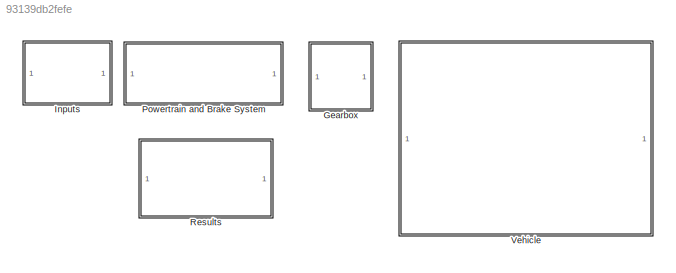
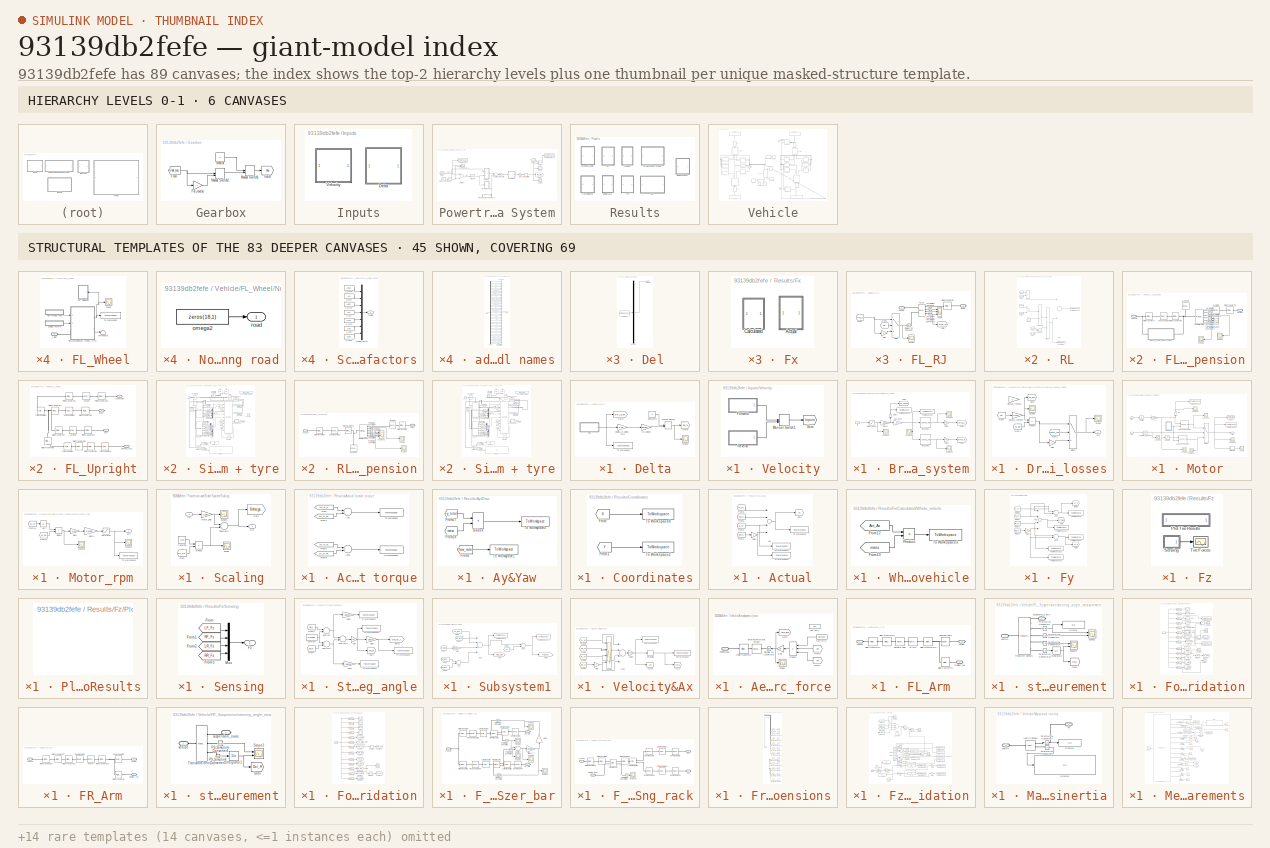
[diagram: thumbnail index - top-2 hierarchy levels (6 canvases) + 45 structural-template representatives of the remaining 83 canvases]
MODEL slx_93139db2fefe
KIND model
CONFIG AbsTol = 1e-6
CONFIG EnableMultiTasking = off
CONFIG FixedStep = 0.0075
CONFIG MaxStep = 1e-1
CONFIG MinStep = 1e-7
CONFIG RelTol = 1e-3
CONFIG SampleTimeConstraint = Unconstrained
CONFIG Solver = FixedStepAuto
CONFIG SolverName = FixedStepAuto
CONFIG StartTime = 0.0
CONFIG StopTime = 20
BLOCK [SubSystem] Gearbox
  Ports = []
  RequestExecContextInheritance = off
BLOCK [Gain] Gearbox/For_reverse
  Gain = -1
  OutDataTypeStr = Inherit: Inherit via internal rule
  ParamDataTypeStr = Inherit: Inherit via internal rule
  SaturateOnIntegerOverflow = off
BLOCK [From] Gearbox/From
  GotoTag = final_tau
  TagVisibility = global
BLOCK [Goto] Gearbox/Goto3
  GotoTag = tau
  TagVisibility = global
BLOCK [ManualSwitch] Gearbox/Manual Switch1
  CurrentSetting = 0
BLOCK [ManualSwitch] Gearbox/Manual Switch2
BLOCK [Constant] Gearbox/Neutral
  Value = 0
BLOCK [SubSystem] Inputs
  Ports = []
  RequestExecContextInheritance = off
BLOCK [SubSystem] Inputs/Delta
  Ports = []
  RequestExecContextInheritance = off
BLOCK [Constant] Inputs/Delta/Constant2
  Value = 0
BLOCK [SubSystem] Inputs/Delta/Del
  ClipboardFcn = sigbuilder_block('clipboard');
  CloseFcn = sigbuilder_block('close');
  ContinueFcn = sigbuilder_block('continue');
  CopyFcn = sigbuilder_block('copy');
  DeleteFcn = sigbuilder_block('delete');
  LoadFcn = sigbuilder_block('load');
  MaskHideContents = on
  ModelCloseFcn = sigbuilder_block('modelClose');
  NameChangeFcn = sigbuilder_block('namechange');
  OpenFcn = sigbuilder_block('open',[5.4 72.6 1141.2 513.6 ]);
  PauseFcn = sigbuilder_block('pause');
  Ports = [0, 1]
  PreSaveFcn = sigbuilder_block('preSave');
  RequestExecContextInheritance = off
  StartFcn = sigbuilder_block('start');
  StopFcn = sigbuilder_block('stop');
  Tag = STV Subsys
BLOCK [Demux] Inputs/Delta/Del/Demux
  Outputs = 1
  Ports = [1, 1]
  Tag = STV Demux
BLOCK [FromWorkspace] Inputs/Delta/Del/FromWs
  SampleTime = 0
  Tag = STV FromWs
  VariableName = tuvar
  ZeroCross = on
BLOCK [Outport] Inputs/Delta/Del/Signal 1
  IconDisplay = Port number
  Tag = STV Outport
BLOCK [Goto] Inputs/Delta/Goto1
  GotoTag = Del_Ip_hand
  TagVisibility = global
BLOCK [Goto] Inputs/Delta/Goto2
  GotoTag = Del_Ip
  TagVisibility = global
BLOCK [ManualSwitch] Inputs/Delta/Manual Switch3
  CurrentSetting = 0
BLOCK [Gain] Inputs/Delta/Radius_of_pinion_cms
  Gain = 0.56
  OutDataTypeStr = Inherit: Inherit via internal rule
  ParamDataTypeStr = Inherit: Inherit via internal rule
  SaturateOnIntegerOverflow = off
BLOCK [Scope] Inputs/Delta/Scope1
  Floating = off
  NumInputPorts = 1
  Ports = [1]
  ScopeSpecificationString = Simulink.scopes.TimeScopeBlockCfg('CurrentConfiguration', extmgr.ConfigurationSet(extmgr.Configuration('Core','General UI',true),extmgr.Configuration('Core','Source UI',true),extmgr.Configuration('Sources','WiredSimulink',true,'DataLoggingVariableName','ScopeData1'),extmgr.Configuration('Visuals','Time Domain',true,'SerializedDisplays',{struct('MinYLimReal','-0.05498','MaxYLimReal','0.4948','YLabe...<+1394ch>
BLOCK [ToWorkspace] Inputs/Delta/To Workspace
  FixptAsFi = on
  MaxDataPoints = inf
  Ports = [1]
  SampleTime = -1
  VariableName = del_hand_wheel
BLOCK [Gain] Inputs/Delta/to_radians
  Gain = pi/180
  OutDataTypeStr = Inherit: Inherit via internal rule
  ParamDataTypeStr = Inherit: Inherit via internal rule
  SaturateOnIntegerOverflow = off
BLOCK [SubSystem] Inputs/Velocity
  Ports = []
  RequestExecContextInheritance = off
BLOCK [SubSystem] Inputs/Velocity/Forward
  ClipboardFcn = sigbuilder_block('clipboard');
  CloseFcn = sigbuilder_block('close');
  ContinueFcn = sigbuilder_block('continue');
  CopyFcn = sigbuilder_block('copy');
  DeleteFcn = sigbuilder_block('delete');
  LoadFcn = sigbuilder_block('load');
  MaskHideContents = on
  ModelCloseFcn = sigbuilder_block('modelClose');
  NameChangeFcn = sigbuilder_block('namechange');
  OpenFcn = sigbuilder_block('open',[5.4 0 1141.2 552.6 ]);
  PauseFcn = sigbuilder_block('pause');
  Ports = [0, 1]
  PreSaveFcn = sigbuilder_block('preSave');
  RequestExecContextInheritance = off
  StartFcn = sigbuilder_block('start');
  StopFcn = sigbuilder_block('stop');
  Tag = STV Subsys
BLOCK [Demux] Inputs/Velocity/Forward/Demux
  Outputs = 1
  Ports = [1, 1]
  Tag = STV Demux
BLOCK [FromWorkspace] Inputs/Velocity/Forward/FromWs
  SampleTime = 0
  Tag = STV FromWs
  VariableName = tuvar
  ZeroCross = on
BLOCK [Outport] Inputs/Velocity/Forward/Signal 1
  IconDisplay = Port number
  Tag = STV Outport
BLOCK [Goto] Inputs/Velocity/Goto
  GotoTag = Inputs
  TagVisibility = global
BLOCK [ManualSwitch] Inputs/Velocity/Manual Switch1
BLOCK [SubSystem] Inputs/Velocity/Reverse
  ClipboardFcn = sigbuilder_block('clipboard');
  CloseFcn = sigbuilder_block('close');
  ContinueFcn = sigbuilder_block('continue');
  CopyFcn = sigbuilder_block('copy');
  DeleteFcn = sigbuilder_block('delete');
  LoadFcn = sigbuilder_block('load');
  MaskHideContents = on
  ModelCloseFcn = sigbuilder_block('modelClose');
  NameChangeFcn = sigbuilder_block('namechange');
  OpenFcn = sigbuilder_block('open',[5.4 0 1141.2 552.6 ]);
  PauseFcn = sigbuilder_block('pause');
  Ports = [0, 1]
  PreSaveFcn = sigbuilder_block('preSave');
  RequestExecContextInheritance = off
  StartFcn = sigbuilder_block('start');
  StopFcn = sigbuilder_block('stop');
  Tag = STV Subsys
BLOCK [Demux] Inputs/Velocity/Reverse/Demux
  Outputs = 1
  Ports = [1, 1]
  Tag = STV Demux
BLOCK [FromWorkspace] Inputs/Velocity/Reverse/FromWs
  SampleTime = 0
  Tag = STV FromWs
  VariableName = tuvar
  ZeroCross = on
BLOCK [Outport] Inputs/Velocity/Reverse/Signal 1
  IconDisplay = Port number
  Tag = STV Outport
BLOCK [SubSystem] Powertrain and Brake System
  Ports = []
  RequestExecContextInheritance = off
BLOCK [Abs] Powertrain and Brake System/Abs
  SaturateOnIntegerOverflow = off
BLOCK [From] Powertrain and Brake System/Actual_Velocity
  GotoTag = Vel
  TagVisibility = global
BLOCK [SubSystem] Powertrain and Brake System/Brake_system
  Ports = [1]
  RequestExecContextInheritance = off
BLOCK [Saturate] Powertrain and Brake System/Brake_system/Brake_pedal
  InputPortMap = u0
  LowerLimit = -100
  Ports = [1, 1]
  UpperLimit = 0
BLOCK [Lookup_n-D] Powertrain and Brake System/Brake_system/Front_brake
  BreakpointsForDimension1 = [Front_brake(:,1)]
  InternalRulePriority = Speed
  NumberOfTableDimensions = 1
  Ports = [1, 1]
  RndMeth = Simplest
  Table = [Front_brake(:,2)]
BLOCK [Gain] Powertrain and Brake System/Brake_system/Gain1
  Gain = -1
  OutDataTypeStr = Inherit: Inherit via internal rule
  ParamDataTypeStr = Inherit: Inherit via internal rule
  SaturateOnIntegerOverflow = off
BLOCK [Gain] Powertrain and Brake System/Brake_system/Gain11
  Gain = -1/100
  OutDataTypeStr = Inherit: Inherit via internal rule
  ParamDataTypeStr = Inherit: Inherit via internal rule
  SaturateOnIntegerOverflow = off
BLOCK [Gain] Powertrain and Brake System/Brake_system/Gain2
  Gain = 0.5
  OutDataTypeStr = Inherit: Inherit via internal rule
  ParamDataTypeStr = Inherit: Inherit via internal rule
  SaturateOnIntegerOverflow = off
BLOCK [Gain] Powertrain and Brake System/Brake_system/Gain3
  Gain = 0.5
  OutDataTypeStr = Inherit: Inherit via internal rule
  ParamDataTypeStr = Inherit: Inherit via internal rule
  SaturateOnIntegerOverflow = off
BLOCK [Goto] Powertrain and Brake System/Brake_system/Goto1
  GotoTag = br_pedal
  TagVisibility = global
BLOCK [Goto] Powertrain and Brake System/Brake_system/Goto5
  GotoTag = brTau_F
  TagVisibility = global
BLOCK [Goto] Powertrain and Brake System/Brake_system/Goto7
  GotoTag = brTau_R
  TagVisibility = global
BLOCK [Inport] Powertrain and Brake System/Brake_system/I//p
  IconDisplay = Port number
BLOCK [Gain] Powertrain and Brake System/Brake_system/Max_Br_pr
  Gain = 71.7
  OutDataTypeStr = Inherit: Inherit via internal rule
  ParamDataTypeStr = Inherit: Inherit via internal rule
  SaturateOnIntegerOverflow = off
BLOCK [Lookup_n-D] Powertrain and Brake System/Brake_system/Rear_brake
  BreakpointsForDimension1 = [Rear_brake(:,1)]
  InternalRulePriority = Speed
  NumberOfTableDimensions = 1
  Ports = [1, 1]
  RndMeth = Simplest
  Table = [Rear_brake(:,2)]
BLOCK [Scope] Powertrain and Brake System/Brake_system/Scope25
  Floating = off
  NumInputPorts = 1
  Ports = [1]
  ScopeSpecificationString = Simulink.scopes.TimeScopeBlockCfg('CurrentConfiguration', extmgr.ConfigurationSet(extmgr.Configuration('Core','General UI',true),extmgr.Configuration('Core','Source UI',true),extmgr.Configuration('Sources','WiredSimulink',true,'DataLoggingVariableName','ScopeData1'),extmgr.Configuration('Visuals','Time Domain',true,'SerializedDisplays',{struct('MinYLimReal','-175.24287','MaxYLimReal','19.47143','Y...<+1600ch>
BLOCK [Scope] Powertrain and Brake System/Brake_system/Scope28
  Floating = off
  NumInputPorts = 1
  Ports = [1]
  ScopeSpecificationString = Simulink.scopes.TimeScopeBlockCfg('CurrentConfiguration', extmgr.ConfigurationSet(extmgr.Configuration('Core','General UI',true),extmgr.Configuration('Core','Source UI',true),extmgr.Configuration('Sources','WiredSimulink',true,'DataLoggingVariableName','ScopeData2'),extmgr.Configuration('Visuals','Time Domain',true,'SerializedDisplays',{struct('MinYLimReal','-42.45475','MaxYLimReal','-17.85532','Y...<+1595ch>
BLOCK [Scope] Powertrain and Brake System/Brake_system/Scope29
  Floating = off
  NumInputPorts = 1
  Ports = [1]
  ScopeSpecificationString = Simulink.scopes.TimeScopeBlockCfg('CurrentConfiguration', extmgr.ConfigurationSet(extmgr.Configuration('Core','General UI',true),extmgr.Configuration('Core','Source UI',true),extmgr.Configuration('Sources','WiredSimulink',true,'DataLoggingVariableName','ScopeData3'),extmgr.Configuration('Visuals','Time Domain',true,'SerializedDisplays',{struct('MinYLimReal','-16.66933','MaxYLimReal','1.85215','YLa...<+1592ch>
BLOCK [Scope] Powertrain and Brake System/Brake_system/Scope31
  Floating = off
  NumInputPorts = 1
  Ports = [1]
  ScopeSpecificationString = Simulink.scopes.TimeScopeBlockCfg('CurrentConfiguration', extmgr.ConfigurationSet(extmgr.Configuration('Core','General UI',true),extmgr.Configuration('Core','Source UI',true),extmgr.Configuration('Sources','WiredSimulink',true,'DataLoggingVariableName','ScopeData4'),extmgr.Configuration('Visuals','Time Domain',true,'SerializedDisplays',{struct('MinYLimReal','-1.00000','MaxYLimReal','1.00000','YLab...<+1588ch>
BLOCK [ToWorkspace] Powertrain and Brake System/Brake_system/To Workspace1
  MaxDataPoints = inf
  Ports = [1]
  SampleTime = -1
  VariableName = brake_pr
BLOCK [ToWorkspace] Powertrain and Brake System/Brake_system/To Workspace2
  MaxDataPoints = inf
  Ports = [1]
  SampleTime = -1
  VariableName = brake_pedal
BLOCK [Product] Powertrain and Brake System/Divide
  InputSameDT = off
  Inputs = /*
  OutDataTypeStr = Inherit: Inherit via internal rule
  Ports = [2, 1]
  RndMeth = Floor
  SaturateOnIntegerOverflow = off
BLOCK [SubSystem] Powertrain and Brake System/Driveline_viscous_losses
  Ports = [0, 1]
  RequestExecContextInheritance = off
BLOCK [From] Powertrain and Brake System/Driveline_viscous_losses/From
  GotoTag = Vel
  TagVisibility = global
BLOCK [From] Powertrain and Brake System/Driveline_viscous_losses/From1
  GotoTag = RL_Re
  TagVisibility = global
BLOCK [From] Powertrain and Brake System/Driveline_viscous_losses/From2
  GotoTag = motor_tau
  TagVisibility = global
BLOCK [Gain] Powertrain and Brake System/Driveline_viscous_losses/Gain
  Gain = -1
  OutDataTypeStr = Inherit: Inherit via internal rule
  ParamDataTypeStr = Inherit: Inherit via internal rule
  SaturateOnIntegerOverflow = off
BLOCK [Goto] Powertrain and Brake System/Driveline_viscous_losses/Goto
  GotoTag = PT_loss
  TagVisibility = global
BLOCK [Outport] Powertrain and Brake System/Driveline_viscous_losses/O//p
  IconDisplay = Port number
BLOCK [Product] Powertrain and Brake System/Driveline_viscous_losses/Product
  InputSameDT = off
  OutDataTypeStr = Inherit: Inherit via internal rule
  Ports = [2, 1]
  RndMeth = Floor
  SaturateOnIntegerOverflow = off
BLOCK [Scope] Powertrain and Brake System/Driveline_viscous_losses/Scope
  Floating = off
  NumInputPorts = 1
  Ports = [1]
  ScopeSpecificationString = Simulink.scopes.TimeScopeBlockCfg('CurrentConfiguration', extmgr.ConfigurationSet(extmgr.Configuration('Core','General UI',true),extmgr.Configuration('Core','Source UI',true),extmgr.Configuration('Sources','WiredSimulink',true,'DataLoggingVariableName','ScopeData2'),extmgr.Configuration('Visuals','Time Domain',true,'SerializedDisplays',{struct('MinYLimReal','-15.99335','MaxYLimReal','17.54432','YL...<+1448ch>
BLOCK [Scope] Powertrain and Brake System/Driveline_viscous_losses/Scope1
  Floating = off
  NumInputPorts = 1
  Ports = [1]
  ScopeSpecificationString = Simulink.scopes.TimeScopeBlockCfg('CurrentConfiguration', extmgr.ConfigurationSet(extmgr.Configuration('Core','General UI',true),extmgr.Configuration('Core','Source UI',true),extmgr.Configuration('Sources','WiredSimulink',true,'DataLoggingVariableName','ScopeData16'),extmgr.Configuration('Visuals','Time Domain',true,'SerializedDisplays',{struct('MinYLimReal','-2.35674','MaxYLimReal','21.05458','YL...<+1434ch>
BLOCK [Switch] Powertrain and Brake System/Driveline_viscous_losses/Switch
  InputSameDT = off
  SaturateOnIntegerOverflow = off
BLOCK [Gain] Powertrain and Brake System/Driveline_viscous_losses/Viscous_friction1
  Commented = on
  Gain = 2
  OutDataTypeStr = Inherit: Inherit via internal rule
  ParamDataTypeStr = Inherit: Inherit via internal rule
  SaturateOnIntegerOverflow = off
BLOCK [Gain] Powertrain and Brake System/Driveline_viscous_losses/Viscous_friction2
  Gain = 2.537
  OutDataTypeStr = Inherit: Inherit via internal rule
  ParamDataTypeStr = Inherit: Inherit via internal rule
  SaturateOnIntegerOverflow = off
BLOCK [Reference] Powertrain and Brake System/Driver  REF=simulink/Continuous/PID Controller
  Ports = [1, 1]
  SourceBlock = simulink/Continuous/PID Controller
  SourceProductBaseCode = SL
  SourceType = PID 1dof
BLOCK [From] Powertrain and Brake System/From1
  GotoTag = RL_Re
  TagVisibility = global
BLOCK [From] Powertrain and Brake System/From2
  GotoTag = Inputs
  TagVisibility = global
BLOCK [Gain] Powertrain and Brake System/Gain1
  Gain = 0.5
  OutDataTypeStr = Inherit: Inherit via internal rule
  ParamDataTypeStr = Inherit: Inherit via internal rule
  SaturateOnIntegerOverflow = off
BLOCK [Gain] Powertrain and Brake System/Gear_ratio
  Gain = 9.23
  OutDataTypeStr = Inherit: Inherit via internal rule
  ParamDataTypeStr = Inherit: Inherit via internal rule
  SaturateOnIntegerOverflow = off
BLOCK [Goto] Powertrain and Brake System/Goto1
  GotoTag = Me_Pt
  TagVisibility = global
BLOCK [Goto] Powertrain and Brake System/Goto4
  GotoTag = final_tau
  TagVisibility = global
BLOCK [SubSystem] Powertrain and Brake System/Motor
  Ports = [2, 1]
  RequestExecContextInheritance = off
BLOCK [Gain] Powertrain and Brake System/Motor/%
  Gain = 1/100
  OutDataTypeStr = Inherit: Inherit via internal rule
  ParamDataTypeStr = Inherit: Inherit via internal rule
  SaturateOnIntegerOverflow = off
BLOCK [Gain] Powertrain and Brake System/Motor/%1
  Gain = 100
  OutDataTypeStr = Inherit: Inherit via internal rule
  ParamDataTypeStr = Inherit: Inherit via internal rule
  SaturateOnIntegerOverflow = off
BLOCK [Lookup_n-D] Powertrain and Brake System/Motor/2-D Lookup Table2
  BreakpointsForDimension1 = [0 0.1 0.2 0.3 0.4 0.5 0.6 0.7 0.8 0.9 1]
  BreakpointsForDimension2 = [TPS_0(:,1)]
  InternalRulePriority = Speed
  Ports = [2, 1]
  RndMeth = Simplest
  Table = [-90.24,-90.26,-90.24,-90.22,-90.23,-86.63,-72.71,-56.25,-50.21,-44.59,-40.69,-37.61,-34.44,-31.97,-29.79,-27.98,-26.37,-24.7,-23.15,-22.11,-21.24,-20.43,-19.47,-18.66,-17.94,-17.25,-16.58,-15.87,-15.16,-14.33,-14.11,-14.27,-14.21,-13.57,-12.89,-12.82,-12.72,-12.45,-12.19,-11.94,-11.65,-11.38,-10.97,-10.65;-25.48,-25.71,-26.16,-26.77,-27.52,-28.39,-29.45,-30.61,-30.61,-30.63,-30.66,-30.57,-29.83,-...<+2368ch>
BLOCK [Lookup_n-D] Powertrain and Brake System/Motor/2-D Lookup Table5
  BreakpointsForDimension1 = [0.3 0.4 0.5 0.6 0.7 0.8 0.9 1]
  BreakpointsForDimension2 = [TPS_0(:,1)]
  InternalRulePriority = Speed
  Ports = [2, 1]
  RndMeth = Simplest
  Table = [1.59,1.32,0.82,0.49,0.72,0.7,0.69,0.55,0.55,0.52,0.54,0.5,0.5,0.39,0.41,0.36,0.38,0.23,0.01,0.14,0.44,0.56,0.42,0.38,0.4,0.46,0.52,0.71,0.75,0.99,0.75,0.46,0.17,0.45,0.71,0.69,0.65,0.71,0.82,0.8,0.7,0.73,0.91,0.92;5.53,5.09,4.45,4.29,4.5,4.55,4.53,4.39,4.32,4.22,4.1,4.06,4.01,3.82,3.78,3.79,3.8,3.5,3.19,3.26,3.52,3.61,3.6,3.59,3.55,3.57,3.62,3.78,3.97,3.97,3.63,3.07,2.54,3,3.46,3.3,3.14,3.1,3.27,...<+1513ch>
BLOCK [Derivative] Powertrain and Brake System/Motor/Derivative
BLOCK [Goto] Powertrain and Brake System/Motor/Goto1
  GotoTag = motor_tau
  TagVisibility = global
BLOCK [Inport] Powertrain and Brake System/Motor/I//p1
  IconDisplay = Port number
  Port = 2
BLOCK [Inport] Powertrain and Brake System/Motor/I//p2
  IconDisplay = Port number
BLOCK [SubSystem] Powertrain and Brake System/Motor/Motor_rpm
  Ports = [0, 1]
  RequestExecContextInheritance = off
BLOCK [Abs] Powertrain and Brake System/Motor/Motor_rpm/Abs
  SaturateOnIntegerOverflow = off
BLOCK [Product] Powertrain and Brake System/Motor/Motor_rpm/Divide1
  InputSameDT = off
  Inputs = */
  OutDataTypeStr = Inherit: Inherit via internal rule
  Ports = [2, 1]
  RndMeth = Floor
  SaturateOnIntegerOverflow = off
BLOCK [From] Powertrain and Brake System/Motor/Motor_rpm/From18
  GotoTag = RL_Vx
  TagVisibility = global
BLOCK [From] Powertrain and Brake System/Motor/Motor_rpm/From19
  GotoTag = RL_Re
  TagVisibility = global
BLOCK [Gain] Powertrain and Brake System/Motor/Motor_rpm/Gain1
  Gain = 9.23
  OutDataTypeStr = Inherit: Inherit via internal rule
  ParamDataTypeStr = Inherit: Inherit via internal rule
  SaturateOnIntegerOverflow = off
BLOCK [Gain] Powertrain and Brake System/Motor/Motor_rpm/Gain11
  Gain = 9.5493
  OutDataTypeStr = Inherit: Inherit via internal rule
  ParamDataTypeStr = Inherit: Inherit via internal rule
  SaturateOnIntegerOverflow = off
BLOCK [Outport] Powertrain and Brake System/Motor/Motor_rpm/Out1
  IconDisplay = Port number
BLOCK [Saturate] Powertrain and Brake System/Motor/Motor_rpm/Saturation
  InputPortMap = u0
  LowerLimit = 450
  Ports = [1, 1]
  UpperLimit = 9000
BLOCK [Scope] Powertrain and Brake System/Motor/Motor_rpm/Scope14
  Floating = off
  NumInputPorts = 1
  Ports = [1]
  ScopeSpecificationString = Simulink.scopes.TimeScopeBlockCfg('CurrentConfiguration', extmgr.ConfigurationSet(extmgr.Configuration('Core','General UI',true),extmgr.Configuration('Core','Source UI',true),extmgr.Configuration('Sources','WiredSimulink',true,'DataLoggingVariableName','ScopeData1'),extmgr.Configuration('Visuals','Time Domain',true,'SerializedDisplays',{struct('MinYLimReal','-159.37337','MaxYLimReal','5934.36035',...<+1493ch>
BLOCK [Scope] Powertrain and Brake System/Motor/Motor_rpm/Scope15
  Floating = off
  NumInputPorts = 1
  Ports = [1]
  ScopeSpecificationString = Simulink.scopes.TimeScopeBlockCfg('CurrentConfiguration', extmgr.ConfigurationSet(extmgr.Configuration('Core','General UI',true),extmgr.Configuration('Core','Source UI',true),extmgr.Configuration('Sources','WiredSimulink',true,'DataLoggingVariableName','ScopeData2'),extmgr.Configuration('Visuals','Time Domain',true,'SerializedDisplays',{struct('MinYLimReal','-6.57079','MaxYLimReal','59.13713','YLa...<+1474ch>
BLOCK [ToWorkspace] Powertrain and Brake System/Motor/Motor_rpm/To Workspace4
  MaxDataPoints = inf
  Ports = [1]
  SampleTime = -1
  VariableName = motor_rpm
BLOCK [Outport] Powertrain and Brake System/Motor/O//p
  IconDisplay = Port number
BLOCK [Saturate] Powertrain and Brake System/Motor/Saturation
  InputPortMap = u0
  LowerLimit = 0.19
  Ports = [1, 1]
  UpperLimit = 1
BLOCK [Scope] Powertrain and Brake System/Motor/Scope
  Floating = off
  NumInputPorts = 1
  Ports = [1]
  ScopeSpecificationString = Simulink.scopes.TimeScopeBlockCfg('CurrentConfiguration', extmgr.ConfigurationSet(extmgr.Configuration('Core','General UI',true),extmgr.Configuration('Core','Source UI',true),extmgr.Configuration('Sources','WiredSimulink',true,'DataLoggingVariableName','ScopeData1'),extmgr.Configuration('Visuals','Time Domain',true,'SerializedDisplays',{struct('MinYLimReal','-71319.03162','MaxYLimReal','67990.4063...<+1399ch>
BLOCK [Scope] Powertrain and Brake System/Motor/Scope14
  Floating = off
  NumInputPorts = 1
  Ports = [1]
  ScopeSpecificationString = Simulink.scopes.TimeScopeBlockCfg('CurrentConfiguration', extmgr.ConfigurationSet(extmgr.Configuration('Core','General UI',true),extmgr.Configuration('Core','Source UI',true),extmgr.Configuration('Sources','WiredSimulink',true,'DataLoggingVariableName','ScopeData10'),extmgr.Configuration('Visuals','Time Domain',true,'SerializedDisplays',{struct('MinYLimReal','-10.87829','MaxYLimReal','61.02085','Y...<+1608ch>
BLOCK [Scope] Powertrain and Brake System/Motor/Scope16
  Floating = off
  NumInputPorts = 1
  Ports = [1]
  ScopeSpecificationString = Simulink.scopes.TimeScopeBlockCfg('CurrentConfiguration', extmgr.ConfigurationSet(extmgr.Configuration('Core','General UI',true),extmgr.Configuration('Core','Source UI',true),extmgr.Configuration('Sources','WiredSimulink',true,'DataLoggingVariableName','ScopeData3'),extmgr.Configuration('Visuals','Time Domain',true,'SerializedDisplays',{struct('MinYLimReal','-8.66651','MaxYLimReal','8.34399','YLab...<+1584ch>
BLOCK [Scope] Powertrain and Brake System/Motor/Scope2
  Floating = off
  NumInputPorts = 1
  Ports = [1]
  ScopeSpecificationString = Simulink.scopes.TimeScopeBlockCfg('CurrentConfiguration', extmgr.ConfigurationSet(extmgr.Configuration('Core','General UI',true),extmgr.Configuration('Core','Source UI',true),extmgr.Configuration('Sources','WiredSimulink',true,'DataLoggingVariableName','ScopeData4'),extmgr.Configuration('Visuals','Time Domain',true,'SerializedDisplays',{struct('MinYLimReal','-0.125','MaxYLimReal','1.125','YLabelRe...<+1465ch>
BLOCK [Scope] Powertrain and Brake System/Motor/Scope26
  Floating = off
  NumInputPorts = 1
  Ports = [1]
  ScopeSpecificationString = Simulink.scopes.TimeScopeBlockCfg('CurrentConfiguration', extmgr.ConfigurationSet(extmgr.Configuration('Core','General UI',true),extmgr.Configuration('Core','Source UI',true),extmgr.Configuration('Sources','WiredSimulink',true,'DataLoggingVariableName','ScopeData8'),extmgr.Configuration('Visuals','Time Domain',true,'SerializedDisplays',{struct('MinYLimReal','13.58777','MaxYLimReal','48.45126','YLa...<+1585ch>
BLOCK [Scope] Powertrain and Brake System/Motor/Scope30
  Floating = off
  NumInputPorts = 1
  Ports = [1]
  ScopeSpecificationString = Simulink.scopes.TimeScopeBlockCfg('CurrentConfiguration', extmgr.ConfigurationSet(extmgr.Configuration('Core','General UI',true),extmgr.Configuration('Core','Source UI',true),extmgr.Configuration('Sources','WiredSimulink',true,'DataLoggingVariableName','ScopeData14'),extmgr.Configuration('Visuals','Time Domain',true,'SerializedDisplays',{struct('MinYLimReal','-108.27134','MaxYLimReal','71.8423','Y...<+1610ch>
BLOCK [Scope] Powertrain and Brake System/Motor/Scope32
  Floating = off
  NumInputPorts = 1
  Ports = [1]
  ScopeSpecificationString = Simulink.scopes.TimeScopeBlockCfg('CurrentConfiguration', extmgr.ConfigurationSet(extmgr.Configuration('Core','General UI',true),extmgr.Configuration('Core','Source UI',true),extmgr.Configuration('Sources','WiredSimulink',true,'DataLoggingVariableName','ScopeData16'),extmgr.Configuration('Visuals','Time Domain',true,'SerializedDisplays',{struct('MinYLimReal','-0.125','MaxYLimReal','1.125','YLabelR...<+1448ch>
BLOCK [Switch] Powertrain and Brake System/Motor/Switch
  Criteria = u2 ~= 0
  InputSameDT = off
  SaturateOnIntegerOverflow = off
BLOCK [Saturate] Powertrain and Brake System/Motor/Throttle
  InputPortMap = u0
  LowerLimit = 0
  Ports = [1, 1]
  UpperLimit = 100
BLOCK [ToWorkspace] Powertrain and Brake System/Motor/To Workspace
  MaxDataPoints = inf
  Ports = [1]
  SampleTime = -1
  VariableName = tau
BLOCK [ToWorkspace] Powertrain and Brake System/Motor/To Workspace1
  MaxDataPoints = inf
  Ports = [1]
  SampleTime = -1
  VariableName = throttle
BLOCK [Reference] Powertrain and Brake System/Motor/condition_for_regen  REF=simulink/Logic and Bit
Operations/Compare
To Constant
  Ports = [1, 1]
  SourceBlock = simulink/Logic and Bit\nOperations/Compare\nTo Constant
  SourceProductBaseCode = SL
  SourceType = Compare To Constant
BLOCK [RateLimiter] Powertrain and Brake System/Rate Limiter6
  FallingSlewLimit = -1000
  RisingSlewLimit = 600
  SampleTimeMode = inherited
BLOCK [SubSystem] Powertrain and Brake System/Scaling
  Ports = [1, 1]
  RequestExecContextInheritance = off
BLOCK [Constant] Powertrain and Brake System/Scaling/Constant
  Value = 112.3
BLOCK [From] Powertrain and Brake System/Scaling/From
  GotoTag = RL_Re
  TagVisibility = global
BLOCK [Goto] Powertrain and Brake System/Scaling/Goto
  GotoTag = Before_gear
  TagVisibility = global
BLOCK [Inport] Powertrain and Brake System/Scaling/I//p
  IconDisplay = Port number
BLOCK [Gain] Powertrain and Brake System/Scaling/Motor_gain
  Gain = 1.086
  OutDataTypeStr = Inherit: Inherit via internal rule
  ParamDataTypeStr = Inherit: Inherit via internal rule
  SaturateOnIntegerOverflow = off
BLOCK [Outport] Powertrain and Brake System/Scaling/O//p
  IconDisplay = Port number
BLOCK [Product] Powertrain and Brake System/Scaling/Product
  InputSameDT = off
  OutDataTypeStr = Inherit: Inherit via internal rule
  Ports = [2, 1]
  RndMeth = Floor
  SaturateOnIntegerOverflow = off
BLOCK [Scope] Powertrain and Brake System/Scaling/Scope
  Floating = off
  NumInputPorts = 1
  Ports = [1]
  ScopeSpecificationString = Simulink.scopes.TimeScopeBlockCfg('CurrentConfiguration', extmgr.ConfigurationSet(extmgr.Configuration('Core','General UI',true),extmgr.Configuration('Core','Source UI',true),extmgr.Configuration('Sources','WiredSimulink',true,'DataLoggingVariableName','ScopeData2'),extmgr.Configuration('Visuals','Time Domain',true,'SerializedDisplays',{struct('MinYLimReal','30.7885','MaxYLimReal','30.86803','YLab...<+1428ch>
BLOCK [Scope] Powertrain and Brake System/Scaling/Scope1
  Floating = off
  NumInputPorts = 1
  Ports = [1]
  ScopeSpecificationString = Simulink.scopes.TimeScopeBlockCfg('CurrentConfiguration', extmgr.ConfigurationSet(extmgr.Configuration('Core','General UI',true),extmgr.Configuration('Core','Source UI',true),extmgr.Configuration('Sources','WiredSimulink',true,'DataLoggingVariableName','ScopeData3'),extmgr.Configuration('Visuals','Time Domain',true,'SerializedDisplays',{struct('MinYLimReal','-86.87117','MaxYLimReal','83.6383','YLa...<+1563ch>
BLOCK [Sum] Powertrain and Brake System/Scaling/Subtract2
  InputSameDT = off
  OutDataTypeStr = Inherit: Inherit via internal rule
  Ports = [2, 1]
  SaturateOnIntegerOverflow = off
BLOCK [Scope] Powertrain and Brake System/Scope
  Floating = off
  NumInputPorts = 1
  Ports = [1]
  ScopeSpecificationString = Simulink.scopes.TimeScopeBlockCfg('CurrentConfiguration', extmgr.ConfigurationSet(extmgr.Configuration('Core','General UI',true),extmgr.Configuration('Core','Source UI',true),extmgr.Configuration('Sources','WiredSimulink',true,'DataLoggingVariableName','ScopeData4'),extmgr.Configuration('Visuals','Time Domain',true,'SerializedDisplays',{struct('MinYLimReal','6.26172','MaxYLimReal','128.18376','YLa...<+1596ch>
BLOCK [Scope] Powertrain and Brake System/Scope18
  Floating = off
  NumInputPorts = 2
  Ports = [2]
  ScopeSpecificationString = Simulink.scopes.TimeScopeBlockCfg('CurrentConfiguration', extmgr.ConfigurationSet(extmgr.Configuration('Core','General UI',true),extmgr.Configuration('Core','Source UI',true),extmgr.Configuration('Sources','WiredSimulink',true,'DataLoggingVariableName','Vel_vs_t','DataLogging',true,'DataLoggingDecimateData',true),extmgr.Configuration('Visuals','Time Domain',true,'SerializedDisplays',{struct('MinYL...<+1628ch>
BLOCK [Sum] Powertrain and Brake System/Subtract
  InputSameDT = off
  Inputs = +-
  OutDataTypeStr = Inherit: Inherit via internal rule
  Ports = [2, 1]
  SaturateOnIntegerOverflow = off
BLOCK [Sum] Powertrain and Brake System/Subtract2
  InputSameDT = off
  Inputs = +-
  OutDataTypeStr = Inherit: Inherit via internal rule
  Ports = [2, 1]
  SaturateOnIntegerOverflow = off
BLOCK [ToWorkspace] Powertrain and Brake System/To Workspace
  MaxDataPoints = inf
  Ports = [1]
  SampleTime = -1
  VariableName = Desired_Vel
BLOCK [ToWorkspace] Powertrain and Brake System/To Workspace1
  MaxDataPoints = inf
  Ports = [1]
  SampleTime = -1
  VariableName = Motor_force
BLOCK [SubSystem] Results
  Ports = []
  RequestExecContextInheritance = off
BLOCK [SubSystem] Results/Actual brake torque
  Ports = []
  RequestExecContextInheritance = off
BLOCK [Sum] Results/Actual brake torque/Add
  InputSameDT = off
  OutDataTypeStr = Inherit: Inherit via internal rule
  Ports = [2, 1]
  SaturateOnIntegerOverflow = off
BLOCK [Sum] Results/Actual brake torque/Add1
  InputSameDT = off
  OutDataTypeStr = Inherit: Inherit via internal rule
  Ports = [2, 1]
  SaturateOnIntegerOverflow = off
BLOCK [From] Results/Actual brake torque/From
  GotoTag = act_br_FL
  TagVisibility = global
BLOCK [From] Results/Actual brake torque/From1
  GotoTag = act_br_FR
  TagVisibility = global
BLOCK [From] Results/Actual brake torque/From2
  GotoTag = act_br_RL
  TagVisibility = global
BLOCK [From] Results/Actual brake torque/From3
  GotoTag = act_br_RR
  TagVisibility = global
BLOCK [ToWorkspace] Results/Actual brake torque/To Workspace
  MaxDataPoints = inf
  Ports = [1]
  SampleTime = -1
  VariableName = brTau_F
BLOCK [ToWorkspace] Results/Actual brake torque/To Workspace2
  MaxDataPoints = inf
  Ports = [1]
  SampleTime = -1
  VariableName = brTau_R
BLOCK [SubSystem] Results/Ay&Yaw
  Ports = []
  RequestExecContextInheritance = off
BLOCK [Product] Results/Ay&Yaw/Divide4
  InputSameDT = off
  Inputs = */
  OutDataTypeStr = Inherit: Inherit via internal rule
  Ports = [2, 1]
  RndMeth = Floor
  SaturateOnIntegerOverflow = off
BLOCK [From] Results/Ay&Yaw/From1
  GotoTag = Yaw_rate
  TagVisibility = global
BLOCK [From] Results/Ay&Yaw/From17
  GotoTag = Fy_total
  TagVisibility = global
BLOCK [From] Results/Ay&Yaw/From18
  GotoTag = mass
  TagVisibility = global
BLOCK [ToWorkspace] Results/Ay&Yaw/To Workspace1
  MaxDataPoints = inf
  Ports = [1]
  SampleTime = -1
  VariableName = Yaw
BLOCK [ToWorkspace] Results/Ay&Yaw/To Workspace4
  MaxDataPoints = inf
  Ports = [1]
  SampleTime = -1
  VariableName = ay
BLOCK [SubSystem] Results/Coordinates
  Ports = []
  RequestExecContextInheritance = off
BLOCK [From] Results/Coordinates/From
  GotoTag = X
  TagVisibility = global
BLOCK [From] Results/Coordinates/From1
  GotoTag = Y
  TagVisibility = global
BLOCK [ToWorkspace] Results/Coordinates/To Workspace2
  MaxDataPoints = inf
  Ports = [1]
  SampleTime = -1
  VariableName = Y_SD
BLOCK [ToWorkspace] Results/Coordinates/To Workspace8
  MaxDataPoints = inf
  Ports = [1]
  SampleTime = -1
  VariableName = X_SD
BLOCK [SubSystem] Results/Fx
  Ports = []
  RequestExecContextInheritance = off
BLOCK [SubSystem] Results/Fx/Actual
  Ports = []
  RequestExecContextInheritance = off
BLOCK [Sum] Results/Fx/Actual/Add
  InputSameDT = off
  Inputs = ++++
  OutDataTypeStr = Inherit: Inherit via internal rule
  Ports = [4, 1]
  SaturateOnIntegerOverflow = off
BLOCK [From] Results/Fx/Actual/From2
  GotoTag = RL_Fx
  TagVisibility = global
BLOCK [From] Results/Fx/Actual/From3
  GotoTag = RR_Fx
  TagVisibility = global
BLOCK [From] Results/Fx/Actual/From5
  GotoTag = FR_Fx
  TagVisibility = global
BLOCK [From] Results/Fx/Actual/From6
  GotoTag = FL_Fx
  TagVisibility = global
BLOCK [Gain] Results/Fx/Actual/Gain1
  Gain = -1
  OutDataTypeStr = Inherit: Inherit via internal rule
  ParamDataTypeStr = Inherit: Inherit via internal rule
  SaturateOnIntegerOverflow = off
BLOCK [Goto] Results/Fx/Actual/Goto
  GotoTag = Fx
  TagVisibility = global
BLOCK [ToWorkspace] Results/Fx/Actual/To Workspace
  MaxDataPoints = inf
  Ports = [1]
  SampleTime = -1
  VariableName = actual_Fx_vehicle
BLOCK [ToWorkspace] Results/Fx/Actual/To Workspace1
  MaxDataPoints = inf
  Ports = [1]
  SampleTime = -1
  VariableName = actual_Fx_RL
BLOCK [ToWorkspace] Results/Fx/Actual/To Workspace2
  MaxDataPoints = inf
  Ports = [1]
  SampleTime = -1
  VariableName = actual_Fx_RR
BLOCK [SubSystem] Results/Fx/Calculated
  Ports = []
  RequestExecContextInheritance = off
BLOCK [SubSystem] Results/Fx/Calculated/Torque_inertia
  Ports = []
  RequestExecContextInheritance = off
BLOCK [SubSystem] Results/Fx/Calculated/Torque_inertia/RL
  Ports = []
  RequestExecContextInheritance = off
BLOCK [Sum] Results/Fx/Calculated/Torque_inertia/RL/Add
  InputSameDT = off
  OutDataTypeStr = Inherit: Inherit via internal rule
  Ports = [2, 1]
  SaturateOnIntegerOverflow = off
BLOCK [Sum] Results/Fx/Calculated/Torque_inertia/RL/Add1
  InputSameDT = off
  Inputs = +-
  OutDataTypeStr = Inherit: Inherit via internal rule
  Ports = [2, 1]
  SaturateOnIntegerOverflow = off
BLOCK [Product] Results/Fx/Calculated/Torque_inertia/RL/Divide2
  InputSameDT = off
  Inputs = */
  OutDataTypeStr = Inherit: Inherit via internal rule
  Ports = [2, 1]
  RndMeth = Floor
  SaturateOnIntegerOverflow = off
BLOCK [Product] Results/Fx/Calculated/Torque_inertia/RL/Divide3
  InputSameDT = off
  Inputs = */
  OutDataTypeStr = Inherit: Inherit via internal rule
  Ports = [2, 1]
  RndMeth = Floor
  SaturateOnIntegerOverflow = off
BLOCK [From] Results/Fx/Calculated/Torque_inertia/RL/From2
  GotoTag = RL_Re
  TagVisibility = global
BLOCK [From] Results/Fx/Calculated/Torque_inertia/RL/From3
  GotoTag = Me_Pt
  TagVisibility = global
BLOCK [From] Results/Fx/Calculated/Torque_inertia/RL/From4
  GotoTag = Act_Ax
  TagVisibility = global
BLOCK [From] Results/Fx/Calculated/Torque_inertia/RL/From5
  GotoTag = RL_Re
  TagVisibility = global
BLOCK [From] Results/Fx/Calculated/Torque_inertia/RL/From6
  GotoTag = RL_Re
  TagVisibility = global
BLOCK [Goto] Results/Fx/Calculated/Torque_inertia/RL/Goto
  GotoTag = Iner_loss_L
  TagVisibility = global
BLOCK [Constant] Results/Fx/Calculated/Torque_inertia/RL/Ie
  Value = 0.0226
BLOCK [Constant] Results/Fx/Calculated/Torque_inertia/RL/Iw
  Value = 0.4665
BLOCK [Product] Results/Fx/Calculated/Torque_inertia/RL/Product2
  InputSameDT = off
  OutDataTypeStr = Inherit: Inherit via internal rule
  Ports = [2, 1]
  RndMeth = Floor
  SaturateOnIntegerOverflow = off
BLOCK [Product] Results/Fx/Calculated/Torque_inertia/RL/Product3
  InputSameDT = off
  OutDataTypeStr = Inherit: Inherit via internal rule
  Ports = [2, 1]
  RndMeth = Floor
  SaturateOnIntegerOverflow = off
BLOCK [ToWorkspace] Results/Fx/Calculated/Torque_inertia/RL/To Workspace1
  MaxDataPoints = inf
  Ports = [1]
  SampleTime = -1
  VariableName = calc_Fx_RL
BLOCK [SubSystem] Results/Fx/Calculated/Torque_inertia/RR
  Ports = []
  RequestExecContextInheritance = off
BLOCK [Sum] Results/Fx/Calculated/Torque_inertia/RR/Add2
  InputSameDT = off
  OutDataTypeStr = Inherit: Inherit via internal rule
  Ports = [2, 1]
  SaturateOnIntegerOverflow = off
BLOCK [Sum] Results/Fx/Calculated/Torque_inertia/RR/Add3
  InputSameDT = off
  Inputs = +-
  OutDataTypeStr = Inherit: Inherit via internal rule
  Ports = [2, 1]
  SaturateOnIntegerOverflow = off
BLOCK [Product] Results/Fx/Calculated/Torque_inertia/RR/Divide1
  InputSameDT = off
  Inputs = */
  OutDataTypeStr = Inherit: Inherit via internal rule
  Ports = [2, 1]
  RndMeth = Floor
  SaturateOnIntegerOverflow = off
BLOCK [Product] Results/Fx/Calculated/Torque_inertia/RR/Divide4
  InputSameDT = off
  Inputs = */
  OutDataTypeStr = Inherit: Inherit via internal rule
  Ports = [2, 1]
  RndMeth = Floor
  SaturateOnIntegerOverflow = off
BLOCK [From] Results/Fx/Calculated/Torque_inertia/RR/From1
  GotoTag = RR_Re
  TagVisibility = global
BLOCK [From] Results/Fx/Calculated/Torque_inertia/RR/From10
  GotoTag = RR_Re
  TagVisibility = global
BLOCK [From] Results/Fx/Calculated/Torque_inertia/RR/From7
  GotoTag = Me_Pt
  TagVisibility = global
BLOCK [From] Results/Fx/Calculated/Torque_inertia/RR/From8
  GotoTag = Act_Ax
  TagVisibility = global
BLOCK [From] Results/Fx/Calculated/Torque_inertia/RR/From9
  GotoTag = RR_Re
  TagVisibility = global
BLOCK [Goto] Results/Fx/Calculated/Torque_inertia/RR/Goto2
  GotoTag = Iner_loss_R
  TagVisibility = global
BLOCK [Constant] Results/Fx/Calculated/Torque_inertia/RR/Ie_R
  Value = 0.0226
BLOCK [Constant] Results/Fx/Calculated/Torque_inertia/RR/Iw_R
  Value = 0.4665
BLOCK [Product] Results/Fx/Calculated/Torque_inertia/RR/Product1
  InputSameDT = off
  OutDataTypeStr = Inherit: Inherit via internal rule
  Ports = [2, 1]
  RndMeth = Floor
  SaturateOnIntegerOverflow = off
BLOCK [Product] Results/Fx/Calculated/Torque_inertia/RR/Product4
  InputSameDT = off
  OutDataTypeStr = Inherit: Inherit via internal rule
  Ports = [2, 1]
  RndMeth = Floor
  SaturateOnIntegerOverflow = off
BLOCK [ToWorkspace] Results/Fx/Calculated/Torque_inertia/RR/To Workspace2
  MaxDataPoints = inf
  Ports = [1]
  SampleTime = -1
  VariableName = calc_Fx_RR
BLOCK [SubSystem] Results/Fx/Calculated/Whole_vehicle
  Ports = []
  RequestExecContextInheritance = off
BLOCK [From] Results/Fx/Calculated/Whole_vehicle/From12
  GotoTag = Act_Ax
  TagVisibility = global
BLOCK [From] Results/Fx/Calculated/Whole_vehicle/From13
  GotoTag = mass
  TagVisibility = global
BLOCK [Product] Results/Fx/Calculated/Whole_vehicle/Product
  InputSameDT = off
  OutDataTypeStr = Inherit: Inherit via internal rule
  Ports = [2, 1]
  RndMeth = Floor
  SaturateOnIntegerOverflow = off
BLOCK [ToWorkspace] Results/Fx/Calculated/Whole_vehicle/To Workspace3
  MaxDataPoints = inf
  Ports = [1]
  SampleTime = -1
  VariableName = Calc_Fx_vehicle
BLOCK [SubSystem] Results/Fy
  Ports = []
  RequestExecContextInheritance = off
BLOCK [Sum] Results/Fy/Add3
  InputSameDT = off
  Inputs = ++++
  OutDataTypeStr = Inherit: Inherit via internal rule
  Ports = [4, 1]
  SaturateOnIntegerOverflow = off
BLOCK [Sum] Results/Fy/Add4
  InputSameDT = off
  OutDataTypeStr = Inherit: Inherit via internal rule
  Ports = [2, 1]
  SaturateOnIntegerOverflow = off
BLOCK [Sum] Results/Fy/Add5
  InputSameDT = off
  OutDataTypeStr = Inherit: Inherit via internal rule
  Ports = [2, 1]
  SaturateOnIntegerOverflow = off
BLOCK [From] Results/Fy/From12
  GotoTag = RL_Fy
  TagVisibility = global
BLOCK [From] Results/Fy/From13
  GotoTag = RR_Fy
  TagVisibility = global
BLOCK [From] Results/Fy/From14
  GotoTag = FR_Fy
  TagVisibility = global
BLOCK [From] Results/Fy/From15
  GotoTag = FL_Fy
  TagVisibility = global
BLOCK [Gain] Results/Fy/Gain3
  Gain = -1
  OutDataTypeStr = Inherit: Inherit via internal rule
  ParamDataTypeStr = Inherit: Inherit via internal rule
  SaturateOnIntegerOverflow = off
BLOCK [Goto] Results/Fy/Goto
  GotoTag = Fy_total
  TagVisibility = global
BLOCK [Goto] Results/Fy/Goto1
  GotoTag = Fy_F
  TagVisibility = global
BLOCK [Goto] Results/Fy/Goto2
  GotoTag = Fy_R
  TagVisibility = global
BLOCK [ToWorkspace] Results/Fy/To Workspace
  MaxDataPoints = inf
  Ports = [1]
  SampleTime = -1
  VariableName = Fy_front
BLOCK [ToWorkspace] Results/Fy/To Workspace1
  MaxDataPoints = inf
  Ports = [1]
  SampleTime = -1
  VariableName = Fy_rear
BLOCK [ToWorkspace] Results/Fy/To Workspace10
  MaxDataPoints = inf
  Ports = [1]
  SampleTime = -1
  VariableName = actual_Fy_vehicle
BLOCK [ToWorkspace] Results/Fy/To Workspace11
  MaxDataPoints = inf
  Ports = [1]
  SampleTime = -1
  VariableName = actual_Fy_RL
BLOCK [ToWorkspace] Results/Fy/To Workspace12
  MaxDataPoints = inf
  Ports = [1]
  SampleTime = -1
  VariableName = actual_Fy_RR
BLOCK [SubSystem] Results/Fz
  Ports = []
  RequestExecContextInheritance = off
BLOCK [SubSystem] Results/Fz/Plot Tire Results
  OpenFcn = PlotTireOutputs_UI
  Ports = []
  RequestExecContextInheritance = off
BLOCK [SubSystem] Results/Fz/Sensing
  Ports = [0, 1]
  RequestExecContextInheritance = off
BLOCK [From] Results/Fz/Sensing/From
  GotoTag = LF_Fz
  TagVisibility = global
BLOCK [From] Results/Fz/Sensing/From1
  GotoTag = RF_Fz
  TagVisibility = global
BLOCK [From] Results/Fz/Sensing/From2
  GotoTag = LR_Fz
  TagVisibility = global
BLOCK [From] Results/Fz/Sensing/From3
  GotoTag = RR_Fz
  TagVisibility = global
BLOCK [Outport] Results/Fz/Sensing/Fz
  IconDisplay = Port number
BLOCK [Mux] Results/Fz/Sensing/Mux
  DisplayOption = bar
  Ports = [4, 1]
BLOCK [Scope] Results/Fz/Tire Forces
  Floating = off
  NumInputPorts = 1
  Ports = [1]
  ScopeSpecificationString = Simulink.scopes.TimeScopeBlockCfg('CurrentConfiguration', extmgr.ConfigurationSet(extmgr.Configuration('Core','General UI',true,'FigureColor',[0.501960784313725 0.501960784313725 0.501960784313725]),extmgr.Configuration('Core','Source UI',true),extmgr.Configuration('Sources','WiredSimulink',true,'DataLoggingSaveFormat','StructureWithTime','DataLoggingDecimation','1','DataLoggingDecimateData',true,...<+2775ch>
BLOCK [SubSystem] Results/Steering_angle
  Ports = []
  RequestExecContextInheritance = off
BLOCK [Constant] Results/Steering_angle/Constant
  Value = 0.01683
BLOCK [From] Results/Steering_angle/From3
  GotoTag = Del_L
  TagVisibility = global
BLOCK [From] Results/Steering_angle/From4
  GotoTag = Del_R
  TagVisibility = global
BLOCK [Gain] Results/Steering_angle/Gain
  Gain = 0.5
  OutDataTypeStr = Inherit: Inherit via internal rule
  ParamDataTypeStr = Inherit: Inherit via internal rule
  SaturateOnIntegerOverflow = off
BLOCK [Gain] Results/Steering_angle/Gain1
  Gain = 180/pi
  OutDataTypeStr = Inherit: Inherit via internal rule
  ParamDataTypeStr = Inherit: Inherit via internal rule
  SaturateOnIntegerOverflow = off
BLOCK [Gain] Results/Steering_angle/Gain2
  Gain = 180/pi
  OutDataTypeStr = Inherit: Inherit via internal rule
  ParamDataTypeStr = Inherit: Inherit via internal rule
  SaturateOnIntegerOverflow = off
BLOCK [Gain] Results/Steering_angle/Gain3
  Gain = 180/pi
  OutDataTypeStr = Inherit: Inherit via internal rule
  ParamDataTypeStr = Inherit: Inherit via internal rule
  SaturateOnIntegerOverflow = off
BLOCK [Goto] Results/Steering_angle/Goto
  GotoTag = Del_Op
  TagVisibility = global
BLOCK [Goto] Results/Steering_angle/Goto1
  GotoTag = Del_Act_Ang
  TagVisibility = global
BLOCK [Sum] Results/Steering_angle/Subtract
  InputSameDT = off
  Inputs = +-
  OutDataTypeStr = Inherit: Inherit via internal rule
  Ports = [2, 1]
  SaturateOnIntegerOverflow = off
BLOCK [Sum] Results/Steering_angle/Subtract1
  InputSameDT = off
  OutDataTypeStr = Inherit: Inherit via internal rule
  Ports = [2, 1]
  SaturateOnIntegerOverflow = off
BLOCK [Sum] Results/Steering_angle/Subtract2
  InputSameDT = off
  OutDataTypeStr = Inherit: Inherit via internal rule
  Ports = [2, 1]
  SaturateOnIntegerOverflow = off
BLOCK [ToWorkspace] Results/Steering_angle/To Workspace1
  FixptAsFi = on
  MaxDataPoints = inf
  Ports = [1]
  SampleTime = -1
  VariableName = del_road_wheel
BLOCK [ToWorkspace] Results/Steering_angle/To Workspace15
  FixptAsFi = on
  MaxDataPoints = inf
  Ports = [1]
  SampleTime = -1
  VariableName = Del
BLOCK [ToWorkspace] Results/Steering_angle/To Workspace2
  FixptAsFi = on
  MaxDataPoints = inf
  Ports = [1]
  SampleTime = -1
  VariableName = del_road_wheel_L
BLOCK [ToWorkspace] Results/Steering_angle/To Workspace3
  FixptAsFi = on
  MaxDataPoints = inf
  Ports = [1]
  SampleTime = -1
  VariableName = del_road_wheel_R
BLOCK [SubSystem] Results/Subsystem1
  Ports = []
  RequestExecContextInheritance = off
BLOCK [Sum] Results/Subsystem1/Add
  InputSameDT = off
  OutDataTypeStr = Inherit: Inherit via internal rule
  Ports = [2, 1]
  SaturateOnIntegerOverflow = off
BLOCK [Sum] Results/Subsystem1/Add1
  InputSameDT = off
  Inputs = ++++
  OutDataTypeStr = Inherit: Inherit via internal rule
  Ports = [4, 1]
  SaturateOnIntegerOverflow = off
BLOCK [Sum] Results/Subsystem1/Add2
  InputSameDT = off
  OutDataTypeStr = Inherit: Inherit via internal rule
  Ports = [2, 1]
  SaturateOnIntegerOverflow = off
BLOCK [From] Results/Subsystem1/From
  GotoTag = Fz_total
  TagVisibility = global
BLOCK [From] Results/Subsystem1/From1
  GotoTag = Iner_loss_L
  TagVisibility = global
BLOCK [From] Results/Subsystem1/From2
  GotoTag = Iner_loss_R
  TagVisibility = global
BLOCK [From] Results/Subsystem1/From3
  GotoTag = PT_loss
  TagVisibility = global
BLOCK [From] Results/Subsystem1/From4
  GotoTag = Aero_loss
  TagVisibility = global
BLOCK [From] Results/Subsystem1/From5
  GotoTag = Fx
  TagVisibility = global
BLOCK [Gain] Results/Subsystem1/Gain
  Gain = 0.0151
  OutDataTypeStr = Inherit: Inherit via internal rule
  ParamDataTypeStr = Inherit: Inherit via internal rule
  SaturateOnIntegerOverflow = off
BLOCK [Goto] Results/Subsystem1/Goto
  GotoTag = Drag_force
  TagVisibility = global
BLOCK [Goto] Results/Subsystem1/Goto1
  GotoTag = Total_long_force
  TagVisibility = global
BLOCK [ToWorkspace] Results/Subsystem1/To Workspace
  FixptAsFi = on
  MaxDataPoints = inf
  Ports = [1]
  SampleTime = -1
  VariableName = Drag_force
BLOCK [ToWorkspace] Results/Subsystem1/To Workspace1
  FixptAsFi = on
  MaxDataPoints = inf
  Ports = [1]
  SampleTime = -1
  VariableName = Total_long_force
BLOCK [SubSystem] Results/Velocity&Ax
  Ports = []
  RequestExecContextInheritance = off
BLOCK [Goto] Results/Velocity&Ax/Act_Ax
  GotoTag = Act_Ax
  TagVisibility = global
BLOCK [Goto] Results/Velocity&Ax/Act_Vel
  GotoTag = Vel
  TagVisibility = global
BLOCK [Sum] Results/Velocity&Ax/Add1
  InputSameDT = off
  Inputs = ++++
  OutDataTypeStr = Inherit: Inherit via internal rule
  Ports = [4, 1]
  SaturateOnIntegerOverflow = off
BLOCK [Derivative] Results/Velocity&Ax/Derivative
BLOCK [From] Results/Velocity&Ax/From4
  GotoTag = FL_Vx
  TagVisibility = global
BLOCK [From] Results/Velocity&Ax/From5
  GotoTag = FR_Vx
  TagVisibility = global
BLOCK [From] Results/Velocity&Ax/From6
  GotoTag = RL_Vx
  TagVisibility = global
BLOCK [From] Results/Velocity&Ax/From7
  GotoTag = RR_Vx
  TagVisibility = global
BLOCK [Gain] Results/Velocity&Ax/Gain
  Gain = -1
  OutDataTypeStr = Inherit: Inherit via internal rule
  ParamDataTypeStr = Inherit: Inherit via internal rule
  SaturateOnIntegerOverflow = off
BLOCK [Gain] Results/Velocity&Ax/Gain9
  Gain = 0.25
  OutDataTypeStr = Inherit: Inherit via internal rule
  ParamDataTypeStr = Inherit: Inherit via internal rule
  SaturateOnIntegerOverflow = off
BLOCK [Scope] Results/Velocity&Ax/Scope3
  Floating = off
  NumInputPorts = 4
  Ports = [4]
  ScopeSpecificationString = Simulink.scopes.TimeScopeBlockCfg('CurrentConfiguration', extmgr.ConfigurationSet(extmgr.Configuration('Core','General UI',true),extmgr.Configuration('Core','Source UI',true),extmgr.Configuration('Sources','WiredSimulink',true,'DataLoggingVariableName','ScopeData5'),extmgr.Configuration('Visuals','Time Domain',true,'SerializedDisplays',{struct('MinYLimReal','-0.91236','MaxYLimReal','8.10097','YLab...<+1560ch>
BLOCK [ToWorkspace] Results/Velocity&Ax/To Workspace1
  MaxDataPoints = inf
  Ports = [1]
  SampleTime = -1
  VariableName = Actual_Vel
BLOCK [ToWorkspace] Results/Velocity&Ax/To Workspace2
  MaxDataPoints = inf
  Ports = [1]
  SampleTime = -1
  VariableName = Act_Ax
BLOCK [SubSystem] Vehicle
  Ports = []
  RequestExecContextInheritance = off
BLOCK [SubSystem] Vehicle/Aerodynamic_force
  Ports = [0, 0, 0, 0, 0, 1]
  RequestExecContextInheritance = off
BLOCK [Reference] Vehicle/Aerodynamic_force/External Force and Torque  REF=sm_lib/Forces and
Torques/External Force
and Torque
  Ports = [0, 0, 0, 0, 0, 1, 1]
  SourceBlock = sm_lib/Forces and\nTorques/External Force\nand Torque
  SourceProductBaseCode = MS
  SourceType = External Force\nand Torque
BLOCK [From] Vehicle/Aerodynamic_force/From3
  GotoTag = Vel
  TagVisibility = global
BLOCK [From] Vehicle/Aerodynamic_force/From4
  GotoTag = Vel
  TagVisibility = global
BLOCK [Gain] Vehicle/Aerodynamic_force/Gain
  Gain = 0.5
  OutDataTypeStr = Inherit: Inherit via internal rule
  ParamDataTypeStr = Inherit: Inherit via internal rule
  SaturateOnIntegerOverflow = off
BLOCK [Goto] Vehicle/Aerodynamic_force/Goto
  GotoTag = Aero_loss
  TagVisibility = global
BLOCK [Product] Vehicle/Aerodynamic_force/Product
  InputSameDT = off
  Inputs = 3
  OutDataTypeStr = Inherit: Inherit via internal rule
  Ports = [3, 1]
  RndMeth = Floor
  SaturateOnIntegerOverflow = off
BLOCK [Reference] Vehicle/Aerodynamic_force/Rigid Transform  REF=sm_lib/Frames and
Transforms/Rigid
Transform
  Ports = [0, 0, 0, 0, 0, 1, 1]
  SourceBlock = sm_lib/Frames and\nTransforms/Rigid\nTransform
  SourceProductBaseCode = MS
  SourceType = Rigid\nTransform
BLOCK [Scope] Vehicle/Aerodynamic_force/Scope
  Floating = off
  NumInputPorts = 1
  Ports = [1]
  ScopeSpecificationString = Simulink.scopes.TimeScopeBlockCfg('CurrentConfiguration', extmgr.ConfigurationSet(extmgr.Configuration('Core','General UI',true),extmgr.Configuration('Core','Source UI',true),extmgr.Configuration('Sources','WiredSimulink',true,'DataLoggingVariableName','ScopeData1'),extmgr.Configuration('Visuals','Time Domain',true,'SerializedDisplays',{struct('MinYLimReal','-4.43213','MaxYLimReal','39.88919','YLa...<+1420ch>
BLOCK [Reference] Vehicle/Aerodynamic_force/Simulink-PS Converter3  REF=nesl_utility/Simulink-PS
Converter
  Ports = [1, 0, 0, 0, 0, 0, 1]
  SourceBlock = nesl_utility/Simulink-PS\nConverter
  SourceProductBaseCode = SS
  SourceType = Simulink-PS\nConverter
BLOCK [Constant] Vehicle/Aerodynamic_force/row*SCx
  Value = 0.81
BLOCK [Constant] Vehicle/Aerodynamic_force/row*SCx1
  Value = 0.804288
BLOCK [PMIOPort] Vehicle/Aerodynamic_force/vehicle_body
  Side = Left
BLOCK [SubSystem] Vehicle/FL_Arm
  Ports = [0, 0, 0, 0, 0, 1, 2]
  RequestExecContextInheritance = off
BLOCK [Reference] Vehicle/FL_Arm/FL arm  REF=sm_lib/Body Elements/Extruded Solid
  Ports = [0, 0, 0, 0, 0, 1, 1]
  SourceBlock = sm_lib/Body Elements/Extruded Solid
  SourceProductBaseCode = MS
  SourceType = Extruded Solid
BLOCK [Reference] Vehicle/FL_Arm/Revolute Joint  REF=sm_lib/Joints/Revolute Joint
  Ports = [0, 0, 0, 0, 0, 1, 1]
  SourceBlock = sm_lib/Joints/Revolute Joint
  SourceProductBaseCode = MS
  SourceType = Revolute Joint
BLOCK [Reference] Vehicle/FL_Arm/Rigid Transform1  REF=sm_lib/Frames and
Transforms/Rigid
Transform
  Ports = [0, 0, 0, 0, 0, 1, 1]
  SourceBlock = sm_lib/Frames and\nTransforms/Rigid\nTransform
  SourceProductBaseCode = MS
  SourceType = Rigid\nTransform
BLOCK [Reference] Vehicle/FL_Arm/Rigid Transform13  REF=sm_lib/Frames and
Transforms/Rigid
Transform
  Ports = [0, 0, 0, 0, 0, 1, 1]
  SourceBlock = sm_lib/Frames and\nTransforms/Rigid\nTransform
  SourceProductBaseCode = MS
  SourceType = Rigid\nTransform
BLOCK [Reference] Vehicle/FL_Arm/Rigid Transform7  REF=sm_lib/Frames and
Transforms/Rigid
Transform
  Ports = [0, 0, 0, 0, 0, 1, 1]
  SourceBlock = sm_lib/Frames and\nTransforms/Rigid\nTransform
  SourceProductBaseCode = MS
  SourceType = Rigid\nTransform
BLOCK [Reference] Vehicle/FL_Arm/Rigid Transform8  REF=sm_lib/Frames and
Transforms/Rigid
Transform
  Ports = [0, 0, 0, 0, 0, 1, 1]
  SourceBlock = sm_lib/Frames and\nTransforms/Rigid\nTransform
  SourceProductBaseCode = MS
  SourceType = Rigid\nTransform
BLOCK [Reference] Vehicle/FL_Arm/Spherical Joint1  REF=sm_lib/Joints/Spherical
Joint
  Ports = [0, 0, 0, 0, 0, 1, 1]
  SourceBlock = sm_lib/Joints/Spherical\nJoint
  SourceProductBaseCode = MS
  SourceType = Spherical\nJoint
BLOCK [PMIOPort] Vehicle/FL_Arm/chassis
  Side = Left
BLOCK [PMIOPort] Vehicle/FL_Arm/stabilizer_bar
  Port = 2
  Side = Right
BLOCK [PMIOPort] Vehicle/FL_Arm/upright
  Port = 3
  Side = Right
BLOCK [SubSystem] Vehicle/FL_RJ
  Ports = [0, 0, 0, 0, 0, 1, 1]
  RequestExecContextInheritance = off
BLOCK [From] Vehicle/FL_RJ/From
  GotoTag = brTau_F
  TagVisibility = global
BLOCK [From] Vehicle/FL_RJ/From1
  GotoTag = Vel
  TagVisibility = global
BLOCK [Gain] Vehicle/FL_RJ/Gain
  Gain = -1
  OutDataTypeStr = Inherit: Inherit via internal rule
  ParamDataTypeStr = Inherit: Inherit via internal rule
  SaturateOnIntegerOverflow = off
BLOCK [Goto] Vehicle/FL_RJ/Goto
  GotoTag = act_br_FL
  TagVisibility = global
BLOCK [Reference] Vehicle/FL_RJ/PS-Simulink Converter  REF=nesl_utility/PS-Simulink
Converter
  Ports = [0, 1, 0, 0, 0, 1]
  SourceBlock = nesl_utility/PS-Simulink\nConverter
  SourceProductBaseCode = SS
  SourceType = PS-Simulink\nConverter
BLOCK [Reference] Vehicle/FL_RJ/PS-Simulink Converter1  REF=nesl_utility/PS-Simulink
Converter
  Ports = [0, 1, 0, 0, 0, 1]
  SourceBlock = nesl_utility/PS-Simulink\nConverter
  SourceProductBaseCode = SS
  SourceType = PS-Simulink\nConverter
BLOCK [Reference] Vehicle/FL_RJ/PS-Simulink Converter2  REF=nesl_utility/PS-Simulink
Converter
  Ports = [0, 1, 0, 0, 0, 1]
  SourceBlock = nesl_utility/PS-Simulink\nConverter
  SourceProductBaseCode = SS
  SourceType = PS-Simulink\nConverter
BLOCK [Reference] Vehicle/FL_RJ/RJ_FL  REF=sm_lib/Joints/Revolute Joint
  Ports = [0, 0, 0, 0, 0, 2, 4]
  SourceBlock = sm_lib/Joints/Revolute Joint
  SourceProductBaseCode = MS
  SourceType = Revolute Joint
BLOCK [Reference] Vehicle/FL_RJ/Rigid Transform2  REF=sm_lib/Frames and
Transforms/Rigid
Transform
  Ports = [0, 0, 0, 0, 0, 1, 1]
  SourceBlock = sm_lib/Frames and\nTransforms/Rigid\nTransform
  SourceProductBaseCode = MS
  SourceType = Rigid\nTransform
BLOCK [Scope] Vehicle/FL_RJ/Scope
  Floating = off
  NumInputPorts = 3
  Ports = [3]
  ScopeSpecificationString = Simulink.scopes.TimeScopeBlockCfg('CurrentConfiguration', extmgr.ConfigurationSet(extmgr.Configuration('Core','General UI',true),extmgr.Configuration('Core','Source UI',true),extmgr.Configuration('Sources','WiredSimulink',true,'DataLoggingVariableName','ScopeData14'),extmgr.Configuration('Visuals','Time Domain',true,'SerializedDisplays',{struct('MinYLimReal','-23.23622','MaxYLimReal','91.12012','Y...<+1609ch>
BLOCK [Scope] Vehicle/FL_RJ/Scope1
  Floating = off
  NumInputPorts = 1
  Ports = [1]
  ScopeSpecificationString = Simulink.scopes.TimeScopeBlockCfg('CurrentConfiguration', extmgr.ConfigurationSet(extmgr.Configuration('Core','General UI',true),extmgr.Configuration('Core','Source UI',true),extmgr.Configuration('Sources','WiredSimulink',true,'DataLoggingVariableName','ScopeData15'),extmgr.Configuration('Visuals','Time Domain',true),extmgr.Configuration('Tools','Plot Navigation',true),extmgr.Configuration('Tools'...<+41ch>
BLOCK [Reference] Vehicle/FL_RJ/Simulink-PS Converter  REF=nesl_utility/Simulink-PS
Converter
  Ports = [1, 0, 0, 0, 0, 0, 1]
  SourceBlock = nesl_utility/Simulink-PS\nConverter
  SourceProductBaseCode = SS
  SourceType = Simulink-PS\nConverter
BLOCK [Switch] Vehicle/FL_RJ/Switch
  Criteria = u2 > Threshold
  InputSameDT = off
  SaturateOnIntegerOverflow = off
BLOCK [PMIOPort] Vehicle/FL_RJ/upright
  Side = Left
BLOCK [PMIOPort] Vehicle/FL_RJ/wheel
  Port = 2
  Side = Right
BLOCK [SubSystem] Vehicle/FL_Suspension
  Ports = [0, 0, 0, 0, 0, 1, 1]
  RequestExecContextInheritance = off
BLOCK [Reference] Vehicle/FL_Suspension/FL Cylinder  REF=sm_lib/Body Elements/Revolved Solid
  Ports = [0, 0, 0, 0, 0, 1]
  SourceBlock = sm_lib/Body Elements/Revolved Solid
  SourceProductBaseCode = MS
  SourceType = Revolved Solid
BLOCK [Reference] Vehicle/FL_Suspension/FL Piston  REF=sm_lib/Body Elements/Revolved Solid
  Ports = [0, 0, 0, 0, 0, 1, 1]
  SourceBlock = sm_lib/Body Elements/Revolved Solid
  SourceProductBaseCode = MS
  SourceType = Revolved Solid
BLOCK [Reference] Vehicle/FL_Suspension/PS-Simulink Converter1  REF=nesl_utility/PS-Simulink
Converter
  Ports = [0, 1, 0, 0, 0, 1]
  SourceBlock = nesl_utility/PS-Simulink\nConverter
  SourceProductBaseCode = SS
  SourceType = PS-Simulink\nConverter
BLOCK [Reference] Vehicle/FL_Suspension/PS-Simulink Converter2  REF=nesl_utility/PS-Simulink
Converter
  Ports = [0, 1, 0, 0, 0, 1]
  SourceBlock = nesl_utility/PS-Simulink\nConverter
  SourceProductBaseCode = SS
  SourceType = PS-Simulink\nConverter
BLOCK [Reference] Vehicle/FL_Suspension/PS-Simulink Converter20  REF=nesl_utility/PS-Simulink
Converter
  Ports = [0, 1, 0, 0, 0, 1]
  SourceBlock = nesl_utility/PS-Simulink\nConverter
  SourceProductBaseCode = SS
  SourceType = PS-Simulink\nConverter
BLOCK [Reference] Vehicle/FL_Suspension/PS-Simulink Converter3  REF=nesl_utility/PS-Simulink
Converter
  Ports = [0, 1, 0, 0, 0, 1]
  SourceBlock = nesl_utility/PS-Simulink\nConverter
  SourceProductBaseCode = SS
  SourceType = PS-Simulink\nConverter
BLOCK [Reference] Vehicle/FL_Suspension/PS-Simulink Converter4  REF=nesl_utility/PS-Simulink
Converter
  Ports = [0, 1, 0, 0, 0, 1]
  SourceBlock = nesl_utility/PS-Simulink\nConverter
  SourceProductBaseCode = SS
  SourceType = PS-Simulink\nConverter
BLOCK [Reference] Vehicle/FL_Suspension/Prismatic Joint1  REF=sm_lib/Joints/Prismatic
Joint
  Ports = [0, 0, 0, 0, 0, 1, 6]
  SourceBlock = sm_lib/Joints/Prismatic\nJoint
  SourceProductBaseCode = MS
  SourceType = Prismatic\nJoint
BLOCK [Reference] Vehicle/FL_Suspension/Rigid Transform  REF=sm_lib/Frames and
Transforms/Rigid
Transform
  Ports = [0, 0, 0, 0, 0, 1, 1]
  SourceBlock = sm_lib/Frames and\nTransforms/Rigid\nTransform
  SourceProductBaseCode = MS
  SourceType = Rigid\nTransform
BLOCK [Reference] Vehicle/FL_Suspension/Rigid Transform2  REF=sm_lib/Frames and
Transforms/Rigid
Transform
  Ports = [0, 0, 0, 0, 0, 1, 1]
  SourceBlock = sm_lib/Frames and\nTransforms/Rigid\nTransform
  SourceProductBaseCode = MS
  SourceType = Rigid\nTransform
BLOCK [Reference] Vehicle/FL_Suspension/Rigid Transform55  REF=sm_lib/Frames and
Transforms/Rigid
Transform
  Ports = [0, 0, 0, 0, 0, 1, 1]
  SourceBlock = sm_lib/Frames and\nTransforms/Rigid\nTransform
  SourceProductBaseCode = MS
  SourceType = Rigid\nTransform
BLOCK [Scope] Vehicle/FL_Suspension/Scope1
  Floating = off
  NumInputPorts = 1
  Ports = [1]
  ScopeSpecificationString = Simulink.scopes.TimeScopeBlockCfg('CurrentConfiguration', extmgr.ConfigurationSet(extmgr.Configuration('Core','General UI',true),extmgr.Configuration('Core','Source UI',true),extmgr.Configuration('Sources','WiredSimulink',true,'DataLoggingVariableName','ScopeData2'),extmgr.Configuration('Visuals','Time Domain',true,'SerializedDisplays',{struct('MinYLimReal','0.12644','MaxYLimReal','0.16933','YLabe...<+1484ch>
BLOCK [Scope] Vehicle/FL_Suspension/Scope2
  Floating = off
  NumInputPorts = 1
  Ports = [1]
  ScopeSpecificationString = Simulink.scopes.TimeScopeBlockCfg('CurrentConfiguration', extmgr.ConfigurationSet(extmgr.Configuration('Core','General UI',true),extmgr.Configuration('Core','Source UI',true),extmgr.Configuration('Sources','WiredSimulink',true,'DataLoggingVariableName','ScopeData4'),extmgr.Configuration('Visuals','Time Domain',true,'SerializedDisplays',{struct('MinYLimReal','0.14137339','MaxYLimReal','0.14137429',...<+1510ch>
BLOCK [Scope] Vehicle/FL_Suspension/Scope9
  Floating = off
  NumInputPorts = 3
  Ports = [3]
  ScopeSpecificationString = Simulink.scopes.TimeScopeBlockCfg('CurrentConfiguration', extmgr.ConfigurationSet(extmgr.Configuration('Core','General UI',true),extmgr.Configuration('Core','Source UI',true),extmgr.Configuration('Sources','WiredSimulink',true,'DataLoggingVariableName','ScopeData16'),extmgr.Configuration('Visuals','Time Domain',true,'SerializedDisplays',{struct('MinYLimReal','-602.94433','MaxYLimReal','5426.49895'...<+1622ch>
BLOCK [Reference] Vehicle/FL_Suspension/Spherical Joint  REF=sm_lib/Joints/Spherical
Joint
  Ports = [0, 0, 0, 0, 0, 1, 1]
  SourceBlock = sm_lib/Joints/Spherical\nJoint
  SourceProductBaseCode = MS
  SourceType = Spherical\nJoint
BLOCK [PMIOPort] Vehicle/FL_Suspension/chassis
  Side = Left
BLOCK [SubSystem] Vehicle/FL_Suspension/steering_angle_measurement
  Ports = [0, 0, 0, 0, 0, 1, 1]
  RequestExecContextInheritance = off
BLOCK [Display] Vehicle/FL_Suspension/steering_angle_measurement/Display
  Decimation = 1
  Ports = [1]
BLOCK [Goto] Vehicle/FL_Suspension/steering_angle_measurement/Goto
  GotoTag = Del_L
  TagVisibility = global
BLOCK [Integrator] Vehicle/FL_Suspension/steering_angle_measurement/Integrator2
  Ports = [1, 1]
BLOCK [Reference] Vehicle/FL_Suspension/steering_angle_measurement/PS-Simulink Converter1  REF=nesl_utility/PS-Simulink
Converter
  Ports = [0, 1, 0, 0, 0, 1]
  SourceBlock = nesl_utility/PS-Simulink\nConverter
  SourceProductBaseCode = SS
  SourceType = PS-Simulink\nConverter
BLOCK [Reference] Vehicle/FL_Suspension/steering_angle_measurement/PS-Simulink Converter14  REF=nesl_utility/PS-Simulink
Converter
  Ports = [0, 1, 0, 0, 0, 1]
  SourceBlock = nesl_utility/PS-Simulink\nConverter
  SourceProductBaseCode = SS
  SourceType = PS-Simulink\nConverter
BLOCK [Reference] Vehicle/FL_Suspension/steering_angle_measurement/PS-Simulink Converter15  REF=nesl_utility/PS-Simulink
Converter
  Ports = [0, 1, 0, 0, 0, 1]
  SourceBlock = nesl_utility/PS-Simulink\nConverter
  SourceProductBaseCode = SS
  SourceType = PS-Simulink\nConverter
BLOCK [Reference] Vehicle/FL_Suspension/steering_angle_measurement/PS-Simulink Converter2  REF=nesl_utility/PS-Simulink
Converter
  Ports = [0, 1, 0, 0, 0, 1]
  SourceBlock = nesl_utility/PS-Simulink\nConverter
  SourceProductBaseCode = SS
  SourceType = PS-Simulink\nConverter
BLOCK [Scope] Vehicle/FL_Suspension/steering_angle_measurement/Scope1
  Floating = off
  NumInputPorts = 2
  Ports = [2]
  ScopeSpecificationString = Simulink.scopes.TimeScopeBlockCfg('CurrentConfiguration', extmgr.ConfigurationSet(extmgr.Configuration('Core','General UI',true),extmgr.Configuration('Core','Source UI',true),extmgr.Configuration('Sources','WiredSimulink',true,'DataLoggingVariableName','ScopeData3'),extmgr.Configuration('Visuals','Time Domain',true,'SerializedDisplays',{struct('MinYLimReal','-0.06296','MaxYLimReal','0.04451','YLab...<+1590ch>
BLOCK [Scope] Vehicle/FL_Suspension/steering_angle_measurement/Scope17
  Floating = off
  NumInputPorts = 2
  Ports = [2]
  ScopeSpecificationString = Simulink.scopes.TimeScopeBlockCfg('CurrentConfiguration', extmgr.ConfigurationSet(extmgr.Configuration('Core','General UI',true),extmgr.Configuration('Core','Source UI',true),extmgr.Configuration('Sources','WiredSimulink',true,'DataLoggingVariableName','ScopeData2'),extmgr.Configuration('Visuals','Time Domain',true,'SerializedDisplays',{struct('MinYLimReal','-0.27248','MaxYLimReal','0.12546','YLab...<+1591ch>
BLOCK [Reference] Vehicle/FL_Suspension/steering_angle_measurement/Transform Sensor1  REF=sm_lib/Frames and
Transforms/Transform
Sensor
  Ports = [0, 0, 0, 0, 0, 1, 5]
  SourceBlock = sm_lib/Frames and\nTransforms/Transform\nSensor
  SourceProductBaseCode = MS
  SourceType = Transform\nSensor
BLOCK [PMIOPort] Vehicle/FL_Suspension/steering_angle_measurement/suspension_z-axis
  Port = 2
  Side = Right
BLOCK [PMIOPort] Vehicle/FL_Suspension/steering_angle_measurement/vehicle
  Side = Left
BLOCK [PMIOPort] Vehicle/FL_Suspension/upright
  Port = 2
  Side = Right
BLOCK [SubSystem] Vehicle/FL_Upright
  Ports = [0, 0, 0, 0, 0, 3, 1]
  RequestExecContextInheritance = off
BLOCK [Reference] Vehicle/FL_Upright/Cylindrical Solid1  REF=sm_lib/Body Elements/Cylindrical Solid
  Ports = [0, 0, 0, 0, 0, 1, 1]
  SourceBlock = sm_lib/Body Elements/Cylindrical Solid
  SourceProductBaseCode = MS
  SourceType = Cylindrical Solid
BLOCK [Reference] Vehicle/FL_Upright/Cylindrical Solid10  REF=sm_lib/Body Elements/Cylindrical Solid
  Ports = [0, 0, 0, 0, 0, 1, 1]
  SourceBlock = sm_lib/Body Elements/Cylindrical Solid
  SourceProductBaseCode = MS
  SourceType = Cylindrical Solid
BLOCK [Reference] Vehicle/FL_Upright/Cylindrical Solid2  REF=sm_lib/Body Elements/Cylindrical Solid
  Ports = [0, 0, 0, 0, 0, 1, 1]
  SourceBlock = sm_lib/Body Elements/Cylindrical Solid
  SourceProductBaseCode = MS
  SourceType = Cylindrical Solid
BLOCK [Reference] Vehicle/FL_Upright/Cylindrical Solid9  REF=sm_lib/Body Elements/Cylindrical Solid
  Ports = [0, 0, 0, 0, 0, 1, 1]
  SourceBlock = sm_lib/Body Elements/Cylindrical Solid
  SourceProductBaseCode = MS
  SourceType = Cylindrical Solid
BLOCK [Reference] Vehicle/FL_Upright/Rigid Transform11  REF=sm_lib/Frames and
Transforms/Rigid
Transform
  Ports = [0, 0, 0, 0, 0, 1, 1]
  SourceBlock = sm_lib/Frames and\nTransforms/Rigid\nTransform
  SourceProductBaseCode = MS
  SourceType = Rigid\nTransform
BLOCK [Reference] Vehicle/FL_Upright/Rigid Transform12  REF=sm_lib/Frames and
Transforms/Rigid
Transform
  Ports = [0, 0, 0, 0, 0, 1, 1]
  SourceBlock = sm_lib/Frames and\nTransforms/Rigid\nTransform
  SourceProductBaseCode = MS
  SourceType = Rigid\nTransform
BLOCK [Reference] Vehicle/FL_Upright/Rigid Transform14  REF=sm_lib/Frames and
Transforms/Rigid
Transform
  Ports = [0, 0, 0, 0, 0, 1, 1]
  SourceBlock = sm_lib/Frames and\nTransforms/Rigid\nTransform
  SourceProductBaseCode = MS
  SourceType = Rigid\nTransform
BLOCK [Reference] Vehicle/FL_Upright/Rigid Transform15  REF=sm_lib/Frames and
Transforms/Rigid
Transform
  Ports = [0, 0, 0, 0, 0, 1, 1]
  SourceBlock = sm_lib/Frames and\nTransforms/Rigid\nTransform
  SourceProductBaseCode = MS
  SourceType = Rigid\nTransform
BLOCK [Reference] Vehicle/FL_Upright/Rigid Transform16  REF=sm_lib/Frames and
Transforms/Rigid
Transform
  Ports = [0, 0, 0, 0, 0, 1, 1]
  SourceBlock = sm_lib/Frames and\nTransforms/Rigid\nTransform
  SourceProductBaseCode = MS
  SourceType = Rigid\nTransform
BLOCK [Reference] Vehicle/FL_Upright/Rigid Transform17  REF=sm_lib/Frames and
Transforms/Rigid
Transform
  Ports = [0, 0, 0, 0, 0, 1, 1]
  SourceBlock = sm_lib/Frames and\nTransforms/Rigid\nTransform
  SourceProductBaseCode = MS
  SourceType = Rigid\nTransform
BLOCK [Reference] Vehicle/FL_Upright/Rigid Transform56  REF=sm_lib/Frames and
Transforms/Rigid
Transform
  Ports = [0, 0, 0, 0, 0, 1, 1]
  SourceBlock = sm_lib/Frames and\nTransforms/Rigid\nTransform
  SourceProductBaseCode = MS
  SourceType = Rigid\nTransform
BLOCK [Reference] Vehicle/FL_Upright/Rigid Transform60  REF=sm_lib/Frames and
Transforms/Rigid
Transform
  Ports = [0, 0, 0, 0, 0, 1, 1]
  SourceBlock = sm_lib/Frames and\nTransforms/Rigid\nTransform
  SourceProductBaseCode = MS
  SourceType = Rigid\nTransform
BLOCK [Reference] Vehicle/FL_Upright/Rigid Transform61  REF=sm_lib/Frames and
Transforms/Rigid
Transform
  Ports = [0, 0, 0, 0, 0, 1, 1]
  SourceBlock = sm_lib/Frames and\nTransforms/Rigid\nTransform
  SourceProductBaseCode = MS
  SourceType = Rigid\nTransform
BLOCK [PMIOPort] Vehicle/FL_Upright/arm
  Side = Left
BLOCK [PMIOPort] Vehicle/FL_Upright/steering_rack
  Port = 3
  Side = Left
BLOCK [PMIOPort] Vehicle/FL_Upright/suspension
  Port = 4
  Side = Left
BLOCK [Reference] Vehicle/FL_Upright/upright1  REF=sm_lib/Body Elements/Brick Solid
  Ports = [0, 0, 0, 0, 0, 1, 1]
  SourceBlock = sm_lib/Body Elements/Brick Solid
  SourceProductBaseCode = MS
  SourceType = Brick Solid
BLOCK [Reference] Vehicle/FL_Upright/upright2  REF=sm_lib/Body Elements/Brick Solid
  Ports = [0, 0, 0, 0, 0, 1, 1]
  SourceBlock = sm_lib/Body Elements/Brick Solid
  SourceProductBaseCode = MS
  SourceType = Brick Solid
BLOCK [PMIOPort] Vehicle/FL_Upright/wheel
  Port = 2
  Side = Right
BLOCK [SubSystem] Vehicle/FL_Wheel
  Ports = [0, 0, 0, 0, 0, 1]
  RequestExecContextInheritance = off
BLOCK [SubSystem] Vehicle/FL_Wheel/For Validation
  Ports = [1]
  RequestExecContextInheritance = off
BLOCK [Derivative] Vehicle/FL_Wheel/For Validation/Derivative
BLOCK [Goto] Vehicle/FL_Wheel/For Validation/Goto
  GotoTag = LF_Fz
  TagVisibility = global
BLOCK [Goto] Vehicle/FL_Wheel/For Validation/Goto1
  GotoTag = FL_Fy
  TagVisibility = global
BLOCK [Goto] Vehicle/FL_Wheel/For Validation/Goto10
  GotoTag = FL_distance
  TagVisibility = global
BLOCK [Goto] Vehicle/FL_Wheel/For Validation/Goto11
  GotoTag = FL_psi
  TagVisibility = global
BLOCK [Goto] Vehicle/FL_Wheel/For Validation/Goto12
  GotoTag = FL_ax
  TagVisibility = global
BLOCK [Goto] Vehicle/FL_Wheel/For Validation/Goto13
  GotoTag = FL_Re
  TagVisibility = global
BLOCK [Goto] Vehicle/FL_Wheel/For Validation/Goto14
  GotoTag = FL_My
  TagVisibility = global
BLOCK [Goto] Vehicle/FL_Wheel/For Validation/Goto2
  GotoTag = FL_Kappa
  TagVisibility = global
BLOCK [Goto] Vehicle/FL_Wheel/For Validation/Goto3
  GotoTag = FL_Fx
  TagVisibility = global
BLOCK [Goto] Vehicle/FL_Wheel/For Validation/Goto4
  GotoTag = FL_alfa
  TagVisibility = global
BLOCK [Goto] Vehicle/FL_Wheel/For Validation/Goto5
  GotoTag = FL_Vx
  TagVisibility = global
BLOCK [Goto] Vehicle/FL_Wheel/For Validation/Goto6
  GotoTag = FL_tp
  TagVisibility = global
BLOCK [Goto] Vehicle/FL_Wheel/For Validation/Goto7
  GotoTag = FL_mu_x
  TagVisibility = global
BLOCK [Goto] Vehicle/FL_Wheel/For Validation/Goto8
  GotoTag = FL_mu_y
  TagVisibility = global
BLOCK [Goto] Vehicle/FL_Wheel/For Validation/Goto9
  GotoTag = FL_psidot
  TagVisibility = global
BLOCK [Inport] Vehicle/FL_Wheel/For Validation/Inputs
  IconDisplay = Port number
BLOCK [Integrator] Vehicle/FL_Wheel/For Validation/Integrator
  Ports = [1, 1]
BLOCK [Product] Vehicle/FL_Wheel/For Validation/Product
  InputSameDT = off
  OutDataTypeStr = Inherit: Inherit via internal rule
  Ports = [2, 1]
  RndMeth = Floor
  SaturateOnIntegerOverflow = off
BLOCK [Scope] Vehicle/FL_Wheel/For Validation/Scope
  Floating = off
  NumInputPorts = 1
  Ports = [1]
  ScopeSpecificationString = Simulink.scopes.TimeScopeBlockCfg('CurrentConfiguration', extmgr.ConfigurationSet(extmgr.Configuration('Core','General UI',true),extmgr.Configuration('Core','Source UI',true),extmgr.Configuration('Sources','WiredSimulink',true,'DataLoggingVariableName','ScopeData8'),extmgr.Configuration('Visuals','Time Domain',true,'SerializedDisplays',{struct('MinYLimReal','-4.68885','MaxYLimReal','8.01683','YLab...<+1475ch>
BLOCK [Scope] Vehicle/FL_Wheel/For Validation/Scope1
  Floating = off
  NumInputPorts = 1
  Ports = [1]
  ScopeSpecificationString = Simulink.scopes.TimeScopeBlockCfg('CurrentConfiguration', extmgr.ConfigurationSet(extmgr.Configuration('Core','General UI',true),extmgr.Configuration('Core','Source UI',true),extmgr.Configuration('Sources','WiredSimulink',true,'DataLoggingVariableName','ScopeData10'),extmgr.Configuration('Visuals','Time Domain',true,'SerializedDisplays',{struct('MinYLimReal','3574.4635','MaxYLimReal','5247.94454',...<+1489ch>
BLOCK [Scope] Vehicle/FL_Wheel/For Validation/Scope3
  Floating = off
  NumInputPorts = 1
  Ports = [1]
  ScopeSpecificationString = Simulink.scopes.TimeScopeBlockCfg('CurrentConfiguration', extmgr.ConfigurationSet(extmgr.Configuration('Core','General UI',true),extmgr.Configuration('Core','Source UI',true),extmgr.Configuration('Sources','WiredSimulink',true,'DataLoggingVariableName','ScopeData6'),extmgr.Configuration('Visuals','Time Domain',true,'SerializedDisplays',{struct('MinYLimReal','-0.14409','MaxYLimReal','0.59771','YLab...<+1426ch>
BLOCK [Scope] Vehicle/FL_Wheel/For Validation/Scope4
  Floating = off
  NumInputPorts = 1
  Ports = [1]
  ScopeSpecificationString = Simulink.scopes.TimeScopeBlockCfg('CurrentConfiguration', extmgr.ConfigurationSet(extmgr.Configuration('Core','General UI',true),extmgr.Configuration('Core','Source UI',true),extmgr.Configuration('Sources','WiredSimulink',true,'DataLoggingVariableName','ScopeData2'),extmgr.Configuration('Visuals','Time Domain',true,'SerializedDisplays',{struct('MinYLimReal','-1.00000','MaxYLimReal','1.00000','YLab...<+1468ch>
BLOCK [Selector] Vehicle/FL_Wheel/For Validation/Selector
  IndexOptions = Index vector (dialog)
  Indices = [3]
  InputPortWidth = 40
  OutputSizes = 1
  Ports = [1, 1]
BLOCK [Selector] Vehicle/FL_Wheel/For Validation/Selector1
  IndexOptions = Index vector (dialog)
  Indices = [2]
  InputPortWidth = 40
  OutputSizes = 1
  Ports = [1, 1]
BLOCK [Selector] Vehicle/FL_Wheel/For Validation/Selector10
  IndexOptions = Index vector (dialog)
  Indices = [28]
  InputPortWidth = 40
  OutputSizes = 1
  Ports = [1, 1]
BLOCK [Selector] Vehicle/FL_Wheel/For Validation/Selector11
  IndexOptions = Index vector (dialog)
  Indices = [13]
  InputPortWidth = 40
  OutputSizes = 1
  Ports = [1, 1]
BLOCK [Selector] Vehicle/FL_Wheel/For Validation/Selector12
  IndexOptions = Index vector (dialog)
  Indices = [5]
  InputPortWidth = 40
  OutputSizes = 1
  Ports = [1, 1]
BLOCK [Selector] Vehicle/FL_Wheel/For Validation/Selector2
  IndexOptions = Index vector (dialog)
  Indices = [7]
  InputPortWidth = 40
  OutputSizes = 1
  Ports = [1, 1]
BLOCK [Selector] Vehicle/FL_Wheel/For Validation/Selector3
  IndexOptions = Index vector (dialog)
  Indices = [1]
  InputPortWidth = 40
  OutputSizes = 1
  Ports = [1, 1]
BLOCK [Selector] Vehicle/FL_Wheel/For Validation/Selector4
  IndexOptions = Index vector (dialog)
  Indices = [8]
  InputPortWidth = 40
  OutputSizes = 1
  Ports = [1, 1]
BLOCK [Selector] Vehicle/FL_Wheel/For Validation/Selector5
  IndexOptions = Index vector (dialog)
  Indices = [11]
  InputPortWidth = 40
  OutputSizes = 1
  Ports = [1, 1]
BLOCK [Selector] Vehicle/FL_Wheel/For Validation/Selector6
  IndexOptions = Index vector (dialog)
  Indices = [16]
  InputPortWidth = 40
  OutputSizes = 1
  Ports = [1, 1]
BLOCK [Selector] Vehicle/FL_Wheel/For Validation/Selector7
  IndexOptions = Index vector (dialog)
  Indices = [17]
  InputPortWidth = 40
  OutputSizes = 1
  Ports = [1, 1]
BLOCK [Selector] Vehicle/FL_Wheel/For Validation/Selector8
  IndexOptions = Index vector (dialog)
  Indices = [18]
  InputPortWidth = 40
  OutputSizes = 1
  Ports = [1, 1]
BLOCK [Selector] Vehicle/FL_Wheel/For Validation/Selector9
  IndexOptions = Index vector (dialog)
  Indices = [24]
  InputPortWidth = 40
  OutputSizes = 1
  Ports = [1, 1]
BLOCK [ToWorkspace] Vehicle/FL_Wheel/For Validation/To Workspace
  MaxDataPoints = inf
  Ports = [1]
  SampleTime = -1
  VariableName = FL_Fy
BLOCK [ToWorkspace] Vehicle/FL_Wheel/For Validation/To Workspace1
  MaxDataPoints = inf
  Ports = [1]
  SampleTime = -1
  VariableName = FL_alfa
BLOCK [SubSystem] Vehicle/FL_Wheel/Non-moving road
  Ports = [0, 1]
  RequestExecContextInheritance = off
BLOCK [Constant] Vehicle/FL_Wheel/Non-moving road/omega2
  Value = zeros(18,1)
BLOCK [Outport] Vehicle/FL_Wheel/Non-moving road/road
  IconDisplay = Port number
BLOCK [SubSystem] Vehicle/FL_Wheel/Scaling factors
  Ports = [0, 1]
  RequestExecContextInheritance = off
  Tag = Scaling factors
BLOCK [Constant] Vehicle/FL_Wheel/Scaling factors/s_LKX
  Value = LKX
BLOCK [Constant] Vehicle/FL_Wheel/Scaling factors/s_LKY
  Value = LKY
BLOCK [Constant] Vehicle/FL_Wheel/Scaling factors/s_LKYC
  Value = LKYC
BLOCK [Constant] Vehicle/FL_Wheel/Scaling factors/s_LKZC
  Value = LKZC
BLOCK [Constant] Vehicle/FL_Wheel/Scaling factors/s_LMUX
  Value = LMUX
BLOCK [Constant] Vehicle/FL_Wheel/Scaling factors/s_LMUY
  Value = LMUY
BLOCK [Constant] Vehicle/FL_Wheel/Scaling factors/s_LTR
  Value = LTR
BLOCK [Outport] Vehicle/FL_Wheel/Scaling factors/scaling
  IconDisplay = Port number
BLOCK [Mux] Vehicle/FL_Wheel/Scaling factors/scaling_vector
  DisplayOption = bar
  Inputs = 7
  Ports = [7, 1]
BLOCK [Scope] Vehicle/FL_Wheel/Scope
  Floating = off
  NumInputPorts = 1
  Ports = [1]
  ScopeSpecificationString = Simulink.scopes.TimeScopeBlockCfg('CurrentConfiguration', extmgr.ConfigurationSet(extmgr.Configuration('Core','General UI',true),extmgr.Configuration('Core','Source UI',true),extmgr.Configuration('Sources','WiredSimulink',true),extmgr.Configuration('Visuals','Time Domain',true,'SerializedDisplays',{struct('MinYLimReal','-3591.20518','MaxYLimReal','5005.39486','YLabelReal','','MinYLimMag','  0.0000...<+4243ch>
BLOCK [SubSystem] Vehicle/FL_Wheel/SimMechanics2G Wheel + tyre
  Ports = [2, 2, 0, 0, 0, 1]
  RequestExecContextInheritance = off
  Tag = SimMechanics Wheel + tyre
BLOCK [Constant] Vehicle/FL_Wheel/SimMechanics2G Wheel + tyre/Constant
  Commented = on
BLOCK [Constant] Vehicle/FL_Wheel/SimMechanics2G Wheel + tyre/Constant1
  Value = 0
BLOCK [Constant] Vehicle/FL_Wheel/SimMechanics2G Wheel + tyre/Constant2
  Value = 0
BLOCK [Display] Vehicle/FL_Wheel/SimMechanics2G Wheel + tyre/Display
  Decimation = 1
  Ports = [1]
BLOCK [Display] Vehicle/FL_Wheel/SimMechanics2G Wheel + tyre/Display1
  Decimation = 1
  Ports = [1]
BLOCK [Reference] Vehicle/FL_Wheel/SimMechanics2G Wheel + tyre/External Force and Torque  REF=sm_lib/Forces and
Torques/External Force
and Torque
  Ports = [0, 0, 0, 0, 0, 2, 1]
  SourceBlock = sm_lib/Forces and\nTorques/External Force\nand Torque
  SourceProductBaseCode = MS
  SourceType = External Force\nand Torque
BLOCK [Reference] Vehicle/FL_Wheel/SimMechanics2G Wheel + tyre/Inertia  REF=sm_lib/Body Elements/Cylindrical Solid
  Ports = [0, 0, 0, 0, 0, 0, 1]
  SourceBlock = sm_lib/Body Elements/Cylindrical Solid
  SourceProductBaseCode = MS
  SourceType = Cylindrical Solid
BLOCK [Reference] Vehicle/FL_Wheel/SimMechanics2G Wheel + tyre/Inertia Sensor1  REF=sm_lib/Body Elements/Inertia Sensor
  Ports = [0, 0, 0, 0, 0, 2, 2]
  SourceBlock = sm_lib/Body Elements/Inertia Sensor
  SourceProductBaseCode = MS
  SourceType = Inertia Sensor
BLOCK [Integrator] Vehicle/FL_Wheel/SimMechanics2G Wheel + tyre/Integrator
  InitialCondition = zeros(1,40)
  Ports = [1, 1]
BLOCK [Mux] Vehicle/FL_Wheel/SimMechanics2G Wheel + tyre/Mux
  DisplayOption = bar
  Inputs = 3
  Ports = [3, 1]
BLOCK [Mux] Vehicle/FL_Wheel/SimMechanics2G Wheel + tyre/Mux1
  DisplayOption = bar
  Inputs = 3
  Ports = [3, 1]
BLOCK [Mux] Vehicle/FL_Wheel/SimMechanics2G Wheel + tyre/Mux2
  DisplayOption = bar
  Inputs = 3
  Ports = [3, 1]
BLOCK [Reference] Vehicle/FL_Wheel/SimMechanics2G Wheel + tyre/PS-Simulink Converter  REF=nesl_utility/PS-Simulink
Converter
  Ports = [0, 1, 0, 0, 0, 1]
  SourceBlock = nesl_utility/PS-Simulink\nConverter
  SourceProductBaseCode = SS
  SourceType = PS-Simulink\nConverter
BLOCK [Reference] Vehicle/FL_Wheel/SimMechanics2G Wheel + tyre/PS-Simulink Converter1  REF=nesl_utility/PS-Simulink
Converter
  Ports = [0, 1, 0, 0, 0, 1]
  SourceBlock = nesl_utility/PS-Simulink\nConverter
  SourceProductBaseCode = SS
  SourceType = PS-Simulink\nConverter
BLOCK [Reference] Vehicle/FL_Wheel/SimMechanics2G Wheel + tyre/PS-Simulink Converter10  REF=nesl_utility/PS-Simulink
Converter
  Ports = [0, 1, 0, 0, 0, 1]
  SourceBlock = nesl_utility/PS-Simulink\nConverter
  SourceProductBaseCode = SS
  SourceType = PS-Simulink\nConverter
BLOCK [Reference] Vehicle/FL_Wheel/SimMechanics2G Wheel + tyre/PS-Simulink Converter11  REF=nesl_utility/PS-Simulink
Converter
  Ports = [0, 1, 0, 0, 0, 1]
  SourceBlock = nesl_utility/PS-Simulink\nConverter
  SourceProductBaseCode = SS
  SourceType = PS-Simulink\nConverter
BLOCK [Reference] Vehicle/FL_Wheel/SimMechanics2G Wheel + tyre/PS-Simulink Converter2  REF=nesl_utility/PS-Simulink
Converter
  Ports = [0, 1, 0, 0, 0, 1]
  SourceBlock = nesl_utility/PS-Simulink\nConverter
  SourceProductBaseCode = SS
  SourceType = PS-Simulink\nConverter
BLOCK [Reference] Vehicle/FL_Wheel/SimMechanics2G Wheel + tyre/PS-Simulink Converter3  REF=nesl_utility/PS-Simulink
Converter
  Ports = [0, 1, 0, 0, 0, 1]
  SourceBlock = nesl_utility/PS-Simulink\nConverter
  SourceProductBaseCode = SS
  SourceType = PS-Simulink\nConverter
BLOCK [Reference] Vehicle/FL_Wheel/SimMechanics2G Wheel + tyre/PS-Simulink Converter4  REF=nesl_utility/PS-Simulink
Converter
  Ports = [0, 1, 0, 0, 0, 1]
  SourceBlock = nesl_utility/PS-Simulink\nConverter
  SourceProductBaseCode = SS
  SourceType = PS-Simulink\nConverter
BLOCK [Reference] Vehicle/FL_Wheel/SimMechanics2G Wheel + tyre/PS-Simulink Converter5  REF=nesl_utility/PS-Simulink
Converter
  Ports = [0, 1, 0, 0, 0, 1]
  SourceBlock = nesl_utility/PS-Simulink\nConverter
  SourceProductBaseCode = SS
  SourceType = PS-Simulink\nConverter
BLOCK [Reference] Vehicle/FL_Wheel/SimMechanics2G Wheel + tyre/PS-Simulink Converter6  REF=nesl_utility/PS-Simulink
Converter
  Ports = [0, 1, 0, 0, 0, 1]
  SourceBlock = nesl_utility/PS-Simulink\nConverter
  SourceProductBaseCode = SS
  SourceType = PS-Simulink\nConverter
BLOCK [Reference] Vehicle/FL_Wheel/SimMechanics2G Wheel + tyre/PS-Simulink Converter7  REF=nesl_utility/PS-Simulink
Converter
  Ports = [0, 1, 0, 0, 0, 1]
  SourceBlock = nesl_utility/PS-Simulink\nConverter
  SourceProductBaseCode = SS
  SourceType = PS-Simulink\nConverter
BLOCK [Reference] Vehicle/FL_Wheel/SimMechanics2G Wheel + tyre/PS-Simulink Converter8  REF=nesl_utility/PS-Simulink
Converter
  Ports = [0, 1, 0, 0, 0, 1]
  SourceBlock = nesl_utility/PS-Simulink\nConverter
  SourceProductBaseCode = SS
  SourceType = PS-Simulink\nConverter
BLOCK [Reference] Vehicle/FL_Wheel/SimMechanics2G Wheel + tyre/PS-Simulink Converter9  REF=nesl_utility/PS-Simulink
Converter
  Ports = [0, 1, 0, 0, 0, 1]
  SourceBlock = nesl_utility/PS-Simulink\nConverter
  SourceProductBaseCode = SS
  SourceType = PS-Simulink\nConverter
BLOCK [Reshape] Vehicle/FL_Wheel/SimMechanics2G Wheel + tyre/Reshape
  Ports = [1, 1]
BLOCK [Reference] Vehicle/FL_Wheel/SimMechanics2G Wheel + tyre/Rim  REF=sm_lib/Body Elements/File Solid
  Ports = [0, 0, 0, 0, 0, 0, 1]
  SourceBlock = sm_lib/Body Elements/File Solid
  SourceProductBaseCode = MS
  SourceType = File Solid
BLOCK [S-Function] Vehicle/FL_Wheel/SimMechanics2G Wheel + tyre/S-Function
  EnableBusSupport = off
  FunctionName = s_delfttyre_sti
  Parameters = iswtch idtyre idroad tpfname_dummy rdfname typarr
  Ports = [9, 4]
  SFcnIsStateOwnerBlock = off
  SFunctionDeploymentMode = off
BLOCK [Reference] Vehicle/FL_Wheel/SimMechanics2G Wheel + tyre/Simulink-PS Converter  REF=nesl_utility/Simulink-PS
Converter
  Ports = [1, 0, 0, 0, 0, 0, 1]
  SourceBlock = nesl_utility/Simulink-PS\nConverter
  SourceProductBaseCode = SS
  SourceType = Simulink-PS\nConverter
BLOCK [Reference] Vehicle/FL_Wheel/SimMechanics2G Wheel + tyre/Simulink-PS Converter1  REF=nesl_utility/Simulink-PS
Converter
  Ports = [1, 0, 0, 0, 0, 0, 1]
  SourceBlock = nesl_utility/Simulink-PS\nConverter
  SourceProductBaseCode = SS
  SourceType = Simulink-PS\nConverter
BLOCK [Reference] Vehicle/FL_Wheel/SimMechanics2G Wheel + tyre/Tire  REF=sm_lib/Body Elements/File Solid
  Ports = [0, 0, 0, 0, 0, 0, 1]
  SourceBlock = sm_lib/Body Elements/File Solid
  SourceProductBaseCode = MS
  SourceType = File Solid
BLOCK [Reference] Vehicle/FL_Wheel/SimMechanics2G Wheel + tyre/Transform Geometry  REF=sm_lib/Frames and
Transforms/Rigid
Transform
  Ports = [0, 0, 0, 0, 0, 1, 1]
  SourceBlock = sm_lib/Frames and\nTransforms/Rigid\nTransform
  SourceProductBaseCode = MS
  SourceType = Rigid\nTransform
BLOCK [Reference] Vehicle/FL_Wheel/SimMechanics2G Wheel + tyre/Transform Sensor-LocalBodyCS  REF=sm_lib/Frames and
Transforms/Transform
Sensor
  Ports = [0, 0, 0, 0, 0, 1, 7]
  SourceBlock = sm_lib/Frames and\nTransforms/Transform\nSensor
  SourceProductBaseCode = MS
  SourceType = Transform\nSensor
BLOCK [Reference] Vehicle/FL_Wheel/SimMechanics2G Wheel + tyre/Transform Sensor-WorldCS  REF=sm_lib/Frames and
Transforms/Transform
Sensor
  Ports = [0, 0, 0, 0, 0, 1, 5]
  SourceBlock = sm_lib/Frames and\nTransforms/Transform\nSensor
  SourceProductBaseCode = MS
  SourceType = Transform\nSensor
BLOCK [Reference] Vehicle/FL_Wheel/SimMechanics2G Wheel + tyre/Transform Spin Axis  REF=sm_lib/Frames and
Transforms/Rigid
Transform
  Ports = [0, 0, 0, 0, 0, 1, 1]
  SourceBlock = sm_lib/Frames and\nTransforms/Rigid\nTransform
  SourceProductBaseCode = MS
  SourceType = Rigid\nTransform
BLOCK [Reference] Vehicle/FL_Wheel/SimMechanics2G Wheel + tyre/World Frame  REF=sm_lib/Frames and
Transforms/World Frame
  Ports = [0, 0, 0, 0, 0, 0, 1]
  SourceBlock = sm_lib/Frames and\nTransforms/World Frame
  SourceProductBaseCode = MS
  SourceType = World Frame
BLOCK [SubSystem] Vehicle/FL_Wheel/SimMechanics2G Wheel + tyre/add signal names
  Ports = [1, 1]
  RequestExecContextInheritance = off
BLOCK [Terminator] Vehicle/FL_Wheel/SimMechanics2G Wheel + tyre/add signal names/Added for future extension
BLOCK [BusCreator] Vehicle/FL_Wheel/SimMechanics2G Wheel + tyre/add signal names/Bus Creator
  DisplayOption = bar
  InheritFromInputs = on
  Inputs = 40
  Ports = [40, 1]
BLOCK [Demux] Vehicle/FL_Wheel/SimMechanics2G Wheel + tyre/add signal names/Demux1
  Outputs = [ones(1,40) -1]
  Ports = [1, 41]
BLOCK [Inport] Vehicle/FL_Wheel/SimMechanics2G Wheel + tyre/add signal names/In1
  IconDisplay = Port number
BLOCK [Outport] Vehicle/FL_Wheel/SimMechanics2G Wheel + tyre/add signal names/Out1
  IconDisplay = Port number
BLOCK [Outport] Vehicle/FL_Wheel/SimMechanics2G Wheel + tyre/body sensor
  IconDisplay = Port number
  Port = 2
BLOCK [M-S-Function] Vehicle/FL_Wheel/SimMechanics2G Wheel + tyre/check inertia parameters
  FunctionName = check_inertia_parameters
  Parameters = tpfname1, rdfname1, typarr1
  Ports = []
  Priority = 1
BLOCK [Inport] Vehicle/FL_Wheel/SimMechanics2G Wheel + tyre/road
  IconDisplay = Port number
BLOCK [Inport] Vehicle/FL_Wheel/SimMechanics2G Wheel + tyre/scaling
  IconDisplay = Port number
  Port = 2
BLOCK [Outport] Vehicle/FL_Wheel/SimMechanics2G Wheel + tyre/varinf
  IconDisplay = Port number
BLOCK [PMIOPort] Vehicle/FL_Wheel/SimMechanics2G Wheel + tyre/wheel
  Side = Left
BLOCK [Terminator] Vehicle/FL_Wheel/Terminator
BLOCK [ToWorkspace] Vehicle/FL_Wheel/To Workspace
  MaxDataPoints = inf
  Ports = [1]
  SampleTime = -1
  VariableName = varinf1
BLOCK [PMIOPort] Vehicle/FL_Wheel/r_joint
  Side = Left
BLOCK [SubSystem] Vehicle/FR_Arm
  Ports = [0, 0, 0, 0, 0, 1, 2]
  RequestExecContextInheritance = off
BLOCK [Reference] Vehicle/FR_Arm/FR arm  REF=sm_lib/Body Elements/Extruded Solid
  Ports = [0, 0, 0, 0, 0, 1, 1]
  SourceBlock = sm_lib/Body Elements/Extruded Solid
  SourceProductBaseCode = MS
  SourceType = Extruded Solid
BLOCK [Reference] Vehicle/FR_Arm/Revolute Joint2  REF=sm_lib/Joints/Revolute Joint
  Ports = [0, 0, 0, 0, 0, 1, 1]
  SourceBlock = sm_lib/Joints/Revolute Joint
  SourceProductBaseCode = MS
  SourceType = Revolute Joint
BLOCK [Reference] Vehicle/FR_Arm/Rigid Transform1  REF=sm_lib/Frames and
Transforms/Rigid
Transform
  Ports = [0, 0, 0, 0, 0, 1, 1]
  SourceBlock = sm_lib/Frames and\nTransforms/Rigid\nTransform
  SourceProductBaseCode = MS
  SourceType = Rigid\nTransform
BLOCK [Reference] Vehicle/FR_Arm/Rigid Transform20  REF=sm_lib/Frames and
Transforms/Rigid
Transform
  Ports = [0, 0, 0, 0, 0, 1, 1]
  SourceBlock = sm_lib/Frames and\nTransforms/Rigid\nTransform
  SourceProductBaseCode = MS
  SourceType = Rigid\nTransform
BLOCK [Reference] Vehicle/FR_Arm/Rigid Transform26  REF=sm_lib/Frames and
Transforms/Rigid
Transform
  Ports = [0, 0, 0, 0, 0, 1, 1]
  SourceBlock = sm_lib/Frames and\nTransforms/Rigid\nTransform
  SourceProductBaseCode = MS
  SourceType = Rigid\nTransform
BLOCK [Reference] Vehicle/FR_Arm/Rigid Transform27  REF=sm_lib/Frames and
Transforms/Rigid
Transform
  Ports = [0, 0, 0, 0, 0, 1, 1]
  SourceBlock = sm_lib/Frames and\nTransforms/Rigid\nTransform
  SourceProductBaseCode = MS
  SourceType = Rigid\nTransform
BLOCK [Reference] Vehicle/FR_Arm/Rigid Transform29  REF=sm_lib/Frames and
Transforms/Rigid
Transform
  Ports = [0, 0, 0, 0, 0, 1, 1]
  SourceBlock = sm_lib/Frames and\nTransforms/Rigid\nTransform
  SourceProductBaseCode = MS
  SourceType = Rigid\nTransform
BLOCK [Reference] Vehicle/FR_Arm/Spherical Joint3  REF=sm_lib/Joints/Spherical
Joint
  Ports = [0, 0, 0, 0, 0, 1, 1]
  SourceBlock = sm_lib/Joints/Spherical\nJoint
  SourceProductBaseCode = MS
  SourceType = Spherical\nJoint
BLOCK [PMIOPort] Vehicle/FR_Arm/chassis
  Side = Left
BLOCK [PMIOPort] Vehicle/FR_Arm/stabilizer_bar
  Port = 3
  Side = Right
BLOCK [PMIOPort] Vehicle/FR_Arm/upright
  Port = 2
  Side = Right
BLOCK [SubSystem] Vehicle/FR_RJ
  Ports = [0, 0, 0, 0, 0, 1, 1]
  RequestExecContextInheritance = off
BLOCK [From] Vehicle/FR_RJ/From
  GotoTag = brTau_F
  TagVisibility = global
BLOCK [From] Vehicle/FR_RJ/From1
  GotoTag = Vel
  TagVisibility = global
BLOCK [Gain] Vehicle/FR_RJ/Gain1
  Gain = -1
  OutDataTypeStr = Inherit: Inherit via internal rule
  ParamDataTypeStr = Inherit: Inherit via internal rule
  SaturateOnIntegerOverflow = off
BLOCK [Goto] Vehicle/FR_RJ/Goto
  GotoTag = act_br_FR
  TagVisibility = global
BLOCK [Reference] Vehicle/FR_RJ/PS-Simulink Converter  REF=nesl_utility/PS-Simulink
Converter
  Ports = [0, 1, 0, 0, 0, 1]
  SourceBlock = nesl_utility/PS-Simulink\nConverter
  SourceProductBaseCode = SS
  SourceType = PS-Simulink\nConverter
BLOCK [Reference] Vehicle/FR_RJ/PS-Simulink Converter1  REF=nesl_utility/PS-Simulink
Converter
  Ports = [0, 1, 0, 0, 0, 1]
  SourceBlock = nesl_utility/PS-Simulink\nConverter
  SourceProductBaseCode = SS
  SourceType = PS-Simulink\nConverter
BLOCK [Reference] Vehicle/FR_RJ/PS-Simulink Converter2  REF=nesl_utility/PS-Simulink
Converter
  Ports = [0, 1, 0, 0, 0, 1]
  SourceBlock = nesl_utility/PS-Simulink\nConverter
  SourceProductBaseCode = SS
  SourceType = PS-Simulink\nConverter
BLOCK [Reference] Vehicle/FR_RJ/RJ_FR  REF=sm_lib/Joints/Revolute Joint
  Ports = [0, 0, 0, 0, 0, 2, 4]
  SourceBlock = sm_lib/Joints/Revolute Joint
  SourceProductBaseCode = MS
  SourceType = Revolute Joint
BLOCK [Reference] Vehicle/FR_RJ/Rigid Transform3  REF=sm_lib/Frames and
Transforms/Rigid
Transform
  Ports = [0, 0, 0, 0, 0, 1, 1]
  SourceBlock = sm_lib/Frames and\nTransforms/Rigid\nTransform
  SourceProductBaseCode = MS
  SourceType = Rigid\nTransform
BLOCK [Scope] Vehicle/FR_RJ/Scope
  Floating = off
  NumInputPorts = 3
  Ports = [3]
  ScopeSpecificationString = Simulink.scopes.TimeScopeBlockCfg('CurrentConfiguration', extmgr.ConfigurationSet(extmgr.Configuration('Core','General UI',true),extmgr.Configuration('Core','Source UI',true),extmgr.Configuration('Sources','WiredSimulink',true,'DataLoggingVariableName','ScopeData17'),extmgr.Configuration('Visuals','Time Domain',true,'SerializedDisplays',{struct('MinYLimReal','-61.01866','MaxYLimReal','79.10713','Y...<+1611ch>
BLOCK [Scope] Vehicle/FR_RJ/Scope1
  Floating = off
  NumInputPorts = 1
  Ports = [1]
  ScopeSpecificationString = Simulink.scopes.TimeScopeBlockCfg('CurrentConfiguration', extmgr.ConfigurationSet(extmgr.Configuration('Core','General UI',true),extmgr.Configuration('Core','Source UI',true),extmgr.Configuration('Sources','WiredSimulink',true,'DataLoggingVariableName','ScopeData18'),extmgr.Configuration('Visuals','Time Domain',true,'SerializedDisplays',{struct('MinYLimReal','-101.48405','MaxYLimReal','91.4037','Y...<+1402ch>
BLOCK [Reference] Vehicle/FR_RJ/Simulink-PS Converter  REF=nesl_utility/Simulink-PS
Converter
  Ports = [1, 0, 0, 0, 0, 0, 1]
  SourceBlock = nesl_utility/Simulink-PS\nConverter
  SourceProductBaseCode = SS
  SourceType = Simulink-PS\nConverter
BLOCK [Switch] Vehicle/FR_RJ/Switch1
  Criteria = u2 > Threshold
  InputSameDT = off
  SaturateOnIntegerOverflow = off
BLOCK [PMIOPort] Vehicle/FR_RJ/upright
  Port = 2
  Side = Left
BLOCK [PMIOPort] Vehicle/FR_RJ/wheel
  Side = Right
BLOCK [SubSystem] Vehicle/FR_Suspension
  Ports = [0, 0, 0, 0, 0, 1, 1]
  RequestExecContextInheritance = off
BLOCK [Reference] Vehicle/FR_Suspension/FR Cylinder  REF=sm_lib/Body Elements/Revolved Solid
  Ports = [0, 0, 0, 0, 0, 1]
  SourceBlock = sm_lib/Body Elements/Revolved Solid
  SourceProductBaseCode = MS
  SourceType = Revolved Solid
BLOCK [Reference] Vehicle/FR_Suspension/FR Piston  REF=sm_lib/Body Elements/Revolved Solid
  Ports = [0, 0, 0, 0, 0, 1, 1]
  SourceBlock = sm_lib/Body Elements/Revolved Solid
  SourceProductBaseCode = MS
  SourceType = Revolved Solid
BLOCK [Reference] Vehicle/FR_Suspension/PS-Simulink Converter1  REF=nesl_utility/PS-Simulink
Converter
  Ports = [0, 1, 0, 0, 0, 1]
  SourceBlock = nesl_utility/PS-Simulink\nConverter
  SourceProductBaseCode = SS
  SourceType = PS-Simulink\nConverter
BLOCK [Reference] Vehicle/FR_Suspension/PS-Simulink Converter2  REF=nesl_utility/PS-Simulink
Converter
  Ports = [0, 1, 0, 0, 0, 1]
  SourceBlock = nesl_utility/PS-Simulink\nConverter
  SourceProductBaseCode = SS
  SourceType = PS-Simulink\nConverter
BLOCK [Reference] Vehicle/FR_Suspension/PS-Simulink Converter21  REF=nesl_utility/PS-Simulink
Converter
  Ports = [0, 1, 0, 0, 0, 1]
  SourceBlock = nesl_utility/PS-Simulink\nConverter
  SourceProductBaseCode = SS
  SourceType = PS-Simulink\nConverter
BLOCK [Reference] Vehicle/FR_Suspension/PS-Simulink Converter3  REF=nesl_utility/PS-Simulink
Converter
  Ports = [0, 1, 0, 0, 0, 1]
  SourceBlock = nesl_utility/PS-Simulink\nConverter
  SourceProductBaseCode = SS
  SourceType = PS-Simulink\nConverter
BLOCK [Reference] Vehicle/FR_Suspension/PS-Simulink Converter4  REF=nesl_utility/PS-Simulink
Converter
  Ports = [0, 1, 0, 0, 0, 1]
  SourceBlock = nesl_utility/PS-Simulink\nConverter
  SourceProductBaseCode = SS
  SourceType = PS-Simulink\nConverter
BLOCK [Reference] Vehicle/FR_Suspension/Prismatic Joint1  REF=sm_lib/Joints/Prismatic
Joint
  Ports = [0, 0, 0, 0, 0, 1, 6]
  SourceBlock = sm_lib/Joints/Prismatic\nJoint
  SourceProductBaseCode = MS
  SourceType = Prismatic\nJoint
BLOCK [Reference] Vehicle/FR_Suspension/Rigid Transform10  REF=sm_lib/Frames and
Transforms/Rigid
Transform
  Ports = [0, 0, 0, 0, 0, 1, 1]
  SourceBlock = sm_lib/Frames and\nTransforms/Rigid\nTransform
  SourceProductBaseCode = MS
  SourceType = Rigid\nTransform
BLOCK [Reference] Vehicle/FR_Suspension/Rigid Transform30  REF=sm_lib/Frames and
Transforms/Rigid
Transform
  Ports = [0, 0, 0, 0, 0, 1, 1]
  SourceBlock = sm_lib/Frames and\nTransforms/Rigid\nTransform
  SourceProductBaseCode = MS
  SourceType = Rigid\nTransform
BLOCK [Reference] Vehicle/FR_Suspension/Rigid Transform57  REF=sm_lib/Frames and
Transforms/Rigid
Transform
  Ports = [0, 0, 0, 0, 0, 1, 1]
  SourceBlock = sm_lib/Frames and\nTransforms/Rigid\nTransform
  SourceProductBaseCode = MS
  SourceType = Rigid\nTransform
BLOCK [Scope] Vehicle/FR_Suspension/Scope
  Floating = off
  NumInputPorts = 3
  Ports = [3]
  ScopeSpecificationString = Simulink.scopes.TimeScopeBlockCfg('CurrentConfiguration', extmgr.ConfigurationSet(extmgr.Configuration('Core','General UI',true),extmgr.Configuration('Core','Source UI',true),extmgr.Configuration('Sources','WiredSimulink',true,'DataLoggingVariableName','ScopeData15'),extmgr.Configuration('Visuals','Time Domain',true,'SerializedDisplays',{struct('MinYLimReal','-1006.97031','MaxYLimReal','111.88559'...<+1481ch>
BLOCK [Scope] Vehicle/FR_Suspension/Scope2
  Floating = off
  NumInputPorts = 1
  Ports = [1]
  ScopeSpecificationString = Simulink.scopes.TimeScopeBlockCfg('CurrentConfiguration', extmgr.ConfigurationSet(extmgr.Configuration('Core','General UI',true),extmgr.Configuration('Core','Source UI',true),extmgr.Configuration('Sources','WiredSimulink',true,'DataLoggingVariableName','ScopeData10'),extmgr.Configuration('Visuals','Time Domain',true,'SerializedDisplays',{struct('MinYLimReal','-2.26171','MaxYLimReal','1.10835','YLa...<+1488ch>
BLOCK [Scope] Vehicle/FR_Suspension/Scope5
  Floating = off
  NumInputPorts = 1
  Ports = [1]
  ScopeSpecificationString = Simulink.scopes.TimeScopeBlockCfg('CurrentConfiguration', extmgr.ConfigurationSet(extmgr.Configuration('Core','General UI',true),extmgr.Configuration('Core','Source UI',true),extmgr.Configuration('Sources','WiredSimulink',true,'DataLoggingVariableName','ScopeData14'),extmgr.Configuration('Visuals','Time Domain',true,'SerializedDisplays',{struct('MinYLimReal','0.12641','MaxYLimReal','0.16934','YLab...<+1487ch>
BLOCK [Reference] Vehicle/FR_Suspension/Spherical Joint2  REF=sm_lib/Joints/Spherical
Joint
  Ports = [0, 0, 0, 0, 0, 1, 1]
  SourceBlock = sm_lib/Joints/Spherical\nJoint
  SourceProductBaseCode = MS
  SourceType = Spherical\nJoint
BLOCK [PMIOPort] Vehicle/FR_Suspension/chassis
  Side = Left
BLOCK [SubSystem] Vehicle/FR_Suspension/steering_angle_measurement
  Ports = [0, 0, 0, 0, 0, 1, 1]
  RequestExecContextInheritance = off
BLOCK [Goto] Vehicle/FR_Suspension/steering_angle_measurement/Goto
  GotoTag = Del_R
  TagVisibility = global
BLOCK [Integrator] Vehicle/FR_Suspension/steering_angle_measurement/Integrator1
  Ports = [1, 1]
BLOCK [Reference] Vehicle/FR_Suspension/steering_angle_measurement/PS-Simulink Converter3  REF=nesl_utility/PS-Simulink
Converter
  Ports = [0, 1, 0, 0, 0, 1]
  SourceBlock = nesl_utility/PS-Simulink\nConverter
  SourceProductBaseCode = SS
  SourceType = PS-Simulink\nConverter
BLOCK [Reference] Vehicle/FR_Suspension/steering_angle_measurement/PS-Simulink Converter4  REF=nesl_utility/PS-Simulink
Converter
  Ports = [0, 1, 0, 0, 0, 1]
  SourceBlock = nesl_utility/PS-Simulink\nConverter
  SourceProductBaseCode = SS
  SourceType = PS-Simulink\nConverter
BLOCK [Scope] Vehicle/FR_Suspension/steering_angle_measurement/Scope2
  Floating = off
  NumInputPorts = 2
  Ports = [2]
  ScopeSpecificationString = Simulink.scopes.TimeScopeBlockCfg('CurrentConfiguration', extmgr.ConfigurationSet(extmgr.Configuration('Core','General UI',true),extmgr.Configuration('Core','Source UI',true),extmgr.Configuration('Sources','WiredSimulink',true,'DataLoggingVariableName','ScopeData4'),extmgr.Configuration('Visuals','Time Domain',true,'SerializedDisplays',{struct('MinYLimReal','0.02238','MaxYLimReal','0.02769','YLabe...<+1587ch>
BLOCK [Reference] Vehicle/FR_Suspension/steering_angle_measurement/Transform Sensor2  REF=sm_lib/Frames and
Transforms/Transform
Sensor
  Ports = [0, 0, 0, 0, 0, 1, 3]
  SourceBlock = sm_lib/Frames and\nTransforms/Transform\nSensor
  SourceProductBaseCode = MS
  SourceType = Transform\nSensor
BLOCK [PMIOPort] Vehicle/FR_Suspension/steering_angle_measurement/suspension_z-axis
  Port = 2
  Side = Right
BLOCK [PMIOPort] Vehicle/FR_Suspension/steering_angle_measurement/vehicle
  Side = Left
BLOCK [PMIOPort] Vehicle/FR_Suspension/upright
  Port = 2
  Side = Right
BLOCK [SubSystem] Vehicle/FR_Upright
  Ports = [0, 0, 0, 0, 0, 3, 1]
  RequestExecContextInheritance = off
BLOCK [Reference] Vehicle/FR_Upright/Cylindrical Solid12  REF=sm_lib/Body Elements/Cylindrical Solid
  Ports = [0, 0, 0, 0, 0, 1, 1]
  SourceBlock = sm_lib/Body Elements/Cylindrical Solid
  SourceProductBaseCode = MS
  SourceType = Cylindrical Solid
BLOCK [Reference] Vehicle/FR_Upright/Cylindrical Solid13  REF=sm_lib/Body Elements/Cylindrical Solid
  Ports = [0, 0, 0, 0, 0, 1, 1]
  SourceBlock = sm_lib/Body Elements/Cylindrical Solid
  SourceProductBaseCode = MS
  SourceType = Cylindrical Solid
BLOCK [Reference] Vehicle/FR_Upright/Cylindrical Solid3  REF=sm_lib/Body Elements/Cylindrical Solid
  Ports = [0, 0, 0, 0, 0, 1, 1]
  SourceBlock = sm_lib/Body Elements/Cylindrical Solid
  SourceProductBaseCode = MS
  SourceType = Cylindrical Solid
BLOCK [Reference] Vehicle/FR_Upright/Cylindrical Solid4  REF=sm_lib/Body Elements/Cylindrical Solid
  Ports = [0, 0, 0, 0, 0, 1, 1]
  SourceBlock = sm_lib/Body Elements/Cylindrical Solid
  SourceProductBaseCode = MS
  SourceType = Cylindrical Solid
BLOCK [Reference] Vehicle/FR_Upright/Rigid Transform18  REF=sm_lib/Frames and
Transforms/Rigid
Transform
  Ports = [0, 0, 0, 0, 0, 1, 1]
  SourceBlock = sm_lib/Frames and\nTransforms/Rigid\nTransform
  SourceProductBaseCode = MS
  SourceType = Rigid\nTransform
BLOCK [Reference] Vehicle/FR_Upright/Rigid Transform19  REF=sm_lib/Frames and
Transforms/Rigid
Transform
  Ports = [0, 0, 0, 0, 0, 1, 1]
  SourceBlock = sm_lib/Frames and\nTransforms/Rigid\nTransform
  SourceProductBaseCode = MS
  SourceType = Rigid\nTransform
BLOCK [Reference] Vehicle/FR_Upright/Rigid Transform21  REF=sm_lib/Frames and
Transforms/Rigid
Transform
  Ports = [0, 0, 0, 0, 0, 1, 1]
  SourceBlock = sm_lib/Frames and\nTransforms/Rigid\nTransform
  SourceProductBaseCode = MS
  SourceType = Rigid\nTransform
BLOCK [Reference] Vehicle/FR_Upright/Rigid Transform23  REF=sm_lib/Frames and
Transforms/Rigid
Transform
  Ports = [0, 0, 0, 0, 0, 1, 1]
  SourceBlock = sm_lib/Frames and\nTransforms/Rigid\nTransform
  SourceProductBaseCode = MS
  SourceType = Rigid\nTransform
BLOCK [Reference] Vehicle/FR_Upright/Rigid Transform24  REF=sm_lib/Frames and
Transforms/Rigid
Transform
  Ports = [0, 0, 0, 0, 0, 1, 1]
  SourceBlock = sm_lib/Frames and\nTransforms/Rigid\nTransform
  SourceProductBaseCode = MS
  SourceType = Rigid\nTransform
BLOCK [Reference] Vehicle/FR_Upright/Rigid Transform63  REF=sm_lib/Frames and
Transforms/Rigid
Transform
  Ports = [0, 0, 0, 0, 0, 1, 1]
  SourceBlock = sm_lib/Frames and\nTransforms/Rigid\nTransform
  SourceProductBaseCode = MS
  SourceType = Rigid\nTransform
BLOCK [Reference] Vehicle/FR_Upright/Rigid Transform64  REF=sm_lib/Frames and
Transforms/Rigid
Transform
  Ports = [0, 0, 0, 0, 0, 1, 1]
  SourceBlock = sm_lib/Frames and\nTransforms/Rigid\nTransform
  SourceProductBaseCode = MS
  SourceType = Rigid\nTransform
BLOCK [Reference] Vehicle/FR_Upright/Rigid Transform65  REF=sm_lib/Frames and
Transforms/Rigid
Transform
  Ports = [0, 0, 0, 0, 0, 1, 1]
  SourceBlock = sm_lib/Frames and\nTransforms/Rigid\nTransform
  SourceProductBaseCode = MS
  SourceType = Rigid\nTransform
BLOCK [Reference] Vehicle/FR_Upright/Rigid Transform66  REF=sm_lib/Frames and
Transforms/Rigid
Transform
  Ports = [0, 0, 0, 0, 0, 1, 1]
  SourceBlock = sm_lib/Frames and\nTransforms/Rigid\nTransform
  SourceProductBaseCode = MS
  SourceType = Rigid\nTransform
BLOCK [PMIOPort] Vehicle/FR_Upright/arm
  Side = Left
BLOCK [PMIOPort] Vehicle/FR_Upright/steering_rack
  Port = 3
  Side = Left
BLOCK [PMIOPort] Vehicle/FR_Upright/suspension
  Port = 4
  Side = Left
BLOCK [Reference] Vehicle/FR_Upright/upright3  REF=sm_lib/Body Elements/Brick Solid
  Ports = [0, 0, 0, 0, 0, 1, 1]
  SourceBlock = sm_lib/Body Elements/Brick Solid
  SourceProductBaseCode = MS
  SourceType = Brick Solid
BLOCK [Reference] Vehicle/FR_Upright/upright4  REF=sm_lib/Body Elements/Brick Solid
  Ports = [0, 0, 0, 0, 0, 1, 1]
  SourceBlock = sm_lib/Body Elements/Brick Solid
  SourceProductBaseCode = MS
  SourceType = Brick Solid
BLOCK [PMIOPort] Vehicle/FR_Upright/wheel
  Port = 2
  Side = Right
BLOCK [SubSystem] Vehicle/FR_Wheel
  Ports = [0, 0, 0, 0, 0, 1]
  RequestExecContextInheritance = off
BLOCK [SubSystem] Vehicle/FR_Wheel/For Validation
  Ports = [1]
  RequestExecContextInheritance = off
BLOCK [Derivative] Vehicle/FR_Wheel/For Validation/Derivative
BLOCK [Goto] Vehicle/FR_Wheel/For Validation/Goto
  GotoTag = RF_Fz
  TagVisibility = global
BLOCK [Goto] Vehicle/FR_Wheel/For Validation/Goto1
  GotoTag = FR_Fy
  TagVisibility = global
BLOCK [Goto] Vehicle/FR_Wheel/For Validation/Goto10
  GotoTag = FR_distance
  TagVisibility = global
BLOCK [Goto] Vehicle/FR_Wheel/For Validation/Goto11
  GotoTag = FR_psi
  TagVisibility = global
BLOCK [Goto] Vehicle/FR_Wheel/For Validation/Goto12
  GotoTag = FR_ax
  TagVisibility = global
BLOCK [Goto] Vehicle/FR_Wheel/For Validation/Goto13
  GotoTag = FR_Re
  TagVisibility = global
BLOCK [Goto] Vehicle/FR_Wheel/For Validation/Goto14
  GotoTag = FR_My
  TagVisibility = global
BLOCK [Goto] Vehicle/FR_Wheel/For Validation/Goto2
  GotoTag = FR_Kappa
  TagVisibility = global
BLOCK [Goto] Vehicle/FR_Wheel/For Validation/Goto3
  GotoTag = FR_Fx
  TagVisibility = global
BLOCK [Goto] Vehicle/FR_Wheel/For Validation/Goto4
  GotoTag = FR_alfa
  TagVisibility = global
BLOCK [Goto] Vehicle/FR_Wheel/For Validation/Goto5
  GotoTag = FR_Vx
  TagVisibility = global
BLOCK [Goto] Vehicle/FR_Wheel/For Validation/Goto6
  GotoTag = FR_tp
  TagVisibility = global
BLOCK [Goto] Vehicle/FR_Wheel/For Validation/Goto7
  GotoTag = FR_mu_x
  TagVisibility = global
BLOCK [Goto] Vehicle/FR_Wheel/For Validation/Goto8
  GotoTag = FR_mu_y
  TagVisibility = global
BLOCK [Goto] Vehicle/FR_Wheel/For Validation/Goto9
  GotoTag = FR_psidot
  TagVisibility = global
BLOCK [Inport] Vehicle/FR_Wheel/For Validation/Inputs
  IconDisplay = Port number
BLOCK [Integrator] Vehicle/FR_Wheel/For Validation/Integrator
  Ports = [1, 1]
BLOCK [Scope] Vehicle/FR_Wheel/For Validation/Scope
  Floating = off
  NumInputPorts = 1
  Ports = [1]
  ScopeSpecificationString = Simulink.scopes.TimeScopeBlockCfg('CurrentConfiguration', extmgr.ConfigurationSet(extmgr.Configuration('Core','General UI',true),extmgr.Configuration('Core','Source UI',true),extmgr.Configuration('Sources','WiredSimulink',true,'DataLoggingVariableName','ScopeData1'),extmgr.Configuration('Visuals','Time Domain',true,'SerializedDisplays',{struct('MinYLimReal','-0.51743','MaxYLimReal','0.17529','YLab...<+1428ch>
BLOCK [Selector] Vehicle/FR_Wheel/For Validation/Selector
  IndexOptions = Index vector (dialog)
  Indices = [3]
  InputPortWidth = 40
  OutputSizes = 1
  Ports = [1, 1]
BLOCK [Selector] Vehicle/FR_Wheel/For Validation/Selector1
  IndexOptions = Index vector (dialog)
  Indices = [2]
  InputPortWidth = 40
  OutputSizes = 1
  Ports = [1, 1]
BLOCK [Selector] Vehicle/FR_Wheel/For Validation/Selector10
  IndexOptions = Index vector (dialog)
  Indices = [28]
  InputPortWidth = 40
  OutputSizes = 1
  Ports = [1, 1]
BLOCK [Selector] Vehicle/FR_Wheel/For Validation/Selector11
  IndexOptions = Index vector (dialog)
  Indices = [13]
  InputPortWidth = 40
  OutputSizes = 1
  Ports = [1, 1]
BLOCK [Selector] Vehicle/FR_Wheel/For Validation/Selector12
  IndexOptions = Index vector (dialog)
  Indices = [5]
  InputPortWidth = 40
  OutputSizes = 1
  Ports = [1, 1]
BLOCK [Selector] Vehicle/FR_Wheel/For Validation/Selector2
  IndexOptions = Index vector (dialog)
  Indices = [7]
  InputPortWidth = 40
  OutputSizes = 1
  Ports = [1, 1]
BLOCK [Selector] Vehicle/FR_Wheel/For Validation/Selector3
  IndexOptions = Index vector (dialog)
  Indices = [1]
  InputPortWidth = 40
  OutputSizes = 1
  Ports = [1, 1]
BLOCK [Selector] Vehicle/FR_Wheel/For Validation/Selector4
  IndexOptions = Index vector (dialog)
  Indices = [8]
  InputPortWidth = 40
  OutputSizes = 1
  Ports = [1, 1]
BLOCK [Selector] Vehicle/FR_Wheel/For Validation/Selector5
  IndexOptions = Index vector (dialog)
  Indices = [11]
  InputPortWidth = 40
  OutputSizes = 1
  Ports = [1, 1]
BLOCK [Selector] Vehicle/FR_Wheel/For Validation/Selector6
  IndexOptions = Index vector (dialog)
  Indices = [16]
  InputPortWidth = 40
  OutputSizes = 1
  Ports = [1, 1]
BLOCK [Selector] Vehicle/FR_Wheel/For Validation/Selector7
  IndexOptions = Index vector (dialog)
  Indices = [17]
  InputPortWidth = 40
  OutputSizes = 1
  Ports = [1, 1]
BLOCK [Selector] Vehicle/FR_Wheel/For Validation/Selector8
  IndexOptions = Index vector (dialog)
  Indices = [18]
  InputPortWidth = 40
  OutputSizes = 1
  Ports = [1, 1]
BLOCK [Selector] Vehicle/FR_Wheel/For Validation/Selector9
  IndexOptions = Index vector (dialog)
  Indices = [24]
  InputPortWidth = 40
  OutputSizes = 1
  Ports = [1, 1]
BLOCK [SubSystem] Vehicle/FR_Wheel/Non-moving road
  Ports = [0, 1]
  RequestExecContextInheritance = off
BLOCK [Constant] Vehicle/FR_Wheel/Non-moving road/omega2
  Value = zeros(18,1)
BLOCK [Outport] Vehicle/FR_Wheel/Non-moving road/road
  IconDisplay = Port number
BLOCK [SubSystem] Vehicle/FR_Wheel/Scaling factors
  Ports = [0, 1]
  RequestExecContextInheritance = off
  Tag = Scaling factors
BLOCK [Constant] Vehicle/FR_Wheel/Scaling factors/s_LKX
  Value = LKX
BLOCK [Constant] Vehicle/FR_Wheel/Scaling factors/s_LKY
  Value = LKY
BLOCK [Constant] Vehicle/FR_Wheel/Scaling factors/s_LKYC
  Value = LKYC
BLOCK [Constant] Vehicle/FR_Wheel/Scaling factors/s_LKZC
  Value = LKZC
BLOCK [Constant] Vehicle/FR_Wheel/Scaling factors/s_LMUX
  Value = LMUX
BLOCK [Constant] Vehicle/FR_Wheel/Scaling factors/s_LMUY
  Value = LMUY
BLOCK [Constant] Vehicle/FR_Wheel/Scaling factors/s_LTR
  Value = LTR
BLOCK [Outport] Vehicle/FR_Wheel/Scaling factors/scaling
  IconDisplay = Port number
BLOCK [Mux] Vehicle/FR_Wheel/Scaling factors/scaling_vector
  DisplayOption = bar
  Inputs = 7
  Ports = [7, 1]
BLOCK [Scope] Vehicle/FR_Wheel/Scope
  Floating = off
  NumInputPorts = 1
  Ports = [1]
  ScopeSpecificationString = Simulink.scopes.TimeScopeBlockCfg('CurrentConfiguration', extmgr.ConfigurationSet(extmgr.Configuration('Core','General UI',true),extmgr.Configuration('Core','Source UI',true),extmgr.Configuration('Sources','WiredSimulink',true),extmgr.Configuration('Visuals','Time Domain',true,'SerializedDisplays',{struct('MinYLimReal','-98.20875','MaxYLimReal','59.17406','YLabelReal','','MinYLimMag','0.00000','Ma...<+4231ch>
BLOCK [SubSystem] Vehicle/FR_Wheel/SimMechanics2G Wheel + tyre
  Ports = [2, 2, 0, 0, 0, 1]
  RequestExecContextInheritance = off
  Tag = SimMechanics Wheel + tyre
BLOCK [Constant] Vehicle/FR_Wheel/SimMechanics2G Wheel + tyre/Constant
BLOCK [Constant] Vehicle/FR_Wheel/SimMechanics2G Wheel + tyre/Constant1
  Value = 0
BLOCK [Constant] Vehicle/FR_Wheel/SimMechanics2G Wheel + tyre/Constant2
  Value = 0
BLOCK [Display] Vehicle/FR_Wheel/SimMechanics2G Wheel + tyre/Display
  Decimation = 1
  Ports = [1]
BLOCK [Display] Vehicle/FR_Wheel/SimMechanics2G Wheel + tyre/Display1
  Decimation = 1
  Ports = [1]
BLOCK [Reference] Vehicle/FR_Wheel/SimMechanics2G Wheel + tyre/External Force and Torque  REF=sm_lib/Forces and
Torques/External Force
and Torque
  Ports = [0, 0, 0, 0, 0, 2, 1]
  SourceBlock = sm_lib/Forces and\nTorques/External Force\nand Torque
  SourceProductBaseCode = MS
  SourceType = External Force\nand Torque
BLOCK [Reference] Vehicle/FR_Wheel/SimMechanics2G Wheel + tyre/Inertia  REF=sm_lib/Body Elements/Cylindrical Solid
  Ports = [0, 0, 0, 0, 0, 0, 1]
  SourceBlock = sm_lib/Body Elements/Cylindrical Solid
  SourceProductBaseCode = MS
  SourceType = Cylindrical Solid
BLOCK [Reference] Vehicle/FR_Wheel/SimMechanics2G Wheel + tyre/Inertia Sensor1  REF=sm_lib/Body Elements/Inertia Sensor
  Ports = [0, 0, 0, 0, 0, 2, 2]
  SourceBlock = sm_lib/Body Elements/Inertia Sensor
  SourceProductBaseCode = MS
  SourceType = Inertia Sensor
BLOCK [Integrator] Vehicle/FR_Wheel/SimMechanics2G Wheel + tyre/Integrator
  InitialCondition = zeros(1,40)
  Ports = [1, 1]
BLOCK [Mux] Vehicle/FR_Wheel/SimMechanics2G Wheel + tyre/Mux
  DisplayOption = bar
  Inputs = 3
  Ports = [3, 1]
BLOCK [Mux] Vehicle/FR_Wheel/SimMechanics2G Wheel + tyre/Mux1
  DisplayOption = bar
  Inputs = 3
  Ports = [3, 1]
BLOCK [Mux] Vehicle/FR_Wheel/SimMechanics2G Wheel + tyre/Mux2
  DisplayOption = bar
  Inputs = 3
  Ports = [3, 1]
BLOCK [Reference] Vehicle/FR_Wheel/SimMechanics2G Wheel + tyre/PS-Simulink Converter  REF=nesl_utility/PS-Simulink
Converter
  Ports = [0, 1, 0, 0, 0, 1]
  SourceBlock = nesl_utility/PS-Simulink\nConverter
  SourceProductBaseCode = SS
  SourceType = PS-Simulink\nConverter
BLOCK [Reference] Vehicle/FR_Wheel/SimMechanics2G Wheel + tyre/PS-Simulink Converter1  REF=nesl_utility/PS-Simulink
Converter
  Ports = [0, 1, 0, 0, 0, 1]
  SourceBlock = nesl_utility/PS-Simulink\nConverter
  SourceProductBaseCode = SS
  SourceType = PS-Simulink\nConverter
BLOCK [Reference] Vehicle/FR_Wheel/SimMechanics2G Wheel + tyre/PS-Simulink Converter10  REF=nesl_utility/PS-Simulink
Converter
  Ports = [0, 1, 0, 0, 0, 1]
  SourceBlock = nesl_utility/PS-Simulink\nConverter
  SourceProductBaseCode = SS
  SourceType = PS-Simulink\nConverter
BLOCK [Reference] Vehicle/FR_Wheel/SimMechanics2G Wheel + tyre/PS-Simulink Converter11  REF=nesl_utility/PS-Simulink
Converter
  Ports = [0, 1, 0, 0, 0, 1]
  SourceBlock = nesl_utility/PS-Simulink\nConverter
  SourceProductBaseCode = SS
  SourceType = PS-Simulink\nConverter
BLOCK [Reference] Vehicle/FR_Wheel/SimMechanics2G Wheel + tyre/PS-Simulink Converter2  REF=nesl_utility/PS-Simulink
Converter
  Ports = [0, 1, 0, 0, 0, 1]
  SourceBlock = nesl_utility/PS-Simulink\nConverter
  SourceProductBaseCode = SS
  SourceType = PS-Simulink\nConverter
BLOCK [Reference] Vehicle/FR_Wheel/SimMechanics2G Wheel + tyre/PS-Simulink Converter3  REF=nesl_utility/PS-Simulink
Converter
  Ports = [0, 1, 0, 0, 0, 1]
  SourceBlock = nesl_utility/PS-Simulink\nConverter
  SourceProductBaseCode = SS
  SourceType = PS-Simulink\nConverter
BLOCK [Reference] Vehicle/FR_Wheel/SimMechanics2G Wheel + tyre/PS-Simulink Converter4  REF=nesl_utility/PS-Simulink
Converter
  Ports = [0, 1, 0, 0, 0, 1]
  SourceBlock = nesl_utility/PS-Simulink\nConverter
  SourceProductBaseCode = SS
  SourceType = PS-Simulink\nConverter
BLOCK [Reference] Vehicle/FR_Wheel/SimMechanics2G Wheel + tyre/PS-Simulink Converter5  REF=nesl_utility/PS-Simulink
Converter
  Ports = [0, 1, 0, 0, 0, 1]
  SourceBlock = nesl_utility/PS-Simulink\nConverter
  SourceProductBaseCode = SS
  SourceType = PS-Simulink\nConverter
BLOCK [Reference] Vehicle/FR_Wheel/SimMechanics2G Wheel + tyre/PS-Simulink Converter6  REF=nesl_utility/PS-Simulink
Converter
  Ports = [0, 1, 0, 0, 0, 1]
  SourceBlock = nesl_utility/PS-Simulink\nConverter
  SourceProductBaseCode = SS
  SourceType = PS-Simulink\nConverter
BLOCK [Reference] Vehicle/FR_Wheel/SimMechanics2G Wheel + tyre/PS-Simulink Converter7  REF=nesl_utility/PS-Simulink
Converter
  Ports = [0, 1, 0, 0, 0, 1]
  SourceBlock = nesl_utility/PS-Simulink\nConverter
  SourceProductBaseCode = SS
  SourceType = PS-Simulink\nConverter
BLOCK [Reference] Vehicle/FR_Wheel/SimMechanics2G Wheel + tyre/PS-Simulink Converter8  REF=nesl_utility/PS-Simulink
Converter
  Ports = [0, 1, 0, 0, 0, 1]
  SourceBlock = nesl_utility/PS-Simulink\nConverter
  SourceProductBaseCode = SS
  SourceType = PS-Simulink\nConverter
BLOCK [Reference] Vehicle/FR_Wheel/SimMechanics2G Wheel + tyre/PS-Simulink Converter9  REF=nesl_utility/PS-Simulink
Converter
  Ports = [0, 1, 0, 0, 0, 1]
  SourceBlock = nesl_utility/PS-Simulink\nConverter
  SourceProductBaseCode = SS
  SourceType = PS-Simulink\nConverter
BLOCK [Reshape] Vehicle/FR_Wheel/SimMechanics2G Wheel + tyre/Reshape
  Ports = [1, 1]
BLOCK [Reference] Vehicle/FR_Wheel/SimMechanics2G Wheel + tyre/Rim  REF=sm_lib/Body Elements/File Solid
  Ports = [0, 0, 0, 0, 0, 0, 1]
  SourceBlock = sm_lib/Body Elements/File Solid
  SourceProductBaseCode = MS
  SourceType = File Solid
BLOCK [S-Function] Vehicle/FR_Wheel/SimMechanics2G Wheel + tyre/S-Function
  EnableBusSupport = off
  FunctionName = s_delfttyre_sti
  Parameters = iswtch idtyre idroad tpfname_dummy rdfname typarr
  Ports = [9, 4]
  SFcnIsStateOwnerBlock = off
  SFunctionDeploymentMode = off
BLOCK [Reference] Vehicle/FR_Wheel/SimMechanics2G Wheel + tyre/Simulink-PS Converter  REF=nesl_utility/Simulink-PS
Converter
  Ports = [1, 0, 0, 0, 0, 0, 1]
  SourceBlock = nesl_utility/Simulink-PS\nConverter
  SourceProductBaseCode = SS
  SourceType = Simulink-PS\nConverter
BLOCK [Reference] Vehicle/FR_Wheel/SimMechanics2G Wheel + tyre/Simulink-PS Converter1  REF=nesl_utility/Simulink-PS
Converter
  Ports = [1, 0, 0, 0, 0, 0, 1]
  SourceBlock = nesl_utility/Simulink-PS\nConverter
  SourceProductBaseCode = SS
  SourceType = Simulink-PS\nConverter
BLOCK [Reference] Vehicle/FR_Wheel/SimMechanics2G Wheel + tyre/Tire  REF=sm_lib/Body Elements/File Solid
  Ports = [0, 0, 0, 0, 0, 0, 1]
  SourceBlock = sm_lib/Body Elements/File Solid
  SourceProductBaseCode = MS
  SourceType = File Solid
BLOCK [Reference] Vehicle/FR_Wheel/SimMechanics2G Wheel + tyre/Transform Geometry  REF=sm_lib/Frames and
Transforms/Rigid
Transform
  Ports = [0, 0, 0, 0, 0, 1, 1]
  SourceBlock = sm_lib/Frames and\nTransforms/Rigid\nTransform
  SourceProductBaseCode = MS
  SourceType = Rigid\nTransform
BLOCK [Reference] Vehicle/FR_Wheel/SimMechanics2G Wheel + tyre/Transform Sensor-LocalBodyCS  REF=sm_lib/Frames and
Transforms/Transform
Sensor
  Ports = [0, 0, 0, 0, 0, 1, 7]
  SourceBlock = sm_lib/Frames and\nTransforms/Transform\nSensor
  SourceProductBaseCode = MS
  SourceType = Transform\nSensor
BLOCK [Reference] Vehicle/FR_Wheel/SimMechanics2G Wheel + tyre/Transform Sensor-WorldCS  REF=sm_lib/Frames and
Transforms/Transform
Sensor
  Ports = [0, 0, 0, 0, 0, 1, 5]
  SourceBlock = sm_lib/Frames and\nTransforms/Transform\nSensor
  SourceProductBaseCode = MS
  SourceType = Transform\nSensor
BLOCK [Reference] Vehicle/FR_Wheel/SimMechanics2G Wheel + tyre/Transform Spin Axis  REF=sm_lib/Frames and
Transforms/Rigid
Transform
  Ports = [0, 0, 0, 0, 0, 1, 1]
  SourceBlock = sm_lib/Frames and\nTransforms/Rigid\nTransform
  SourceProductBaseCode = MS
  SourceType = Rigid\nTransform
BLOCK [Reference] Vehicle/FR_Wheel/SimMechanics2G Wheel + tyre/World Frame  REF=sm_lib/Frames and
Transforms/World Frame
  Ports = [0, 0, 0, 0, 0, 0, 1]
  SourceBlock = sm_lib/Frames and\nTransforms/World Frame
  SourceProductBaseCode = MS
  SourceType = World Frame
BLOCK [SubSystem] Vehicle/FR_Wheel/SimMechanics2G Wheel + tyre/add signal names
  Ports = [1, 1]
  RequestExecContextInheritance = off
BLOCK [Terminator] Vehicle/FR_Wheel/SimMechanics2G Wheel + tyre/add signal names/Added for future extension
BLOCK [BusCreator] Vehicle/FR_Wheel/SimMechanics2G Wheel + tyre/add signal names/Bus Creator
  DisplayOption = bar
  InheritFromInputs = on
  Inputs = 40
  Ports = [40, 1]
BLOCK [Demux] Vehicle/FR_Wheel/SimMechanics2G Wheel + tyre/add signal names/Demux1
  Outputs = [ones(1,40) -1]
  Ports = [1, 41]
BLOCK [Inport] Vehicle/FR_Wheel/SimMechanics2G Wheel + tyre/add signal names/In1
  IconDisplay = Port number
BLOCK [Outport] Vehicle/FR_Wheel/SimMechanics2G Wheel + tyre/add signal names/Out1
  IconDisplay = Port number
BLOCK [Outport] Vehicle/FR_Wheel/SimMechanics2G Wheel + tyre/body sensor
  IconDisplay = Port number
  Port = 2
BLOCK [M-S-Function] Vehicle/FR_Wheel/SimMechanics2G Wheel + tyre/check inertia parameters
  FunctionName = check_inertia_parameters
  Parameters = tpfname1, rdfname1, typarr1
  Ports = []
  Priority = 1
BLOCK [Inport] Vehicle/FR_Wheel/SimMechanics2G Wheel + tyre/road
  IconDisplay = Port number
BLOCK [Inport] Vehicle/FR_Wheel/SimMechanics2G Wheel + tyre/scaling
  IconDisplay = Port number
  Port = 2
BLOCK [Outport] Vehicle/FR_Wheel/SimMechanics2G Wheel + tyre/varinf
  IconDisplay = Port number
BLOCK [PMIOPort] Vehicle/FR_Wheel/SimMechanics2G Wheel + tyre/wheel
  Side = Left
BLOCK [Terminator] Vehicle/FR_Wheel/Terminator
BLOCK [ToWorkspace] Vehicle/FR_Wheel/To Workspace
  MaxDataPoints = inf
  Ports = [1]
  SampleTime = -1
  VariableName = varinf2
BLOCK [PMIOPort] Vehicle/FR_Wheel/r_joint
  Side = Left
BLOCK [SubSystem] Vehicle/F_Stabilizer_bar
  Ports = [0, 0, 0, 0, 0, 1, 2]
  RequestExecContextInheritance = off
BLOCK [Reference] Vehicle/F_Stabilizer_bar/Cylindrical Solid  REF=sm_lib/Body Elements/Cylindrical Solid
  Ports = [0, 0, 0, 0, 0, 1, 1]
  SourceBlock = sm_lib/Body Elements/Cylindrical Solid
  SourceProductBaseCode = MS
  SourceType = Cylindrical Solid
BLOCK [Reference] Vehicle/F_Stabilizer_bar/Cylindrical Solid1  REF=sm_lib/Body Elements/Cylindrical Solid
  Ports = [0, 0, 0, 0, 0, 1, 1]
  SourceBlock = sm_lib/Body Elements/Cylindrical Solid
  SourceProductBaseCode = MS
  SourceType = Cylindrical Solid
BLOCK [Reference] Vehicle/F_Stabilizer_bar/Cylindrical Solid2  REF=sm_lib/Body Elements/Cylindrical Solid
  Ports = [0, 0, 0, 0, 0, 1, 1]
  SourceBlock = sm_lib/Body Elements/Cylindrical Solid
  SourceProductBaseCode = MS
  SourceType = Cylindrical Solid
BLOCK [Reference] Vehicle/F_Stabilizer_bar/Cylindrical Solid3  REF=sm_lib/Body Elements/Cylindrical Solid
  Ports = [0, 0, 0, 0, 0, 1, 1]
  SourceBlock = sm_lib/Body Elements/Cylindrical Solid
  SourceProductBaseCode = MS
  SourceType = Cylindrical Solid
BLOCK [PMIOPort] Vehicle/F_Stabilizer_bar/FL_arm
  Port = 3
  Side = Right
BLOCK [PMIOPort] Vehicle/F_Stabilizer_bar/FR_arm
  Side = Right
BLOCK [Gain] Vehicle/F_Stabilizer_bar/Gain1
  Gain = -1
  OutDataTypeStr = Inherit: Inherit via internal rule
  ParamDataTypeStr = Inherit: Inherit via internal rule
  SaturateOnIntegerOverflow = off
BLOCK [Reference] Vehicle/F_Stabilizer_bar/PS-Simulink Converter  REF=nesl_utility/PS-Simulink
Converter
  Ports = [0, 1, 0, 0, 0, 1]
  SourceBlock = nesl_utility/PS-Simulink\nConverter
  SourceProductBaseCode = SS
  SourceType = PS-Simulink\nConverter
BLOCK [Reference] Vehicle/F_Stabilizer_bar/PS-Simulink Converter1  REF=nesl_utility/PS-Simulink
Converter
  Ports = [0, 1, 0, 0, 0, 1]
  SourceBlock = nesl_utility/PS-Simulink\nConverter
  SourceProductBaseCode = SS
  SourceType = PS-Simulink\nConverter
BLOCK [Reference] Vehicle/F_Stabilizer_bar/Prismatic Joint  REF=sm_lib/Joints/Prismatic
Joint
  Ports = [0, 0, 0, 0, 0, 2, 2]
  SourceBlock = sm_lib/Joints/Prismatic\nJoint
  SourceProductBaseCode = MS
  SourceType = Prismatic\nJoint
BLOCK [Reference] Vehicle/F_Stabilizer_bar/Prismatic Joint1  REF=sm_lib/Joints/Prismatic
Joint
  Ports = [0, 0, 0, 0, 0, 2, 2]
  SourceBlock = sm_lib/Joints/Prismatic\nJoint
  SourceProductBaseCode = MS
  SourceType = Prismatic\nJoint
BLOCK [Reference] Vehicle/F_Stabilizer_bar/Rectangular Joint  REF=sm_lib/Joints/Rectangular
Joint
  Ports = [0, 0, 0, 0, 0, 1, 1]
  SourceBlock = sm_lib/Joints/Rectangular\nJoint
  SourceProductBaseCode = MS
  SourceType = Rectangular\nJoint
BLOCK [Reference] Vehicle/F_Stabilizer_bar/Rectangular Joint1  REF=sm_lib/Joints/Rectangular
Joint
  Ports = [0, 0, 0, 0, 0, 1, 1]
  SourceBlock = sm_lib/Joints/Rectangular\nJoint
  SourceProductBaseCode = MS
  SourceType = Rectangular\nJoint
BLOCK [Reference] Vehicle/F_Stabilizer_bar/Rigid Transform1  REF=sm_lib/Frames and
Transforms/Rigid
Transform
  Ports = [0, 0, 0, 0, 0, 1, 1]
  SourceBlock = sm_lib/Frames and\nTransforms/Rigid\nTransform
  SourceProductBaseCode = MS
  SourceType = Rigid\nTransform
BLOCK [Reference] Vehicle/F_Stabilizer_bar/Rigid Transform2  REF=sm_lib/Frames and
Transforms/Rigid
Transform
  Ports = [0, 0, 0, 0, 0, 1, 1]
  SourceBlock = sm_lib/Frames and\nTransforms/Rigid\nTransform
  SourceProductBaseCode = MS
  SourceType = Rigid\nTransform
BLOCK [Scope] Vehicle/F_Stabilizer_bar/Scope
  Floating = off
  NumInputPorts = 1
  Ports = [1]
  ScopeSpecificationString = Simulink.scopes.TimeScopeBlockCfg('CurrentConfiguration', extmgr.ConfigurationSet(extmgr.Configuration('Core','General UI',true),extmgr.Configuration('Core','Source UI',true),extmgr.Configuration('Sources','WiredSimulink',true,'DataLoggingVariableName','ScopeData1'),extmgr.Configuration('Visuals','Time Domain',true,'SerializedDisplays',{struct('MinYLimReal','-0.01697','MaxYLimReal','0.00662','YLab...<+1414ch>
BLOCK [Scope] Vehicle/F_Stabilizer_bar/Scope1
  Floating = off
  NumInputPorts = 1
  Ports = [1]
  ScopeSpecificationString = Simulink.scopes.TimeScopeBlockCfg('CurrentConfiguration', extmgr.ConfigurationSet(extmgr.Configuration('Core','General UI',true),extmgr.Configuration('Core','Source UI',true),extmgr.Configuration('Sources','WiredSimulink',true,'DataLoggingVariableName','ScopeData2'),extmgr.Configuration('Visuals','Time Domain',true,'SerializedDisplays',{struct('MinYLimReal','-0.01696','MaxYLimReal','0.00662','YLab...<+1415ch>
BLOCK [Scope] Vehicle/F_Stabilizer_bar/Scope2
  Floating = off
  NumInputPorts = 1
  Ports = [1]
  ScopeSpecificationString = Simulink.scopes.TimeScopeBlockCfg('CurrentConfiguration', extmgr.ConfigurationSet(extmgr.Configuration('Core','General UI',true),extmgr.Configuration('Core','Source UI',true),extmgr.Configuration('Sources','WiredSimulink',true,'DataLoggingVariableName','ScopeData3'),extmgr.Configuration('Visuals','Time Domain',true,'SerializedDisplays',{struct('MinYLimReal','-0.0000061','MaxYLimReal','0.0000008','...<+1383ch>
BLOCK [Scope] Vehicle/F_Stabilizer_bar/Scope3
  Floating = off
  NumInputPorts = 1
  Ports = [1]
  ScopeSpecificationString = Simulink.scopes.TimeScopeBlockCfg('CurrentConfiguration', extmgr.ConfigurationSet(extmgr.Configuration('Core','General UI',true),extmgr.Configuration('Core','Source UI',true),extmgr.Configuration('Sources','WiredSimulink',true,'DataLoggingVariableName','ScopeData4'),extmgr.Configuration('Visuals','Time Domain',true,'SerializedDisplays',{struct('MinYLimReal','-0.07131','MaxYLimReal','0.5161','YLabe...<+1360ch>
BLOCK [Scope] Vehicle/F_Stabilizer_bar/Scope4
  Floating = off
  NumInputPorts = 1
  Ports = [1]
  ScopeSpecificationString = Simulink.scopes.TimeScopeBlockCfg('CurrentConfiguration', extmgr.ConfigurationSet(extmgr.Configuration('Core','General UI',true),extmgr.Configuration('Core','Source UI',true),extmgr.Configuration('Sources','WiredSimulink',true,'DataLoggingVariableName','ScopeData5'),extmgr.Configuration('Visuals','Time Domain',true,'SerializedDisplays',{struct('MinYLimReal','-0.5161','MaxYLimReal','0.07131','YLabe...<+1366ch>
BLOCK [Reference] Vehicle/F_Stabilizer_bar/Simulink-PS Converter  REF=nesl_utility/Simulink-PS
Converter
  Ports = [1, 0, 0, 0, 0, 0, 1]
  SourceBlock = nesl_utility/Simulink-PS\nConverter
  SourceProductBaseCode = SS
  SourceType = Simulink-PS\nConverter
BLOCK [Reference] Vehicle/F_Stabilizer_bar/Simulink-PS Converter1  REF=nesl_utility/Simulink-PS
Converter
  Ports = [1, 0, 0, 0, 0, 0, 1]
  SourceBlock = nesl_utility/Simulink-PS\nConverter
  SourceProductBaseCode = SS
  SourceType = Simulink-PS\nConverter
BLOCK [Reference] Vehicle/F_Stabilizer_bar/Spherical Joint  REF=sm_lib/Joints/Spherical
Joint
  Ports = [0, 0, 0, 0, 0, 1, 1]
  SourceBlock = sm_lib/Joints/Spherical\nJoint
  SourceProductBaseCode = MS
  SourceType = Spherical\nJoint
BLOCK [Reference] Vehicle/F_Stabilizer_bar/Spherical Joint1  REF=sm_lib/Joints/Spherical
Joint
  Ports = [0, 0, 0, 0, 0, 1, 1]
  SourceBlock = sm_lib/Joints/Spherical\nJoint
  SourceProductBaseCode = MS
  SourceType = Spherical\nJoint
BLOCK [Gain] Vehicle/F_Stabilizer_bar/Stiffness_F
  Gain = 84000
  OutDataTypeStr = Inherit: Inherit via internal rule
  ParamDataTypeStr = Inherit: Inherit via internal rule
  SaturateOnIntegerOverflow = off
BLOCK [Sum] Vehicle/F_Stabilizer_bar/Subtract
  InputSameDT = off
  Inputs = +-
  OutDataTypeStr = Inherit: Inherit via internal rule
  Ports = [2, 1]
  SaturateOnIntegerOverflow = off
BLOCK [PMIOPort] Vehicle/F_Stabilizer_bar/chassis
  Port = 2
  Side = Left
BLOCK [SubSystem] Vehicle/F_Steering_rack
  Ports = [0, 0, 0, 0, 0, 2, 2]
  RequestExecContextInheritance = off
BLOCK [Reference] Vehicle/F_Steering_rack/Cylindrical Solid  REF=sm_lib/Body Elements/Cylindrical Solid
  Ports = [0, 0, 0, 0, 0, 2, 1]
  SourceBlock = sm_lib/Body Elements/Cylindrical Solid
  SourceProductBaseCode = MS
  SourceType = Cylindrical Solid
BLOCK [Reference] Vehicle/F_Steering_rack/Cylindrical Solid11  REF=sm_lib/Body Elements/Cylindrical Solid
  Ports = [0, 0, 0, 0, 0, 1, 1]
  SourceBlock = sm_lib/Body Elements/Cylindrical Solid
  SourceProductBaseCode = MS
  SourceType = Cylindrical Solid
BLOCK [Reference] Vehicle/F_Steering_rack/Cylindrical Solid14  REF=sm_lib/Body Elements/Cylindrical Solid
  Ports = [0, 0, 0, 0, 0, 1, 1]
  SourceBlock = sm_lib/Body Elements/Cylindrical Solid
  SourceProductBaseCode = MS
  SourceType = Cylindrical Solid
BLOCK [PMIOPort] Vehicle/F_Steering_rack/FL
  Port = 3
  Side = Right
BLOCK [PMIOPort] Vehicle/F_Steering_rack/FR
  Port = 2
  Side = Right
BLOCK [Reference] Vehicle/F_Steering_rack/PS-Simulink Converter21  REF=nesl_utility/PS-Simulink
Converter
  Ports = [0, 1, 0, 0, 0, 1]
  SourceBlock = nesl_utility/PS-Simulink\nConverter
  SourceProductBaseCode = SS
  SourceType = PS-Simulink\nConverter
BLOCK [Reference] Vehicle/F_Steering_rack/Prismatic Joint  REF=sm_lib/Joints/Prismatic
Joint
  Ports = [0, 0, 0, 0, 0, 2, 2]
  SourceBlock = sm_lib/Joints/Prismatic\nJoint
  SourceProductBaseCode = MS
  SourceType = Prismatic\nJoint
BLOCK [Reference] Vehicle/F_Steering_rack/Rigid Transform1  REF=sm_lib/Frames and
Transforms/Rigid
Transform
  Ports = [0, 0, 0, 0, 0, 1, 1]
  SourceBlock = sm_lib/Frames and\nTransforms/Rigid\nTransform
  SourceProductBaseCode = MS
  SourceType = Rigid\nTransform
BLOCK [Reference] Vehicle/F_Steering_rack/Rigid Transform3  REF=sm_lib/Frames and
Transforms/Rigid
Transform
  Ports = [0, 0, 0, 0, 0, 1, 1]
  SourceBlock = sm_lib/Frames and\nTransforms/Rigid\nTransform
  SourceProductBaseCode = MS
  SourceType = Rigid\nTransform
BLOCK [Reference] Vehicle/F_Steering_rack/Rigid Transform62  REF=sm_lib/Frames and
Transforms/Rigid
Transform
  Ports = [0, 0, 0, 0, 0, 1, 1]
  SourceBlock = sm_lib/Frames and\nTransforms/Rigid\nTransform
  SourceProductBaseCode = MS
  SourceType = Rigid\nTransform
BLOCK [Scope] Vehicle/F_Steering_rack/Scope33
  Floating = off
  NumInputPorts = 1
  Ports = [1]
  ScopeSpecificationString = Simulink.scopes.TimeScopeBlockCfg('CurrentConfiguration', extmgr.ConfigurationSet(extmgr.Configuration('Core','General UI',true),extmgr.Configuration('Core','Source UI',true),extmgr.Configuration('Sources','WiredSimulink',true,'DataLoggingVariableName','ScopeData1'),extmgr.Configuration('Visuals','Time Domain',true,'SerializedDisplays',{struct('MinYLimReal','-0.006','MaxYLimReal','0.00608','YLabel...<+1477ch>
BLOCK [Reference] Vehicle/F_Steering_rack/Spherical Joint10  REF=sm_lib/Joints/Spherical
Joint
  Ports = [0, 0, 0, 0, 0, 1, 1]
  SourceBlock = sm_lib/Joints/Spherical\nJoint
  SourceProductBaseCode = MS
  SourceType = Spherical\nJoint
BLOCK [Reference] Vehicle/F_Steering_rack/Spherical Joint11  REF=sm_lib/Joints/Spherical
Joint
  Ports = [0, 0, 0, 0, 0, 1, 1]
  SourceBlock = sm_lib/Joints/Spherical\nJoint
  SourceProductBaseCode = MS
  SourceType = Spherical\nJoint
BLOCK [Reference] Vehicle/F_Steering_rack/Spherical Joint8  REF=sm_lib/Joints/Spherical
Joint
  Ports = [0, 0, 0, 0, 0, 1, 1]
  SourceBlock = sm_lib/Joints/Spherical\nJoint
  SourceProductBaseCode = MS
  SourceType = Spherical\nJoint
BLOCK [Reference] Vehicle/F_Steering_rack/Spherical Joint9  REF=sm_lib/Joints/Spherical
Joint
  Ports = [0, 0, 0, 0, 0, 1, 1]
  SourceBlock = sm_lib/Joints/Spherical\nJoint
  SourceProductBaseCode = MS
  SourceType = Spherical\nJoint
BLOCK [PMIOPort] Vehicle/F_Steering_rack/chassis
  Side = Left
BLOCK [PMIOPort] Vehicle/F_Steering_rack/steering_input
  Port = 4
  Side = Left
BLOCK [From] Vehicle/From
  GotoTag = tau
  TagVisibility = global
BLOCK [From] Vehicle/From1
  GotoTag = tau
  TagVisibility = global
BLOCK [From] Vehicle/From2
  GotoTag = Del_Ip
  TagVisibility = global
BLOCK [SubSystem] Vehicle/Front_dimensions
  Ports = [0, 0, 0, 0, 0, 1]
  RequestExecContextInheritance = off
BLOCK [Reference] Vehicle/Front_dimensions/COG  REF=sm_lib/Body Elements/Brick Solid
  Ports = [0, 0, 0, 0, 0, 0, 1]
  SourceBlock = sm_lib/Body Elements/Brick Solid
  SourceProductBaseCode = MS
  SourceType = Brick Solid
BLOCK [PMIOPort] Vehicle/Front_dimensions/Conn1
  Side = Left
BLOCK [Reference] Vehicle/Front_dimensions/Rigid Transform1  REF=sm_lib/Frames and
Transforms/Rigid
Transform
  Ports = [0, 0, 0, 0, 0, 1, 1]
  SourceBlock = sm_lib/Frames and\nTransforms/Rigid\nTransform
  SourceProductBaseCode = MS
  SourceType = Rigid\nTransform
BLOCK [Reference] Vehicle/Front_dimensions/Rigid Transform2  REF=sm_lib/Frames and
Transforms/Rigid
Transform
  Ports = [0, 0, 0, 0, 0, 1, 1]
  SourceBlock = sm_lib/Frames and\nTransforms/Rigid\nTransform
  SourceProductBaseCode = MS
  SourceType = Rigid\nTransform
BLOCK [Reference] Vehicle/Front_dimensions/Rigid Transform22  REF=sm_lib/Frames and
Transforms/Rigid
Transform
  Ports = [0, 0, 0, 0, 0, 1, 1]
  SourceBlock = sm_lib/Frames and\nTransforms/Rigid\nTransform
  SourceProductBaseCode = MS
  SourceType = Rigid\nTransform
BLOCK [Reference] Vehicle/Front_dimensions/Rigid Transform3  REF=sm_lib/Frames and
Transforms/Rigid
Transform
  Ports = [0, 0, 0, 0, 0, 1, 1]
  SourceBlock = sm_lib/Frames and\nTransforms/Rigid\nTransform
  SourceProductBaseCode = MS
  SourceType = Rigid\nTransform
BLOCK [Reference] Vehicle/Front_dimensions/Rigid Transform4  REF=sm_lib/Frames and
Transforms/Rigid
Transform
  Ports = [0, 0, 0, 0, 0, 1, 1]
  SourceBlock = sm_lib/Frames and\nTransforms/Rigid\nTransform
  SourceProductBaseCode = MS
  SourceType = Rigid\nTransform
BLOCK [Reference] Vehicle/Front_dimensions/Rigid Transform43  REF=sm_lib/Frames and
Transforms/Rigid
Transform
  Ports = [0, 0, 0, 0, 0, 1, 1]
  SourceBlock = sm_lib/Frames and\nTransforms/Rigid\nTransform
  SourceProductBaseCode = MS
  SourceType = Rigid\nTransform
BLOCK [Reference] Vehicle/Front_dimensions/Rigid Transform5  REF=sm_lib/Frames and
Transforms/Rigid
Transform
  Ports = [0, 0, 0, 0, 0, 1, 1]
  SourceBlock = sm_lib/Frames and\nTransforms/Rigid\nTransform
  SourceProductBaseCode = MS
  SourceType = Rigid\nTransform
BLOCK [Reference] Vehicle/Front_dimensions/Rigid Transform6  REF=sm_lib/Frames and
Transforms/Rigid
Transform
  Ports = [0, 0, 0, 0, 0, 1, 1]
  SourceBlock = sm_lib/Frames and\nTransforms/Rigid\nTransform
  SourceProductBaseCode = MS
  SourceType = Rigid\nTransform
BLOCK [Reference] Vehicle/Front_dimensions/Rigid Transform7  REF=sm_lib/Frames and
Transforms/Rigid
Transform
  Ports = [0, 0, 0, 0, 0, 1, 1]
  SourceBlock = sm_lib/Frames and\nTransforms/Rigid\nTransform
  SourceProductBaseCode = MS
  SourceType = Rigid\nTransform
BLOCK [Reference] Vehicle/Front_dimensions/Rigid Transform8  REF=sm_lib/Frames and
Transforms/Rigid
Transform
  Ports = [0, 0, 0, 0, 0, 1, 1]
  SourceBlock = sm_lib/Frames and\nTransforms/Rigid\nTransform
  SourceProductBaseCode = MS
  SourceType = Rigid\nTransform
BLOCK [Reference] Vehicle/Front_dimensions/Rigid Transform9  REF=sm_lib/Frames and
Transforms/Rigid
Transform
  Ports = [0, 0, 0, 0, 0, 1, 1]
  SourceBlock = sm_lib/Frames and\nTransforms/Rigid\nTransform
  SourceProductBaseCode = MS
  SourceType = Rigid\nTransform
BLOCK [Reference] Vehicle/Front_dimensions/chassis_to_arm  REF=sm_lib/Body Elements/Brick Solid
  Ports = [0, 0, 0, 0, 0, 0, 1]
  SourceBlock = sm_lib/Body Elements/Brick Solid
  SourceProductBaseCode = MS
  SourceType = Brick Solid
BLOCK [Reference] Vehicle/Front_dimensions/chassis_to_strut  REF=sm_lib/Body Elements/Brick Solid
  Ports = [0, 0, 0, 0, 0, 0, 1]
  SourceBlock = sm_lib/Body Elements/Brick Solid
  SourceProductBaseCode = MS
  SourceType = Brick Solid
BLOCK [Reference] Vehicle/Front_dimensions/ground_clearance  REF=sm_lib/Body Elements/Brick Solid
  Ports = [0, 0, 0, 0, 0, 0, 1]
  SourceBlock = sm_lib/Body Elements/Brick Solid
  SourceProductBaseCode = MS
  SourceType = Brick Solid
BLOCK [Reference] Vehicle/Front_dimensions/ground_clearance1  REF=sm_lib/Body Elements/Brick Solid
  Ports = [0, 0, 0, 0, 0, 0, 1]
  SourceBlock = sm_lib/Body Elements/Brick Solid
  SourceProductBaseCode = MS
  SourceType = Brick Solid
BLOCK [Reference] Vehicle/Front_dimensions/stabilizer-bar_to_arm  REF=sm_lib/Body Elements/Brick Solid
  Ports = [0, 0, 0, 0, 0, 0, 1]
  SourceBlock = sm_lib/Body Elements/Brick Solid
  SourceProductBaseCode = MS
  SourceType = Brick Solid
BLOCK [Reference] Vehicle/Front_dimensions/steering-rack_to_toe-link  REF=sm_lib/Body Elements/Brick Solid
  Ports = [0, 0, 0, 0, 0, 0, 1]
  SourceBlock = sm_lib/Body Elements/Brick Solid
  SourceProductBaseCode = MS
  SourceType = Brick Solid
BLOCK [Reference] Vehicle/Front_dimensions/upright_to_arm  REF=sm_lib/Body Elements/Brick Solid
  Ports = [0, 0, 0, 0, 0, 0, 1]
  SourceBlock = sm_lib/Body Elements/Brick Solid
  SourceProductBaseCode = MS
  SourceType = Brick Solid
BLOCK [Reference] Vehicle/Front_dimensions/upright_to_strut  REF=sm_lib/Body Elements/Brick Solid
  Ports = [0, 0, 0, 0, 0, 0, 1]
  SourceBlock = sm_lib/Body Elements/Brick Solid
  SourceProductBaseCode = MS
  SourceType = Brick Solid
BLOCK [Reference] Vehicle/Front_dimensions/upright_to_toe-link  REF=sm_lib/Body Elements/Brick Solid
  Ports = [0, 0, 0, 0, 0, 0, 1]
  SourceBlock = sm_lib/Body Elements/Brick Solid
  SourceProductBaseCode = MS
  SourceType = Brick Solid
BLOCK [Reference] Vehicle/Front_dimensions/upright_to_wheel  REF=sm_lib/Body Elements/Brick Solid
  Ports = [0, 0, 0, 0, 0, 0, 1]
  SourceBlock = sm_lib/Body Elements/Brick Solid
  SourceProductBaseCode = MS
  SourceType = Brick Solid
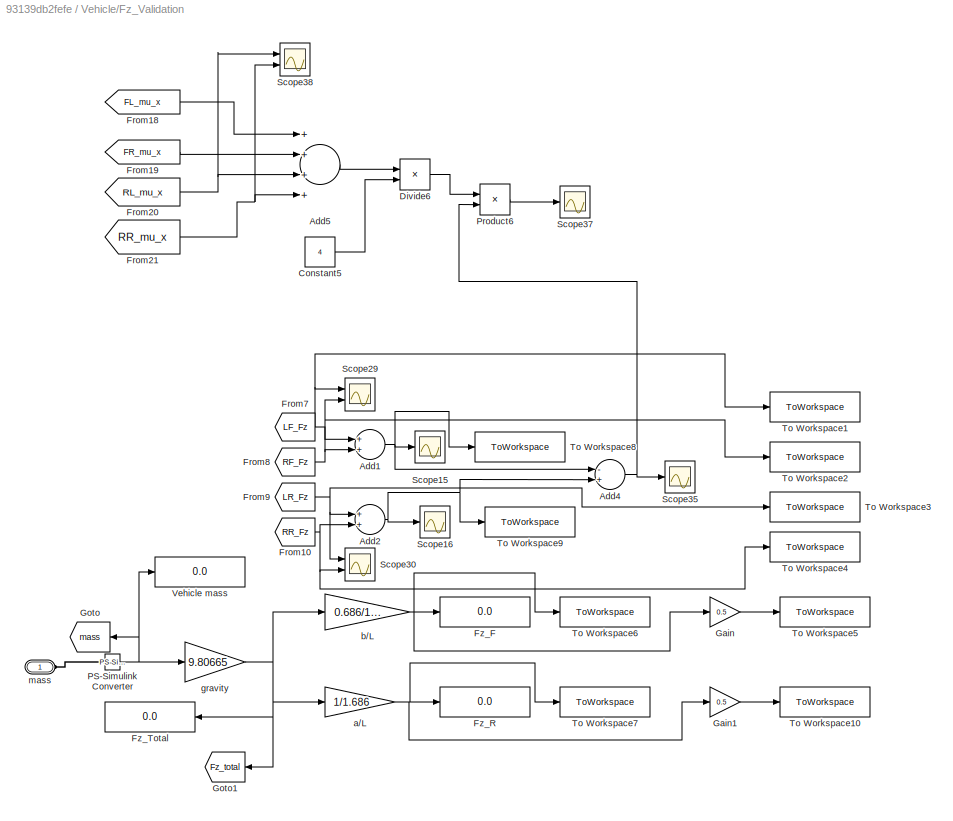
BLOCK [SubSystem] Vehicle/Fz_Validation
  Ports = [0, 0, 0, 0, 0, 1]
  RequestExecContextInheritance = off
BLOCK [Sum] Vehicle/Fz_Validation/Add1
  InputSameDT = off
  OutDataTypeStr = Inherit: Inherit via internal rule
  Ports = [2, 1]
  SaturateOnIntegerOverflow = off
BLOCK [Sum] Vehicle/Fz_Validation/Add2
  InputSameDT = off
  OutDataTypeStr = Inherit: Inherit via internal rule
  Ports = [2, 1]
  SaturateOnIntegerOverflow = off
BLOCK [Sum] Vehicle/Fz_Validation/Add4
  InputSameDT = off
  Inputs = -+
  OutDataTypeStr = Inherit: Inherit via internal rule
  Ports = [2, 1]
  SaturateOnIntegerOverflow = off
BLOCK [Sum] Vehicle/Fz_Validation/Add5
  InputSameDT = off
  Inputs = ++++
  OutDataTypeStr = Inherit: Inherit via internal rule
  Ports = [4, 1]
  SaturateOnIntegerOverflow = off
BLOCK [Constant] Vehicle/Fz_Validation/Constant5
  Value = 4
BLOCK [Product] Vehicle/Fz_Validation/Divide6
  InputSameDT = off
  Inputs = */
  OutDataTypeStr = Inherit: Inherit via internal rule
  Ports = [2, 1]
  RndMeth = Floor
  SaturateOnIntegerOverflow = off
BLOCK [From] Vehicle/Fz_Validation/From10
  GotoTag = RR_Fz
  TagVisibility = global
BLOCK [From] Vehicle/Fz_Validation/From18
  GotoTag = FL_mu_x
  TagVisibility = global
BLOCK [From] Vehicle/Fz_Validation/From19
  GotoTag = FR_mu_x
  TagVisibility = global
BLOCK [From] Vehicle/Fz_Validation/From20
  GotoTag = RL_mu_x
  TagVisibility = global
BLOCK [From] Vehicle/Fz_Validation/From21
  GotoTag = RR_mu_x
  TagVisibility = global
BLOCK [From] Vehicle/Fz_Validation/From7
  GotoTag = LF_Fz
  TagVisibility = global
BLOCK [From] Vehicle/Fz_Validation/From8
  GotoTag = RF_Fz
  TagVisibility = global
BLOCK [From] Vehicle/Fz_Validation/From9
  GotoTag = LR_Fz
  TagVisibility = global
BLOCK [Display] Vehicle/Fz_Validation/Fz_F
  Decimation = 1
  Ports = [1]
BLOCK [Display] Vehicle/Fz_Validation/Fz_R
  Decimation = 1
  Ports = [1]
BLOCK [Display] Vehicle/Fz_Validation/Fz_Total
  Decimation = 1
  Ports = [1]
BLOCK [Gain] Vehicle/Fz_Validation/Gain
  Gain = 0.5
  OutDataTypeStr = Inherit: Inherit via internal rule
  ParamDataTypeStr = Inherit: Inherit via internal rule
  SaturateOnIntegerOverflow = off
BLOCK [Gain] Vehicle/Fz_Validation/Gain1
  Gain = 0.5
  OutDataTypeStr = Inherit: Inherit via internal rule
  ParamDataTypeStr = Inherit: Inherit via internal rule
  SaturateOnIntegerOverflow = off
BLOCK [Goto] Vehicle/Fz_Validation/Goto
  GotoTag = mass
  TagVisibility = global
BLOCK [Goto] Vehicle/Fz_Validation/Goto1
  GotoTag = Fz_total
  TagVisibility = global
BLOCK [Reference] Vehicle/Fz_Validation/PS-Simulink Converter  REF=nesl_utility/PS-Simulink
Converter
  Ports = [0, 1, 0, 0, 0, 1]
  SourceBlock = nesl_utility/PS-Simulink\nConverter
  SourceProductBaseCode = SS
  SourceType = PS-Simulink\nConverter
BLOCK [Product] Vehicle/Fz_Validation/Product6
  InputSameDT = off
  OutDataTypeStr = Inherit: Inherit via internal rule
  Ports = [2, 1]
  RndMeth = Floor
  SaturateOnIntegerOverflow = off
BLOCK [Scope] Vehicle/Fz_Validation/Scope15
  Floating = off
  NumInputPorts = 1
  Ports = [1]
  ScopeSpecificationString = Simulink.scopes.TimeScopeBlockCfg('CurrentConfiguration', extmgr.ConfigurationSet(extmgr.Configuration('Core','General UI',true),extmgr.Configuration('Core','Source UI',true),extmgr.Configuration('Sources','WiredSimulink',true,'DataLoggingVariableName','ScopeData13'),extmgr.Configuration('Visuals','Time Domain',true,'SerializedDisplays',{struct('MinYLimReal','1064.30313','MaxYLimReal','5989.33982'...<+1490ch>
BLOCK [Scope] Vehicle/Fz_Validation/Scope16
  Floating = off
  NumInputPorts = 1
  Ports = [1]
  ScopeSpecificationString = Simulink.scopes.TimeScopeBlockCfg('CurrentConfiguration', extmgr.ConfigurationSet(extmgr.Configuration('Core','General UI',true),extmgr.Configuration('Core','Source UI',true),extmgr.Configuration('Sources','WiredSimulink',true,'DataLoggingVariableName','ScopeData14'),extmgr.Configuration('Visuals','Time Domain',true,'SerializedDisplays',{struct('MinYLimReal','2245.34439','MaxYLimReal','5268.2389',...<+1488ch>
BLOCK [Scope] Vehicle/Fz_Validation/Scope29
  Floating = off
  NumInputPorts = 2
  Ports = [2]
  ScopeSpecificationString = Simulink.scopes.TimeScopeBlockCfg('CurrentConfiguration', extmgr.ConfigurationSet(extmgr.Configuration('Core','General UI',true),extmgr.Configuration('Core','Source UI',true),extmgr.Configuration('Sources','WiredSimulink',true,'DataLoggingVariableName','ScopeData1'),extmgr.Configuration('Visuals','Time Domain',true,'SerializedDisplays',{struct('MinYLimReal','983.64626','MaxYLimReal','1016.10545','...<+1543ch>
BLOCK [Scope] Vehicle/Fz_Validation/Scope30
  Floating = off
  NumInputPorts = 2
  Ports = [2]
  ScopeSpecificationString = Simulink.scopes.TimeScopeBlockCfg('CurrentConfiguration', extmgr.ConfigurationSet(extmgr.Configuration('Core','General UI',true),extmgr.Configuration('Core','Source UI',true),extmgr.Configuration('Sources','WiredSimulink',true,'DataLoggingVariableName','ScopeData2'),extmgr.Configuration('Visuals','Time Domain',true,'SerializedDisplays',{struct('MinYLimReal','1767.65197','MaxYLimReal','1774.31931',...<+1550ch>
BLOCK [Scope] Vehicle/Fz_Validation/Scope35
  Floating = off
  NumInputPorts = 1
  Ports = [1]
  ScopeSpecificationString = Simulink.scopes.TimeScopeBlockCfg('CurrentConfiguration', extmgr.ConfigurationSet(extmgr.Configuration('Core','General UI',true),extmgr.Configuration('Core','Source UI',true),extmgr.Configuration('Sources','WiredSimulink',true,'DataLoggingVariableName','ScopeData7'),extmgr.Configuration('Visuals','Time Domain',true,'SerializedDisplays',{struct('MinYLimReal','-652.49604','MaxYLimReal','5872.46412',...<+1487ch>
BLOCK [Scope] Vehicle/Fz_Validation/Scope37
  Floating = off
  NumInputPorts = 1
  Ports = [1]
  ScopeSpecificationString = Simulink.scopes.TimeScopeBlockCfg('CurrentConfiguration', extmgr.ConfigurationSet(extmgr.Configuration('Core','General UI',true),extmgr.Configuration('Core','Source UI',true),extmgr.Configuration('Sources','WiredSimulink',true,'DataLoggingVariableName','ScopeData1'),extmgr.Configuration('Visuals','Time Domain',true,'SerializedDisplays',{struct('MinYLimReal','1628.7915','MaxYLimReal','1738.94421','...<+1491ch>
BLOCK [Scope] Vehicle/Fz_Validation/Scope38
  Floating = off
  NumInputPorts = 2
  Ports = [2]
  ScopeSpecificationString = Simulink.scopes.TimeScopeBlockCfg('CurrentConfiguration', extmgr.ConfigurationSet(extmgr.Configuration('Core','General UI',true),extmgr.Configuration('Core','Source UI',true),extmgr.Configuration('Sources','WiredSimulink',true,'DataLoggingVariableName','ScopeData2'),extmgr.Configuration('Visuals','Time Domain',true,'SerializedDisplays',{struct('MinYLimReal','1.08825','MaxYLimReal','1.08855','YLabe...<+1515ch>
BLOCK [ToWorkspace] Vehicle/Fz_Validation/To Workspace1
  MaxDataPoints = inf
  Ports = [1]
  SampleTime = -1
  VariableName = act_Fz_FL
BLOCK [ToWorkspace] Vehicle/Fz_Validation/To Workspace10
  MaxDataPoints = inf
  Ports = [1]
  SampleTime = -1
  VariableName = Calc_Fz_RLR
BLOCK [ToWorkspace] Vehicle/Fz_Validation/To Workspace2
  MaxDataPoints = inf
  Ports = [1]
  SampleTime = -1
  VariableName = act_Fz_FR
BLOCK [ToWorkspace] Vehicle/Fz_Validation/To Workspace3
  MaxDataPoints = inf
  Ports = [1]
  SampleTime = -1
  VariableName = act_Fz_RL
BLOCK [ToWorkspace] Vehicle/Fz_Validation/To Workspace4
  MaxDataPoints = inf
  Ports = [1]
  SampleTime = -1
  VariableName = act_Fz_RR
BLOCK [ToWorkspace] Vehicle/Fz_Validation/To Workspace5
  MaxDataPoints = inf
  Ports = [1]
  SampleTime = -1
  VariableName = Calc_Fz_FLR
BLOCK [ToWorkspace] Vehicle/Fz_Validation/To Workspace6
  MaxDataPoints = inf
  Ports = [1]
  SampleTime = -1
  VariableName = Calc_Fz_front
BLOCK [ToWorkspace] Vehicle/Fz_Validation/To Workspace7
  MaxDataPoints = inf
  Ports = [1]
  SampleTime = -1
  VariableName = Calc_Fz_rear
BLOCK [ToWorkspace] Vehicle/Fz_Validation/To Workspace8
  MaxDataPoints = inf
  Ports = [1]
  SampleTime = -1
  VariableName = act_Fz_front
BLOCK [ToWorkspace] Vehicle/Fz_Validation/To Workspace9
  MaxDataPoints = inf
  Ports = [1]
  SampleTime = -1
  VariableName = act_Fz_rear
BLOCK [Display] Vehicle/Fz_Validation/Vehicle mass
  Decimation = 1
  Ports = [1]
BLOCK [Gain] Vehicle/Fz_Validation/a//L
  Gain = 1/1.686
  OutDataTypeStr = Inherit: Inherit via internal rule
  ParamDataTypeStr = Inherit: Inherit via internal rule
  SaturateOnIntegerOverflow = off
BLOCK [Gain] Vehicle/Fz_Validation/b//L
  Gain = 0.686/1.686
  OutDataTypeStr = Inherit: Inherit via internal rule
  ParamDataTypeStr = Inherit: Inherit via internal rule
  SaturateOnIntegerOverflow = off
BLOCK [Gain] Vehicle/Fz_Validation/gravity
  Gain = 9.80665
  OutDataTypeStr = Inherit: Inherit via internal rule
  ParamDataTypeStr = Inherit: Inherit via internal rule
  SaturateOnIntegerOverflow = off
BLOCK [PMIOPort] Vehicle/Fz_Validation/mass
  Side = Left
BLOCK [SubSystem] Vehicle/Mass and inertia
  Ports = [0, 0, 0, 0, 0, 1, 1]
  RequestExecContextInheritance = off
BLOCK [Display] Vehicle/Mass and inertia/Display1
  Decimation = 1
  Ports = [1]
BLOCK [Display] Vehicle/Mass and inertia/Display4
  Decimation = 1
  Ports = [1]
BLOCK [PMIOPort] Vehicle/Mass and inertia/Fz
  Side = Right
BLOCK [Reference] Vehicle/Mass and inertia/Inertia Sensor  REF=sm_lib/Body Elements/Inertia Sensor
  Ports = [0, 0, 0, 0, 0, 1, 2]
  SourceBlock = sm_lib/Body Elements/Inertia Sensor
  SourceProductBaseCode = MS
  SourceType = Inertia Sensor
BLOCK [Reference] Vehicle/Mass and inertia/PS-Simulink Converter1  REF=nesl_utility/PS-Simulink
Converter
  Ports = [0, 1, 0, 0, 0, 1]
  SourceBlock = nesl_utility/PS-Simulink\nConverter
  SourceProductBaseCode = SS
  SourceType = PS-Simulink\nConverter
BLOCK [Reference] Vehicle/Mass and inertia/PS-Simulink Converter4  REF=nesl_utility/PS-Simulink
Converter
  Ports = [0, 1, 0, 0, 0, 1]
  SourceBlock = nesl_utility/PS-Simulink\nConverter
  SourceProductBaseCode = SS
  SourceType = PS-Simulink\nConverter
BLOCK [PMIOPort] Vehicle/Mass and inertia/vehicle
  Port = 2
  Side = Left
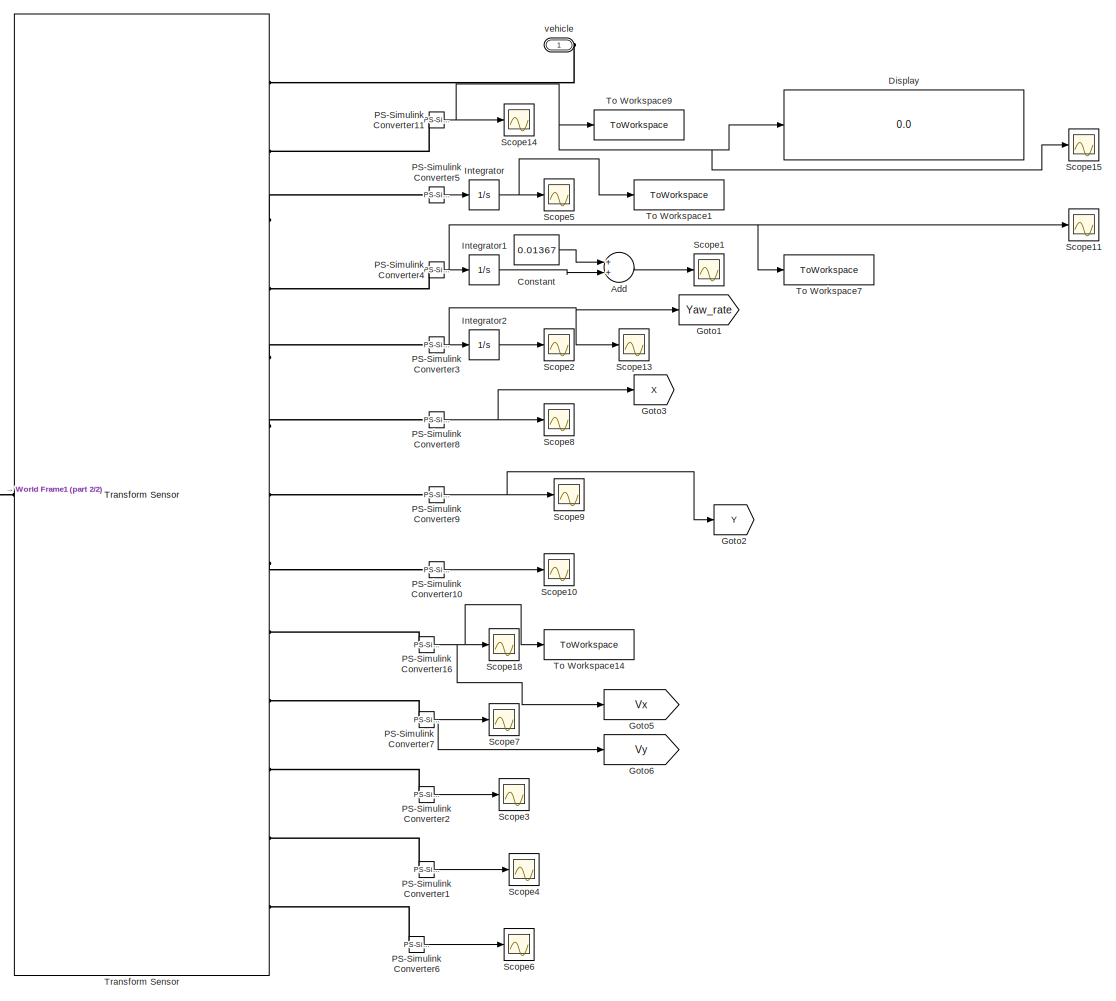
[diagram: Vehicle/Measurements - part 1/2, most of the canvas]
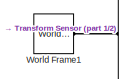
[diagram: Vehicle/Measurements - part 2/2, middle left region]
BLOCK [SubSystem] Vehicle/Measurements
  Ports = [0, 0, 0, 0, 0, 0, 1]
  RequestExecContextInheritance = off
BLOCK [Sum] Vehicle/Measurements/Add
  InputSameDT = off
  OutDataTypeStr = Inherit: Inherit via internal rule
  Ports = [2, 1]
  SaturateOnIntegerOverflow = off
BLOCK [Constant] Vehicle/Measurements/Constant
  Value = 0.01367
BLOCK [Display] Vehicle/Measurements/Display
  Decimation = 1
  Ports = [1]
BLOCK [Goto] Vehicle/Measurements/Goto1
  GotoTag = Yaw_rate
  TagVisibility = global
BLOCK [Goto] Vehicle/Measurements/Goto2
  GotoTag = Y
  TagVisibility = global
BLOCK [Goto] Vehicle/Measurements/Goto3
  GotoTag = X
  TagVisibility = global
BLOCK [Goto] Vehicle/Measurements/Goto5
  GotoTag = Vx
  TagVisibility = global
BLOCK [Goto] Vehicle/Measurements/Goto6
  GotoTag = Vy
  TagVisibility = global
BLOCK [Integrator] Vehicle/Measurements/Integrator
  Ports = [1, 1]
BLOCK [Integrator] Vehicle/Measurements/Integrator1
  Ports = [1, 1]
BLOCK [Integrator] Vehicle/Measurements/Integrator2
  Ports = [1, 1]
BLOCK [Reference] Vehicle/Measurements/PS-Simulink Converter1  REF=nesl_utility/PS-Simulink
Converter
  Ports = [0, 1, 0, 0, 0, 1]
  SourceBlock = nesl_utility/PS-Simulink\nConverter
  SourceProductBaseCode = SS
  SourceType = PS-Simulink\nConverter
BLOCK [Reference] Vehicle/Measurements/PS-Simulink Converter10  REF=nesl_utility/PS-Simulink
Converter
  Ports = [0, 1, 0, 0, 0, 1]
  SourceBlock = nesl_utility/PS-Simulink\nConverter
  SourceProductBaseCode = SS
  SourceType = PS-Simulink\nConverter
BLOCK [Reference] Vehicle/Measurements/PS-Simulink Converter11  REF=nesl_utility/PS-Simulink
Converter
  Ports = [0, 1, 0, 0, 0, 1]
  SourceBlock = nesl_utility/PS-Simulink\nConverter
  SourceProductBaseCode = SS
  SourceType = PS-Simulink\nConverter
BLOCK [Reference] Vehicle/Measurements/PS-Simulink Converter16  REF=nesl_utility/PS-Simulink
Converter
  Ports = [0, 1, 0, 0, 0, 1]
  SourceBlock = nesl_utility/PS-Simulink\nConverter
  SourceProductBaseCode = SS
  SourceType = PS-Simulink\nConverter
BLOCK [Reference] Vehicle/Measurements/PS-Simulink Converter2  REF=nesl_utility/PS-Simulink
Converter
  Ports = [0, 1, 0, 0, 0, 1]
  SourceBlock = nesl_utility/PS-Simulink\nConverter
  SourceProductBaseCode = SS
  SourceType = PS-Simulink\nConverter
BLOCK [Reference] Vehicle/Measurements/PS-Simulink Converter3  REF=nesl_utility/PS-Simulink
Converter
  Ports = [0, 1, 0, 0, 0, 1]
  SourceBlock = nesl_utility/PS-Simulink\nConverter
  SourceProductBaseCode = SS
  SourceType = PS-Simulink\nConverter
BLOCK [Reference] Vehicle/Measurements/PS-Simulink Converter4  REF=nesl_utility/PS-Simulink
Converter
  Ports = [0, 1, 0, 0, 0, 1]
  SourceBlock = nesl_utility/PS-Simulink\nConverter
  SourceProductBaseCode = SS
  SourceType = PS-Simulink\nConverter
BLOCK [Reference] Vehicle/Measurements/PS-Simulink Converter5  REF=nesl_utility/PS-Simulink
Converter
  Ports = [0, 1, 0, 0, 0, 1]
  SourceBlock = nesl_utility/PS-Simulink\nConverter
  SourceProductBaseCode = SS
  SourceType = PS-Simulink\nConverter
BLOCK [Reference] Vehicle/Measurements/PS-Simulink Converter6  REF=nesl_utility/PS-Simulink
Converter
  Ports = [0, 1, 0, 0, 0, 1]
  SourceBlock = nesl_utility/PS-Simulink\nConverter
  SourceProductBaseCode = SS
  SourceType = PS-Simulink\nConverter
BLOCK [Reference] Vehicle/Measurements/PS-Simulink Converter7  REF=nesl_utility/PS-Simulink
Converter
  Ports = [0, 1, 0, 0, 0, 1]
  SourceBlock = nesl_utility/PS-Simulink\nConverter
  SourceProductBaseCode = SS
  SourceType = PS-Simulink\nConverter
BLOCK [Reference] Vehicle/Measurements/PS-Simulink Converter8  REF=nesl_utility/PS-Simulink
Converter
  Ports = [0, 1, 0, 0, 0, 1]
  SourceBlock = nesl_utility/PS-Simulink\nConverter
  SourceProductBaseCode = SS
  SourceType = PS-Simulink\nConverter
BLOCK [Reference] Vehicle/Measurements/PS-Simulink Converter9  REF=nesl_utility/PS-Simulink
Converter
  Ports = [0, 1, 0, 0, 0, 1]
  SourceBlock = nesl_utility/PS-Simulink\nConverter
  SourceProductBaseCode = SS
  SourceType = PS-Simulink\nConverter
BLOCK [Scope] Vehicle/Measurements/Scope1
  Floating = off
  NumInputPorts = 1
  Ports = [1]
  ScopeSpecificationString = Simulink.scopes.TimeScopeBlockCfg('CurrentConfiguration', extmgr.ConfigurationSet(extmgr.Configuration('Core','General UI',true),extmgr.Configuration('Core','Source UI',true),extmgr.Configuration('Sources','WiredSimulink',true,'DataLoggingVariableName','ScopeData1'),extmgr.Configuration('Visuals','Time Domain',true,'SerializedDisplays',{struct('MinYLimReal','-0.01993','MaxYLimReal','0.02933','YLab...<+1468ch>
BLOCK [Scope] Vehicle/Measurements/Scope10
  Floating = off
  NumInputPorts = 1
  Ports = [1]
  ScopeSpecificationString = Simulink.scopes.TimeScopeBlockCfg('CurrentConfiguration', extmgr.ConfigurationSet(extmgr.Configuration('Core','General UI',true),extmgr.Configuration('Core','Source UI',true),extmgr.Configuration('Sources','WiredSimulink',true,'DataLoggingVariableName','ScopeData9'),extmgr.Configuration('Visuals','Time Domain',true,'SerializedDisplays',{struct('MinYLimReal','0.47462','MaxYLimReal','0.52838','YLabe...<+1484ch>
BLOCK [Scope] Vehicle/Measurements/Scope11
  Floating = off
  NumInputPorts = 1
  Ports = [1]
  ScopeSpecificationString = Simulink.scopes.TimeScopeBlockCfg('CurrentConfiguration', extmgr.ConfigurationSet(extmgr.Configuration('Core','General UI',true),extmgr.Configuration('Core','Source UI',true),extmgr.Configuration('Sources','WiredSimulink',true,'DataLoggingVariableName','ScopeData6'),extmgr.Configuration('Visuals','Time Domain',true,'SerializedDisplays',{struct('MinYLimReal','-0.20883','MaxYLimReal','0.0785','YLabe...<+1487ch>
BLOCK [Scope] Vehicle/Measurements/Scope13
  Floating = off
  NumInputPorts = 1
  Ports = [1]
  ScopeSpecificationString = Simulink.scopes.TimeScopeBlockCfg('CurrentConfiguration', extmgr.ConfigurationSet(extmgr.Configuration('Core','General UI',true),extmgr.Configuration('Core','Source UI',true),extmgr.Configuration('Sources','WiredSimulink',true,'DataLoggingVariableName','ScopeData7'),extmgr.Configuration('Visuals','Time Domain',true,'SerializedDisplays',{struct('MinYLimReal','-0.04755','MaxYLimReal','0.42706','YLab...<+1480ch>
BLOCK [Scope] Vehicle/Measurements/Scope14
  Floating = off
  NumInputPorts = 1
  Ports = [1]
  ScopeSpecificationString = Simulink.scopes.TimeScopeBlockCfg('CurrentConfiguration', extmgr.ConfigurationSet(extmgr.Configuration('Core','General UI',true),extmgr.Configuration('Core','Source UI',true),extmgr.Configuration('Sources','WiredSimulink',true,'DataLoggingVariableName','ScopeData4'),extmgr.Configuration('Visuals','Time Domain',true,'SerializedDisplays',{struct('MinYLimReal','-0.33679','MaxYLimReal','1.14853','YLab...<+1713ch>
BLOCK [Scope] Vehicle/Measurements/Scope15
  Floating = off
  NumInputPorts = 1
  Ports = [1]
  ScopeSpecificationString = Simulink.scopes.TimeScopeBlockCfg('CurrentConfiguration', extmgr.ConfigurationSet(extmgr.Configuration('Core','General UI',true),extmgr.Configuration('Core','Source UI',true),extmgr.Configuration('Sources','WiredSimulink',true,'DataLoggingVariableName','ScopeData5'),extmgr.Configuration('Visuals','Time Domain',true,'SerializedDisplays',{struct('MinYLimReal','-0.04588','MaxYLimReal','0.05684','YLab...<+1927ch>
BLOCK [Scope] Vehicle/Measurements/Scope18
  Floating = off
  NumInputPorts = 1
  Ports = [1]
  ScopeSpecificationString = Simulink.scopes.TimeScopeBlockCfg('CurrentConfiguration', extmgr.ConfigurationSet(extmgr.Configuration('Core','General UI',true),extmgr.Configuration('Core','Source UI',true),extmgr.Configuration('Sources','WiredSimulink',true,'DataLoggingVariableName','ScopeData16'),extmgr.Configuration('Visuals','Time Domain',true,'SerializedDisplays',{struct('MinYLimReal','-1.9013','MaxYLimReal','16.93116','YLa...<+1482ch>
BLOCK [Scope] Vehicle/Measurements/Scope2
  Floating = off
  NumInputPorts = 1
  Ports = [1]
  ScopeSpecificationString = Simulink.scopes.TimeScopeBlockCfg('CurrentConfiguration', extmgr.ConfigurationSet(extmgr.Configuration('Core','General UI',true),extmgr.Configuration('Core','Source UI',true),extmgr.Configuration('Sources','WiredSimulink',true,'DataLoggingVariableName','ScopeData2'),extmgr.Configuration('Visuals','Time Domain',true,'SerializedDisplays',{struct('MinYLimReal','-0.3476','MaxYLimReal','3.12487','YLabe...<+1472ch>
BLOCK [Scope] Vehicle/Measurements/Scope3
  Floating = off
  NumInputPorts = 1
  Ports = [1]
  ScopeSpecificationString = Simulink.scopes.TimeScopeBlockCfg('CurrentConfiguration', extmgr.ConfigurationSet(extmgr.Configuration('Core','General UI',true),extmgr.Configuration('Core','Source UI',true),extmgr.Configuration('Sources','WiredSimulink',true,'DataLoggingVariableName','ScopeData3'),extmgr.Configuration('Visuals','Time Domain',true,'SerializedDisplays',{struct('MinYLimReal','-5.55623','MaxYLimReal','6.60351','YLab...<+1489ch>
BLOCK [Scope] Vehicle/Measurements/Scope4
  Floating = off
  NumInputPorts = 1
  Ports = [1]
  ScopeSpecificationString = Simulink.scopes.TimeScopeBlockCfg('CurrentConfiguration', extmgr.ConfigurationSet(extmgr.Configuration('Core','General UI',true),extmgr.Configuration('Core','Source UI',true),extmgr.Configuration('Sources','WiredSimulink',true,'DataLoggingVariableName','ScopeData4'),extmgr.Configuration('Visuals','Time Domain',true,'SerializedDisplays',{struct('MinYLimReal','-6.50031','MaxYLimReal','6.14566','YLab...<+1488ch>
BLOCK [Scope] Vehicle/Measurements/Scope5
  Floating = off
  NumInputPorts = 1
  Ports = [1]
  ScopeSpecificationString = Simulink.scopes.TimeScopeBlockCfg('CurrentConfiguration', extmgr.ConfigurationSet(extmgr.Configuration('Core','General UI',true),extmgr.Configuration('Core','Source UI',true),extmgr.Configuration('Sources','WiredSimulink',true,'DataLoggingVariableName','ScopeData1'),extmgr.Configuration('Visuals','Time Domain',true,'SerializedDisplays',{struct('MinYLimReal','-0.00536','MaxYLimReal','0.0092','YLabe...<+1464ch>
BLOCK [Scope] Vehicle/Measurements/Scope6
  Floating = off
  NumInputPorts = 1
  Ports = [1]
  ScopeSpecificationString = Simulink.scopes.TimeScopeBlockCfg('CurrentConfiguration', extmgr.ConfigurationSet(extmgr.Configuration('Core','General UI',true),extmgr.Configuration('Core','Source UI',true),extmgr.Configuration('Sources','WiredSimulink',true,'DataLoggingVariableName','ScopeData5'),extmgr.Configuration('Visuals','Time Domain',true,'SerializedDisplays',{struct('MinYLimReal','-9.37911','MaxYLimReal','4.14521','YLab...<+1487ch>
BLOCK [Scope] Vehicle/Measurements/Scope7
  Floating = off
  NumInputPorts = 1
  Ports = [1]
  ScopeSpecificationString = Simulink.scopes.TimeScopeBlockCfg('CurrentConfiguration', extmgr.ConfigurationSet(extmgr.Configuration('Core','General UI',true),extmgr.Configuration('Core','Source UI',true),extmgr.Configuration('Sources','WiredSimulink',true,'DataLoggingVariableName','ScopeData6'),extmgr.Configuration('Visuals','Time Domain',true,'SerializedDisplays',{struct('MinYLimReal','-21.12902','MaxYLimReal','24.62881','YL...<+1484ch>
BLOCK [Scope] Vehicle/Measurements/Scope8
  Floating = off
  NumInputPorts = 1
  Ports = [1]
  ScopeSpecificationString = Simulink.scopes.TimeScopeBlockCfg('CurrentConfiguration', extmgr.ConfigurationSet(extmgr.Configuration('Core','General UI',true),extmgr.Configuration('Core','Source UI',true),extmgr.Configuration('Sources','WiredSimulink',true,'DataLoggingVariableName','ScopeData7'),extmgr.Configuration('Visuals','Time Domain',true,'SerializedDisplays',{struct('MinYLimReal','-21.36713','MaxYLimReal','181.53469','Y...<+1490ch>
BLOCK [Scope] Vehicle/Measurements/Scope9
  Floating = off
  NumInputPorts = 1
  Ports = [1]
  ScopeSpecificationString = Simulink.scopes.TimeScopeBlockCfg('CurrentConfiguration', extmgr.ConfigurationSet(extmgr.Configuration('Core','General UI',true),extmgr.Configuration('Core','Source UI',true),extmgr.Configuration('Sources','WiredSimulink',true,'DataLoggingVariableName','ScopeData8'),extmgr.Configuration('Visuals','Time Domain',true,'SerializedDisplays',{struct('MinYLimReal','-9.60617','MaxYLimReal','86.4555','YLab...<+1480ch>
BLOCK [ToWorkspace] Vehicle/Measurements/To Workspace1
  MaxDataPoints = inf
  Ports = [1]
  SampleTime = -1
  VariableName = Roll
BLOCK [ToWorkspace] Vehicle/Measurements/To Workspace14
  MaxDataPoints = inf
  Ports = [1]
  SampleTime = -1
  VariableName = FL_Vx
BLOCK [ToWorkspace] Vehicle/Measurements/To Workspace7
  MaxDataPoints = inf
  Ports = [1]
  SampleTime = -1
  VariableName = Pitch_rate
BLOCK [ToWorkspace] Vehicle/Measurements/To Workspace9
  MaxDataPoints = inf
  Ports = [1]
  SampleTime = -1
  VariableName = Rot_mat
BLOCK [Reference] Vehicle/Measurements/Transform Sensor  REF=sm_lib/Frames and
Transforms/Transform
Sensor
  Ports = [0, 0, 0, 0, 0, 1, 13]
  SourceBlock = sm_lib/Frames and\nTransforms/Transform\nSensor
  SourceProductBaseCode = MS
  SourceType = Transform\nSensor
BLOCK [Reference] Vehicle/Measurements/World Frame1  REF=sm_lib/Frames and
Transforms/World Frame
  Ports = [0, 0, 0, 0, 0, 0, 1]
  SourceBlock = sm_lib/Frames and\nTransforms/World Frame
  SourceProductBaseCode = MS
  SourceType = World Frame
BLOCK [PMIOPort] Vehicle/Measurements/vehicle
  Side = Right
BLOCK [SubSystem] Vehicle/RL_Arm
  Ports = [0, 0, 0, 0, 0, 1, 2]
  RequestExecContextInheritance = off
BLOCK [Reference] Vehicle/RL_Arm/RL arm  REF=sm_lib/Body Elements/Extruded Solid
  Ports = [0, 0, 0, 0, 0, 1, 1]
  SourceBlock = sm_lib/Body Elements/Extruded Solid
  SourceProductBaseCode = MS
  SourceType = Extruded Solid
BLOCK [Reference] Vehicle/RL_Arm/RL arm1  REF=sm_lib/Body Elements/Extruded Solid
  Commented = on
  Ports = [0, 0, 0, 0, 0, 1, 1]
  SourceBlock = sm_lib/Body Elements/Extruded Solid
  SourceProductBaseCode = MS
  SourceType = Extruded Solid
BLOCK [PMIOPort] Vehicle/RL_Arm/RL_arm
  Port = 2
  Side = Right
BLOCK [Reference] Vehicle/RL_Arm/Revolute Joint8  REF=sm_lib/Joints/Revolute Joint
  Ports = [0, 0, 0, 0, 0, 1, 1]
  SourceBlock = sm_lib/Joints/Revolute Joint
  SourceProductBaseCode = MS
  SourceType = Revolute Joint
BLOCK [Reference] Vehicle/RL_Arm/Rigid Transform1  REF=sm_lib/Frames and
Transforms/Rigid
Transform
  Ports = [0, 0, 0, 0, 0, 1, 1]
  SourceBlock = sm_lib/Frames and\nTransforms/Rigid\nTransform
  SourceProductBaseCode = MS
  SourceType = Rigid\nTransform
BLOCK [Reference] Vehicle/RL_Arm/Rigid Transform79  REF=sm_lib/Frames and
Transforms/Rigid
Transform
  Ports = [0, 0, 0, 0, 0, 1, 1]
  SourceBlock = sm_lib/Frames and\nTransforms/Rigid\nTransform
  SourceProductBaseCode = MS
  SourceType = Rigid\nTransform
BLOCK [Reference] Vehicle/RL_Arm/Rigid Transform80  REF=sm_lib/Frames and
Transforms/Rigid
Transform
  Ports = [0, 0, 0, 0, 0, 1, 1]
  SourceBlock = sm_lib/Frames and\nTransforms/Rigid\nTransform
  SourceProductBaseCode = MS
  SourceType = Rigid\nTransform
BLOCK [Reference] Vehicle/RL_Arm/Rigid Transform86  REF=sm_lib/Frames and
Transforms/Rigid
Transform
  Ports = [0, 0, 0, 0, 0, 1, 1]
  SourceBlock = sm_lib/Frames and\nTransforms/Rigid\nTransform
  SourceProductBaseCode = MS
  SourceType = Rigid\nTransform
BLOCK [Reference] Vehicle/RL_Arm/Spherical Joint17  REF=sm_lib/Joints/Spherical
Joint
  Ports = [0, 0, 0, 0, 0, 1, 1]
  SourceBlock = sm_lib/Joints/Spherical\nJoint
  SourceProductBaseCode = MS
  SourceType = Spherical\nJoint
BLOCK [PMIOPort] Vehicle/RL_Arm/chassis
  Side = Left
BLOCK [PMIOPort] Vehicle/RL_Arm/upright
  Port = 3
  Side = Right
BLOCK [SubSystem] Vehicle/RL_Driveshaft
  Ports = [1, 0, 0, 0, 0, 1, 1]
  RequestExecContextInheritance = off
BLOCK [Constant] Vehicle/RL_Driveshaft/Constant
  Value = 0
BLOCK [Reference] Vehicle/RL_Driveshaft/Constant Velocity Joint  REF=sm_lib/Joints/Constant Velocity
Joint
  Ports = [0, 0, 0, 0, 0, 1, 1]
  SourceBlock = sm_lib/Joints/Constant Velocity\nJoint
  SourceProductBaseCode = MS
  SourceType = Constant Velocity\nJoint
BLOCK [Reference] Vehicle/RL_Driveshaft/Constant Velocity Joint1  REF=sm_lib/Joints/Constant Velocity
Joint
  Ports = [0, 0, 0, 0, 0, 1, 1]
  SourceBlock = sm_lib/Joints/Constant Velocity\nJoint
  SourceProductBaseCode = MS
  SourceType = Constant Velocity\nJoint
BLOCK [Reference] Vehicle/RL_Driveshaft/Cylindrical Solid  REF=sm_lib/Body Elements/Cylindrical Solid
  Ports = [0, 0, 0, 0, 0, 1, 1]
  SourceBlock = sm_lib/Body Elements/Cylindrical Solid
  SourceProductBaseCode = MS
  SourceType = Cylindrical Solid
BLOCK [Reference] Vehicle/RL_Driveshaft/Cylindrical Solid1  REF=sm_lib/Body Elements/Cylindrical Solid
  Ports = [0, 0, 0, 0, 0, 1, 1]
  SourceBlock = sm_lib/Body Elements/Cylindrical Solid
  SourceProductBaseCode = MS
  SourceType = Cylindrical Solid
BLOCK [Reference] Vehicle/RL_Driveshaft/Cylindrical Solid2  REF=sm_lib/Body Elements/Cylindrical Solid
  Ports = [0, 0, 0, 0, 0, 1, 1]
  SourceBlock = sm_lib/Body Elements/Cylindrical Solid
  SourceProductBaseCode = MS
  SourceType = Cylindrical Solid
BLOCK [Reference] Vehicle/RL_Driveshaft/Cylindrical Solid3  REF=sm_lib/Body Elements/Cylindrical Solid
  Ports = [0, 0, 0, 0, 0, 1, 1]
  SourceBlock = sm_lib/Body Elements/Cylindrical Solid
  SourceProductBaseCode = MS
  SourceType = Cylindrical Solid
BLOCK [Display] Vehicle/RL_Driveshaft/Display21
  Decimation = 1
  Ports = [1]
BLOCK [Reference] Vehicle/RL_Driveshaft/PS-Simulink Converter  REF=nesl_utility/PS-Simulink
Converter
  Ports = [0, 1, 0, 0, 0, 1]
  SourceBlock = nesl_utility/PS-Simulink\nConverter
  SourceProductBaseCode = SS
  SourceType = PS-Simulink\nConverter
BLOCK [Reference] Vehicle/RL_Driveshaft/PS-Simulink Converter2  REF=nesl_utility/PS-Simulink
Converter
  Ports = [0, 1, 0, 0, 0, 1]
  SourceBlock = nesl_utility/PS-Simulink\nConverter
  SourceProductBaseCode = SS
  SourceType = PS-Simulink\nConverter
BLOCK [Reference] Vehicle/RL_Driveshaft/PS-Simulink Converter24  REF=nesl_utility/PS-Simulink
Converter
  Ports = [0, 1, 0, 0, 0, 1]
  SourceBlock = nesl_utility/PS-Simulink\nConverter
  SourceProductBaseCode = SS
  SourceType = PS-Simulink\nConverter
BLOCK [Reference] Vehicle/RL_Driveshaft/PS-Simulink Converter3  REF=nesl_utility/PS-Simulink
Converter
  Ports = [0, 1, 0, 0, 0, 1]
  SourceBlock = nesl_utility/PS-Simulink\nConverter
  SourceProductBaseCode = SS
  SourceType = PS-Simulink\nConverter
BLOCK [Reference] Vehicle/RL_Driveshaft/Prismatic Joint1  REF=sm_lib/Joints/Prismatic
Joint
  Ports = [0, 0, 0, 0, 0, 1, 2]
  SourceBlock = sm_lib/Joints/Prismatic\nJoint
  SourceProductBaseCode = MS
  SourceType = Prismatic\nJoint
BLOCK [RateLimiter] Vehicle/RL_Driveshaft/Rate Limiter
  Commented = on
  FallingSlewLimit = -40
  RisingSlewLimit = 100
  SampleTimeMode = inherited
BLOCK [Reference] Vehicle/RL_Driveshaft/Revolute Joint  REF=sm_lib/Joints/Revolute Joint
  Ports = [0, 0, 0, 0, 0, 2, 4]
  SourceBlock = sm_lib/Joints/Revolute Joint
  SourceProductBaseCode = MS
  SourceType = Revolute Joint
BLOCK [Reference] Vehicle/RL_Driveshaft/Rigid Transform  REF=sm_lib/Frames and
Transforms/Rigid
Transform
  Ports = [0, 0, 0, 0, 0, 1, 1]
  SourceBlock = sm_lib/Frames and\nTransforms/Rigid\nTransform
  SourceProductBaseCode = MS
  SourceType = Rigid\nTransform
BLOCK [Reference] Vehicle/RL_Driveshaft/Rigid Transform1  REF=sm_lib/Frames and
Transforms/Rigid
Transform
  Ports = [0, 0, 0, 0, 0, 1, 1]
  SourceBlock = sm_lib/Frames and\nTransforms/Rigid\nTransform
  SourceProductBaseCode = MS
  SourceType = Rigid\nTransform
BLOCK [Reference] Vehicle/RL_Driveshaft/Rigid Transform2  REF=sm_lib/Frames and
Transforms/Rigid
Transform
  Ports = [0, 0, 0, 0, 0, 1, 1]
  SourceBlock = sm_lib/Frames and\nTransforms/Rigid\nTransform
  SourceProductBaseCode = MS
  SourceType = Rigid\nTransform
BLOCK [Reference] Vehicle/RL_Driveshaft/Rigid Transform3  REF=sm_lib/Frames and
Transforms/Rigid
Transform
  Ports = [0, 0, 0, 0, 0, 1, 1]
  SourceBlock = sm_lib/Frames and\nTransforms/Rigid\nTransform
  SourceProductBaseCode = MS
  SourceType = Rigid\nTransform
BLOCK [Scope] Vehicle/RL_Driveshaft/Scope1
  Floating = off
  NumInputPorts = 1
  Ports = [1]
  ScopeSpecificationString = Simulink.scopes.TimeScopeBlockCfg('CurrentConfiguration', extmgr.ConfigurationSet(extmgr.Configuration('Core','General UI',true),extmgr.Configuration('Core','Source UI',true),extmgr.Configuration('Sources','WiredSimulink',true,'DataLoggingVariableName','ScopeData1'),extmgr.Configuration('Visuals','Time Domain',true,'SerializedDisplays',{struct('MinYLimReal','-74.90213','MaxYLimReal','324.65443','Y...<+1480ch>
BLOCK [Scope] Vehicle/RL_Driveshaft/Scope2
  Floating = off
  NumInputPorts = 1
  Ports = [1]
  ScopeSpecificationString = Simulink.scopes.TimeScopeBlockCfg('CurrentConfiguration', extmgr.ConfigurationSet(extmgr.Configuration('Core','General UI',true),extmgr.Configuration('Core','Source UI',true),extmgr.Configuration('Sources','WiredSimulink',true,'DataLoggingVariableName','ScopeData5'),extmgr.Configuration('Visuals','Time Domain',true,'SerializedDisplays',{struct('MinYLimReal','-84.52878','MaxYLimReal','68.84986','YL...<+1494ch>
BLOCK [Scope] Vehicle/RL_Driveshaft/Scope3
  Floating = off
  NumInputPorts = 1
  Ports = [1]
  ScopeSpecificationString = Simulink.scopes.TimeScopeBlockCfg('CurrentConfiguration', extmgr.ConfigurationSet(extmgr.Configuration('Core','General UI',true),extmgr.Configuration('Core','Source UI',true),extmgr.Configuration('Sources','WiredSimulink',true,'DataLoggingVariableName','ScopeData6'),extmgr.Configuration('Visuals','Time Domain',true,'SerializedDisplays',{struct('MinYLimReal','-1972.23494','MaxYLimReal','1433.99942'...<+1502ch>
BLOCK [Scope] Vehicle/RL_Driveshaft/Scope4
  Floating = off
  NumInputPorts = 1
  Ports = [1]
  ScopeSpecificationString = Simulink.scopes.TimeScopeBlockCfg('CurrentConfiguration', extmgr.ConfigurationSet(extmgr.Configuration('Core','General UI',true),extmgr.Configuration('Core','Source UI',true),extmgr.Configuration('Sources','WiredSimulink',true,'DataLoggingVariableName','ScopeData7'),extmgr.Configuration('Visuals','Time Domain',true,'SerializedDisplays',{struct('MinYLimReal','-1047.55692','MaxYLimReal','665.85733',...<+1507ch>
BLOCK [Scope] Vehicle/RL_Driveshaft/Scope5
  Floating = off
  NumInputPorts = 1
  Ports = [1]
  ScopeSpecificationString = Simulink.scopes.TimeScopeBlockCfg('CurrentConfiguration', extmgr.ConfigurationSet(extmgr.Configuration('Core','General UI',true),extmgr.Configuration('Core','Source UI',true),extmgr.Configuration('Sources','WiredSimulink',true,'DataLoggingVariableName','ScopeData2'),extmgr.Configuration('Visuals','Time Domain',true,'SerializedDisplays',{struct('MinYLimReal','-520.44031','MaxYLimReal','374.15863','...<+1434ch>
BLOCK [Scope] Vehicle/RL_Driveshaft/Scope6
  Floating = off
  NumInputPorts = 1
  Ports = [1]
  ScopeSpecificationString = Simulink.scopes.TimeScopeBlockCfg('CurrentConfiguration', extmgr.ConfigurationSet(extmgr.Configuration('Core','General UI',true),extmgr.Configuration('Core','Source UI',true),extmgr.Configuration('Sources','WiredSimulink',true,'DataLoggingVariableName','ScopeData3'),extmgr.Configuration('Visuals','Time Domain',true,'SerializedDisplays',{struct('MinYLimReal','-8.92027','MaxYLimReal','60.44894','YLa...<+1442ch>
BLOCK [Scope] Vehicle/RL_Driveshaft/Scope9
  Floating = off
  NumInputPorts = 1
  Ports = [1]
  ScopeSpecificationString = Simulink.scopes.TimeScopeBlockCfg('CurrentConfiguration', extmgr.ConfigurationSet(extmgr.Configuration('Core','General UI',true),extmgr.Configuration('Core','Source UI',true),extmgr.Configuration('Sources','WiredSimulink',true,'DataLoggingVariableName','ScopeData1'),extmgr.Configuration('Visuals','Time Domain',true,'SerializedDisplays',{struct('MinYLimReal','-0.01556','MaxYLimReal','-0.01516','YLa...<+1483ch>
BLOCK [Reference] Vehicle/RL_Driveshaft/Simulink-PS Converter  REF=nesl_utility/Simulink-PS
Converter
  Ports = [1, 0, 0, 0, 0, 0, 1]
  SourceBlock = nesl_utility/Simulink-PS\nConverter
  SourceProductBaseCode = SS
  SourceType = Simulink-PS\nConverter
BLOCK [Switch] Vehicle/RL_Driveshaft/Switch1
  Criteria = u2 > Threshold
  InputSameDT = off
  SaturateOnIntegerOverflow = off
  Threshold = -0.06
BLOCK [PMIOPort] Vehicle/RL_Driveshaft/chassis
  Side = Left
BLOCK [Inport] Vehicle/RL_Driveshaft/tau
  IconDisplay = Port number
BLOCK [PMIOPort] Vehicle/RL_Driveshaft/wheel
  Port = 2
  Side = Right
BLOCK [SubSystem] Vehicle/RL_RJ
  Ports = [0, 0, 0, 0, 0, 1, 1]
  RequestExecContextInheritance = off
BLOCK [From] Vehicle/RL_RJ/From
  GotoTag = brTau_R
  TagVisibility = global
BLOCK [From] Vehicle/RL_RJ/From1
  GotoTag = Vel
  TagVisibility = global
BLOCK [Gain] Vehicle/RL_RJ/Gain1
  Gain = -1
  OutDataTypeStr = Inherit: Inherit via internal rule
  ParamDataTypeStr = Inherit: Inherit via internal rule
  SaturateOnIntegerOverflow = off
BLOCK [Goto] Vehicle/RL_RJ/Goto
  GotoTag = act_br_RL
  TagVisibility = global
BLOCK [Goto] Vehicle/RL_RJ/Goto1
  GotoTag = ang_vel_y
  TagVisibility = global
BLOCK [Goto] Vehicle/RL_RJ/Goto2
  GotoTag = ang_acc_y
  TagVisibility = global
BLOCK [Reference] Vehicle/RL_RJ/PS-Simulink Converter  REF=nesl_utility/PS-Simulink
Converter
  Ports = [0, 1, 0, 0, 0, 1]
  SourceBlock = nesl_utility/PS-Simulink\nConverter
  SourceProductBaseCode = SS
  SourceType = PS-Simulink\nConverter
BLOCK [Reference] Vehicle/RL_RJ/PS-Simulink Converter1  REF=nesl_utility/PS-Simulink
Converter
  Ports = [0, 1, 0, 0, 0, 1]
  SourceBlock = nesl_utility/PS-Simulink\nConverter
  SourceProductBaseCode = SS
  SourceType = PS-Simulink\nConverter
BLOCK [Reference] Vehicle/RL_RJ/PS-Simulink Converter2  REF=nesl_utility/PS-Simulink
Converter
  Ports = [0, 1, 0, 0, 0, 1]
  SourceBlock = nesl_utility/PS-Simulink\nConverter
  SourceProductBaseCode = SS
  SourceType = PS-Simulink\nConverter
BLOCK [Reference] Vehicle/RL_RJ/RJ_RL  REF=sm_lib/Joints/Revolute Joint
  Ports = [0, 0, 0, 0, 0, 2, 4]
  SourceBlock = sm_lib/Joints/Revolute Joint
  SourceProductBaseCode = MS
  SourceType = Revolute Joint
BLOCK [Reference] Vehicle/RL_RJ/Rigid Transform  REF=sm_lib/Frames and
Transforms/Rigid
Transform
  Ports = [0, 0, 0, 0, 0, 1, 1]
  SourceBlock = sm_lib/Frames and\nTransforms/Rigid\nTransform
  SourceProductBaseCode = MS
  SourceType = Rigid\nTransform
BLOCK [Scope] Vehicle/RL_RJ/Scope
  Floating = off
  NumInputPorts = 3
  Ports = [3]
  ScopeSpecificationString = Simulink.scopes.TimeScopeBlockCfg('CurrentConfiguration', extmgr.ConfigurationSet(extmgr.Configuration('Core','General UI',true),extmgr.Configuration('Core','Source UI',true),extmgr.Configuration('Sources','WiredSimulink',true,'DataLoggingVariableName','ScopeData21'),extmgr.Configuration('Visuals','Time Domain',true,'SerializedDisplays',{struct('MinYLimReal','-23.13795','MaxYLimReal','42.20451','Y...<+1602ch>
BLOCK [Scope] Vehicle/RL_RJ/Scope1
  Floating = off
  NumInputPorts = 1
  Ports = [1]
  ScopeSpecificationString = Simulink.scopes.TimeScopeBlockCfg('CurrentConfiguration', extmgr.ConfigurationSet(extmgr.Configuration('Core','General UI',true),extmgr.Configuration('Core','Source UI',true),extmgr.Configuration('Sources','WiredSimulink',true,'DataLoggingVariableName','ScopeData22'),extmgr.Configuration('Visuals','Time Domain',true,'SerializedDisplays',{struct('MinYLimReal','-64.54908','MaxYLimReal','58.55791','Y...<+1398ch>
BLOCK [Reference] Vehicle/RL_RJ/Simulink-PS Converter  REF=nesl_utility/Simulink-PS
Converter
  Ports = [1, 0, 0, 0, 0, 0, 1]
  SourceBlock = nesl_utility/Simulink-PS\nConverter
  SourceProductBaseCode = SS
  SourceType = Simulink-PS\nConverter
BLOCK [Switch] Vehicle/RL_RJ/Switch1
  Criteria = u2 > Threshold
  InputSameDT = off
  SaturateOnIntegerOverflow = off
BLOCK [PMIOPort] Vehicle/RL_RJ/upright
  Side = Left
BLOCK [PMIOPort] Vehicle/RL_RJ/wheel
  Port = 2
  Side = Right
BLOCK [SubSystem] Vehicle/RL_Suspension
  Ports = [0, 0, 0, 0, 0, 1, 1]
  RequestExecContextInheritance = off
BLOCK [Reference] Vehicle/RL_Suspension/PS-Simulink Converter1  REF=nesl_utility/PS-Simulink
Converter
  Ports = [0, 1, 0, 0, 0, 1]
  SourceBlock = nesl_utility/PS-Simulink\nConverter
  SourceProductBaseCode = SS
  SourceType = PS-Simulink\nConverter
BLOCK [Reference] Vehicle/RL_Suspension/PS-Simulink Converter2  REF=nesl_utility/PS-Simulink
Converter
  Ports = [0, 1, 0, 0, 0, 1]
  SourceBlock = nesl_utility/PS-Simulink\nConverter
  SourceProductBaseCode = SS
  SourceType = PS-Simulink\nConverter
BLOCK [Reference] Vehicle/RL_Suspension/PS-Simulink Converter24  REF=nesl_utility/PS-Simulink
Converter
  Ports = [0, 1, 0, 0, 0, 1]
  SourceBlock = nesl_utility/PS-Simulink\nConverter
  SourceProductBaseCode = SS
  SourceType = PS-Simulink\nConverter
BLOCK [Reference] Vehicle/RL_Suspension/PS-Simulink Converter3  REF=nesl_utility/PS-Simulink
Converter
  Ports = [0, 1, 0, 0, 0, 1]
  SourceBlock = nesl_utility/PS-Simulink\nConverter
  SourceProductBaseCode = SS
  SourceType = PS-Simulink\nConverter
BLOCK [Reference] Vehicle/RL_Suspension/PS-Simulink Converter4  REF=nesl_utility/PS-Simulink
Converter
  Ports = [0, 1, 0, 0, 0, 1]
  SourceBlock = nesl_utility/PS-Simulink\nConverter
  SourceProductBaseCode = SS
  SourceType = PS-Simulink\nConverter
BLOCK [Reference] Vehicle/RL_Suspension/Prismatic Joint4  REF=sm_lib/Joints/Prismatic
Joint
  Ports = [0, 0, 0, 0, 0, 1, 6]
  SourceBlock = sm_lib/Joints/Prismatic\nJoint
  SourceProductBaseCode = MS
  SourceType = Prismatic\nJoint
BLOCK [Reference] Vehicle/RL_Suspension/RL Cylinder  REF=sm_lib/Body Elements/Revolved Solid
  Ports = [0, 0, 0, 0, 0, 1]
  SourceBlock = sm_lib/Body Elements/Revolved Solid
  SourceProductBaseCode = MS
  SourceType = Revolved Solid
BLOCK [Reference] Vehicle/RL_Suspension/RL Piston  REF=sm_lib/Body Elements/Revolved Solid
  Ports = [0, 0, 0, 0, 0, 1, 1]
  SourceBlock = sm_lib/Body Elements/Revolved Solid
  SourceProductBaseCode = MS
  SourceType = Revolved Solid
BLOCK [Reference] Vehicle/RL_Suspension/Rigid Transform2  REF=sm_lib/Frames and
Transforms/Rigid
Transform
  Ports = [0, 0, 0, 0, 0, 1, 1]
  SourceBlock = sm_lib/Frames and\nTransforms/Rigid\nTransform
  SourceProductBaseCode = MS
  SourceType = Rigid\nTransform
BLOCK [Reference] Vehicle/RL_Suspension/Rigid Transform77  REF=sm_lib/Frames and
Transforms/Rigid
Transform
  Ports = [0, 0, 0, 0, 0, 1, 1]
  SourceBlock = sm_lib/Frames and\nTransforms/Rigid\nTransform
  SourceProductBaseCode = MS
  SourceType = Rigid\nTransform
BLOCK [Reference] Vehicle/RL_Suspension/Rigid Transform78  REF=sm_lib/Frames and
Transforms/Rigid
Transform
  Ports = [0, 0, 0, 0, 0, 1, 1]
  SourceBlock = sm_lib/Frames and\nTransforms/Rigid\nTransform
  SourceProductBaseCode = MS
  SourceType = Rigid\nTransform
BLOCK [Scope] Vehicle/RL_Suspension/Scope1
  Floating = off
  NumInputPorts = 1
  Ports = [1]
  ScopeSpecificationString = Simulink.scopes.TimeScopeBlockCfg('CurrentConfiguration', extmgr.ConfigurationSet(extmgr.Configuration('Core','General UI',true),extmgr.Configuration('Core','Source UI',true),extmgr.Configuration('Sources','WiredSimulink',true,'DataLoggingVariableName','ScopeData3'),extmgr.Configuration('Visuals','Time Domain',true,'SerializedDisplays',{struct('MinYLimReal','0.12214','MaxYLimReal','0.17628','YLabe...<+1484ch>
BLOCK [Scope] Vehicle/RL_Suspension/Scope11
  Floating = off
  NumInputPorts = 3
  Ports = [3]
  ScopeSpecificationString = Simulink.scopes.TimeScopeBlockCfg('CurrentConfiguration', extmgr.ConfigurationSet(extmgr.Configuration('Core','General UI',true),extmgr.Configuration('Core','Source UI',true),extmgr.Configuration('Sources','WiredSimulink',true,'DataLoggingVariableName','ScopeData29'),extmgr.Configuration('Visuals','Time Domain',true,'SerializedDisplays',{struct('MinYLimReal','-104459580540680.23438','MaxYLimReal',...<+1636ch>
BLOCK [Scope] Vehicle/RL_Suspension/Scope3
  Floating = off
  NumInputPorts = 1
  Ports = [1]
  ScopeSpecificationString = Simulink.scopes.TimeScopeBlockCfg('CurrentConfiguration', extmgr.ConfigurationSet(extmgr.Configuration('Core','General UI',true),extmgr.Configuration('Core','Source UI',true),extmgr.Configuration('Sources','WiredSimulink',true,'DataLoggingVariableName','ScopeData22'),extmgr.Configuration('Visuals','Time Domain',true,'SerializedDisplays',{struct('MinYLimReal','0.14137339','MaxYLimReal','0.14137429'...<+1511ch>
BLOCK [Reference] Vehicle/RL_Suspension/Spherical Joint16  REF=sm_lib/Joints/Spherical
Joint
  Ports = [0, 0, 0, 0, 0, 1, 1]
  SourceBlock = sm_lib/Joints/Spherical\nJoint
  SourceProductBaseCode = MS
  SourceType = Spherical\nJoint
BLOCK [PMIOPort] Vehicle/RL_Suspension/chassis
  Side = Left
BLOCK [PMIOPort] Vehicle/RL_Suspension/upright
  Port = 2
  Side = Right
BLOCK [SubSystem] Vehicle/RL_Upright
  Ports = [0, 0, 0, 0, 0, 1, 3]
  RequestExecContextInheritance = off
BLOCK [Reference] Vehicle/RL_Upright/Cylindrical Solid22  REF=sm_lib/Body Elements/Cylindrical Solid
  Ports = [0, 0, 0, 0, 0, 1, 1]
  SourceBlock = sm_lib/Body Elements/Cylindrical Solid
  SourceProductBaseCode = MS
  SourceType = Cylindrical Solid
BLOCK [Reference] Vehicle/RL_Upright/Cylindrical Solid23  REF=sm_lib/Body Elements/Cylindrical Solid
  Ports = [0, 0, 0, 0, 0, 1, 1]
  SourceBlock = sm_lib/Body Elements/Cylindrical Solid
  SourceProductBaseCode = MS
  SourceType = Cylindrical Solid
BLOCK [Reference] Vehicle/RL_Upright/Cylindrical Solid29  REF=sm_lib/Body Elements/Cylindrical Solid
  Ports = [0, 0, 0, 0, 0, 1, 1]
  SourceBlock = sm_lib/Body Elements/Cylindrical Solid
  SourceProductBaseCode = MS
  SourceType = Cylindrical Solid
BLOCK [Reference] Vehicle/RL_Upright/Rigid Transform102  REF=sm_lib/Frames and
Transforms/Rigid
Transform
  Ports = [0, 0, 0, 0, 0, 1, 1]
  SourceBlock = sm_lib/Frames and\nTransforms/Rigid\nTransform
  SourceProductBaseCode = MS
  SourceType = Rigid\nTransform
BLOCK [Reference] Vehicle/RL_Upright/Rigid Transform103  REF=sm_lib/Frames and
Transforms/Rigid
Transform
  Ports = [0, 0, 0, 0, 0, 1, 1]
  SourceBlock = sm_lib/Frames and\nTransforms/Rigid\nTransform
  SourceProductBaseCode = MS
  SourceType = Rigid\nTransform
BLOCK [Reference] Vehicle/RL_Upright/Rigid Transform81  REF=sm_lib/Frames and
Transforms/Rigid
Transform
  Ports = [0, 0, 0, 0, 0, 1, 1]
  SourceBlock = sm_lib/Frames and\nTransforms/Rigid\nTransform
  SourceProductBaseCode = MS
  SourceType = Rigid\nTransform
BLOCK [Reference] Vehicle/RL_Upright/Rigid Transform82  REF=sm_lib/Frames and
Transforms/Rigid
Transform
  Ports = [0, 0, 0, 0, 0, 1, 1]
  SourceBlock = sm_lib/Frames and\nTransforms/Rigid\nTransform
  SourceProductBaseCode = MS
  SourceType = Rigid\nTransform
BLOCK [Reference] Vehicle/RL_Upright/Rigid Transform83  REF=sm_lib/Frames and
Transforms/Rigid
Transform
  Ports = [0, 0, 0, 0, 0, 1, 1]
  SourceBlock = sm_lib/Frames and\nTransforms/Rigid\nTransform
  SourceProductBaseCode = MS
  SourceType = Rigid\nTransform
BLOCK [Reference] Vehicle/RL_Upright/Rigid Transform84  REF=sm_lib/Frames and
Transforms/Rigid
Transform
  Ports = [0, 0, 0, 0, 0, 1, 1]
  SourceBlock = sm_lib/Frames and\nTransforms/Rigid\nTransform
  SourceProductBaseCode = MS
  SourceType = Rigid\nTransform
BLOCK [Reference] Vehicle/RL_Upright/Rigid Transform85  REF=sm_lib/Frames and
Transforms/Rigid
Transform
  Ports = [0, 0, 0, 0, 0, 1, 1]
  SourceBlock = sm_lib/Frames and\nTransforms/Rigid\nTransform
  SourceProductBaseCode = MS
  SourceType = Rigid\nTransform
BLOCK [Reference] Vehicle/RL_Upright/Rigid Transform87  REF=sm_lib/Frames and
Transforms/Rigid
Transform
  Ports = [0, 0, 0, 0, 0, 1, 1]
  SourceBlock = sm_lib/Frames and\nTransforms/Rigid\nTransform
  SourceProductBaseCode = MS
  SourceType = Rigid\nTransform
BLOCK [PMIOPort] Vehicle/RL_Upright/arm
  Port = 3
  Side = Right
BLOCK [PMIOPort] Vehicle/RL_Upright/steering_rack
  Port = 2
  Side = Right
BLOCK [PMIOPort] Vehicle/RL_Upright/suspension
  Side = Right
BLOCK [Reference] Vehicle/RL_Upright/upright10  REF=sm_lib/Body Elements/Brick Solid
  Ports = [0, 0, 0, 0, 0, 1, 1]
  SourceBlock = sm_lib/Body Elements/Brick Solid
  SourceProductBaseCode = MS
  SourceType = Brick Solid
BLOCK [Reference] Vehicle/RL_Upright/upright9  REF=sm_lib/Body Elements/Brick Solid
  Ports = [0, 0, 0, 0, 0, 1, 1]
  SourceBlock = sm_lib/Body Elements/Brick Solid
  SourceProductBaseCode = MS
  SourceType = Brick Solid
BLOCK [PMIOPort] Vehicle/RL_Upright/wheel
  Port = 4
  Side = Left
BLOCK [SubSystem] Vehicle/RL_Wheel
  Ports = [0, 0, 0, 0, 0, 1]
  RequestExecContextInheritance = off
BLOCK [SubSystem] Vehicle/RL_Wheel/For Validation
  Ports = [1]
  RequestExecContextInheritance = off
BLOCK [Derivative] Vehicle/RL_Wheel/For Validation/Derivative
BLOCK [Goto] Vehicle/RL_Wheel/For Validation/Goto
  GotoTag = LR_Fz
  TagVisibility = global
BLOCK [Goto] Vehicle/RL_Wheel/For Validation/Goto1
  GotoTag = RL_Fy
  TagVisibility = global
BLOCK [Goto] Vehicle/RL_Wheel/For Validation/Goto10
  GotoTag = RL_distance
  TagVisibility = global
BLOCK [Goto] Vehicle/RL_Wheel/For Validation/Goto11
  GotoTag = RL_psi
  TagVisibility = global
BLOCK [Goto] Vehicle/RL_Wheel/For Validation/Goto12
  GotoTag = RL_ax
  TagVisibility = global
BLOCK [Goto] Vehicle/RL_Wheel/For Validation/Goto13
  GotoTag = RL_Re
  TagVisibility = global
BLOCK [Goto] Vehicle/RL_Wheel/For Validation/Goto15
  GotoTag = RL_My
  TagVisibility = global
BLOCK [Goto] Vehicle/RL_Wheel/For Validation/Goto2
  GotoTag = RL_Kappa
  TagVisibility = global
BLOCK [Goto] Vehicle/RL_Wheel/For Validation/Goto3
  GotoTag = RL_Fx
  TagVisibility = global
BLOCK [Goto] Vehicle/RL_Wheel/For Validation/Goto4
  GotoTag = RL_alfa
  TagVisibility = global
BLOCK [Goto] Vehicle/RL_Wheel/For Validation/Goto5
  GotoTag = RL_Vx
  TagVisibility = global
BLOCK [Goto] Vehicle/RL_Wheel/For Validation/Goto6
  GotoTag = RL_tp
  TagVisibility = global
BLOCK [Goto] Vehicle/RL_Wheel/For Validation/Goto7
  GotoTag = RL_mu_x
  TagVisibility = global
BLOCK [Goto] Vehicle/RL_Wheel/For Validation/Goto8
  GotoTag = RL_mu_y
  TagVisibility = global
BLOCK [Goto] Vehicle/RL_Wheel/For Validation/Goto9
  GotoTag = RL_psidot
  TagVisibility = global
BLOCK [Inport] Vehicle/RL_Wheel/For Validation/Inputs
  IconDisplay = Port number
BLOCK [Integrator] Vehicle/RL_Wheel/For Validation/Integrator
  Ports = [1, 1]
BLOCK [Scope] Vehicle/RL_Wheel/For Validation/Scope
  Floating = off
  NumInputPorts = 1
  Ports = [1]
  ScopeSpecificationString = Simulink.scopes.TimeScopeBlockCfg('CurrentConfiguration', extmgr.ConfigurationSet(extmgr.Configuration('Core','General UI',true),extmgr.Configuration('Core','Source UI',true),extmgr.Configuration('Sources','WiredSimulink',true,'DataLoggingVariableName','ScopeData2'),extmgr.Configuration('Visuals','Time Domain',true,'SerializedDisplays',{struct('MinYLimReal','1.92198','MaxYLimReal','2.65221','YLabe...<+1466ch>
BLOCK [Scope] Vehicle/RL_Wheel/For Validation/Scope1
  Floating = off
  NumInputPorts = 1
  Ports = [1]
  ScopeSpecificationString = Simulink.scopes.TimeScopeBlockCfg('CurrentConfiguration', extmgr.ConfigurationSet(extmgr.Configuration('Core','General UI',true),extmgr.Configuration('Core','Source UI',true),extmgr.Configuration('Sources','WiredSimulink',true,'DataLoggingVariableName','ScopeData8'),extmgr.Configuration('Visuals','Time Domain',true,'SerializedDisplays',{struct('MinYLimReal','-1.00000','MaxYLimReal','1.00000','YLab...<+1468ch>
BLOCK [Selector] Vehicle/RL_Wheel/For Validation/Selector
  IndexOptions = Index vector (dialog)
  Indices = [3]
  InputPortWidth = 40
  OutputSizes = 1
  Ports = [1, 1]
BLOCK [Selector] Vehicle/RL_Wheel/For Validation/Selector1
  IndexOptions = Index vector (dialog)
  Indices = [2]
  InputPortWidth = 40
  OutputSizes = 1
  Ports = [1, 1]
BLOCK [Selector] Vehicle/RL_Wheel/For Validation/Selector10
  IndexOptions = Index vector (dialog)
  Indices = [28]
  InputPortWidth = 40
  OutputSizes = 1
  Ports = [1, 1]
BLOCK [Selector] Vehicle/RL_Wheel/For Validation/Selector11
  IndexOptions = Index vector (dialog)
  Indices = [13]
  InputPortWidth = 40
  OutputSizes = 1
  Ports = [1, 1]
BLOCK [Selector] Vehicle/RL_Wheel/For Validation/Selector13
  IndexOptions = Index vector (dialog)
  Indices = [5]
  InputPortWidth = 40
  OutputSizes = 1
  Ports = [1, 1]
BLOCK [Selector] Vehicle/RL_Wheel/For Validation/Selector2
  IndexOptions = Index vector (dialog)
  Indices = [7]
  InputPortWidth = 40
  OutputSizes = 1
  Ports = [1, 1]
BLOCK [Selector] Vehicle/RL_Wheel/For Validation/Selector3
  IndexOptions = Index vector (dialog)
  Indices = [1]
  InputPortWidth = 40
  OutputSizes = 1
  Ports = [1, 1]
BLOCK [Selector] Vehicle/RL_Wheel/For Validation/Selector4
  IndexOptions = Index vector (dialog)
  Indices = [8]
  InputPortWidth = 40
  OutputSizes = 1
  Ports = [1, 1]
BLOCK [Selector] Vehicle/RL_Wheel/For Validation/Selector5
  IndexOptions = Index vector (dialog)
  Indices = [11]
  InputPortWidth = 40
  OutputSizes = 1
  Ports = [1, 1]
BLOCK [Selector] Vehicle/RL_Wheel/For Validation/Selector6
  IndexOptions = Index vector (dialog)
  Indices = [16]
  InputPortWidth = 40
  OutputSizes = 1
  Ports = [1, 1]
BLOCK [Selector] Vehicle/RL_Wheel/For Validation/Selector7
  IndexOptions = Index vector (dialog)
  Indices = [17]
  InputPortWidth = 40
  OutputSizes = 1
  Ports = [1, 1]
BLOCK [Selector] Vehicle/RL_Wheel/For Validation/Selector8
  IndexOptions = Index vector (dialog)
  Indices = [18]
  InputPortWidth = 40
  OutputSizes = 1
  Ports = [1, 1]
BLOCK [Selector] Vehicle/RL_Wheel/For Validation/Selector9
  IndexOptions = Index vector (dialog)
  Indices = [24]
  InputPortWidth = 40
  OutputSizes = 1
  Ports = [1, 1]
BLOCK [SubSystem] Vehicle/RL_Wheel/Non-moving road
  Ports = [0, 1]
  RequestExecContextInheritance = off
BLOCK [Constant] Vehicle/RL_Wheel/Non-moving road/omega2
  Value = zeros(18,1)
BLOCK [Outport] Vehicle/RL_Wheel/Non-moving road/road
  IconDisplay = Port number
BLOCK [SubSystem] Vehicle/RL_Wheel/Scaling factors
  Ports = [0, 1]
  RequestExecContextInheritance = off
  Tag = Scaling factors
BLOCK [Constant] Vehicle/RL_Wheel/Scaling factors/s_LKX
  Value = LKX
BLOCK [Constant] Vehicle/RL_Wheel/Scaling factors/s_LKY
  Value = LKY
BLOCK [Constant] Vehicle/RL_Wheel/Scaling factors/s_LKYC
  Value = LKYC
BLOCK [Constant] Vehicle/RL_Wheel/Scaling factors/s_LKZC
  Value = LKZC
BLOCK [Constant] Vehicle/RL_Wheel/Scaling factors/s_LMUX
  Value = LMUX
BLOCK [Constant] Vehicle/RL_Wheel/Scaling factors/s_LMUY
  Value = LMUY
BLOCK [Constant] Vehicle/RL_Wheel/Scaling factors/s_LTR
  Value = LTR
BLOCK [Outport] Vehicle/RL_Wheel/Scaling factors/scaling
  IconDisplay = Port number
BLOCK [Mux] Vehicle/RL_Wheel/Scaling factors/scaling_vector
  DisplayOption = bar
  Inputs = 7
  Ports = [7, 1]
BLOCK [Scope] Vehicle/RL_Wheel/Scope
  Floating = off
  NumInputPorts = 1
  Ports = [1]
  ScopeSpecificationString = Simulink.scopes.TimeScopeBlockCfg('CurrentConfiguration', extmgr.ConfigurationSet(extmgr.Configuration('Core','General UI',true),extmgr.Configuration('Core','Source UI',true),extmgr.Configuration('Sources','WiredSimulink',true),extmgr.Configuration('Visuals','Time Domain',true,'SerializedDisplays',{struct('MinYLimReal','-1937.69525','MaxYLimReal','3500.44235','YLabelReal','','MinYLimMag','  0.0000...<+4242ch>
BLOCK [SubSystem] Vehicle/RL_Wheel/SimMechanics2G Wheel + tyre
  Ports = [2, 2, 0, 0, 0, 1]
  RequestExecContextInheritance = off
  Tag = SimMechanics Wheel + tyre
BLOCK [Constant] Vehicle/RL_Wheel/SimMechanics2G Wheel + tyre/Constant1
  Value = 0
BLOCK [Constant] Vehicle/RL_Wheel/SimMechanics2G Wheel + tyre/Constant2
  Value = 0
BLOCK [Display] Vehicle/RL_Wheel/SimMechanics2G Wheel + tyre/Display
  Decimation = 1
  Ports = [1]
BLOCK [Display] Vehicle/RL_Wheel/SimMechanics2G Wheel + tyre/Display1
  Decimation = 1
  Ports = [1]
BLOCK [Reference] Vehicle/RL_Wheel/SimMechanics2G Wheel + tyre/External Force and Torque  REF=sm_lib/Forces and
Torques/External Force
and Torque
  Ports = [0, 0, 0, 0, 0, 2, 1]
  SourceBlock = sm_lib/Forces and\nTorques/External Force\nand Torque
  SourceProductBaseCode = MS
  SourceType = External Force\nand Torque
BLOCK [Reference] Vehicle/RL_Wheel/SimMechanics2G Wheel + tyre/Inertia  REF=sm_lib/Body Elements/Cylindrical Solid
  Ports = [0, 0, 0, 0, 0, 0, 1]
  SourceBlock = sm_lib/Body Elements/Cylindrical Solid
  SourceProductBaseCode = MS
  SourceType = Cylindrical Solid
BLOCK [Reference] Vehicle/RL_Wheel/SimMechanics2G Wheel + tyre/Inertia Sensor1  REF=sm_lib/Body Elements/Inertia Sensor
  Ports = [0, 0, 0, 0, 0, 2, 2]
  SourceBlock = sm_lib/Body Elements/Inertia Sensor
  SourceProductBaseCode = MS
  SourceType = Inertia Sensor
BLOCK [Integrator] Vehicle/RL_Wheel/SimMechanics2G Wheel + tyre/Integrator
  InitialCondition = zeros(1,40)
  Ports = [1, 1]
BLOCK [Mux] Vehicle/RL_Wheel/SimMechanics2G Wheel + tyre/Mux
  DisplayOption = bar
  Inputs = 3
  Ports = [3, 1]
BLOCK [Mux] Vehicle/RL_Wheel/SimMechanics2G Wheel + tyre/Mux1
  DisplayOption = bar
  Inputs = 3
  Ports = [3, 1]
BLOCK [Mux] Vehicle/RL_Wheel/SimMechanics2G Wheel + tyre/Mux2
  DisplayOption = bar
  Inputs = 3
  Ports = [3, 1]
BLOCK [Reference] Vehicle/RL_Wheel/SimMechanics2G Wheel + tyre/PS-Simulink Converter  REF=nesl_utility/PS-Simulink
Converter
  Ports = [0, 1, 0, 0, 0, 1]
  SourceBlock = nesl_utility/PS-Simulink\nConverter
  SourceProductBaseCode = SS
  SourceType = PS-Simulink\nConverter
BLOCK [Reference] Vehicle/RL_Wheel/SimMechanics2G Wheel + tyre/PS-Simulink Converter1  REF=nesl_utility/PS-Simulink
Converter
  Ports = [0, 1, 0, 0, 0, 1]
  SourceBlock = nesl_utility/PS-Simulink\nConverter
  SourceProductBaseCode = SS
  SourceType = PS-Simulink\nConverter
BLOCK [Reference] Vehicle/RL_Wheel/SimMechanics2G Wheel + tyre/PS-Simulink Converter10  REF=nesl_utility/PS-Simulink
Converter
  Ports = [0, 1, 0, 0, 0, 1]
  SourceBlock = nesl_utility/PS-Simulink\nConverter
  SourceProductBaseCode = SS
  SourceType = PS-Simulink\nConverter
BLOCK [Reference] Vehicle/RL_Wheel/SimMechanics2G Wheel + tyre/PS-Simulink Converter11  REF=nesl_utility/PS-Simulink
Converter
  Ports = [0, 1, 0, 0, 0, 1]
  SourceBlock = nesl_utility/PS-Simulink\nConverter
  SourceProductBaseCode = SS
  SourceType = PS-Simulink\nConverter
BLOCK [Reference] Vehicle/RL_Wheel/SimMechanics2G Wheel + tyre/PS-Simulink Converter2  REF=nesl_utility/PS-Simulink
Converter
  Ports = [0, 1, 0, 0, 0, 1]
  SourceBlock = nesl_utility/PS-Simulink\nConverter
  SourceProductBaseCode = SS
  SourceType = PS-Simulink\nConverter
BLOCK [Reference] Vehicle/RL_Wheel/SimMechanics2G Wheel + tyre/PS-Simulink Converter3  REF=nesl_utility/PS-Simulink
Converter
  Ports = [0, 1, 0, 0, 0, 1]
  SourceBlock = nesl_utility/PS-Simulink\nConverter
  SourceProductBaseCode = SS
  SourceType = PS-Simulink\nConverter
BLOCK [Reference] Vehicle/RL_Wheel/SimMechanics2G Wheel + tyre/PS-Simulink Converter4  REF=nesl_utility/PS-Simulink
Converter
  Ports = [0, 1, 0, 0, 0, 1]
  SourceBlock = nesl_utility/PS-Simulink\nConverter
  SourceProductBaseCode = SS
  SourceType = PS-Simulink\nConverter
BLOCK [Reference] Vehicle/RL_Wheel/SimMechanics2G Wheel + tyre/PS-Simulink Converter5  REF=nesl_utility/PS-Simulink
Converter
  Ports = [0, 1, 0, 0, 0, 1]
  SourceBlock = nesl_utility/PS-Simulink\nConverter
  SourceProductBaseCode = SS
  SourceType = PS-Simulink\nConverter
BLOCK [Reference] Vehicle/RL_Wheel/SimMechanics2G Wheel + tyre/PS-Simulink Converter6  REF=nesl_utility/PS-Simulink
Converter
  Ports = [0, 1, 0, 0, 0, 1]
  SourceBlock = nesl_utility/PS-Simulink\nConverter
  SourceProductBaseCode = SS
  SourceType = PS-Simulink\nConverter
BLOCK [Reference] Vehicle/RL_Wheel/SimMechanics2G Wheel + tyre/PS-Simulink Converter7  REF=nesl_utility/PS-Simulink
Converter
  Ports = [0, 1, 0, 0, 0, 1]
  SourceBlock = nesl_utility/PS-Simulink\nConverter
  SourceProductBaseCode = SS
  SourceType = PS-Simulink\nConverter
BLOCK [Reference] Vehicle/RL_Wheel/SimMechanics2G Wheel + tyre/PS-Simulink Converter8  REF=nesl_utility/PS-Simulink
Converter
  Ports = [0, 1, 0, 0, 0, 1]
  SourceBlock = nesl_utility/PS-Simulink\nConverter
  SourceProductBaseCode = SS
  SourceType = PS-Simulink\nConverter
BLOCK [Reference] Vehicle/RL_Wheel/SimMechanics2G Wheel + tyre/PS-Simulink Converter9  REF=nesl_utility/PS-Simulink
Converter
  Ports = [0, 1, 0, 0, 0, 1]
  SourceBlock = nesl_utility/PS-Simulink\nConverter
  SourceProductBaseCode = SS
  SourceType = PS-Simulink\nConverter
BLOCK [Reshape] Vehicle/RL_Wheel/SimMechanics2G Wheel + tyre/Reshape
  Ports = [1, 1]
BLOCK [Reference] Vehicle/RL_Wheel/SimMechanics2G Wheel + tyre/Rim  REF=sm_lib/Body Elements/File Solid
  Ports = [0, 0, 0, 0, 0, 0, 1]
  SourceBlock = sm_lib/Body Elements/File Solid
  SourceProductBaseCode = MS
  SourceType = File Solid
BLOCK [S-Function] Vehicle/RL_Wheel/SimMechanics2G Wheel + tyre/S-Function
  EnableBusSupport = off
  FunctionName = s_delfttyre_sti
  Parameters = iswtch idtyre idroad tpfname_dummy rdfname typarr
  Ports = [9, 4]
  SFcnIsStateOwnerBlock = off
  SFunctionDeploymentMode = off
BLOCK [Reference] Vehicle/RL_Wheel/SimMechanics2G Wheel + tyre/Simulink-PS Converter  REF=nesl_utility/Simulink-PS
Converter
  Ports = [1, 0, 0, 0, 0, 0, 1]
  SourceBlock = nesl_utility/Simulink-PS\nConverter
  SourceProductBaseCode = SS
  SourceType = Simulink-PS\nConverter
BLOCK [Reference] Vehicle/RL_Wheel/SimMechanics2G Wheel + tyre/Simulink-PS Converter1  REF=nesl_utility/Simulink-PS
Converter
  Ports = [1, 0, 0, 0, 0, 0, 1]
  SourceBlock = nesl_utility/Simulink-PS\nConverter
  SourceProductBaseCode = SS
  SourceType = Simulink-PS\nConverter
BLOCK [Reference] Vehicle/RL_Wheel/SimMechanics2G Wheel + tyre/Tire  REF=sm_lib/Body Elements/File Solid
  Ports = [0, 0, 0, 0, 0, 0, 1]
  SourceBlock = sm_lib/Body Elements/File Solid
  SourceProductBaseCode = MS
  SourceType = File Solid
BLOCK [Reference] Vehicle/RL_Wheel/SimMechanics2G Wheel + tyre/Transform Geometry  REF=sm_lib/Frames and
Transforms/Rigid
Transform
  Ports = [0, 0, 0, 0, 0, 1, 1]
  SourceBlock = sm_lib/Frames and\nTransforms/Rigid\nTransform
  SourceProductBaseCode = MS
  SourceType = Rigid\nTransform
BLOCK [Reference] Vehicle/RL_Wheel/SimMechanics2G Wheel + tyre/Transform Sensor-LocalBodyCS  REF=sm_lib/Frames and
Transforms/Transform
Sensor
  Ports = [0, 0, 0, 0, 0, 1, 7]
  SourceBlock = sm_lib/Frames and\nTransforms/Transform\nSensor
  SourceProductBaseCode = MS
  SourceType = Transform\nSensor
BLOCK [Reference] Vehicle/RL_Wheel/SimMechanics2G Wheel + tyre/Transform Sensor-WorldCS  REF=sm_lib/Frames and
Transforms/Transform
Sensor
  Ports = [0, 0, 0, 0, 0, 1, 5]
  SourceBlock = sm_lib/Frames and\nTransforms/Transform\nSensor
  SourceProductBaseCode = MS
  SourceType = Transform\nSensor
BLOCK [Reference] Vehicle/RL_Wheel/SimMechanics2G Wheel + tyre/Transform Spin Axis  REF=sm_lib/Frames and
Transforms/Rigid
Transform
  Ports = [0, 0, 0, 0, 0, 1, 1]
  SourceBlock = sm_lib/Frames and\nTransforms/Rigid\nTransform
  SourceProductBaseCode = MS
  SourceType = Rigid\nTransform
BLOCK [Reference] Vehicle/RL_Wheel/SimMechanics2G Wheel + tyre/World Frame  REF=sm_lib/Frames and
Transforms/World Frame
  Ports = [0, 0, 0, 0, 0, 0, 1]
  SourceBlock = sm_lib/Frames and\nTransforms/World Frame
  SourceProductBaseCode = MS
  SourceType = World Frame
BLOCK [SubSystem] Vehicle/RL_Wheel/SimMechanics2G Wheel + tyre/add signal names
  Ports = [1, 1]
  RequestExecContextInheritance = off
BLOCK [Terminator] Vehicle/RL_Wheel/SimMechanics2G Wheel + tyre/add signal names/Added for future extension
BLOCK [BusCreator] Vehicle/RL_Wheel/SimMechanics2G Wheel + tyre/add signal names/Bus Creator
  DisplayOption = bar
  InheritFromInputs = on
  Inputs = 40
  Ports = [40, 1]
BLOCK [Demux] Vehicle/RL_Wheel/SimMechanics2G Wheel + tyre/add signal names/Demux1
  Outputs = [ones(1,40) -1]
  Ports = [1, 41]
BLOCK [Inport] Vehicle/RL_Wheel/SimMechanics2G Wheel + tyre/add signal names/In1
  IconDisplay = Port number
BLOCK [Outport] Vehicle/RL_Wheel/SimMechanics2G Wheel + tyre/add signal names/Out1
  IconDisplay = Port number
BLOCK [Outport] Vehicle/RL_Wheel/SimMechanics2G Wheel + tyre/body sensor
  IconDisplay = Port number
  Port = 2
BLOCK [M-S-Function] Vehicle/RL_Wheel/SimMechanics2G Wheel + tyre/check inertia parameters
  FunctionName = check_inertia_parameters
  Parameters = tpfname1, rdfname1, typarr1
  Ports = []
  Priority = 1
BLOCK [Inport] Vehicle/RL_Wheel/SimMechanics2G Wheel + tyre/road
  IconDisplay = Port number
BLOCK [Inport] Vehicle/RL_Wheel/SimMechanics2G Wheel + tyre/scaling
  IconDisplay = Port number
  Port = 2
BLOCK [Outport] Vehicle/RL_Wheel/SimMechanics2G Wheel + tyre/varinf
  IconDisplay = Port number
BLOCK [PMIOPort] Vehicle/RL_Wheel/SimMechanics2G Wheel + tyre/wheel
  Side = Left
BLOCK [Terminator] Vehicle/RL_Wheel/Terminator
BLOCK [ToWorkspace] Vehicle/RL_Wheel/To Workspace
  MaxDataPoints = inf
  Ports = [1]
  SampleTime = -1
  VariableName = varinf3
BLOCK [PMIOPort] Vehicle/RL_Wheel/r_joint
  Side = Left
BLOCK [SubSystem] Vehicle/RR_Arm
  Ports = [0, 0, 0, 0, 0, 1, 2]
  RequestExecContextInheritance = off
BLOCK [Reference] Vehicle/RR_Arm/RL arm1  REF=sm_lib/Body Elements/Extruded Solid
  Ports = [0, 0, 0, 0, 0, 1, 1]
  SourceBlock = sm_lib/Body Elements/Extruded Solid
  SourceProductBaseCode = MS
  SourceType = Extruded Solid
BLOCK [Reference] Vehicle/RR_Arm/RL arm2  REF=sm_lib/Body Elements/Extruded Solid
  Commented = on
  Ports = [0, 0, 0, 0, 0, 1, 1]
  SourceBlock = sm_lib/Body Elements/Extruded Solid
  SourceProductBaseCode = MS
  SourceType = Extruded Solid
BLOCK [PMIOPort] Vehicle/RR_Arm/RR_arm
  Port = 3
  Side = Right
BLOCK [Reference] Vehicle/RR_Arm/Revolute Joint10  REF=sm_lib/Joints/Revolute Joint
  Ports = [0, 0, 0, 0, 0, 1, 1]
  SourceBlock = sm_lib/Joints/Revolute Joint
  SourceProductBaseCode = MS
  SourceType = Revolute Joint
BLOCK [Reference] Vehicle/RR_Arm/Rigid Transform1  REF=sm_lib/Frames and
Transforms/Rigid
Transform
  Ports = [0, 0, 0, 0, 0, 1, 1]
  SourceBlock = sm_lib/Frames and\nTransforms/Rigid\nTransform
  SourceProductBaseCode = MS
  SourceType = Rigid\nTransform
BLOCK [Reference] Vehicle/RR_Arm/Rigid Transform90  REF=sm_lib/Frames and
Transforms/Rigid
Transform
  Ports = [0, 0, 0, 0, 0, 1, 1]
  SourceBlock = sm_lib/Frames and\nTransforms/Rigid\nTransform
  SourceProductBaseCode = MS
  SourceType = Rigid\nTransform
BLOCK [Reference] Vehicle/RR_Arm/Rigid Transform91  REF=sm_lib/Frames and
Transforms/Rigid
Transform
  Ports = [0, 0, 0, 0, 0, 1, 1]
  SourceBlock = sm_lib/Frames and\nTransforms/Rigid\nTransform
  SourceProductBaseCode = MS
  SourceType = Rigid\nTransform
BLOCK [Reference] Vehicle/RR_Arm/Rigid Transform97  REF=sm_lib/Frames and
Transforms/Rigid
Transform
  Ports = [0, 0, 0, 0, 0, 1, 1]
  SourceBlock = sm_lib/Frames and\nTransforms/Rigid\nTransform
  SourceProductBaseCode = MS
  SourceType = Rigid\nTransform
BLOCK [Reference] Vehicle/RR_Arm/Rigid Transform99  REF=sm_lib/Frames and
Transforms/Rigid
Transform
  Ports = [0, 0, 0, 0, 0, 1, 1]
  SourceBlock = sm_lib/Frames and\nTransforms/Rigid\nTransform
  SourceProductBaseCode = MS
  SourceType = Rigid\nTransform
BLOCK [Reference] Vehicle/RR_Arm/Spherical Joint19  REF=sm_lib/Joints/Spherical
Joint
  Ports = [0, 0, 0, 0, 0, 1, 1]
  SourceBlock = sm_lib/Joints/Spherical\nJoint
  SourceProductBaseCode = MS
  SourceType = Spherical\nJoint
BLOCK [PMIOPort] Vehicle/RR_Arm/chassis
  Side = Left
BLOCK [PMIOPort] Vehicle/RR_Arm/upright
  Port = 2
  Side = Right
BLOCK [SubSystem] Vehicle/RR_Driveshaft
  Ports = [0, 0, 0, 0, 0, 2, 1]
  RequestExecContextInheritance = off
BLOCK [Reference] Vehicle/RR_Driveshaft/Constant Velocity Joint2  REF=sm_lib/Joints/Constant Velocity
Joint
  Ports = [0, 0, 0, 0, 0, 1, 1]
  SourceBlock = sm_lib/Joints/Constant Velocity\nJoint
  SourceProductBaseCode = MS
  SourceType = Constant Velocity\nJoint
BLOCK [Reference] Vehicle/RR_Driveshaft/Constant Velocity Joint3  REF=sm_lib/Joints/Constant Velocity
Joint
  Ports = [0, 0, 0, 0, 0, 1, 1]
  SourceBlock = sm_lib/Joints/Constant Velocity\nJoint
  SourceProductBaseCode = MS
  SourceType = Constant Velocity\nJoint
BLOCK [Reference] Vehicle/RR_Driveshaft/Cylindrical Solid4  REF=sm_lib/Body Elements/Cylindrical Solid
  Ports = [0, 0, 0, 0, 0, 1, 1]
  SourceBlock = sm_lib/Body Elements/Cylindrical Solid
  SourceProductBaseCode = MS
  SourceType = Cylindrical Solid
BLOCK [Reference] Vehicle/RR_Driveshaft/Cylindrical Solid5  REF=sm_lib/Body Elements/Cylindrical Solid
  Ports = [0, 0, 0, 0, 0, 1, 1]
  SourceBlock = sm_lib/Body Elements/Cylindrical Solid
  SourceProductBaseCode = MS
  SourceType = Cylindrical Solid
BLOCK [Reference] Vehicle/RR_Driveshaft/Cylindrical Solid6  REF=sm_lib/Body Elements/Cylindrical Solid
  Ports = [0, 0, 0, 0, 0, 1, 1]
  SourceBlock = sm_lib/Body Elements/Cylindrical Solid
  SourceProductBaseCode = MS
  SourceType = Cylindrical Solid
BLOCK [Reference] Vehicle/RR_Driveshaft/Cylindrical Solid7  REF=sm_lib/Body Elements/Cylindrical Solid
  Ports = [0, 0, 0, 0, 0, 1, 1]
  SourceBlock = sm_lib/Body Elements/Cylindrical Solid
  SourceProductBaseCode = MS
  SourceType = Cylindrical Solid
BLOCK [Display] Vehicle/RR_Driveshaft/Display1
  Decimation = 1
  Ports = [1]
BLOCK [Reference] Vehicle/RR_Driveshaft/PS-Simulink Converter  REF=nesl_utility/PS-Simulink
Converter
  Ports = [0, 1, 0, 0, 0, 1]
  SourceBlock = nesl_utility/PS-Simulink\nConverter
  SourceProductBaseCode = SS
  SourceType = PS-Simulink\nConverter
BLOCK [Reference] Vehicle/RR_Driveshaft/PS-Simulink Converter1  REF=nesl_utility/PS-Simulink
Converter
  Ports = [0, 1, 0, 0, 0, 1]
  SourceBlock = nesl_utility/PS-Simulink\nConverter
  SourceProductBaseCode = SS
  SourceType = PS-Simulink\nConverter
BLOCK [Reference] Vehicle/RR_Driveshaft/PS-Simulink Converter2  REF=nesl_utility/PS-Simulink
Converter
  Ports = [0, 1, 0, 0, 0, 1]
  SourceBlock = nesl_utility/PS-Simulink\nConverter
  SourceProductBaseCode = SS
  SourceType = PS-Simulink\nConverter
BLOCK [Reference] Vehicle/RR_Driveshaft/PS-Simulink Converter3  REF=nesl_utility/PS-Simulink
Converter
  Ports = [0, 1, 0, 0, 0, 1]
  SourceBlock = nesl_utility/PS-Simulink\nConverter
  SourceProductBaseCode = SS
  SourceType = PS-Simulink\nConverter
BLOCK [Reference] Vehicle/RR_Driveshaft/Prismatic Joint2  REF=sm_lib/Joints/Prismatic
Joint
  Ports = [0, 0, 0, 0, 0, 1, 2]
  SourceBlock = sm_lib/Joints/Prismatic\nJoint
  SourceProductBaseCode = MS
  SourceType = Prismatic\nJoint
BLOCK [Reference] Vehicle/RR_Driveshaft/Revolute Joint2  REF=sm_lib/Joints/Revolute Joint
  Ports = [0, 0, 0, 0, 0, 2, 4]
  SourceBlock = sm_lib/Joints/Revolute Joint
  SourceProductBaseCode = MS
  SourceType = Revolute Joint
BLOCK [Reference] Vehicle/RR_Driveshaft/Rigid Transform1  REF=sm_lib/Frames and
Transforms/Rigid
Transform
  Ports = [0, 0, 0, 0, 0, 1, 1]
  SourceBlock = sm_lib/Frames and\nTransforms/Rigid\nTransform
  SourceProductBaseCode = MS
  SourceType = Rigid\nTransform
BLOCK [Reference] Vehicle/RR_Driveshaft/Rigid Transform2  REF=sm_lib/Frames and
Transforms/Rigid
Transform
  Ports = [0, 0, 0, 0, 0, 1, 1]
  SourceBlock = sm_lib/Frames and\nTransforms/Rigid\nTransform
  SourceProductBaseCode = MS
  SourceType = Rigid\nTransform
BLOCK [Reference] Vehicle/RR_Driveshaft/Rigid Transform3  REF=sm_lib/Frames and
Transforms/Rigid
Transform
  Ports = [0, 0, 0, 0, 0, 1, 1]
  SourceBlock = sm_lib/Frames and\nTransforms/Rigid\nTransform
  SourceProductBaseCode = MS
  SourceType = Rigid\nTransform
BLOCK [Scope] Vehicle/RR_Driveshaft/Scope1
  Floating = off
  NumInputPorts = 1
  Ports = [1]
  ScopeSpecificationString = Simulink.scopes.TimeScopeBlockCfg('CurrentConfiguration', extmgr.ConfigurationSet(extmgr.Configuration('Core','General UI',true),extmgr.Configuration('Core','Source UI',true),extmgr.Configuration('Sources','WiredSimulink',true,'DataLoggingVariableName','ScopeData2'),extmgr.Configuration('Visuals','Time Domain',true,'SerializedDisplays',{struct('MinYLimReal','-0.01556','MaxYLimReal','-0.01516','YLa...<+1483ch>
BLOCK [Scope] Vehicle/RR_Driveshaft/Scope2
  Floating = off
  NumInputPorts = 1
  Ports = [1]
  ScopeSpecificationString = Simulink.scopes.TimeScopeBlockCfg('CurrentConfiguration', extmgr.ConfigurationSet(extmgr.Configuration('Core','General UI',true),extmgr.Configuration('Core','Source UI',true),extmgr.Configuration('Sources','WiredSimulink',true,'DataLoggingVariableName','ScopeData2'),extmgr.Configuration('Visuals','Time Domain',true,'SerializedDisplays',{struct('MinYLimReal','-6.79281','MaxYLimReal','60.21254','YLa...<+1483ch>
BLOCK [Scope] Vehicle/RR_Driveshaft/Scope3
  Floating = off
  NumInputPorts = 1
  Ports = [1]
  ScopeSpecificationString = Simulink.scopes.TimeScopeBlockCfg('CurrentConfiguration', extmgr.ConfigurationSet(extmgr.Configuration('Core','General UI',true),extmgr.Configuration('Core','Source UI',true),extmgr.Configuration('Sources','WiredSimulink',true,'DataLoggingVariableName','ScopeData3'),extmgr.Configuration('Visuals','Time Domain',true,'SerializedDisplays',{struct('MinYLimReal','-812.01827','MaxYLimReal','1103.53448',...<+1506ch>
BLOCK [Scope] Vehicle/RR_Driveshaft/Scope4
  Floating = off
  NumInputPorts = 1
  Ports = [1]
  ScopeSpecificationString = Simulink.scopes.TimeScopeBlockCfg('CurrentConfiguration', extmgr.ConfigurationSet(extmgr.Configuration('Core','General UI',true),extmgr.Configuration('Core','Source UI',true),extmgr.Configuration('Sources','WiredSimulink',true,'DataLoggingVariableName','ScopeData4'),extmgr.Configuration('Visuals','Time Domain',true,'SerializedDisplays',{struct('MinYLimReal','-0.01556','MaxYLimReal','-0.01516','YLa...<+1483ch>
BLOCK [PMIOPort] Vehicle/RR_Driveshaft/chassis
  Port = 3
  Side = Left
BLOCK [PMIOPort] Vehicle/RR_Driveshaft/tau_input
  Side = Left
BLOCK [PMIOPort] Vehicle/RR_Driveshaft/wheel
  Port = 2
  Side = Right
BLOCK [SubSystem] Vehicle/RR_RJ
  Ports = [0, 0, 0, 0, 0, 1, 1]
  RequestExecContextInheritance = off
BLOCK [From] Vehicle/RR_RJ/From
  GotoTag = brTau_R
  TagVisibility = global
BLOCK [From] Vehicle/RR_RJ/From1
  GotoTag = Vel
  TagVisibility = global
BLOCK [Gain] Vehicle/RR_RJ/Gain2
  Gain = -1
  OutDataTypeStr = Inherit: Inherit via internal rule
  ParamDataTypeStr = Inherit: Inherit via internal rule
  SaturateOnIntegerOverflow = off
BLOCK [Goto] Vehicle/RR_RJ/Goto
  GotoTag = act_br_RR
  TagVisibility = global
BLOCK [Reference] Vehicle/RR_RJ/PS-Simulink Converter  REF=nesl_utility/PS-Simulink
Converter
  Ports = [0, 1, 0, 0, 0, 1]
  SourceBlock = nesl_utility/PS-Simulink\nConverter
  SourceProductBaseCode = SS
  SourceType = PS-Simulink\nConverter
BLOCK [Reference] Vehicle/RR_RJ/PS-Simulink Converter1  REF=nesl_utility/PS-Simulink
Converter
  Ports = [0, 1, 0, 0, 0, 1]
  SourceBlock = nesl_utility/PS-Simulink\nConverter
  SourceProductBaseCode = SS
  SourceType = PS-Simulink\nConverter
BLOCK [Reference] Vehicle/RR_RJ/PS-Simulink Converter2  REF=nesl_utility/PS-Simulink
Converter
  Ports = [0, 1, 0, 0, 0, 1]
  SourceBlock = nesl_utility/PS-Simulink\nConverter
  SourceProductBaseCode = SS
  SourceType = PS-Simulink\nConverter
BLOCK [Reference] Vehicle/RR_RJ/RJ_RR  REF=sm_lib/Joints/Revolute Joint
  Ports = [0, 0, 0, 0, 0, 2, 4]
  SourceBlock = sm_lib/Joints/Revolute Joint
  SourceProductBaseCode = MS
  SourceType = Revolute Joint
BLOCK [Reference] Vehicle/RR_RJ/Rigid Transform1  REF=sm_lib/Frames and
Transforms/Rigid
Transform
  Ports = [0, 0, 0, 0, 0, 1, 1]
  SourceBlock = sm_lib/Frames and\nTransforms/Rigid\nTransform
  SourceProductBaseCode = MS
  SourceType = Rigid\nTransform
BLOCK [Scope] Vehicle/RR_RJ/Scope
  Floating = off
  NumInputPorts = 3
  Ports = [3]
  ScopeSpecificationString = Simulink.scopes.TimeScopeBlockCfg('CurrentConfiguration', extmgr.ConfigurationSet(extmgr.Configuration('Core','General UI',true),extmgr.Configuration('Core','Source UI',true),extmgr.Configuration('Sources','WiredSimulink',true,'DataLoggingVariableName','ScopeData19'),extmgr.Configuration('Visuals','Time Domain',true,'SerializedDisplays',{struct('MinYLimReal','-978.44062','MaxYLimReal','4215.34892'...<+1625ch>
BLOCK [Scope] Vehicle/RR_RJ/Scope1
  Floating = off
  NumInputPorts = 1
  Ports = [1]
  ScopeSpecificationString = Simulink.scopes.TimeScopeBlockCfg('CurrentConfiguration', extmgr.ConfigurationSet(extmgr.Configuration('Core','General UI',true),extmgr.Configuration('Core','Source UI',true),extmgr.Configuration('Sources','WiredSimulink',true,'DataLoggingVariableName','ScopeData20'),extmgr.Configuration('Visuals','Time Domain',true,'SerializedDisplays',{struct('MinYLimReal','-200.04656','MaxYLimReal','22.24484','...<+1379ch>
BLOCK [Reference] Vehicle/RR_RJ/Simulink-PS Converter  REF=nesl_utility/Simulink-PS
Converter
  Ports = [1, 0, 0, 0, 0, 0, 1]
  SourceBlock = nesl_utility/Simulink-PS\nConverter
  SourceProductBaseCode = SS
  SourceType = Simulink-PS\nConverter
BLOCK [Switch] Vehicle/RR_RJ/Switch1
  Criteria = u2 > Threshold
  InputSameDT = off
  SaturateOnIntegerOverflow = off
BLOCK [PMIOPort] Vehicle/RR_RJ/upright
  Port = 2
  Side = Left
BLOCK [PMIOPort] Vehicle/RR_RJ/wheel
  Side = Right
BLOCK [SubSystem] Vehicle/RR_Suspension
  Ports = [0, 0, 0, 0, 0, 1, 1]
  RequestExecContextInheritance = off
BLOCK [Reference] Vehicle/RR_Suspension/PS-Simulink Converter1  REF=nesl_utility/PS-Simulink
Converter
  Ports = [0, 1, 0, 0, 0, 1]
  SourceBlock = nesl_utility/PS-Simulink\nConverter
  SourceProductBaseCode = SS
  SourceType = PS-Simulink\nConverter
BLOCK [Reference] Vehicle/RR_Suspension/PS-Simulink Converter2  REF=nesl_utility/PS-Simulink
Converter
  Ports = [0, 1, 0, 0, 0, 1]
  SourceBlock = nesl_utility/PS-Simulink\nConverter
  SourceProductBaseCode = SS
  SourceType = PS-Simulink\nConverter
BLOCK [Reference] Vehicle/RR_Suspension/PS-Simulink Converter25  REF=nesl_utility/PS-Simulink
Converter
  Ports = [0, 1, 0, 0, 0, 1]
  SourceBlock = nesl_utility/PS-Simulink\nConverter
  SourceProductBaseCode = SS
  SourceType = PS-Simulink\nConverter
BLOCK [Reference] Vehicle/RR_Suspension/PS-Simulink Converter3  REF=nesl_utility/PS-Simulink
Converter
  Ports = [0, 1, 0, 0, 0, 1]
  SourceBlock = nesl_utility/PS-Simulink\nConverter
  SourceProductBaseCode = SS
  SourceType = PS-Simulink\nConverter
BLOCK [Reference] Vehicle/RR_Suspension/PS-Simulink Converter4  REF=nesl_utility/PS-Simulink
Converter
  Ports = [0, 1, 0, 0, 0, 1]
  SourceBlock = nesl_utility/PS-Simulink\nConverter
  SourceProductBaseCode = SS
  SourceType = PS-Simulink\nConverter
BLOCK [Reference] Vehicle/RR_Suspension/Prismatic Joint5  REF=sm_lib/Joints/Prismatic
Joint
  Ports = [0, 0, 0, 0, 0, 1, 6]
  SourceBlock = sm_lib/Joints/Prismatic\nJoint
  SourceProductBaseCode = MS
  SourceType = Prismatic\nJoint
BLOCK [Reference] Vehicle/RR_Suspension/RR Cylinder  REF=sm_lib/Body Elements/Revolved Solid
  Ports = [0, 0, 0, 0, 0, 1]
  SourceBlock = sm_lib/Body Elements/Revolved Solid
  SourceProductBaseCode = MS
  SourceType = Revolved Solid
BLOCK [Reference] Vehicle/RR_Suspension/RR Piston  REF=sm_lib/Body Elements/Revolved Solid
  Ports = [0, 0, 0, 0, 0, 1, 1]
  SourceBlock = sm_lib/Body Elements/Revolved Solid
  SourceProductBaseCode = MS
  SourceType = Revolved Solid
BLOCK [Reference] Vehicle/RR_Suspension/Rigid Transform88  REF=sm_lib/Frames and
Transforms/Rigid
Transform
  Ports = [0, 0, 0, 0, 0, 1, 1]
  SourceBlock = sm_lib/Frames and\nTransforms/Rigid\nTransform
  SourceProductBaseCode = MS
  SourceType = Rigid\nTransform
BLOCK [Reference] Vehicle/RR_Suspension/Rigid Transform89  REF=sm_lib/Frames and
Transforms/Rigid
Transform
  Ports = [0, 0, 0, 0, 0, 1, 1]
  SourceBlock = sm_lib/Frames and\nTransforms/Rigid\nTransform
  SourceProductBaseCode = MS
  SourceType = Rigid\nTransform
BLOCK [Reference] Vehicle/RR_Suspension/Rigid Transform94  REF=sm_lib/Frames and
Transforms/Rigid
Transform
  Ports = [0, 0, 0, 0, 0, 1, 1]
  SourceBlock = sm_lib/Frames and\nTransforms/Rigid\nTransform
  SourceProductBaseCode = MS
  SourceType = Rigid\nTransform
BLOCK [Scope] Vehicle/RR_Suspension/Scope1
  Floating = off
  NumInputPorts = 3
  Ports = [3]
  ScopeSpecificationString = Simulink.scopes.TimeScopeBlockCfg('CurrentConfiguration', extmgr.ConfigurationSet(extmgr.Configuration('Core','General UI',true),extmgr.Configuration('Core','Source UI',true),extmgr.Configuration('Sources','WiredSimulink',true,'DataLoggingVariableName','ScopeData27'),extmgr.Configuration('Visuals','Time Domain',true,'SerializedDisplays',{struct('MinYLimReal','-422.25721','MaxYLimReal','3800.31492'...<+1549ch>
BLOCK [Scope] Vehicle/RR_Suspension/Scope3
  Floating = off
  NumInputPorts = 1
  Ports = [1]
  ScopeSpecificationString = Simulink.scopes.TimeScopeBlockCfg('CurrentConfiguration', extmgr.ConfigurationSet(extmgr.Configuration('Core','General UI',true),extmgr.Configuration('Core','Source UI',true),extmgr.Configuration('Sources','WiredSimulink',true,'DataLoggingVariableName','ScopeData32'),extmgr.Configuration('Visuals','Time Domain',true,'SerializedDisplays',{struct('MinYLimReal','0.14137339','MaxYLimReal','0.14137429'...<+1511ch>
BLOCK [Scope] Vehicle/RR_Suspension/Scope7
  Floating = off
  NumInputPorts = 1
  Ports = [1]
  ScopeSpecificationString = Simulink.scopes.TimeScopeBlockCfg('CurrentConfiguration', extmgr.ConfigurationSet(extmgr.Configuration('Core','General UI',true),extmgr.Configuration('Core','Source UI',true),extmgr.Configuration('Sources','WiredSimulink',true,'DataLoggingVariableName','ScopeData36'),extmgr.Configuration('Visuals','Time Domain',true,'SerializedDisplays',{struct('MinYLimReal','0.10913','MaxYLimReal','0.17132','YLab...<+1487ch>
BLOCK [Reference] Vehicle/RR_Suspension/Spherical Joint18  REF=sm_lib/Joints/Spherical
Joint
  Ports = [0, 0, 0, 0, 0, 1, 1]
  SourceBlock = sm_lib/Joints/Spherical\nJoint
  SourceProductBaseCode = MS
  SourceType = Spherical\nJoint
BLOCK [PMIOPort] Vehicle/RR_Suspension/chassis
  Side = Left
BLOCK [PMIOPort] Vehicle/RR_Suspension/upright
  Port = 2
  Side = Right
BLOCK [SubSystem] Vehicle/RR_Upright
  Ports = [0, 0, 0, 0, 0, 3, 1]
  RequestExecContextInheritance = off
BLOCK [Reference] Vehicle/RR_Upright/Cylindrical Solid24  REF=sm_lib/Body Elements/Cylindrical Solid
  Ports = [0, 0, 0, 0, 0, 1, 1]
  SourceBlock = sm_lib/Body Elements/Cylindrical Solid
  SourceProductBaseCode = MS
  SourceType = Cylindrical Solid
BLOCK [Reference] Vehicle/RR_Upright/Cylindrical Solid25  REF=sm_lib/Body Elements/Cylindrical Solid
  Ports = [0, 0, 0, 0, 0, 1, 1]
  SourceBlock = sm_lib/Body Elements/Cylindrical Solid
  SourceProductBaseCode = MS
  SourceType = Cylindrical Solid
BLOCK [Reference] Vehicle/RR_Upright/Cylindrical Solid30  REF=sm_lib/Body Elements/Cylindrical Solid
  Ports = [0, 0, 0, 0, 0, 1, 1]
  SourceBlock = sm_lib/Body Elements/Cylindrical Solid
  SourceProductBaseCode = MS
  SourceType = Cylindrical Solid
BLOCK [Reference] Vehicle/RR_Upright/Rigid Transform100  REF=sm_lib/Frames and
Transforms/Rigid
Transform
  Ports = [0, 0, 0, 0, 0, 1, 1]
  SourceBlock = sm_lib/Frames and\nTransforms/Rigid\nTransform
  SourceProductBaseCode = MS
  SourceType = Rigid\nTransform
BLOCK [Reference] Vehicle/RR_Upright/Rigid Transform104  REF=sm_lib/Frames and
Transforms/Rigid
Transform
  Ports = [0, 0, 0, 0, 0, 1, 1]
  SourceBlock = sm_lib/Frames and\nTransforms/Rigid\nTransform
  SourceProductBaseCode = MS
  SourceType = Rigid\nTransform
BLOCK [Reference] Vehicle/RR_Upright/Rigid Transform105  REF=sm_lib/Frames and
Transforms/Rigid
Transform
  Ports = [0, 0, 0, 0, 0, 1, 1]
  SourceBlock = sm_lib/Frames and\nTransforms/Rigid\nTransform
  SourceProductBaseCode = MS
  SourceType = Rigid\nTransform
BLOCK [Reference] Vehicle/RR_Upright/Rigid Transform106  REF=sm_lib/Frames and
Transforms/Rigid
Transform
  Ports = [0, 0, 0, 0, 0, 1, 1]
  SourceBlock = sm_lib/Frames and\nTransforms/Rigid\nTransform
  SourceProductBaseCode = MS
  SourceType = Rigid\nTransform
BLOCK [Reference] Vehicle/RR_Upright/Rigid Transform92  REF=sm_lib/Frames and
Transforms/Rigid
Transform
  Ports = [0, 0, 0, 0, 0, 1, 1]
  SourceBlock = sm_lib/Frames and\nTransforms/Rigid\nTransform
  SourceProductBaseCode = MS
  SourceType = Rigid\nTransform
BLOCK [Reference] Vehicle/RR_Upright/Rigid Transform93  REF=sm_lib/Frames and
Transforms/Rigid
Transform
  Ports = [0, 0, 0, 0, 0, 1, 1]
  SourceBlock = sm_lib/Frames and\nTransforms/Rigid\nTransform
  SourceProductBaseCode = MS
  SourceType = Rigid\nTransform
BLOCK [Reference] Vehicle/RR_Upright/Rigid Transform95  REF=sm_lib/Frames and
Transforms/Rigid
Transform
  Ports = [0, 0, 0, 0, 0, 1, 1]
  SourceBlock = sm_lib/Frames and\nTransforms/Rigid\nTransform
  SourceProductBaseCode = MS
  SourceType = Rigid\nTransform
BLOCK [Reference] Vehicle/RR_Upright/Rigid Transform96  REF=sm_lib/Frames and
Transforms/Rigid
Transform
  Ports = [0, 0, 0, 0, 0, 1, 1]
  SourceBlock = sm_lib/Frames and\nTransforms/Rigid\nTransform
  SourceProductBaseCode = MS
  SourceType = Rigid\nTransform
BLOCK [Reference] Vehicle/RR_Upright/Rigid Transform98  REF=sm_lib/Frames and
Transforms/Rigid
Transform
  Ports = [0, 0, 0, 0, 0, 1, 1]
  SourceBlock = sm_lib/Frames and\nTransforms/Rigid\nTransform
  SourceProductBaseCode = MS
  SourceType = Rigid\nTransform
BLOCK [PMIOPort] Vehicle/RR_Upright/arm
  Port = 3
  Side = Left
BLOCK [PMIOPort] Vehicle/RR_Upright/steering_rack
  Port = 2
  Side = Left
BLOCK [PMIOPort] Vehicle/RR_Upright/suspension
  Side = Left
BLOCK [Reference] Vehicle/RR_Upright/upright11  REF=sm_lib/Body Elements/Brick Solid
  Ports = [0, 0, 0, 0, 0, 1, 1]
  SourceBlock = sm_lib/Body Elements/Brick Solid
  SourceProductBaseCode = MS
  SourceType = Brick Solid
BLOCK [Reference] Vehicle/RR_Upright/upright12  REF=sm_lib/Body Elements/Brick Solid
  Ports = [0, 0, 0, 0, 0, 1, 1]
  SourceBlock = sm_lib/Body Elements/Brick Solid
  SourceProductBaseCode = MS
  SourceType = Brick Solid
BLOCK [PMIOPort] Vehicle/RR_Upright/wheel
  Port = 4
  Side = Right
BLOCK [SubSystem] Vehicle/RR_Wheel
  Ports = [0, 0, 0, 0, 0, 1]
  RequestExecContextInheritance = off
BLOCK [SubSystem] Vehicle/RR_Wheel/For Validation
  Ports = [1]
  RequestExecContextInheritance = off
BLOCK [Derivative] Vehicle/RR_Wheel/For Validation/Derivative
BLOCK [Goto] Vehicle/RR_Wheel/For Validation/Goto
  GotoTag = RR_Fz
  TagVisibility = global
BLOCK [Goto] Vehicle/RR_Wheel/For Validation/Goto1
  GotoTag = RR_Fy
  TagVisibility = global
BLOCK [Goto] Vehicle/RR_Wheel/For Validation/Goto10
  GotoTag = RR_distance
  TagVisibility = global
BLOCK [Goto] Vehicle/RR_Wheel/For Validation/Goto11
  GotoTag = RR_psi
  TagVisibility = global
BLOCK [Goto] Vehicle/RR_Wheel/For Validation/Goto12
  GotoTag = RR_ax
  TagVisibility = global
BLOCK [Goto] Vehicle/RR_Wheel/For Validation/Goto13
  GotoTag = RR_Re
  TagVisibility = global
BLOCK [Goto] Vehicle/RR_Wheel/For Validation/Goto14
  GotoTag = RR_My
  TagVisibility = global
BLOCK [Goto] Vehicle/RR_Wheel/For Validation/Goto2
  GotoTag = RR_Kappa
  TagVisibility = global
BLOCK [Goto] Vehicle/RR_Wheel/For Validation/Goto3
  GotoTag = RR_Fx
  TagVisibility = global
BLOCK [Goto] Vehicle/RR_Wheel/For Validation/Goto4
  GotoTag = RR_alfa
  TagVisibility = global
BLOCK [Goto] Vehicle/RR_Wheel/For Validation/Goto5
  GotoTag = RR_Vx
  TagVisibility = global
BLOCK [Goto] Vehicle/RR_Wheel/For Validation/Goto6
  GotoTag = RR_tp
  TagVisibility = global
BLOCK [Goto] Vehicle/RR_Wheel/For Validation/Goto7
  GotoTag = RR_mu_x
  TagVisibility = global
BLOCK [Goto] Vehicle/RR_Wheel/For Validation/Goto8
  GotoTag = RR_mu_y
  TagVisibility = global
BLOCK [Goto] Vehicle/RR_Wheel/For Validation/Goto9
  GotoTag = RR_psidot
  TagVisibility = global
BLOCK [Inport] Vehicle/RR_Wheel/For Validation/Inputs
  IconDisplay = Port number
BLOCK [Integrator] Vehicle/RR_Wheel/For Validation/Integrator
  Ports = [1, 1]
BLOCK [Selector] Vehicle/RR_Wheel/For Validation/Selector
  IndexOptions = Index vector (dialog)
  Indices = [3]
  InputPortWidth = 40
  OutputSizes = 1
  Ports = [1, 1]
BLOCK [Selector] Vehicle/RR_Wheel/For Validation/Selector1
  IndexOptions = Index vector (dialog)
  Indices = [2]
  InputPortWidth = 40
  OutputSizes = 1
  Ports = [1, 1]
BLOCK [Selector] Vehicle/RR_Wheel/For Validation/Selector10
  IndexOptions = Index vector (dialog)
  Indices = [28]
  InputPortWidth = 40
  OutputSizes = 1
  Ports = [1, 1]
BLOCK [Selector] Vehicle/RR_Wheel/For Validation/Selector11
  IndexOptions = Index vector (dialog)
  Indices = [13]
  InputPortWidth = 40
  OutputSizes = 1
  Ports = [1, 1]
BLOCK [Selector] Vehicle/RR_Wheel/For Validation/Selector12
  IndexOptions = Index vector (dialog)
  Indices = [5]
  InputPortWidth = 40
  OutputSizes = 1
  Ports = [1, 1]
BLOCK [Selector] Vehicle/RR_Wheel/For Validation/Selector2
  IndexOptions = Index vector (dialog)
  Indices = [7]
  InputPortWidth = 40
  OutputSizes = 1
  Ports = [1, 1]
BLOCK [Selector] Vehicle/RR_Wheel/For Validation/Selector3
  IndexOptions = Index vector (dialog)
  Indices = [1]
  InputPortWidth = 40
  OutputSizes = 1
  Ports = [1, 1]
BLOCK [Selector] Vehicle/RR_Wheel/For Validation/Selector4
  IndexOptions = Index vector (dialog)
  Indices = [8]
  InputPortWidth = 40
  OutputSizes = 1
  Ports = [1, 1]
BLOCK [Selector] Vehicle/RR_Wheel/For Validation/Selector5
  IndexOptions = Index vector (dialog)
  Indices = [11]
  InputPortWidth = 40
  OutputSizes = 1
  Ports = [1, 1]
BLOCK [Selector] Vehicle/RR_Wheel/For Validation/Selector6
  IndexOptions = Index vector (dialog)
  Indices = [16]
  InputPortWidth = 40
  OutputSizes = 1
  Ports = [1, 1]
BLOCK [Selector] Vehicle/RR_Wheel/For Validation/Selector7
  IndexOptions = Index vector (dialog)
  Indices = [17]
  InputPortWidth = 40
  OutputSizes = 1
  Ports = [1, 1]
BLOCK [Selector] Vehicle/RR_Wheel/For Validation/Selector8
  IndexOptions = Index vector (dialog)
  Indices = [18]
  InputPortWidth = 40
  OutputSizes = 1
  Ports = [1, 1]
BLOCK [Selector] Vehicle/RR_Wheel/For Validation/Selector9
  IndexOptions = Index vector (dialog)
  Indices = [24]
  InputPortWidth = 40
  OutputSizes = 1
  Ports = [1, 1]
BLOCK [SubSystem] Vehicle/RR_Wheel/Non-moving road
  Ports = [0, 1]
  RequestExecContextInheritance = off
BLOCK [Constant] Vehicle/RR_Wheel/Non-moving road/omega2
  Value = zeros(18,1)
BLOCK [Outport] Vehicle/RR_Wheel/Non-moving road/road
  IconDisplay = Port number
BLOCK [SubSystem] Vehicle/RR_Wheel/Scaling factors
  Ports = [0, 1]
  RequestExecContextInheritance = off
  Tag = Scaling factors
BLOCK [Constant] Vehicle/RR_Wheel/Scaling factors/s_LKX
  Value = LKX
BLOCK [Constant] Vehicle/RR_Wheel/Scaling factors/s_LKY
  Value = LKY
BLOCK [Constant] Vehicle/RR_Wheel/Scaling factors/s_LKYC
  Value = LKYC
BLOCK [Constant] Vehicle/RR_Wheel/Scaling factors/s_LKZC
  Value = LKZC
BLOCK [Constant] Vehicle/RR_Wheel/Scaling factors/s_LMUX
  Value = LMUX
BLOCK [Constant] Vehicle/RR_Wheel/Scaling factors/s_LMUY
  Value = LMUY
BLOCK [Constant] Vehicle/RR_Wheel/Scaling factors/s_LTR
  Value = LTR
BLOCK [Outport] Vehicle/RR_Wheel/Scaling factors/scaling
  IconDisplay = Port number
BLOCK [Mux] Vehicle/RR_Wheel/Scaling factors/scaling_vector
  DisplayOption = bar
  Inputs = 7
  Ports = [7, 1]
BLOCK [Scope] Vehicle/RR_Wheel/Scope
  Floating = off
  NumInputPorts = 1
  Ports = [1]
  ScopeSpecificationString = Simulink.scopes.TimeScopeBlockCfg('CurrentConfiguration', extmgr.ConfigurationSet(extmgr.Configuration('Core','General UI',true),extmgr.Configuration('Core','Source UI',true),extmgr.Configuration('Sources','WiredSimulink',true),extmgr.Configuration('Visuals','Time Domain',true,'SerializedDisplays',{struct('MinYLimReal','-393.22648','MaxYLimReal','3339.52612','YLabelReal','','MinYLimMag',' 0.00000'...<+4238ch>
BLOCK [SubSystem] Vehicle/RR_Wheel/SimMechanics2G Wheel + tyre
  Ports = [2, 2, 0, 0, 0, 1]
  RequestExecContextInheritance = off
  Tag = SimMechanics Wheel + tyre
BLOCK [Constant] Vehicle/RR_Wheel/SimMechanics2G Wheel + tyre/Constant1
  Value = 0
BLOCK [Constant] Vehicle/RR_Wheel/SimMechanics2G Wheel + tyre/Constant2
  Value = 0
BLOCK [Display] Vehicle/RR_Wheel/SimMechanics2G Wheel + tyre/Display
  Decimation = 1
  Ports = [1]
BLOCK [Display] Vehicle/RR_Wheel/SimMechanics2G Wheel + tyre/Display1
  Decimation = 1
  Ports = [1]
BLOCK [Reference] Vehicle/RR_Wheel/SimMechanics2G Wheel + tyre/External Force and Torque  REF=sm_lib/Forces and
Torques/External Force
and Torque
  Ports = [0, 0, 0, 0, 0, 2, 1]
  SourceBlock = sm_lib/Forces and\nTorques/External Force\nand Torque
  SourceProductBaseCode = MS
  SourceType = External Force\nand Torque
BLOCK [Reference] Vehicle/RR_Wheel/SimMechanics2G Wheel + tyre/Inertia  REF=sm_lib/Body Elements/Cylindrical Solid
  Ports = [0, 0, 0, 0, 0, 0, 1]
  SourceBlock = sm_lib/Body Elements/Cylindrical Solid
  SourceProductBaseCode = MS
  SourceType = Cylindrical Solid
BLOCK [Reference] Vehicle/RR_Wheel/SimMechanics2G Wheel + tyre/Inertia Sensor1  REF=sm_lib/Body Elements/Inertia Sensor
  Ports = [0, 0, 0, 0, 0, 2, 2]
  SourceBlock = sm_lib/Body Elements/Inertia Sensor
  SourceProductBaseCode = MS
  SourceType = Inertia Sensor
BLOCK [Integrator] Vehicle/RR_Wheel/SimMechanics2G Wheel + tyre/Integrator
  InitialCondition = zeros(1,40)
  Ports = [1, 1]
BLOCK [Mux] Vehicle/RR_Wheel/SimMechanics2G Wheel + tyre/Mux
  DisplayOption = bar
  Inputs = 3
  Ports = [3, 1]
BLOCK [Mux] Vehicle/RR_Wheel/SimMechanics2G Wheel + tyre/Mux1
  DisplayOption = bar
  Inputs = 3
  Ports = [3, 1]
BLOCK [Mux] Vehicle/RR_Wheel/SimMechanics2G Wheel + tyre/Mux2
  DisplayOption = bar
  Inputs = 3
  Ports = [3, 1]
BLOCK [Reference] Vehicle/RR_Wheel/SimMechanics2G Wheel + tyre/PS-Simulink Converter  REF=nesl_utility/PS-Simulink
Converter
  Ports = [0, 1, 0, 0, 0, 1]
  SourceBlock = nesl_utility/PS-Simulink\nConverter
  SourceProductBaseCode = SS
  SourceType = PS-Simulink\nConverter
BLOCK [Reference] Vehicle/RR_Wheel/SimMechanics2G Wheel + tyre/PS-Simulink Converter1  REF=nesl_utility/PS-Simulink
Converter
  Ports = [0, 1, 0, 0, 0, 1]
  SourceBlock = nesl_utility/PS-Simulink\nConverter
  SourceProductBaseCode = SS
  SourceType = PS-Simulink\nConverter
BLOCK [Reference] Vehicle/RR_Wheel/SimMechanics2G Wheel + tyre/PS-Simulink Converter10  REF=nesl_utility/PS-Simulink
Converter
  Ports = [0, 1, 0, 0, 0, 1]
  SourceBlock = nesl_utility/PS-Simulink\nConverter
  SourceProductBaseCode = SS
  SourceType = PS-Simulink\nConverter
BLOCK [Reference] Vehicle/RR_Wheel/SimMechanics2G Wheel + tyre/PS-Simulink Converter11  REF=nesl_utility/PS-Simulink
Converter
  Ports = [0, 1, 0, 0, 0, 1]
  SourceBlock = nesl_utility/PS-Simulink\nConverter
  SourceProductBaseCode = SS
  SourceType = PS-Simulink\nConverter
BLOCK [Reference] Vehicle/RR_Wheel/SimMechanics2G Wheel + tyre/PS-Simulink Converter2  REF=nesl_utility/PS-Simulink
Converter
  Ports = [0, 1, 0, 0, 0, 1]
  SourceBlock = nesl_utility/PS-Simulink\nConverter
  SourceProductBaseCode = SS
  SourceType = PS-Simulink\nConverter
BLOCK [Reference] Vehicle/RR_Wheel/SimMechanics2G Wheel + tyre/PS-Simulink Converter3  REF=nesl_utility/PS-Simulink
Converter
  Ports = [0, 1, 0, 0, 0, 1]
  SourceBlock = nesl_utility/PS-Simulink\nConverter
  SourceProductBaseCode = SS
  SourceType = PS-Simulink\nConverter
BLOCK [Reference] Vehicle/RR_Wheel/SimMechanics2G Wheel + tyre/PS-Simulink Converter4  REF=nesl_utility/PS-Simulink
Converter
  Ports = [0, 1, 0, 0, 0, 1]
  SourceBlock = nesl_utility/PS-Simulink\nConverter
  SourceProductBaseCode = SS
  SourceType = PS-Simulink\nConverter
BLOCK [Reference] Vehicle/RR_Wheel/SimMechanics2G Wheel + tyre/PS-Simulink Converter5  REF=nesl_utility/PS-Simulink
Converter
  Ports = [0, 1, 0, 0, 0, 1]
  SourceBlock = nesl_utility/PS-Simulink\nConverter
  SourceProductBaseCode = SS
  SourceType = PS-Simulink\nConverter
BLOCK [Reference] Vehicle/RR_Wheel/SimMechanics2G Wheel + tyre/PS-Simulink Converter6  REF=nesl_utility/PS-Simulink
Converter
  Ports = [0, 1, 0, 0, 0, 1]
  SourceBlock = nesl_utility/PS-Simulink\nConverter
  SourceProductBaseCode = SS
  SourceType = PS-Simulink\nConverter
BLOCK [Reference] Vehicle/RR_Wheel/SimMechanics2G Wheel + tyre/PS-Simulink Converter7  REF=nesl_utility/PS-Simulink
Converter
  Ports = [0, 1, 0, 0, 0, 1]
  SourceBlock = nesl_utility/PS-Simulink\nConverter
  SourceProductBaseCode = SS
  SourceType = PS-Simulink\nConverter
BLOCK [Reference] Vehicle/RR_Wheel/SimMechanics2G Wheel + tyre/PS-Simulink Converter8  REF=nesl_utility/PS-Simulink
Converter
  Ports = [0, 1, 0, 0, 0, 1]
  SourceBlock = nesl_utility/PS-Simulink\nConverter
  SourceProductBaseCode = SS
  SourceType = PS-Simulink\nConverter
BLOCK [Reference] Vehicle/RR_Wheel/SimMechanics2G Wheel + tyre/PS-Simulink Converter9  REF=nesl_utility/PS-Simulink
Converter
  Ports = [0, 1, 0, 0, 0, 1]
  SourceBlock = nesl_utility/PS-Simulink\nConverter
  SourceProductBaseCode = SS
  SourceType = PS-Simulink\nConverter
BLOCK [Reshape] Vehicle/RR_Wheel/SimMechanics2G Wheel + tyre/Reshape
  Ports = [1, 1]
BLOCK [Reference] Vehicle/RR_Wheel/SimMechanics2G Wheel + tyre/Rim  REF=sm_lib/Body Elements/File Solid
  Ports = [0, 0, 0, 0, 0, 0, 1]
  SourceBlock = sm_lib/Body Elements/File Solid
  SourceProductBaseCode = MS
  SourceType = File Solid
BLOCK [S-Function] Vehicle/RR_Wheel/SimMechanics2G Wheel + tyre/S-Function
  EnableBusSupport = off
  FunctionName = s_delfttyre_sti
  Parameters = iswtch idtyre idroad tpfname_dummy rdfname typarr
  Ports = [9, 4]
  SFcnIsStateOwnerBlock = off
  SFunctionDeploymentMode = off
BLOCK [Reference] Vehicle/RR_Wheel/SimMechanics2G Wheel + tyre/Simulink-PS Converter  REF=nesl_utility/Simulink-PS
Converter
  Ports = [1, 0, 0, 0, 0, 0, 1]
  SourceBlock = nesl_utility/Simulink-PS\nConverter
  SourceProductBaseCode = SS
  SourceType = Simulink-PS\nConverter
BLOCK [Reference] Vehicle/RR_Wheel/SimMechanics2G Wheel + tyre/Simulink-PS Converter1  REF=nesl_utility/Simulink-PS
Converter
  Ports = [1, 0, 0, 0, 0, 0, 1]
  SourceBlock = nesl_utility/Simulink-PS\nConverter
  SourceProductBaseCode = SS
  SourceType = Simulink-PS\nConverter
BLOCK [Reference] Vehicle/RR_Wheel/SimMechanics2G Wheel + tyre/Tire  REF=sm_lib/Body Elements/File Solid
  Ports = [0, 0, 0, 0, 0, 0, 1]
  SourceBlock = sm_lib/Body Elements/File Solid
  SourceProductBaseCode = MS
  SourceType = File Solid
BLOCK [Reference] Vehicle/RR_Wheel/SimMechanics2G Wheel + tyre/Transform Geometry  REF=sm_lib/Frames and
Transforms/Rigid
Transform
  Ports = [0, 0, 0, 0, 0, 1, 1]
  SourceBlock = sm_lib/Frames and\nTransforms/Rigid\nTransform
  SourceProductBaseCode = MS
  SourceType = Rigid\nTransform
BLOCK [Reference] Vehicle/RR_Wheel/SimMechanics2G Wheel + tyre/Transform Sensor-LocalBodyCS  REF=sm_lib/Frames and
Transforms/Transform
Sensor
  Ports = [0, 0, 0, 0, 0, 1, 7]
  SourceBlock = sm_lib/Frames and\nTransforms/Transform\nSensor
  SourceProductBaseCode = MS
  SourceType = Transform\nSensor
BLOCK [Reference] Vehicle/RR_Wheel/SimMechanics2G Wheel + tyre/Transform Sensor-WorldCS  REF=sm_lib/Frames and
Transforms/Transform
Sensor
  Ports = [0, 0, 0, 0, 0, 1, 5]
  SourceBlock = sm_lib/Frames and\nTransforms/Transform\nSensor
  SourceProductBaseCode = MS
  SourceType = Transform\nSensor
BLOCK [Reference] Vehicle/RR_Wheel/SimMechanics2G Wheel + tyre/Transform Spin Axis  REF=sm_lib/Frames and
Transforms/Rigid
Transform
  Ports = [0, 0, 0, 0, 0, 1, 1]
  SourceBlock = sm_lib/Frames and\nTransforms/Rigid\nTransform
  SourceProductBaseCode = MS
  SourceType = Rigid\nTransform
BLOCK [Reference] Vehicle/RR_Wheel/SimMechanics2G Wheel + tyre/World Frame  REF=sm_lib/Frames and
Transforms/World Frame
  Ports = [0, 0, 0, 0, 0, 0, 1]
  SourceBlock = sm_lib/Frames and\nTransforms/World Frame
  SourceProductBaseCode = MS
  SourceType = World Frame
BLOCK [SubSystem] Vehicle/RR_Wheel/SimMechanics2G Wheel + tyre/add signal names
  Ports = [1, 1]
  RequestExecContextInheritance = off
BLOCK [Terminator] Vehicle/RR_Wheel/SimMechanics2G Wheel + tyre/add signal names/Added for future extension
BLOCK [BusCreator] Vehicle/RR_Wheel/SimMechanics2G Wheel + tyre/add signal names/Bus Creator
  DisplayOption = bar
  InheritFromInputs = on
  Inputs = 40
  Ports = [40, 1]
BLOCK [Demux] Vehicle/RR_Wheel/SimMechanics2G Wheel + tyre/add signal names/Demux1
  Outputs = [ones(1,40) -1]
  Ports = [1, 41]
BLOCK [Inport] Vehicle/RR_Wheel/SimMechanics2G Wheel + tyre/add signal names/In1
  IconDisplay = Port number
BLOCK [Outport] Vehicle/RR_Wheel/SimMechanics2G Wheel + tyre/add signal names/Out1
  IconDisplay = Port number
BLOCK [Outport] Vehicle/RR_Wheel/SimMechanics2G Wheel + tyre/body sensor
  IconDisplay = Port number
  Port = 2
BLOCK [M-S-Function] Vehicle/RR_Wheel/SimMechanics2G Wheel + tyre/check inertia parameters
  FunctionName = check_inertia_parameters
  Parameters = tpfname1, rdfname1, typarr1
  Ports = []
  Priority = 1
BLOCK [Inport] Vehicle/RR_Wheel/SimMechanics2G Wheel + tyre/road
  IconDisplay = Port number
BLOCK [Inport] Vehicle/RR_Wheel/SimMechanics2G Wheel + tyre/scaling
  IconDisplay = Port number
  Port = 2
BLOCK [Outport] Vehicle/RR_Wheel/SimMechanics2G Wheel + tyre/varinf
  IconDisplay = Port number
BLOCK [PMIOPort] Vehicle/RR_Wheel/SimMechanics2G Wheel + tyre/wheel
  Side = Left
BLOCK [Terminator] Vehicle/RR_Wheel/Terminator
BLOCK [ToWorkspace] Vehicle/RR_Wheel/To Workspace
  MaxDataPoints = inf
  Ports = [1]
  SampleTime = -1
  VariableName = varinf4
BLOCK [PMIOPort] Vehicle/RR_Wheel/r_joint 
  Side = Left
BLOCK [SubSystem] Vehicle/R_Stabilizer_bar
  Ports = [0, 0, 0, 0, 0, 1, 2]
  RequestExecContextInheritance = off
BLOCK [Reference] Vehicle/R_Stabilizer_bar/Cylindrical Solid  REF=sm_lib/Body Elements/Cylindrical Solid
  Ports = [0, 0, 0, 0, 0, 1, 1]
  SourceBlock = sm_lib/Body Elements/Cylindrical Solid
  SourceProductBaseCode = MS
  SourceType = Cylindrical Solid
BLOCK [Reference] Vehicle/R_Stabilizer_bar/Cylindrical Solid1  REF=sm_lib/Body Elements/Cylindrical Solid
  Ports = [0, 0, 0, 0, 0, 1, 1]
  SourceBlock = sm_lib/Body Elements/Cylindrical Solid
  SourceProductBaseCode = MS
  SourceType = Cylindrical Solid
BLOCK [Reference] Vehicle/R_Stabilizer_bar/Cylindrical Solid2  REF=sm_lib/Body Elements/Cylindrical Solid
  Ports = [0, 0, 0, 0, 0, 1, 1]
  SourceBlock = sm_lib/Body Elements/Cylindrical Solid
  SourceProductBaseCode = MS
  SourceType = Cylindrical Solid
BLOCK [Reference] Vehicle/R_Stabilizer_bar/Cylindrical Solid3  REF=sm_lib/Body Elements/Cylindrical Solid
  Ports = [0, 0, 0, 0, 0, 1, 1]
  SourceBlock = sm_lib/Body Elements/Cylindrical Solid
  SourceProductBaseCode = MS
  SourceType = Cylindrical Solid
BLOCK [Display] Vehicle/R_Stabilizer_bar/Display
  Decimation = 1
  Ports = [1]
BLOCK [Display] Vehicle/R_Stabilizer_bar/Display1
  Decimation = 1
  Ports = [1]
BLOCK [Gain] Vehicle/R_Stabilizer_bar/Gain1
  Gain = -1
  OutDataTypeStr = Inherit: Inherit via internal rule
  ParamDataTypeStr = Inherit: Inherit via internal rule
  SaturateOnIntegerOverflow = off
BLOCK [Reference] Vehicle/R_Stabilizer_bar/PS-Simulink Converter  REF=nesl_utility/PS-Simulink
Converter
  Ports = [0, 1, 0, 0, 0, 1]
  SourceBlock = nesl_utility/PS-Simulink\nConverter
  SourceProductBaseCode = SS
  SourceType = PS-Simulink\nConverter
BLOCK [Reference] Vehicle/R_Stabilizer_bar/PS-Simulink Converter1  REF=nesl_utility/PS-Simulink
Converter
  Ports = [0, 1, 0, 0, 0, 1]
  SourceBlock = nesl_utility/PS-Simulink\nConverter
  SourceProductBaseCode = SS
  SourceType = PS-Simulink\nConverter
BLOCK [Reference] Vehicle/R_Stabilizer_bar/PS-Simulink Converter2  REF=nesl_utility/PS-Simulink
Converter
  Ports = [0, 1, 0, 0, 0, 1]
  SourceBlock = nesl_utility/PS-Simulink\nConverter
  SourceProductBaseCode = SS
  SourceType = PS-Simulink\nConverter
BLOCK [Reference] Vehicle/R_Stabilizer_bar/Prismatic Joint  REF=sm_lib/Joints/Prismatic
Joint
  Ports = [0, 0, 0, 0, 0, 2, 2]
  SourceBlock = sm_lib/Joints/Prismatic\nJoint
  SourceProductBaseCode = MS
  SourceType = Prismatic\nJoint
BLOCK [Reference] Vehicle/R_Stabilizer_bar/Prismatic Joint1  REF=sm_lib/Joints/Prismatic
Joint
  Ports = [0, 0, 0, 0, 0, 2, 2]
  SourceBlock = sm_lib/Joints/Prismatic\nJoint
  SourceProductBaseCode = MS
  SourceType = Prismatic\nJoint
BLOCK [PMIOPort] Vehicle/R_Stabilizer_bar/RL_arm
  Port = 3
  Side = Right
BLOCK [PMIOPort] Vehicle/R_Stabilizer_bar/RR_arm
  Side = Right
BLOCK [Reference] Vehicle/R_Stabilizer_bar/Rectangular Joint  REF=sm_lib/Joints/Rectangular
Joint
  Ports = [0, 0, 0, 0, 0, 1, 1]
  SourceBlock = sm_lib/Joints/Rectangular\nJoint
  SourceProductBaseCode = MS
  SourceType = Rectangular\nJoint
BLOCK [Reference] Vehicle/R_Stabilizer_bar/Rectangular Joint1  REF=sm_lib/Joints/Rectangular
Joint
  Ports = [0, 0, 0, 0, 0, 1, 1]
  SourceBlock = sm_lib/Joints/Rectangular\nJoint
  SourceProductBaseCode = MS
  SourceType = Rectangular\nJoint
BLOCK [Reference] Vehicle/R_Stabilizer_bar/Rigid Transform1  REF=sm_lib/Frames and
Transforms/Rigid
Transform
  Ports = [0, 0, 0, 0, 0, 1, 1]
  SourceBlock = sm_lib/Frames and\nTransforms/Rigid\nTransform
  SourceProductBaseCode = MS
  SourceType = Rigid\nTransform
BLOCK [Reference] Vehicle/R_Stabilizer_bar/Rigid Transform2  REF=sm_lib/Frames and
Transforms/Rigid
Transform
  Ports = [0, 0, 0, 0, 0, 1, 1]
  SourceBlock = sm_lib/Frames and\nTransforms/Rigid\nTransform
  SourceProductBaseCode = MS
  SourceType = Rigid\nTransform
BLOCK [Scope] Vehicle/R_Stabilizer_bar/Scope
  Floating = off
  NumInputPorts = 1
  Ports = [1]
  ScopeSpecificationString = Simulink.scopes.TimeScopeBlockCfg('CurrentConfiguration', extmgr.ConfigurationSet(extmgr.Configuration('Core','General UI',true),extmgr.Configuration('Core','Source UI',true),extmgr.Configuration('Sources','WiredSimulink',true,'DataLoggingVariableName','ScopeData6'),extmgr.Configuration('Visuals','Time Domain',true,'SerializedDisplays',{struct('MinYLimReal','-0.01811','MaxYLimReal','-0.00179','YLa...<+1417ch>
BLOCK [Scope] Vehicle/R_Stabilizer_bar/Scope1
  Floating = off
  NumInputPorts = 1
  Ports = [1]
  ScopeSpecificationString = Simulink.scopes.TimeScopeBlockCfg('CurrentConfiguration', extmgr.ConfigurationSet(extmgr.Configuration('Core','General UI',true),extmgr.Configuration('Core','Source UI',true),extmgr.Configuration('Sources','WiredSimulink',true,'DataLoggingVariableName','ScopeData7'),extmgr.Configuration('Visuals','Time Domain',true),extmgr.Configuration('Tools','Plot Navigation',true),extmgr.Configuration('Tools',...<+40ch>
BLOCK [Scope] Vehicle/R_Stabilizer_bar/Scope2
  Floating = off
  NumInputPorts = 1
  Ports = [1]
  ScopeSpecificationString = Simulink.scopes.TimeScopeBlockCfg('CurrentConfiguration', extmgr.ConfigurationSet(extmgr.Configuration('Core','General UI',true),extmgr.Configuration('Core','Source UI',true),extmgr.Configuration('Sources','WiredSimulink',true,'DataLoggingVariableName','ScopeData8'),extmgr.Configuration('Visuals','Time Domain',true),extmgr.Configuration('Tools','Plot Navigation',true),extmgr.Configuration('Tools',...<+40ch>
BLOCK [Scope] Vehicle/R_Stabilizer_bar/Scope3
  Floating = off
  NumInputPorts = 1
  Ports = [1]
  ScopeSpecificationString = Simulink.scopes.TimeScopeBlockCfg('CurrentConfiguration', extmgr.ConfigurationSet(extmgr.Configuration('Core','General UI',true),extmgr.Configuration('Core','Source UI',true),extmgr.Configuration('Sources','WiredSimulink',true,'DataLoggingVariableName','ScopeData9'),extmgr.Configuration('Visuals','Time Domain',true),extmgr.Configuration('Tools','Plot Navigation',true),extmgr.Configuration('Tools',...<+40ch>
BLOCK [Scope] Vehicle/R_Stabilizer_bar/Scope4
  Floating = off
  NumInputPorts = 1
  Ports = [1]
  ScopeSpecificationString = Simulink.scopes.TimeScopeBlockCfg('CurrentConfiguration', extmgr.ConfigurationSet(extmgr.Configuration('Core','General UI',true),extmgr.Configuration('Core','Source UI',true),extmgr.Configuration('Sources','WiredSimulink',true,'DataLoggingVariableName','ScopeData10'),extmgr.Configuration('Visuals','Time Domain',true,'SerializedDisplays',{struct('MinYLimReal','-0.01829','MaxYLimReal','-0.0004','YLa...<+1412ch>
BLOCK [Reference] Vehicle/R_Stabilizer_bar/Simulink-PS Converter  REF=nesl_utility/Simulink-PS
Converter
  Ports = [1, 0, 0, 0, 0, 0, 1]
  SourceBlock = nesl_utility/Simulink-PS\nConverter
  SourceProductBaseCode = SS
  SourceType = Simulink-PS\nConverter
BLOCK [Reference] Vehicle/R_Stabilizer_bar/Simulink-PS Converter1  REF=nesl_utility/Simulink-PS
Converter
  Ports = [1, 0, 0, 0, 0, 0, 1]
  SourceBlock = nesl_utility/Simulink-PS\nConverter
  SourceProductBaseCode = SS
  SourceType = Simulink-PS\nConverter
BLOCK [Reference] Vehicle/R_Stabilizer_bar/Spherical Joint  REF=sm_lib/Joints/Spherical
Joint
  Ports = [0, 0, 0, 0, 0, 1, 1]
  SourceBlock = sm_lib/Joints/Spherical\nJoint
  SourceProductBaseCode = MS
  SourceType = Spherical\nJoint
BLOCK [Reference] Vehicle/R_Stabilizer_bar/Spherical Joint1  REF=sm_lib/Joints/Spherical
Joint
  Ports = [0, 0, 0, 0, 0, 1, 1]
  SourceBlock = sm_lib/Joints/Spherical\nJoint
  SourceProductBaseCode = MS
  SourceType = Spherical\nJoint
BLOCK [Gain] Vehicle/R_Stabilizer_bar/Stiffness_R
  Gain = 70000
  OutDataTypeStr = Inherit: Inherit via internal rule
  ParamDataTypeStr = Inherit: Inherit via internal rule
  SaturateOnIntegerOverflow = off
BLOCK [Sum] Vehicle/R_Stabilizer_bar/Subtract
  InputSameDT = off
  Inputs = +-
  OutDataTypeStr = Inherit: Inherit via internal rule
  Ports = [2, 1]
  SaturateOnIntegerOverflow = off
BLOCK [PMIOPort] Vehicle/R_Stabilizer_bar/chassis
  Port = 2
  Side = Left
BLOCK [SubSystem] Vehicle/R_Steering_rack
  Ports = [0, 0, 0, 0, 0, 1, 2]
  RequestExecContextInheritance = off
BLOCK [Reference] Vehicle/R_Steering_rack/Cylindrical Solid26  REF=sm_lib/Body Elements/Cylindrical Solid
  Ports = [0, 0, 0, 0, 0, 2, 1]
  SourceBlock = sm_lib/Body Elements/Cylindrical Solid
  SourceProductBaseCode = MS
  SourceType = Cylindrical Solid
BLOCK [Reference] Vehicle/R_Steering_rack/Cylindrical Solid27  REF=sm_lib/Body Elements/Cylindrical Solid
  Ports = [0, 0, 0, 0, 0, 1, 1]
  SourceBlock = sm_lib/Body Elements/Cylindrical Solid
  SourceProductBaseCode = MS
  SourceType = Cylindrical Solid
BLOCK [Reference] Vehicle/R_Steering_rack/Cylindrical Solid28  REF=sm_lib/Body Elements/Cylindrical Solid
  Ports = [0, 0, 0, 0, 0, 1, 1]
  SourceBlock = sm_lib/Body Elements/Cylindrical Solid
  SourceProductBaseCode = MS
  SourceType = Cylindrical Solid
BLOCK [PMIOPort] Vehicle/R_Steering_rack/RL
  Port = 3
  Side = Right
BLOCK [PMIOPort] Vehicle/R_Steering_rack/RR
  Port = 2
  Side = Right
BLOCK [Reference] Vehicle/R_Steering_rack/Rigid Transform101  REF=sm_lib/Frames and
Transforms/Rigid
Transform
  Ports = [0, 0, 0, 0, 0, 1, 1]
  SourceBlock = sm_lib/Frames and\nTransforms/Rigid\nTransform
  SourceProductBaseCode = MS
  SourceType = Rigid\nTransform
BLOCK [Reference] Vehicle/R_Steering_rack/Spherical Joint1  REF=sm_lib/Joints/Spherical
Joint
  Ports = [0, 0, 0, 0, 0, 1, 1]
  SourceBlock = sm_lib/Joints/Spherical\nJoint
  SourceProductBaseCode = MS
  SourceType = Spherical\nJoint
BLOCK [Reference] Vehicle/R_Steering_rack/Spherical Joint20  REF=sm_lib/Joints/Spherical
Joint
  Ports = [0, 0, 0, 0, 0, 1, 1]
  SourceBlock = sm_lib/Joints/Spherical\nJoint
  SourceProductBaseCode = MS
  SourceType = Spherical\nJoint
BLOCK [Reference] Vehicle/R_Steering_rack/Spherical Joint21  REF=sm_lib/Joints/Spherical
Joint
  Ports = [0, 0, 0, 0, 0, 1, 1]
  SourceBlock = sm_lib/Joints/Spherical\nJoint
  SourceProductBaseCode = MS
  SourceType = Spherical\nJoint
BLOCK [Reference] Vehicle/R_Steering_rack/Spherical Joint22  REF=sm_lib/Joints/Spherical
Joint
  Ports = [0, 0, 0, 0, 0, 1, 1]
  SourceBlock = sm_lib/Joints/Spherical\nJoint
  SourceProductBaseCode = MS
  SourceType = Spherical\nJoint
BLOCK [PMIOPort] Vehicle/R_Steering_rack/chassis
  Side = Left
BLOCK [SubSystem] Vehicle/Rear_dimensions
  Ports = [0, 0, 0, 0, 0, 1]
  RequestExecContextInheritance = off
BLOCK [Reference] Vehicle/Rear_dimensions/COG  REF=sm_lib/Body Elements/Brick Solid
  Ports = [0, 0, 0, 0, 0, 0, 1]
  SourceBlock = sm_lib/Body Elements/Brick Solid
  SourceProductBaseCode = MS
  SourceType = Brick Solid
BLOCK [PMIOPort] Vehicle/Rear_dimensions/Conn1
  Side = Left
BLOCK [Reference] Vehicle/Rear_dimensions/Rigid Transform1  REF=sm_lib/Frames and
Transforms/Rigid
Transform
  Ports = [0, 0, 0, 0, 0, 1, 1]
  SourceBlock = sm_lib/Frames and\nTransforms/Rigid\nTransform
  SourceProductBaseCode = MS
  SourceType = Rigid\nTransform
BLOCK [Reference] Vehicle/Rear_dimensions/Rigid Transform2  REF=sm_lib/Frames and
Transforms/Rigid
Transform
  Ports = [0, 0, 0, 0, 0, 1, 1]
  SourceBlock = sm_lib/Frames and\nTransforms/Rigid\nTransform
  SourceProductBaseCode = MS
  SourceType = Rigid\nTransform
BLOCK [Reference] Vehicle/Rear_dimensions/Rigid Transform22  REF=sm_lib/Frames and
Transforms/Rigid
Transform
  Ports = [0, 0, 0, 0, 0, 1, 1]
  SourceBlock = sm_lib/Frames and\nTransforms/Rigid\nTransform
  SourceProductBaseCode = MS
  SourceType = Rigid\nTransform
BLOCK [Reference] Vehicle/Rear_dimensions/Rigid Transform3  REF=sm_lib/Frames and
Transforms/Rigid
Transform
  Ports = [0, 0, 0, 0, 0, 1, 1]
  SourceBlock = sm_lib/Frames and\nTransforms/Rigid\nTransform
  SourceProductBaseCode = MS
  SourceType = Rigid\nTransform
BLOCK [Reference] Vehicle/Rear_dimensions/Rigid Transform4  REF=sm_lib/Frames and
Transforms/Rigid
Transform
  Ports = [0, 0, 0, 0, 0, 1, 1]
  SourceBlock = sm_lib/Frames and\nTransforms/Rigid\nTransform
  SourceProductBaseCode = MS
  SourceType = Rigid\nTransform
BLOCK [Reference] Vehicle/Rear_dimensions/Rigid Transform43  REF=sm_lib/Frames and
Transforms/Rigid
Transform
  Ports = [0, 0, 0, 0, 0, 1, 1]
  SourceBlock = sm_lib/Frames and\nTransforms/Rigid\nTransform
  SourceProductBaseCode = MS
  SourceType = Rigid\nTransform
BLOCK [Reference] Vehicle/Rear_dimensions/Rigid Transform5  REF=sm_lib/Frames and
Transforms/Rigid
Transform
  Ports = [0, 0, 0, 0, 0, 1, 1]
  SourceBlock = sm_lib/Frames and\nTransforms/Rigid\nTransform
  SourceProductBaseCode = MS
  SourceType = Rigid\nTransform
BLOCK [Reference] Vehicle/Rear_dimensions/Rigid Transform6  REF=sm_lib/Frames and
Transforms/Rigid
Transform
  Ports = [0, 0, 0, 0, 0, 1, 1]
  SourceBlock = sm_lib/Frames and\nTransforms/Rigid\nTransform
  SourceProductBaseCode = MS
  SourceType = Rigid\nTransform
BLOCK [Reference] Vehicle/Rear_dimensions/Rigid Transform7  REF=sm_lib/Frames and
Transforms/Rigid
Transform
  Ports = [0, 0, 0, 0, 0, 1, 1]
  SourceBlock = sm_lib/Frames and\nTransforms/Rigid\nTransform
  SourceProductBaseCode = MS
  SourceType = Rigid\nTransform
BLOCK [Reference] Vehicle/Rear_dimensions/Rigid Transform9  REF=sm_lib/Frames and
Transforms/Rigid
Transform
  Ports = [0, 0, 0, 0, 0, 1, 1]
  SourceBlock = sm_lib/Frames and\nTransforms/Rigid\nTransform
  SourceProductBaseCode = MS
  SourceType = Rigid\nTransform
BLOCK [Reference] Vehicle/Rear_dimensions/chassis_to_arm  REF=sm_lib/Body Elements/Brick Solid
  Ports = [0, 0, 0, 0, 0, 0, 1]
  SourceBlock = sm_lib/Body Elements/Brick Solid
  SourceProductBaseCode = MS
  SourceType = Brick Solid
BLOCK [Reference] Vehicle/Rear_dimensions/chassis_to_strut  REF=sm_lib/Body Elements/Brick Solid
  Ports = [0, 0, 0, 0, 0, 0, 1]
  SourceBlock = sm_lib/Body Elements/Brick Solid
  SourceProductBaseCode = MS
  SourceType = Brick Solid
BLOCK [Reference] Vehicle/Rear_dimensions/inner_CV_joint  REF=sm_lib/Body Elements/Brick Solid
  Ports = [0, 0, 0, 0, 0, 0, 1]
  SourceBlock = sm_lib/Body Elements/Brick Solid
  SourceProductBaseCode = MS
  SourceType = Brick Solid
BLOCK [Reference] Vehicle/Rear_dimensions/stabilizer-bar_to_arm  REF=sm_lib/Body Elements/Brick Solid
  Ports = [0, 0, 0, 0, 0, 0, 1]
  SourceBlock = sm_lib/Body Elements/Brick Solid
  SourceProductBaseCode = MS
  SourceType = Brick Solid
BLOCK [Reference] Vehicle/Rear_dimensions/steering-rack_to_toe-link  REF=sm_lib/Body Elements/Brick Solid
  Ports = [0, 0, 0, 0, 0, 0, 1]
  SourceBlock = sm_lib/Body Elements/Brick Solid
  SourceProductBaseCode = MS
  SourceType = Brick Solid
BLOCK [Reference] Vehicle/Rear_dimensions/upright_to_arm  REF=sm_lib/Body Elements/Brick Solid
  Ports = [0, 0, 0, 0, 0, 0, 1]
  SourceBlock = sm_lib/Body Elements/Brick Solid
  SourceProductBaseCode = MS
  SourceType = Brick Solid
BLOCK [Reference] Vehicle/Rear_dimensions/upright_to_strut  REF=sm_lib/Body Elements/Brick Solid
  Ports = [0, 0, 0, 0, 0, 0, 1]
  SourceBlock = sm_lib/Body Elements/Brick Solid
  SourceProductBaseCode = MS
  SourceType = Brick Solid
BLOCK [Reference] Vehicle/Rear_dimensions/upright_to_toe-link  REF=sm_lib/Body Elements/Brick Solid
  Ports = [0, 0, 0, 0, 0, 0, 1]
  SourceBlock = sm_lib/Body Elements/Brick Solid
  SourceProductBaseCode = MS
  SourceType = Brick Solid
BLOCK [Reference] Vehicle/Rear_dimensions/upright_to_wheel  REF=sm_lib/Body Elements/Brick Solid
  Ports = [0, 0, 0, 0, 0, 0, 1]
  SourceBlock = sm_lib/Body Elements/Brick Solid
  SourceProductBaseCode = MS
  SourceType = Brick Solid
BLOCK [Reference] Vehicle/Simulink-PS Converter  REF=nesl_utility/Simulink-PS
Converter
  Ports = [1, 0, 0, 0, 0, 0, 1]
  SourceBlock = nesl_utility/Simulink-PS\nConverter
  SourceProductBaseCode = SS
  SourceType = Simulink-PS\nConverter
BLOCK [Reference] Vehicle/Simulink-PS Converter2  REF=nesl_utility/Simulink-PS
Converter
  Ports = [1, 0, 0, 0, 0, 0, 1]
  SourceBlock = nesl_utility/Simulink-PS\nConverter
  SourceProductBaseCode = SS
  SourceType = Simulink-PS\nConverter
BLOCK [SubSystem] Vehicle/Vehicle_body
  Ports = [0, 0, 0, 0, 0, 2, 2]
  RequestExecContextInheritance = off
BLOCK [Reference] Vehicle/Vehicle_body/6-DOF Joint  REF=sm_lib/Joints/6-DOF Joint
  Ports = [0, 0, 0, 0, 0, 1, 1]
  SourceBlock = sm_lib/Joints/6-DOF Joint
  SourceProductBaseCode = MS
  SourceType = 6-DOF Joint
BLOCK [Reference] Vehicle/Vehicle_body/Chassis  REF=sm_lib/Body Elements/Brick Solid
  Commented = on
  Ports = [0, 0, 0, 0, 0, 0, 1]
  SourceBlock = sm_lib/Body Elements/Brick Solid
  SourceProductBaseCode = MS
  SourceType = Brick Solid
BLOCK [Reference] Vehicle/Vehicle_body/File Solid  REF=sm_lib/Body Elements/File Solid
  Ports = [0, 0, 0, 0, 0, 0, 1]
  SourceBlock = sm_lib/Body Elements/File Solid
  SourceProductBaseCode = MS
  SourceType = File Solid
BLOCK [Reference] Vehicle/Vehicle_body/Inertia block  REF=sm_lib/Body Elements/Brick Solid
  Ports = [0, 0, 0, 0, 0, 0, 1]
  SourceBlock = sm_lib/Body Elements/Brick Solid
  SourceProductBaseCode = MS
  SourceType = Brick Solid
BLOCK [Reference] Vehicle/Vehicle_body/Rigid Transform  REF=sm_lib/Frames and
Transforms/Rigid
Transform
  Ports = [0, 0, 0, 0, 0, 1, 1]
  SourceBlock = sm_lib/Frames and\nTransforms/Rigid\nTransform
  SourceProductBaseCode = MS
  SourceType = Rigid\nTransform
BLOCK [Reference] Vehicle/Vehicle_body/Rigid Transform2  REF=sm_lib/Frames and
Transforms/Rigid
Transform
  Ports = [0, 0, 0, 0, 0, 1, 1]
  SourceBlock = sm_lib/Frames and\nTransforms/Rigid\nTransform
  SourceProductBaseCode = MS
  SourceType = Rigid\nTransform
BLOCK [Reference] Vehicle/Vehicle_body/Rigid Transform3  REF=sm_lib/Frames and
Transforms/Rigid
Transform
  Ports = [0, 0, 0, 0, 0, 1, 1]
  SourceBlock = sm_lib/Frames and\nTransforms/Rigid\nTransform
  SourceProductBaseCode = MS
  SourceType = Rigid\nTransform
BLOCK [Reference] Vehicle/Vehicle_body/World to chassis  REF=sm_lib/Frames and
Transforms/Rigid
Transform
  Ports = [0, 0, 0, 0, 0, 1, 1]
  SourceBlock = sm_lib/Frames and\nTransforms/Rigid\nTransform
  SourceProductBaseCode = MS
  SourceType = Rigid\nTransform
BLOCK [PMIOPort] Vehicle/Vehicle_body/aero_force
  Port = 3
  Side = Right
BLOCK [PMIOPort] Vehicle/Vehicle_body/measurements
  Port = 4
  Side = Left
BLOCK [PMIOPort] Vehicle/Vehicle_body/unsprung
  Side = Left
BLOCK [PMIOPort] Vehicle/Vehicle_body/world
  Port = 2
  Side = Right
BLOCK [SubSystem] Vehicle/World_frame
  Ports = [0, 0, 0, 0, 0, 0, 1]
  RequestExecContextInheritance = off
BLOCK [Reference] Vehicle/World_frame/Mechanism Configuration  REF=sm_lib/Utilities/Mechanism
Configuration
  Ports = [0, 0, 0, 0, 0, 0, 1]
  SourceBlock = sm_lib/Utilities/Mechanism\nConfiguration
  SourceProductBaseCode = MS
  SourceType = Mechanism\nConfiguration
BLOCK [Reference] Vehicle/World_frame/Solver Configuration1  REF=nesl_utility/Solver
Configuration
  Ports = [0, 0, 0, 0, 0, 0, 1]
  SourceBlock = nesl_utility/Solver\nConfiguration
  SourceProductName = Utilities
  SourceType = Solver\nConfiguration
BLOCK [Reference] Vehicle/World_frame/World Frame  REF=sm_lib/Frames and
Transforms/World Frame
  Ports = [0, 0, 0, 0, 0, 0, 1]
  SourceBlock = sm_lib/Frames and\nTransforms/World Frame
  SourceProductBaseCode = MS
  SourceType = World Frame
BLOCK [PMIOPort] Vehicle/World_frame/body
  Side = Right
LINE Gearbox/For_reverse:1 -> Gearbox/Manual Switch2:2
NET Gearbox/From:1 -> Gearbox/For_reverse:1, Gearbox/Manual Switch2:1
LINE Gearbox/Manual Switch1:1 -> Gearbox/Goto3:1
LINE Gearbox/Manual Switch2:1 -> Gearbox/Manual Switch1:2
LINE Gearbox/Neutral:1 -> Gearbox/Manual Switch1:1
LINE Inputs/Delta/Constant2:1 -> Inputs/Delta/Manual Switch3:1
NET Inputs/Delta/Del:1 -> Inputs/Delta/Goto1:1, Inputs/Delta/Radius_of_pinion_cms:1, Inputs/Delta/To Workspace:1
NET Inputs/Delta/Manual Switch3:1 -> Inputs/Delta/Goto2:1, Inputs/Delta/Scope1:1
LINE Inputs/Delta/Radius_of_pinion_cms:1 -> Inputs/Delta/to_radians:1
LINE Inputs/Delta/to_radians:1 -> Inputs/Delta/Manual Switch3:2
LINE Inputs/Velocity/Forward:1 -> Inputs/Velocity/Manual Switch1:1
LINE Inputs/Velocity/Manual Switch1:1 -> Inputs/Velocity/Goto:1
LINE Inputs/Velocity/Reverse:1 -> Inputs/Velocity/Manual Switch1:2
NET Powertrain and Brake System/Abs:1 -> Powertrain and Brake System/Motor:1, Powertrain and Brake System/Scope18:2, Powertrain and Brake System/Subtract:2
LINE Powertrain and Brake System/Actual_Velocity:1 -> Powertrain and Brake System/Abs:1
NET Powertrain and Brake System/Brake_system/Brake_pedal:1 -> Powertrain and Brake System/Brake_system/Gain11:1, Powertrain and Brake System/Brake_system/Scope29:1
NET Powertrain and Brake System/Brake_system/Front_brake:1 -> Powertrain and Brake System/Brake_system/Gain2:1, Powertrain and Brake System/Brake_system/Scope25:1
NET Powertrain and Brake System/Brake_system/Gain11:1 -> Powertrain and Brake System/Brake_system/Gain1:1, Powertrain and Brake System/Brake_system/Max_Br_pr:1
NET Powertrain and Brake System/Brake_system/Gain1:1 -> Powertrain and Brake System/Brake_system/Goto1:1, Powertrain and Brake System/Brake_system/To Workspace2:1
LINE Powertrain and Brake System/Brake_system/Gain2:1 -> Powertrain and Brake System/Brake_system/Goto5:1
LINE Powertrain and Brake System/Brake_system/Gain3:1 -> Powertrain and Brake System/Brake_system/Goto7:1
LINE Powertrain and Brake System/Brake_system/I//p:1 -> Powertrain and Brake System/Brake_system/Brake_pedal:1
NET Powertrain and Brake System/Brake_system/Max_Br_pr:1 -> Powertrain and Brake System/Brake_system/Front_brake:1, Powertrain and Brake System/Brake_system/Rear_brake:1, Powertrain and Brake System/Brake_system/Scope31:1, Powertrain and Brake System/Brake_system/To Workspace1:1
NET Powertrain and Brake System/Brake_system/Rear_brake:1 -> Powertrain and Brake System/Brake_system/Gain3:1, Powertrain and Brake System/Brake_system/Scope28:1
LINE Powertrain and Brake System/Divide:1 -> Powertrain and Brake System/To Workspace1:1
LINE Powertrain and Brake System/Driveline_viscous_losses/From1:1 -> Powertrain and Brake System/Driveline_viscous_losses/Product:2
LINE Powertrain and Brake System/Driveline_viscous_losses/From2:1 -> Powertrain and Brake System/Driveline_viscous_losses/Switch:2
LINE Powertrain and Brake System/Driveline_viscous_losses/From:1 -> Powertrain and Brake System/Driveline_viscous_losses/Viscous_friction2:1
LINE Powertrain and Brake System/Driveline_viscous_losses/Gain:1 -> Powertrain and Brake System/Driveline_viscous_losses/Switch:3
NET Powertrain and Brake System/Driveline_viscous_losses/Product:1 -> Powertrain and Brake System/Driveline_viscous_losses/Gain:1, Powertrain and Brake System/Driveline_viscous_losses/Switch:1
NET Powertrain and Brake System/Driveline_viscous_losses/Switch:1 -> Powertrain and Brake System/Driveline_viscous_losses/O//p:1, Powertrain and Brake System/Driveline_viscous_losses/Scope:1
NET Powertrain and Brake System/Driveline_viscous_losses/Viscous_friction2:1 -> Powertrain and Brake System/Driveline_viscous_losses/Goto:1, Powertrain and Brake System/Driveline_viscous_losses/Product:1, Powertrain and Brake System/Driveline_viscous_losses/Scope1:1
LINE Powertrain and Brake System/Driveline_viscous_losses:1 -> Powertrain and Brake System/Subtract2:2
NET Powertrain and Brake System/Driver:1 -> Powertrain and Brake System/Brake_system:1, Powertrain and Brake System/Motor:2
LINE Powertrain and Brake System/From1:1 -> Powertrain and Brake System/Divide:1
NET Powertrain and Brake System/From2:1 -> Powertrain and Brake System/Scope18:1, Powertrain and Brake System/Subtract:1, Powertrain and Brake System/To Workspace:1
LINE Powertrain and Brake System/Gain1:1 -> Powertrain and Brake System/Rate Limiter6:1
LINE Powertrain and Brake System/Gear_ratio:1 -> Powertrain and Brake System/Scaling:1
NET Powertrain and Brake System/Motor/%1:1 -> Powertrain and Brake System/Motor/Scope26:1, Powertrain and Brake System/Motor/To Workspace1:1
NET Powertrain and Brake System/Motor/%:1 -> Powertrain and Brake System/Motor/%1:1, Powertrain and Brake System/Motor/2-D Lookup Table2:1, Powertrain and Brake System/Motor/Saturation:1, Powertrain and Brake System/Motor/Scope32:1
NET Powertrain and Brake System/Motor/2-D Lookup Table2:1 -> Powertrain and Brake System/Motor/Scope30:1, Powertrain and Brake System/Motor/Switch:1
NET Powertrain and Brake System/Motor/2-D Lookup Table5:1 -> Powertrain and Brake System/Motor/Scope14:1, Powertrain and Brake System/Motor/Switch:3
LINE Powertrain and Brake System/Motor/Derivative:1 -> Powertrain and Brake System/Motor/Scope:1
LINE Powertrain and Brake System/Motor/I//p1:1 -> Powertrain and Brake System/Motor/Throttle:1
LINE Powertrain and Brake System/Motor/I//p2:1 -> Powertrain and Brake System/Motor/condition_for_regen:1
LINE Powertrain and Brake System/Motor/Motor_rpm/Abs:1 -> Powertrain and Brake System/Motor/Motor_rpm/Divide1:1
NET Powertrain and Brake System/Motor/Motor_rpm/Divide1:1 -> Powertrain and Brake System/Motor/Motor_rpm/Gain1:1, Powertrain and Brake System/Motor/Motor_rpm/Scope15:1
LINE Powertrain and Brake System/Motor/Motor_rpm/From18:1 -> Powertrain and Brake System/Motor/Motor_rpm/Abs:1
LINE Powertrain and Brake System/Motor/Motor_rpm/From19:1 -> Powertrain and Brake System/Motor/Motor_rpm/Divide1:2
LINE Powertrain and Brake System/Motor/Motor_rpm/Gain11:1 -> Powertrain and Brake System/Motor/Motor_rpm/Saturation:1
LINE Powertrain and Brake System/Motor/Motor_rpm/Gain1:1 -> Powertrain and Brake System/Motor/Motor_rpm/Gain11:1
NET Powertrain and Brake System/Motor/Motor_rpm/Saturation:1 -> Powertrain and Brake System/Motor/Motor_rpm/Out1:1, Powertrain and Brake System/Motor/Motor_rpm/Scope14:1, Powertrain and Brake System/Motor/Motor_rpm/To Workspace4:1
NET Powertrain and Brake System/Motor/Motor_rpm:1 -> Powertrain and Brake System/Motor/2-D Lookup Table2:2, Powertrain and Brake System/Motor/2-D Lookup Table5:2
LINE Powertrain and Brake System/Motor/Saturation:1 -> Powertrain and Brake System/Motor/2-D Lookup Table5:1
NET Powertrain and Brake System/Motor/Switch:1 -> Powertrain and Brake System/Motor/Derivative:1, Powertrain and Brake System/Motor/Goto1:1, Powertrain and Brake System/Motor/O//p:1, Powertrain and Brake System/Motor/Scope16:1, Powertrain and Brake System/Motor/To Workspace:1
LINE Powertrain and Brake System/Motor/Throttle:1 -> Powertrain and Brake System/Motor/%:1
NET Powertrain and Brake System/Motor/condition_for_regen:1 -> Powertrain and Brake System/Motor/Scope2:1, Powertrain and Brake System/Motor/Switch:2
LINE Powertrain and Brake System/Motor:1 -> Powertrain and Brake System/Subtract2:1
NET Powertrain and Brake System/Rate Limiter6:1 -> Powertrain and Brake System/Divide:2, Powertrain and Brake System/Goto1:1, Powertrain and Brake System/Goto4:1, Powertrain and Brake System/Scope:1
LINE Powertrain and Brake System/Scaling/Constant:1 -> Powertrain and Brake System/Scaling/Product:1
LINE Powertrain and Brake System/Scaling/From:1 -> Powertrain and Brake System/Scaling/Product:2
LINE Powertrain and Brake System/Scaling/I//p:1 -> Powertrain and Brake System/Scaling/Motor_gain:1
NET Powertrain and Brake System/Scaling/Motor_gain:1 -> Powertrain and Brake System/Scaling/Scope1:1, Powertrain and Brake System/Scaling/Subtract2:1
NET Powertrain and Brake System/Scaling/Product:1 -> Powertrain and Brake System/Scaling/Scope:1, Powertrain and Brake System/Scaling/Subtract2:2
NET Powertrain and Brake System/Scaling/Subtract2:1 -> Powertrain and Brake System/Scaling/Goto:1, Powertrain and Brake System/Scaling/O//p:1
LINE Powertrain and Brake System/Scaling:1 -> Powertrain and Brake System/Gain1:1
LINE Powertrain and Brake System/Subtract2:1 -> Powertrain and Brake System/Gear_ratio:1
LINE Powertrain and Brake System/Subtract:1 -> Powertrain and Brake System/Driver:1
LINE Results/Actual brake torque/Add1:1 -> Results/Actual brake torque/To Workspace2:1
LINE Results/Actual brake torque/Add:1 -> Results/Actual brake torque/To Workspace:1
LINE Results/Actual brake torque/From1:1 -> Results/Actual brake torque/Add:2
LINE Results/Actual brake torque/From2:1 -> Results/Actual brake torque/Add1:1
LINE Results/Actual brake torque/From3:1 -> Results/Actual brake torque/Add1:2
LINE Results/Actual brake torque/From:1 -> Results/Actual brake torque/Add:1
LINE Results/Ay&Yaw/Divide4:1 -> Results/Ay&Yaw/To Workspace4:1
LINE Results/Ay&Yaw/From17:1 -> Results/Ay&Yaw/Divide4:1
LINE Results/Ay&Yaw/From18:1 -> Results/Ay&Yaw/Divide4:2
LINE Results/Ay&Yaw/From1:1 -> Results/Ay&Yaw/To Workspace1:1
LINE Results/Coordinates/From1:1 -> Results/Coordinates/To Workspace2:1
LINE Results/Coordinates/From:1 -> Results/Coordinates/To Workspace8:1
NET Results/Fx/Actual/Add:1 -> Results/Fx/Actual/Goto:1, Results/Fx/Actual/To Workspace:1
NET Results/Fx/Actual/From2:1 -> Results/Fx/Actual/Add:3, Results/Fx/Actual/To Workspace1:1
LINE Results/Fx/Actual/From3:1 -> Results/Fx/Actual/Gain1:1
LINE Results/Fx/Actual/From5:1 -> Results/Fx/Actual/Add:2
LINE Results/Fx/Actual/From6:1 -> Results/Fx/Actual/Add:1
NET Results/Fx/Actual/Gain1:1 -> Results/Fx/Actual/Add:4, Results/Fx/Actual/To Workspace2:1
LINE Results/Fx/Calculated/Torque_inertia/RL/Add1:1 -> Results/Fx/Calculated/Torque_inertia/RL/To Workspace1:1
LINE Results/Fx/Calculated/Torque_inertia/RL/Add:1 -> Results/Fx/Calculated/Torque_inertia/RL/Product2:1
LINE Results/Fx/Calculated/Torque_inertia/RL/Divide2:1 -> Results/Fx/Calculated/Torque_inertia/RL/Add1:1
NET Results/Fx/Calculated/Torque_inertia/RL/Divide3:1 -> Results/Fx/Calculated/Torque_inertia/RL/Add1:2, Results/Fx/Calculated/Torque_inertia/RL/Goto:1
LINE Results/Fx/Calculated/Torque_inertia/RL/From2:1 -> Results/Fx/Calculated/Torque_inertia/RL/Divide2:2
LINE Results/Fx/Calculated/Torque_inertia/RL/From3:1 -> Results/Fx/Calculated/Torque_inertia/RL/Divide2:1
LINE Results/Fx/Calculated/Torque_inertia/RL/From4:1 -> Results/Fx/Calculated/Torque_inertia/RL/Product2:2
LINE Results/Fx/Calculated/Torque_inertia/RL/From5:1 -> Results/Fx/Calculated/Torque_inertia/RL/Product3:1
LINE Results/Fx/Calculated/Torque_inertia/RL/From6:1 -> Results/Fx/Calculated/Torque_inertia/RL/Product3:2
LINE Results/Fx/Calculated/Torque_inertia/RL/Ie:1 -> Results/Fx/Calculated/Torque_inertia/RL/Add:1
LINE Results/Fx/Calculated/Torque_inertia/RL/Iw:1 -> Results/Fx/Calculated/Torque_inertia/RL/Add:2
LINE Results/Fx/Calculated/Torque_inertia/RL/Product2:1 -> Results/Fx/Calculated/Torque_inertia/RL/Divide3:1
LINE Results/Fx/Calculated/Torque_inertia/RL/Product3:1 -> Results/Fx/Calculated/Torque_inertia/RL/Divide3:2
LINE Results/Fx/Calculated/Torque_inertia/RR/Add2:1 -> Results/Fx/Calculated/Torque_inertia/RR/Product1:1
LINE Results/Fx/Calculated/Torque_inertia/RR/Add3:1 -> Results/Fx/Calculated/Torque_inertia/RR/To Workspace2:1
LINE Results/Fx/Calculated/Torque_inertia/RR/Divide1:1 -> Results/Fx/Calculated/Torque_inertia/RR/Add3:1
NET Results/Fx/Calculated/Torque_inertia/RR/Divide4:1 -> Results/Fx/Calculated/Torque_inertia/RR/Add3:2, Results/Fx/Calculated/Torque_inertia/RR/Goto2:1
LINE Results/Fx/Calculated/Torque_inertia/RR/From10:1 -> Results/Fx/Calculated/Torque_inertia/RR/Product4:2
LINE Results/Fx/Calculated/Torque_inertia/RR/From1:1 -> Results/Fx/Calculated/Torque_inertia/RR/Divide1:2
LINE Results/Fx/Calculated/Torque_inertia/RR/From7:1 -> Results/Fx/Calculated/Torque_inertia/RR/Divide1:1
LINE Results/Fx/Calculated/Torque_inertia/RR/From8:1 -> Results/Fx/Calculated/Torque_inertia/RR/Product1:2
LINE Results/Fx/Calculated/Torque_inertia/RR/From9:1 -> Results/Fx/Calculated/Torque_inertia/RR/Product4:1
LINE Results/Fx/Calculated/Torque_inertia/RR/Ie_R:1 -> Results/Fx/Calculated/Torque_inertia/RR/Add2:1
LINE Results/Fx/Calculated/Torque_inertia/RR/Iw_R:1 -> Results/Fx/Calculated/Torque_inertia/RR/Add2:2
LINE Results/Fx/Calculated/Torque_inertia/RR/Product1:1 -> Results/Fx/Calculated/Torque_inertia/RR/Divide4:1
LINE Results/Fx/Calculated/Torque_inertia/RR/Product4:1 -> Results/Fx/Calculated/Torque_inertia/RR/Divide4:2
LINE Results/Fx/Calculated/Whole_vehicle/From12:1 -> Results/Fx/Calculated/Whole_vehicle/Product:1
LINE Results/Fx/Calculated/Whole_vehicle/From13:1 -> Results/Fx/Calculated/Whole_vehicle/Product:2
LINE Results/Fx/Calculated/Whole_vehicle/Product:1 -> Results/Fx/Calculated/Whole_vehicle/To Workspace3:1
NET Results/Fy/Add3:1 -> Results/Fy/Goto:1, Results/Fy/To Workspace10:1
NET Results/Fy/Add4:1 -> Results/Fy/Goto1:1, Results/Fy/To Workspace:1
NET Results/Fy/Add5:1 -> Results/Fy/Goto2:1, Results/Fy/To Workspace1:1
NET Results/Fy/From12:1 -> Results/Fy/Add3:3, Results/Fy/Add5:1, Results/Fy/To Workspace11:1
LINE Results/Fy/From13:1 -> Results/Fy/Gain3:1
NET Results/Fy/From14:1 -> Results/Fy/Add3:2, Results/Fy/Add4:2
NET Results/Fy/From15:1 -> Results/Fy/Add3:1, Results/Fy/Add4:1
NET Results/Fy/Gain3:1 -> Results/Fy/Add3:4, Results/Fy/Add5:2, Results/Fy/To Workspace12:1
LINE Results/Fz/Sensing/From1:1 -> Results/Fz/Sensing/Mux:2
LINE Results/Fz/Sensing/From2:1 -> Results/Fz/Sensing/Mux:3
LINE Results/Fz/Sensing/From3:1 -> Results/Fz/Sensing/Mux:4
LINE Results/Fz/Sensing/From:1 -> Results/Fz/Sensing/Mux:1
LINE Results/Fz/Sensing/Mux:1 -> Results/Fz/Sensing/Fz:1
LINE Results/Fz/Sensing:1 -> Results/Fz/Tire Forces:1
NET Results/Steering_angle/Constant:1 -> Results/Steering_angle/Subtract1:1, Results/Steering_angle/Subtract:2
LINE Results/Steering_angle/From3:1 -> Results/Steering_angle/Subtract:1
LINE Results/Steering_angle/From4:1 -> Results/Steering_angle/Subtract1:2
NET Results/Steering_angle/Gain1:1 -> Results/Steering_angle/Goto1:1, Results/Steering_angle/To Workspace1:1
LINE Results/Steering_angle/Gain2:1 -> Results/Steering_angle/To Workspace2:1
LINE Results/Steering_angle/Gain3:1 -> Results/Steering_angle/To Workspace3:1
NET Results/Steering_angle/Gain:1 -> Results/Steering_angle/Gain1:1, Results/Steering_angle/Goto:1, Results/Steering_angle/To Workspace15:1
NET Results/Steering_angle/Subtract1:1 -> Results/Steering_angle/Gain3:1, Results/Steering_angle/Subtract2:2
LINE Results/Steering_angle/Subtract2:1 -> Results/Steering_angle/Gain:1
NET Results/Steering_angle/Subtract:1 -> Results/Steering_angle/Gain2:1, Results/Steering_angle/Subtract2:1
NET Results/Subsystem1/Add1:1 -> Results/Subsystem1/Add2:1, Results/Subsystem1/Goto:1, Results/Subsystem1/To Workspace:1
NET Results/Subsystem1/Add2:1 -> Results/Subsystem1/Goto1:1, Results/Subsystem1/To Workspace1:1
LINE Results/Subsystem1/Add:1 -> Results/Subsystem1/Add1:4
LINE Results/Subsystem1/From1:1 -> Results/Subsystem1/Add:1
LINE Results/Subsystem1/From2:1 -> Results/Subsystem1/Add:2
LINE Results/Subsystem1/From3:1 -> Results/Subsystem1/Add1:1
LINE Results/Subsystem1/From4:1 -> Results/Subsystem1/Add1:2
LINE Results/Subsystem1/From5:1 -> Results/Subsystem1/Add2:2
LINE Results/Subsystem1/From:1 -> Results/Subsystem1/Gain:1
LINE Results/Subsystem1/Gain:1 -> Results/Subsystem1/Add1:3
LINE Results/Velocity&Ax/Add1:1 -> Results/Velocity&Ax/Gain9:1
NET Results/Velocity&Ax/Derivative:1 -> Results/Velocity&Ax/Act_Ax:1, Results/Velocity&Ax/To Workspace2:1
NET Results/Velocity&Ax/From4:1 -> Results/Velocity&Ax/Add1:1, Results/Velocity&Ax/Scope3:1
NET Results/Velocity&Ax/From5:1 -> Results/Velocity&Ax/Add1:2, Results/Velocity&Ax/Scope3:2
NET Results/Velocity&Ax/From6:1 -> Results/Velocity&Ax/Add1:3, Results/Velocity&Ax/Scope3:3
LINE Results/Velocity&Ax/From7:1 -> Results/Velocity&Ax/Gain:1
NET Results/Velocity&Ax/Gain9:1 -> Results/Velocity&Ax/Act_Vel:1, Results/Velocity&Ax/Derivative:1, Results/Velocity&Ax/To Workspace1:1
NET Results/Velocity&Ax/Gain:1 -> Results/Velocity&Ax/Add1:4, Results/Velocity&Ax/Scope3:4
LINE Vehicle/Aerodynamic_force/From3:1 -> Vehicle/Aerodynamic_force/Product:2
LINE Vehicle/Aerodynamic_force/From4:1 -> Vehicle/Aerodynamic_force/Product:3
NET Vehicle/Aerodynamic_force/Gain:1 -> Vehicle/Aerodynamic_force/Goto:1, Vehicle/Aerodynamic_force/Scope:1, Vehicle/Aerodynamic_force/Simulink-PS Converter3:1
LINE Vehicle/Aerodynamic_force/Product:1 -> Vehicle/Aerodynamic_force/Gain:1
LINE Vehicle/Aerodynamic_force/row*SCx1:1 -> Vehicle/Aerodynamic_force/Product:1
LINE Vehicle/FL_RJ/From1:1 -> Vehicle/FL_RJ/Switch:2
NET Vehicle/FL_RJ/From:1 -> Vehicle/FL_RJ/Gain:1, Vehicle/FL_RJ/Switch:1
LINE Vehicle/FL_RJ/Gain:1 -> Vehicle/FL_RJ/Switch:3
LINE Vehicle/FL_RJ/PS-Simulink Converter1:1 -> Vehicle/FL_RJ/Scope:2
NET Vehicle/FL_RJ/PS-Simulink Converter2:1 -> Vehicle/FL_RJ/Goto:1, Vehicle/FL_RJ/Scope:3
LINE Vehicle/FL_RJ/PS-Simulink Converter:1 -> Vehicle/FL_RJ/Scope:1
NET Vehicle/FL_RJ/Switch:1 -> Vehicle/FL_RJ/Scope1:1, Vehicle/FL_RJ/Simulink-PS Converter:1
LINE Vehicle/FL_Suspension/PS-Simulink Converter1:1 -> Vehicle/FL_Suspension/Scope2:1
LINE Vehicle/FL_Suspension/PS-Simulink Converter20:1 -> Vehicle/FL_Suspension/Scope1:1
LINE Vehicle/FL_Suspension/PS-Simulink Converter2:1 -> Vehicle/FL_Suspension/Scope9:1
LINE Vehicle/FL_Suspension/PS-Simulink Converter3:1 -> Vehicle/FL_Suspension/Scope9:2
LINE Vehicle/FL_Suspension/PS-Simulink Converter4:1 -> Vehicle/FL_Suspension/Scope9:3
NET Vehicle/FL_Suspension/steering_angle_measurement/Integrator2:1 -> Vehicle/FL_Suspension/steering_angle_measurement/Goto:1, Vehicle/FL_Suspension/steering_angle_measurement/Scope17:2
LINE Vehicle/FL_Suspension/steering_angle_measurement/PS-Simulink Converter14:1 -> Vehicle/FL_Suspension/steering_angle_measurement/Scope17:1
LINE Vehicle/FL_Suspension/steering_angle_measurement/PS-Simulink Converter15:1 -> Vehicle/FL_Suspension/steering_angle_measurement/Integrator2:1
NET Vehicle/FL_Suspension/steering_angle_measurement/PS-Simulink Converter1:1 -> Vehicle/FL_Suspension/steering_angle_measurement/Display:1, Vehicle/FL_Suspension/steering_angle_measurement/Scope1:1
LINE Vehicle/FL_Suspension/steering_angle_measurement/PS-Simulink Converter2:1 -> Vehicle/FL_Suspension/steering_angle_measurement/Scope1:2
NET Vehicle/FL_Wheel/For Validation/Derivative:1 -> Vehicle/FL_Wheel/For Validation/Goto12:1, Vehicle/FL_Wheel/For Validation/Scope:1
NET Vehicle/FL_Wheel/For Validation/Inputs:1 -> Vehicle/FL_Wheel/For Validation/Selector10:1, Vehicle/FL_Wheel/For Validation/Selector11:1, Vehicle/FL_Wheel/For Validation/Selector12:1, Vehicle/FL_Wheel/For Validation/Selector1:1, Vehicle/FL_Wheel/For Validation/Selector2:1, Vehicle/FL_Wheel/For Validation/Selector3:1, Vehicle/FL_Wheel/For Validation/Selector4:1, Vehicle/FL_Wheel/For Validation/Selector5:1, Vehicle/FL_Wheel/For Validation/Selector6:1, Vehicle/FL_Wheel/For Validation/Selector7:1, Vehicle/FL_Wheel/For Validation/Selector8:1, Vehicle/FL_Wheel/For Validation/Selector9:1, Vehicle/FL_Wheel/For Validation/Selector:1
LINE Vehicle/FL_Wheel/For Validation/Integrator:1 -> Vehicle/FL_Wheel/For Validation/Goto11:1
LINE Vehicle/FL_Wheel/For Validation/Product:1 -> Vehicle/FL_Wheel/For Validation/Scope1:1
NET Vehicle/FL_Wheel/For Validation/Selector10:1 -> Vehicle/FL_Wheel/For Validation/Goto10:1, Vehicle/FL_Wheel/For Validation/Scope4:1
LINE Vehicle/FL_Wheel/For Validation/Selector11:1 -> Vehicle/FL_Wheel/For Validation/Goto13:1
LINE Vehicle/FL_Wheel/For Validation/Selector12:1 -> Vehicle/FL_Wheel/For Validation/Goto14:1
NET Vehicle/FL_Wheel/For Validation/Selector1:1 -> Vehicle/FL_Wheel/For Validation/Goto1:1, Vehicle/FL_Wheel/For Validation/To Workspace:1
LINE Vehicle/FL_Wheel/For Validation/Selector2:1 -> Vehicle/FL_Wheel/For Validation/Goto2:1
LINE Vehicle/FL_Wheel/For Validation/Selector3:1 -> Vehicle/FL_Wheel/For Validation/Goto3:1
NET Vehicle/FL_Wheel/For Validation/Selector4:1 -> Vehicle/FL_Wheel/For Validation/Goto4:1, Vehicle/FL_Wheel/For Validation/To Workspace1:1
NET Vehicle/FL_Wheel/For Validation/Selector5:1 -> Vehicle/FL_Wheel/For Validation/Derivative:1, Vehicle/FL_Wheel/For Validation/Goto5:1
LINE Vehicle/FL_Wheel/For Validation/Selector6:1 -> Vehicle/FL_Wheel/For Validation/Goto6:1
NET Vehicle/FL_Wheel/For Validation/Selector7:1 -> Vehicle/FL_Wheel/For Validation/Goto7:1, Vehicle/FL_Wheel/For Validation/Product:2
LINE Vehicle/FL_Wheel/For Validation/Selector8:1 -> Vehicle/FL_Wheel/For Validation/Goto8:1
NET Vehicle/FL_Wheel/For Validation/Selector9:1 -> Vehicle/FL_Wheel/For Validation/Goto9:1, Vehicle/FL_Wheel/For Validation/Integrator:1, Vehicle/FL_Wheel/For Validation/Scope3:1
NET Vehicle/FL_Wheel/For Validation/Selector:1 -> Vehicle/FL_Wheel/For Validation/Goto:1, Vehicle/FL_Wheel/For Validation/Product:1
LINE Vehicle/FL_Wheel/Non-moving road/omega2:1 -> Vehicle/FL_Wheel/Non-moving road/road:1
LINE Vehicle/FL_Wheel/Non-moving road:1 -> Vehicle/FL_Wheel/SimMechanics2G Wheel + tyre:1
LINE Vehicle/FL_Wheel/Scaling factors/s_LKX:1 -> Vehicle/FL_Wheel/Scaling factors/scaling_vector:2
LINE Vehicle/FL_Wheel/Scaling factors/s_LKY:1 -> Vehicle/FL_Wheel/Scaling factors/scaling_vector:4
LINE Vehicle/FL_Wheel/Scaling factors/s_LKYC:1 -> Vehicle/FL_Wheel/Scaling factors/scaling_vector:5
LINE Vehicle/FL_Wheel/Scaling factors/s_LKZC:1 -> Vehicle/FL_Wheel/Scaling factors/scaling_vector:7
LINE Vehicle/FL_Wheel/Scaling factors/s_LMUX:1 -> Vehicle/FL_Wheel/Scaling factors/scaling_vector:1
LINE Vehicle/FL_Wheel/Scaling factors/s_LMUY:1 -> Vehicle/FL_Wheel/Scaling factors/scaling_vector:3
LINE Vehicle/FL_Wheel/Scaling factors/s_LTR:1 -> Vehicle/FL_Wheel/Scaling factors/scaling_vector:6
LINE Vehicle/FL_Wheel/Scaling factors/scaling_vector:1 -> Vehicle/FL_Wheel/Scaling factors/scaling:1
LINE Vehicle/FL_Wheel/Scaling factors:1 -> Vehicle/FL_Wheel/SimMechanics2G Wheel + tyre:2
NET Vehicle/FL_Wheel/SimMechanics2G Wheel + tyre:1 -> Vehicle/FL_Wheel/For Validation:1, Vehicle/FL_Wheel/Scope:1, Vehicle/FL_Wheel/To Workspace:1
LINE Vehicle/FL_Wheel/SimMechanics2G Wheel + tyre:2 -> Vehicle/FL_Wheel/Terminator:1
LINE Vehicle/FR_RJ/From1:1 -> Vehicle/FR_RJ/Switch1:2
NET Vehicle/FR_RJ/From:1 -> Vehicle/FR_RJ/Gain1:1, Vehicle/FR_RJ/Switch1:1
LINE Vehicle/FR_RJ/Gain1:1 -> Vehicle/FR_RJ/Switch1:3
LINE Vehicle/FR_RJ/PS-Simulink Converter1:1 -> Vehicle/FR_RJ/Scope:2
NET Vehicle/FR_RJ/PS-Simulink Converter2:1 -> Vehicle/FR_RJ/Goto:1, Vehicle/FR_RJ/Scope:3
LINE Vehicle/FR_RJ/PS-Simulink Converter:1 -> Vehicle/FR_RJ/Scope:1
NET Vehicle/FR_RJ/Switch1:1 -> Vehicle/FR_RJ/Scope1:1, Vehicle/FR_RJ/Simulink-PS Converter:1
LINE Vehicle/FR_Suspension/PS-Simulink Converter1:1 -> Vehicle/FR_Suspension/Scope2:1
LINE Vehicle/FR_Suspension/PS-Simulink Converter21:1 -> Vehicle/FR_Suspension/Scope5:1
LINE Vehicle/FR_Suspension/PS-Simulink Converter2:1 -> Vehicle/FR_Suspension/Scope:1
LINE Vehicle/FR_Suspension/PS-Simulink Converter3:1 -> Vehicle/FR_Suspension/Scope:2
LINE Vehicle/FR_Suspension/PS-Simulink Converter4:1 -> Vehicle/FR_Suspension/Scope:3
NET Vehicle/FR_Suspension/steering_angle_measurement/Integrator1:1 -> Vehicle/FR_Suspension/steering_angle_measurement/Goto:1, Vehicle/FR_Suspension/steering_angle_measurement/Scope2:2
LINE Vehicle/FR_Suspension/steering_angle_measurement/PS-Simulink Converter3:1 -> Vehicle/FR_Suspension/steering_angle_measurement/Integrator1:1
LINE Vehicle/FR_Suspension/steering_angle_measurement/PS-Simulink Converter4:1 -> Vehicle/FR_Suspension/steering_angle_measurement/Scope2:1
LINE Vehicle/FR_Wheel/For Validation/Derivative:1 -> Vehicle/FR_Wheel/For Validation/Goto12:1
NET Vehicle/FR_Wheel/For Validation/Inputs:1 -> Vehicle/FR_Wheel/For Validation/Selector10:1, Vehicle/FR_Wheel/For Validation/Selector11:1, Vehicle/FR_Wheel/For Validation/Selector12:1, Vehicle/FR_Wheel/For Validation/Selector1:1, Vehicle/FR_Wheel/For Validation/Selector2:1, Vehicle/FR_Wheel/For Validation/Selector3:1, Vehicle/FR_Wheel/For Validation/Selector4:1, Vehicle/FR_Wheel/For Validation/Selector5:1, Vehicle/FR_Wheel/For Validation/Selector6:1, Vehicle/FR_Wheel/For Validation/Selector7:1, Vehicle/FR_Wheel/For Validation/Selector8:1, Vehicle/FR_Wheel/For Validation/Selector9:1, Vehicle/FR_Wheel/For Validation/Selector:1
LINE Vehicle/FR_Wheel/For Validation/Integrator:1 -> Vehicle/FR_Wheel/For Validation/Goto11:1
LINE Vehicle/FR_Wheel/For Validation/Selector10:1 -> Vehicle/FR_Wheel/For Validation/Goto10:1
LINE Vehicle/FR_Wheel/For Validation/Selector11:1 -> Vehicle/FR_Wheel/For Validation/Goto13:1
LINE Vehicle/FR_Wheel/For Validation/Selector12:1 -> Vehicle/FR_Wheel/For Validation/Goto14:1
LINE Vehicle/FR_Wheel/For Validation/Selector1:1 -> Vehicle/FR_Wheel/For Validation/Goto1:1
LINE Vehicle/FR_Wheel/For Validation/Selector2:1 -> Vehicle/FR_Wheel/For Validation/Goto2:1
LINE Vehicle/FR_Wheel/For Validation/Selector3:1 -> Vehicle/FR_Wheel/For Validation/Goto3:1
LINE Vehicle/FR_Wheel/For Validation/Selector4:1 -> Vehicle/FR_Wheel/For Validation/Goto4:1
NET Vehicle/FR_Wheel/For Validation/Selector5:1 -> Vehicle/FR_Wheel/For Validation/Derivative:1, Vehicle/FR_Wheel/For Validation/Goto5:1
LINE Vehicle/FR_Wheel/For Validation/Selector6:1 -> Vehicle/FR_Wheel/For Validation/Goto6:1
LINE Vehicle/FR_Wheel/For Validation/Selector7:1 -> Vehicle/FR_Wheel/For Validation/Goto7:1
LINE Vehicle/FR_Wheel/For Validation/Selector8:1 -> Vehicle/FR_Wheel/For Validation/Goto8:1
NET Vehicle/FR_Wheel/For Validation/Selector9:1 -> Vehicle/FR_Wheel/For Validation/Goto9:1, Vehicle/FR_Wheel/For Validation/Integrator:1, Vehicle/FR_Wheel/For Validation/Scope:1
LINE Vehicle/FR_Wheel/For Validation/Selector:1 -> Vehicle/FR_Wheel/For Validation/Goto:1
LINE Vehicle/FR_Wheel/Non-moving road/omega2:1 -> Vehicle/FR_Wheel/Non-moving road/road:1
LINE Vehicle/FR_Wheel/Non-moving road:1 -> Vehicle/FR_Wheel/SimMechanics2G Wheel + tyre:1
LINE Vehicle/FR_Wheel/Scaling factors/s_LKX:1 -> Vehicle/FR_Wheel/Scaling factors/scaling_vector:2
LINE Vehicle/FR_Wheel/Scaling factors/s_LKY:1 -> Vehicle/FR_Wheel/Scaling factors/scaling_vector:4
LINE Vehicle/FR_Wheel/Scaling factors/s_LKYC:1 -> Vehicle/FR_Wheel/Scaling factors/scaling_vector:5
LINE Vehicle/FR_Wheel/Scaling factors/s_LKZC:1 -> Vehicle/FR_Wheel/Scaling factors/scaling_vector:7
LINE Vehicle/FR_Wheel/Scaling factors/s_LMUX:1 -> Vehicle/FR_Wheel/Scaling factors/scaling_vector:1
LINE Vehicle/FR_Wheel/Scaling factors/s_LMUY:1 -> Vehicle/FR_Wheel/Scaling factors/scaling_vector:3
LINE Vehicle/FR_Wheel/Scaling factors/s_LTR:1 -> Vehicle/FR_Wheel/Scaling factors/scaling_vector:6
LINE Vehicle/FR_Wheel/Scaling factors/scaling_vector:1 -> Vehicle/FR_Wheel/Scaling factors/scaling:1
LINE Vehicle/FR_Wheel/Scaling factors:1 -> Vehicle/FR_Wheel/SimMechanics2G Wheel + tyre:2
NET Vehicle/FR_Wheel/SimMechanics2G Wheel + tyre:1 -> Vehicle/FR_Wheel/For Validation:1, Vehicle/FR_Wheel/Scope:1, Vehicle/FR_Wheel/To Workspace:1
LINE Vehicle/FR_Wheel/SimMechanics2G Wheel + tyre:2 -> Vehicle/FR_Wheel/Terminator:1
NET Vehicle/F_Stabilizer_bar/Gain1:1 -> Vehicle/F_Stabilizer_bar/Scope3:1, Vehicle/F_Stabilizer_bar/Simulink-PS Converter:1
NET Vehicle/F_Stabilizer_bar/PS-Simulink Converter1:1 -> Vehicle/F_Stabilizer_bar/Scope:1, Vehicle/F_Stabilizer_bar/Subtract:1
NET Vehicle/F_Stabilizer_bar/PS-Simulink Converter:1 -> Vehicle/F_Stabilizer_bar/Scope1:1, Vehicle/F_Stabilizer_bar/Subtract:2
NET Vehicle/F_Stabilizer_bar/Stiffness_F:1 -> Vehicle/F_Stabilizer_bar/Gain1:1, Vehicle/F_Stabilizer_bar/Scope4:1, Vehicle/F_Stabilizer_bar/Simulink-PS Converter1:1
NET Vehicle/F_Stabilizer_bar/Subtract:1 -> Vehicle/F_Stabilizer_bar/Scope2:1, Vehicle/F_Stabilizer_bar/Stiffness_F:1
LINE Vehicle/F_Steering_rack/PS-Simulink Converter21:1 -> Vehicle/F_Steering_rack/Scope33:1
LINE Vehicle/From1:1 -> Vehicle/RL_Driveshaft:1
LINE Vehicle/From2:1 -> Vehicle/Simulink-PS Converter2:1
LINE Vehicle/From:1 -> Vehicle/Simulink-PS Converter:1
NET Vehicle/Fz_Validation/Add1:1 -> Vehicle/Fz_Validation/Add4:1, Vehicle/Fz_Validation/Scope15:1, Vehicle/Fz_Validation/To Workspace8:1
NET Vehicle/Fz_Validation/Add2:1 -> Vehicle/Fz_Validation/Add4:2, Vehicle/Fz_Validation/Scope16:1, Vehicle/Fz_Validation/To Workspace9:1
NET Vehicle/Fz_Validation/Add4:1 -> Vehicle/Fz_Validation/Product6:2, Vehicle/Fz_Validation/Scope35:1
LINE Vehicle/Fz_Validation/Add5:1 -> Vehicle/Fz_Validation/Divide6:1
LINE Vehicle/Fz_Validation/Constant5:1 -> Vehicle/Fz_Validation/Divide6:2
LINE Vehicle/Fz_Validation/Divide6:1 -> Vehicle/Fz_Validation/Product6:1
NET Vehicle/Fz_Validation/From10:1 -> Vehicle/Fz_Validation/Add2:2, Vehicle/Fz_Validation/Scope30:2, Vehicle/Fz_Validation/To Workspace4:1
LINE Vehicle/Fz_Validation/From18:1 -> Vehicle/Fz_Validation/Add5:1
LINE Vehicle/Fz_Validation/From19:1 -> Vehicle/Fz_Validation/Add5:2
NET Vehicle/Fz_Validation/From20:1 -> Vehicle/Fz_Validation/Add5:3, Vehicle/Fz_Validation/Scope38:1
NET Vehicle/Fz_Validation/From21:1 -> Vehicle/Fz_Validation/Add5:4, Vehicle/Fz_Validation/Scope38:2
NET Vehicle/Fz_Validation/From7:1 -> Vehicle/Fz_Validation/Add1:1, Vehicle/Fz_Validation/Scope29:1, Vehicle/Fz_Validation/To Workspace1:1
NET Vehicle/Fz_Validation/From8:1 -> Vehicle/Fz_Validation/Add1:2, Vehicle/Fz_Validation/Scope29:2, Vehicle/Fz_Validation/To Workspace2:1
NET Vehicle/Fz_Validation/From9:1 -> Vehicle/Fz_Validation/Add2:1, Vehicle/Fz_Validation/Scope30:1, Vehicle/Fz_Validation/To Workspace3:1
LINE Vehicle/Fz_Validation/Gain1:1 -> Vehicle/Fz_Validation/To Workspace10:1
LINE Vehicle/Fz_Validation/Gain:1 -> Vehicle/Fz_Validation/To Workspace5:1
NET Vehicle/Fz_Validation/PS-Simulink Converter:1 -> Vehicle/Fz_Validation/Goto:1, Vehicle/Fz_Validation/Vehicle mass:1, Vehicle/Fz_Validation/gravity:1
LINE Vehicle/Fz_Validation/Product6:1 -> Vehicle/Fz_Validation/Scope37:1
NET Vehicle/Fz_Validation/a//L:1 -> Vehicle/Fz_Validation/Fz_R:1, Vehicle/Fz_Validation/Gain1:1, Vehicle/Fz_Validation/To Workspace7:1
NET Vehicle/Fz_Validation/b//L:1 -> Vehicle/Fz_Validation/Fz_F:1, Vehicle/Fz_Validation/Gain:1, Vehicle/Fz_Validation/To Workspace6:1
NET Vehicle/Fz_Validation/gravity:1 -> Vehicle/Fz_Validation/Fz_Total:1, Vehicle/Fz_Validation/Goto1:1, Vehicle/Fz_Validation/a//L:1, Vehicle/Fz_Validation/b//L:1
LINE Vehicle/Mass and inertia/PS-Simulink Converter1:1 -> Vehicle/Mass and inertia/Display1:1
LINE Vehicle/Mass and inertia/PS-Simulink Converter4:1 -> Vehicle/Mass and inertia/Display4:1
LINE Vehicle/Measurements/Add:1 -> Vehicle/Measurements/Scope1:1
LINE Vehicle/Measurements/Constant:1 -> Vehicle/Measurements/Add:1
LINE Vehicle/Measurements/Integrator1:1 -> Vehicle/Measurements/Add:2
LINE Vehicle/Measurements/Integrator2:1 -> Vehicle/Measurements/Scope2:1
NET Vehicle/Measurements/Integrator:1 -> Vehicle/Measurements/Scope5:1, Vehicle/Measurements/To Workspace1:1
LINE Vehicle/Measurements/PS-Simulink Converter10:1 -> Vehicle/Measurements/Scope10:1
NET Vehicle/Measurements/PS-Simulink Converter11:1 -> Vehicle/Measurements/Display:1, Vehicle/Measurements/Scope14:1, Vehicle/Measurements/Scope15:1, Vehicle/Measurements/To Workspace9:1
NET Vehicle/Measurements/PS-Simulink Converter16:1 -> Vehicle/Measurements/Goto5:1, Vehicle/Measurements/Scope18:1, Vehicle/Measurements/To Workspace14:1
LINE Vehicle/Measurements/PS-Simulink Converter1:1 -> Vehicle/Measurements/Scope4:1
LINE Vehicle/Measurements/PS-Simulink Converter2:1 -> Vehicle/Measurements/Scope3:1
NET Vehicle/Measurements/PS-Simulink Converter3:1 -> Vehicle/Measurements/Goto1:1, Vehicle/Measurements/Integrator2:1, Vehicle/Measurements/Scope13:1
NET Vehicle/Measurements/PS-Simulink Converter4:1 -> Vehicle/Measurements/Integrator1:1, Vehicle/Measurements/Scope11:1, Vehicle/Measurements/To Workspace7:1
LINE Vehicle/Measurements/PS-Simulink Converter5:1 -> Vehicle/Measurements/Integrator:1
LINE Vehicle/Measurements/PS-Simulink Converter6:1 -> Vehicle/Measurements/Scope6:1
NET Vehicle/Measurements/PS-Simulink Converter7:1 -> Vehicle/Measurements/Goto6:1, Vehicle/Measurements/Scope7:1
NET Vehicle/Measurements/PS-Simulink Converter8:1 -> Vehicle/Measurements/Goto3:1, Vehicle/Measurements/Scope8:1
NET Vehicle/Measurements/PS-Simulink Converter9:1 -> Vehicle/Measurements/Goto2:1, Vehicle/Measurements/Scope9:1
LINE Vehicle/RL_Driveshaft/Constant:1 -> Vehicle/RL_Driveshaft/Switch1:3
NET Vehicle/RL_Driveshaft/PS-Simulink Converter24:1 -> Vehicle/RL_Driveshaft/Display21:1, Vehicle/RL_Driveshaft/Scope9:1
LINE Vehicle/RL_Driveshaft/PS-Simulink Converter2:1 -> Vehicle/RL_Driveshaft/Scope3:1
LINE Vehicle/RL_Driveshaft/PS-Simulink Converter3:1 -> Vehicle/RL_Driveshaft/Scope4:1
NET Vehicle/RL_Driveshaft/PS-Simulink Converter:1 -> Vehicle/RL_Driveshaft/Scope2:1, Vehicle/RL_Driveshaft/Scope6:1, Vehicle/RL_Driveshaft/Switch1:2
LINE Vehicle/RL_Driveshaft/Switch1:1 -> Vehicle/RL_Driveshaft/Scope1:1
NET Vehicle/RL_Driveshaft/tau:1 -> Vehicle/RL_Driveshaft/Scope5:1, Vehicle/RL_Driveshaft/Simulink-PS Converter:1
LINE Vehicle/RL_RJ/From1:1 -> Vehicle/RL_RJ/Switch1:2
NET Vehicle/RL_RJ/From:1 -> Vehicle/RL_RJ/Gain1:1, Vehicle/RL_RJ/Switch1:1
LINE Vehicle/RL_RJ/Gain1:1 -> Vehicle/RL_RJ/Switch1:3
NET Vehicle/RL_RJ/PS-Simulink Converter1:1 -> Vehicle/RL_RJ/Goto2:1, Vehicle/RL_RJ/Scope:2
NET Vehicle/RL_RJ/PS-Simulink Converter2:1 -> Vehicle/RL_RJ/Goto:1, Vehicle/RL_RJ/Scope:3
NET Vehicle/RL_RJ/PS-Simulink Converter:1 -> Vehicle/RL_RJ/Goto1:1, Vehicle/RL_RJ/Scope:1
NET Vehicle/RL_RJ/Switch1:1 -> Vehicle/RL_RJ/Scope1:1, Vehicle/RL_RJ/Simulink-PS Converter:1
LINE Vehicle/RL_Suspension/PS-Simulink Converter1:1 -> Vehicle/RL_Suspension/Scope3:1
LINE Vehicle/RL_Suspension/PS-Simulink Converter24:1 -> Vehicle/RL_Suspension/Scope1:1
LINE Vehicle/RL_Suspension/PS-Simulink Converter2:1 -> Vehicle/RL_Suspension/Scope11:1
LINE Vehicle/RL_Suspension/PS-Simulink Converter3:1 -> Vehicle/RL_Suspension/Scope11:2
LINE Vehicle/RL_Suspension/PS-Simulink Converter4:1 -> Vehicle/RL_Suspension/Scope11:3
NET Vehicle/RL_Wheel/For Validation/Derivative:1 -> Vehicle/RL_Wheel/For Validation/Goto12:1, Vehicle/RL_Wheel/For Validation/Scope:1
NET Vehicle/RL_Wheel/For Validation/Inputs:1 -> Vehicle/RL_Wheel/For Validation/Selector10:1, Vehicle/RL_Wheel/For Validation/Selector11:1, Vehicle/RL_Wheel/For Validation/Selector13:1, Vehicle/RL_Wheel/For Validation/Selector1:1, Vehicle/RL_Wheel/For Validation/Selector2:1, Vehicle/RL_Wheel/For Validation/Selector3:1, Vehicle/RL_Wheel/For Validation/Selector4:1, Vehicle/RL_Wheel/For Validation/Selector5:1, Vehicle/RL_Wheel/For Validation/Selector6:1, Vehicle/RL_Wheel/For Validation/Selector7:1, Vehicle/RL_Wheel/For Validation/Selector8:1, Vehicle/RL_Wheel/For Validation/Selector9:1, Vehicle/RL_Wheel/For Validation/Selector:1
LINE Vehicle/RL_Wheel/For Validation/Integrator:1 -> Vehicle/RL_Wheel/For Validation/Goto11:1
NET Vehicle/RL_Wheel/For Validation/Selector10:1 -> Vehicle/RL_Wheel/For Validation/Goto10:1, Vehicle/RL_Wheel/For Validation/Scope1:1
LINE Vehicle/RL_Wheel/For Validation/Selector11:1 -> Vehicle/RL_Wheel/For Validation/Goto13:1
LINE Vehicle/RL_Wheel/For Validation/Selector13:1 -> Vehicle/RL_Wheel/For Validation/Goto15:1
LINE Vehicle/RL_Wheel/For Validation/Selector1:1 -> Vehicle/RL_Wheel/For Validation/Goto1:1
LINE Vehicle/RL_Wheel/For Validation/Selector2:1 -> Vehicle/RL_Wheel/For Validation/Goto2:1
LINE Vehicle/RL_Wheel/For Validation/Selector3:1 -> Vehicle/RL_Wheel/For Validation/Goto3:1
LINE Vehicle/RL_Wheel/For Validation/Selector4:1 -> Vehicle/RL_Wheel/For Validation/Goto4:1
NET Vehicle/RL_Wheel/For Validation/Selector5:1 -> Vehicle/RL_Wheel/For Validation/Derivative:1, Vehicle/RL_Wheel/For Validation/Goto5:1
LINE Vehicle/RL_Wheel/For Validation/Selector6:1 -> Vehicle/RL_Wheel/For Validation/Goto6:1
LINE Vehicle/RL_Wheel/For Validation/Selector7:1 -> Vehicle/RL_Wheel/For Validation/Goto7:1
LINE Vehicle/RL_Wheel/For Validation/Selector8:1 -> Vehicle/RL_Wheel/For Validation/Goto8:1
NET Vehicle/RL_Wheel/For Validation/Selector9:1 -> Vehicle/RL_Wheel/For Validation/Goto9:1, Vehicle/RL_Wheel/For Validation/Integrator:1
LINE Vehicle/RL_Wheel/For Validation/Selector:1 -> Vehicle/RL_Wheel/For Validation/Goto:1
LINE Vehicle/RL_Wheel/Non-moving road/omega2:1 -> Vehicle/RL_Wheel/Non-moving road/road:1
LINE Vehicle/RL_Wheel/Non-moving road:1 -> Vehicle/RL_Wheel/SimMechanics2G Wheel + tyre:1
LINE Vehicle/RL_Wheel/Scaling factors/s_LKX:1 -> Vehicle/RL_Wheel/Scaling factors/scaling_vector:2
LINE Vehicle/RL_Wheel/Scaling factors/s_LKY:1 -> Vehicle/RL_Wheel/Scaling factors/scaling_vector:4
LINE Vehicle/RL_Wheel/Scaling factors/s_LKYC:1 -> Vehicle/RL_Wheel/Scaling factors/scaling_vector:5
LINE Vehicle/RL_Wheel/Scaling factors/s_LKZC:1 -> Vehicle/RL_Wheel/Scaling factors/scaling_vector:7
LINE Vehicle/RL_Wheel/Scaling factors/s_LMUX:1 -> Vehicle/RL_Wheel/Scaling factors/scaling_vector:1
LINE Vehicle/RL_Wheel/Scaling factors/s_LMUY:1 -> Vehicle/RL_Wheel/Scaling factors/scaling_vector:3
LINE Vehicle/RL_Wheel/Scaling factors/s_LTR:1 -> Vehicle/RL_Wheel/Scaling factors/scaling_vector:6
LINE Vehicle/RL_Wheel/Scaling factors/scaling_vector:1 -> Vehicle/RL_Wheel/Scaling factors/scaling:1
LINE Vehicle/RL_Wheel/Scaling factors:1 -> Vehicle/RL_Wheel/SimMechanics2G Wheel + tyre:2
NET Vehicle/RL_Wheel/SimMechanics2G Wheel + tyre:1 -> Vehicle/RL_Wheel/For Validation:1, Vehicle/RL_Wheel/Scope:1, Vehicle/RL_Wheel/To Workspace:1
LINE Vehicle/RL_Wheel/SimMechanics2G Wheel + tyre:2 -> Vehicle/RL_Wheel/Terminator:1
NET Vehicle/RR_Driveshaft/PS-Simulink Converter1:1 -> Vehicle/RR_Driveshaft/Display1:1, Vehicle/RR_Driveshaft/Scope1:1
LINE Vehicle/RR_Driveshaft/PS-Simulink Converter2:1 -> Vehicle/RR_Driveshaft/Scope3:1
LINE Vehicle/RR_Driveshaft/PS-Simulink Converter3:1 -> Vehicle/RR_Driveshaft/Scope4:1
LINE Vehicle/RR_Driveshaft/PS-Simulink Converter:1 -> Vehicle/RR_Driveshaft/Scope2:1
LINE Vehicle/RR_RJ/From1:1 -> Vehicle/RR_RJ/Switch1:2
NET Vehicle/RR_RJ/From:1 -> Vehicle/RR_RJ/Gain2:1, Vehicle/RR_RJ/Switch1:1
LINE Vehicle/RR_RJ/Gain2:1 -> Vehicle/RR_RJ/Switch1:3
LINE Vehicle/RR_RJ/PS-Simulink Converter1:1 -> Vehicle/RR_RJ/Scope:2
NET Vehicle/RR_RJ/PS-Simulink Converter2:1 -> Vehicle/RR_RJ/Goto:1, Vehicle/RR_RJ/Scope:3
LINE Vehicle/RR_RJ/PS-Simulink Converter:1 -> Vehicle/RR_RJ/Scope:1
NET Vehicle/RR_RJ/Switch1:1 -> Vehicle/RR_RJ/Scope1:1, Vehicle/RR_RJ/Simulink-PS Converter:1
LINE Vehicle/RR_Suspension/PS-Simulink Converter1:1 -> Vehicle/RR_Suspension/Scope3:1
LINE Vehicle/RR_Suspension/PS-Simulink Converter25:1 -> Vehicle/RR_Suspension/Scope7:1
LINE Vehicle/RR_Suspension/PS-Simulink Converter2:1 -> Vehicle/RR_Suspension/Scope1:1
LINE Vehicle/RR_Suspension/PS-Simulink Converter3:1 -> Vehicle/RR_Suspension/Scope1:2
LINE Vehicle/RR_Suspension/PS-Simulink Converter4:1 -> Vehicle/RR_Suspension/Scope1:3
LINE Vehicle/RR_Wheel/For Validation/Derivative:1 -> Vehicle/RR_Wheel/For Validation/Goto12:1
NET Vehicle/RR_Wheel/For Validation/Inputs:1 -> Vehicle/RR_Wheel/For Validation/Selector10:1, Vehicle/RR_Wheel/For Validation/Selector11:1, Vehicle/RR_Wheel/For Validation/Selector12:1, Vehicle/RR_Wheel/For Validation/Selector1:1, Vehicle/RR_Wheel/For Validation/Selector2:1, Vehicle/RR_Wheel/For Validation/Selector3:1, Vehicle/RR_Wheel/For Validation/Selector4:1, Vehicle/RR_Wheel/For Validation/Selector5:1, Vehicle/RR_Wheel/For Validation/Selector6:1, Vehicle/RR_Wheel/For Validation/Selector7:1, Vehicle/RR_Wheel/For Validation/Selector8:1, Vehicle/RR_Wheel/For Validation/Selector9:1, Vehicle/RR_Wheel/For Validation/Selector:1
LINE Vehicle/RR_Wheel/For Validation/Integrator:1 -> Vehicle/RR_Wheel/For Validation/Goto11:1
LINE Vehicle/RR_Wheel/For Validation/Selector10:1 -> Vehicle/RR_Wheel/For Validation/Goto10:1
LINE Vehicle/RR_Wheel/For Validation/Selector11:1 -> Vehicle/RR_Wheel/For Validation/Goto13:1
LINE Vehicle/RR_Wheel/For Validation/Selector12:1 -> Vehicle/RR_Wheel/For Validation/Goto14:1
LINE Vehicle/RR_Wheel/For Validation/Selector1:1 -> Vehicle/RR_Wheel/For Validation/Goto1:1
LINE Vehicle/RR_Wheel/For Validation/Selector2:1 -> Vehicle/RR_Wheel/For Validation/Goto2:1
LINE Vehicle/RR_Wheel/For Validation/Selector3:1 -> Vehicle/RR_Wheel/For Validation/Goto3:1
LINE Vehicle/RR_Wheel/For Validation/Selector4:1 -> Vehicle/RR_Wheel/For Validation/Goto4:1
NET Vehicle/RR_Wheel/For Validation/Selector5:1 -> Vehicle/RR_Wheel/For Validation/Derivative:1, Vehicle/RR_Wheel/For Validation/Goto5:1
LINE Vehicle/RR_Wheel/For Validation/Selector6:1 -> Vehicle/RR_Wheel/For Validation/Goto6:1
LINE Vehicle/RR_Wheel/For Validation/Selector7:1 -> Vehicle/RR_Wheel/For Validation/Goto7:1
LINE Vehicle/RR_Wheel/For Validation/Selector8:1 -> Vehicle/RR_Wheel/For Validation/Goto8:1
NET Vehicle/RR_Wheel/For Validation/Selector9:1 -> Vehicle/RR_Wheel/For Validation/Goto9:1, Vehicle/RR_Wheel/For Validation/Integrator:1
LINE Vehicle/RR_Wheel/For Validation/Selector:1 -> Vehicle/RR_Wheel/For Validation/Goto:1
LINE Vehicle/RR_Wheel/Non-moving road/omega2:1 -> Vehicle/RR_Wheel/Non-moving road/road:1
LINE Vehicle/RR_Wheel/Non-moving road:1 -> Vehicle/RR_Wheel/SimMechanics2G Wheel + tyre:1
LINE Vehicle/RR_Wheel/Scaling factors/s_LKX:1 -> Vehicle/RR_Wheel/Scaling factors/scaling_vector:2
LINE Vehicle/RR_Wheel/Scaling factors/s_LKY:1 -> Vehicle/RR_Wheel/Scaling factors/scaling_vector:4
LINE Vehicle/RR_Wheel/Scaling factors/s_LKYC:1 -> Vehicle/RR_Wheel/Scaling factors/scaling_vector:5
LINE Vehicle/RR_Wheel/Scaling factors/s_LKZC:1 -> Vehicle/RR_Wheel/Scaling factors/scaling_vector:7
LINE Vehicle/RR_Wheel/Scaling factors/s_LMUX:1 -> Vehicle/RR_Wheel/Scaling factors/scaling_vector:1
LINE Vehicle/RR_Wheel/Scaling factors/s_LMUY:1 -> Vehicle/RR_Wheel/Scaling factors/scaling_vector:3
LINE Vehicle/RR_Wheel/Scaling factors/s_LTR:1 -> Vehicle/RR_Wheel/Scaling factors/scaling_vector:6
LINE Vehicle/RR_Wheel/Scaling factors/scaling_vector:1 -> Vehicle/RR_Wheel/Scaling factors/scaling:1
LINE Vehicle/RR_Wheel/Scaling factors:1 -> Vehicle/RR_Wheel/SimMechanics2G Wheel + tyre:2
NET Vehicle/RR_Wheel/SimMechanics2G Wheel + tyre:1 -> Vehicle/RR_Wheel/For Validation:1, Vehicle/RR_Wheel/Scope:1, Vehicle/RR_Wheel/To Workspace:1
LINE Vehicle/RR_Wheel/SimMechanics2G Wheel + tyre:2 -> Vehicle/RR_Wheel/Terminator:1
NET Vehicle/R_Stabilizer_bar/Gain1:1 -> Vehicle/R_Stabilizer_bar/Scope3:1, Vehicle/R_Stabilizer_bar/Simulink-PS Converter:1
NET Vehicle/R_Stabilizer_bar/PS-Simulink Converter1:1 -> Vehicle/R_Stabilizer_bar/Display1:1, Vehicle/R_Stabilizer_bar/Scope4:1, Vehicle/R_Stabilizer_bar/Subtract:1
LINE Vehicle/R_Stabilizer_bar/PS-Simulink Converter2:1 -> Vehicle/R_Stabilizer_bar/Display:1
NET Vehicle/R_Stabilizer_bar/PS-Simulink Converter:1 -> Vehicle/R_Stabilizer_bar/Scope:1, Vehicle/R_Stabilizer_bar/Subtract:2
NET Vehicle/R_Stabilizer_bar/Stiffness_R:1 -> Vehicle/R_Stabilizer_bar/Gain1:1, Vehicle/R_Stabilizer_bar/Scope2:1, Vehicle/R_Stabilizer_bar/Simulink-PS Converter1:1
NET Vehicle/R_Stabilizer_bar/Subtract:1 -> Vehicle/R_Stabilizer_bar/Scope1:1, Vehicle/R_Stabilizer_bar/Stiffness_R:1
PLINE Vehicle/Aerodynamic_force/External Force and Torque:LConn1 -- Vehicle/Aerodynamic_force/Simulink-PS Converter3:RConn1
PLINE Vehicle/Aerodynamic_force/External Force and Torque:RConn1 -- Vehicle/Aerodynamic_force/Rigid Transform:RConn1
PLINE Vehicle/Aerodynamic_force/Rigid Transform:LConn1 -- Vehicle/Aerodynamic_force/vehicle_body:RConn1
PLINE Vehicle/Aerodynamic_force:LConn1 -- Vehicle/Vehicle_body:RConn2
PLINE Vehicle/FL_Arm/FL arm:LConn1 -- Vehicle/FL_Arm/Revolute Joint:RConn1
PLINE Vehicle/FL_Arm/FL arm:RConn1 -- Vehicle/FL_Arm/Rigid Transform13:LConn1
PLINE Vehicle/FL_Arm/Revolute Joint:LConn1 -- Vehicle/FL_Arm/Rigid Transform8:RConn1
PNET net1: Vehicle/FL_Arm/Rigid Transform13:RConn1 -- Vehicle/FL_Arm/Rigid Transform1:LConn1 -- Vehicle/FL_Arm/Spherical Joint1:LConn1
PLINE Vehicle/FL_Arm/Rigid Transform1:RConn1 -- Vehicle/FL_Arm/stabilizer_bar:RConn1
PLINE Vehicle/FL_Arm/Rigid Transform7:LConn1 -- Vehicle/FL_Arm/chassis:RConn1
PLINE Vehicle/FL_Arm/Rigid Transform7:RConn1 -- Vehicle/FL_Arm/Rigid Transform8:LConn1
PLINE Vehicle/FL_Arm/Spherical Joint1:RConn1 -- Vehicle/FL_Arm/upright:RConn1
PNET net2: Vehicle/FL_Arm:LConn1 -- Vehicle/FL_Suspension:LConn1 -- Vehicle/FR_Arm:LConn1 -- Vehicle/FR_Suspension:LConn1 -- Vehicle/F_Stabilizer_bar:LConn1 -- Vehicle/F_Steering_rack:LConn1 -- Vehicle/Mass and inertia:LConn1 -- Vehicle/RL_Arm:LConn1 -- Vehicle/RL_Driveshaft:LConn1 -- Vehicle/RL_Suspension:LConn1 -- Vehicle/RR_Arm:LConn1 -- Vehicle/RR_Driveshaft:LConn2 -- Vehicle/RR_Suspension:LConn1 -- Vehicle/R_Stabilizer_bar:LConn1 -- Vehicle/R_Steering_rack:LConn1 -- Vehicle/Vehicle_body:LConn1
PLINE Vehicle/FL_Arm:RConn1 -- Vehicle/F_Stabilizer_bar:RConn2
PLINE Vehicle/FL_Arm:RConn2 -- Vehicle/FL_Upright:LConn1
PLINE Vehicle/FL_RJ/PS-Simulink Converter1:LConn1 -- Vehicle/FL_RJ/RJ_FL:RConn3
PLINE Vehicle/FL_RJ/PS-Simulink Converter2:LConn1 -- Vehicle/FL_RJ/RJ_FL:RConn4
PLINE Vehicle/FL_RJ/PS-Simulink Converter:LConn1 -- Vehicle/FL_RJ/RJ_FL:RConn2
PLINE Vehicle/FL_RJ/RJ_FL:LConn1 -- Vehicle/FL_RJ/upright:RConn1
PLINE Vehicle/FL_RJ/RJ_FL:LConn2 -- Vehicle/FL_RJ/Simulink-PS Converter:RConn1
PLINE Vehicle/FL_RJ/RJ_FL:RConn1 -- Vehicle/FL_RJ/Rigid Transform2:RConn1
PLINE Vehicle/FL_RJ/Rigid Transform2:LConn1 -- Vehicle/FL_RJ/wheel:RConn1
PLINE Vehicle/FL_RJ:LConn1 -- Vehicle/FL_Upright:RConn1
PLINE Vehicle/FL_RJ:RConn1 -- Vehicle/FL_Wheel:LConn1
PNET net3: Vehicle/FL_Suspension/FL Cylinder:LConn1 -- Vehicle/FL_Suspension/Prismatic Joint1:LConn1 -- Vehicle/FL_Suspension/Rigid Transform55:RConn1 -- Vehicle/FL_Suspension/steering_angle_measurement:RConn1
PLINE Vehicle/FL_Suspension/FL Piston:LConn1 -- Vehicle/FL_Suspension/Prismatic Joint1:RConn1
PLINE Vehicle/FL_Suspension/FL Piston:RConn1 -- Vehicle/FL_Suspension/Rigid Transform2:LConn1
PLINE Vehicle/FL_Suspension/PS-Simulink Converter1:LConn1 -- Vehicle/FL_Suspension/Prismatic Joint1:RConn3
PLINE Vehicle/FL_Suspension/PS-Simulink Converter20:LConn1 -- Vehicle/FL_Suspension/Prismatic Joint1:RConn2
PLINE Vehicle/FL_Suspension/PS-Simulink Converter2:LConn1 -- Vehicle/FL_Suspension/Prismatic Joint1:RConn4
PLINE Vehicle/FL_Suspension/PS-Simulink Converter3:LConn1 -- Vehicle/FL_Suspension/Prismatic Joint1:RConn5
PLINE Vehicle/FL_Suspension/PS-Simulink Converter4:LConn1 -- Vehicle/FL_Suspension/Prismatic Joint1:RConn6
PLINE Vehicle/FL_Suspension/Rigid Transform2:RConn1 -- Vehicle/FL_Suspension/upright:RConn1
PLINE Vehicle/FL_Suspension/Rigid Transform55:LConn1 -- Vehicle/FL_Suspension/Spherical Joint:RConn1
PNET net4: Vehicle/FL_Suspension/Rigid Transform:LConn1 -- Vehicle/FL_Suspension/chassis:RConn1 -- Vehicle/FL_Suspension/steering_angle_measurement:LConn1
PLINE Vehicle/FL_Suspension/Rigid Transform:RConn1 -- Vehicle/FL_Suspension/Spherical Joint:LConn1
PLINE Vehicle/FL_Suspension/steering_angle_measurement/PS-Simulink Converter14:LConn1 -- Vehicle/FL_Suspension/steering_angle_measurement/Transform Sensor1:RConn4
PLINE Vehicle/FL_Suspension/steering_angle_measurement/PS-Simulink Converter15:LConn1 -- Vehicle/FL_Suspension/steering_angle_measurement/Transform Sensor1:RConn5
PLINE Vehicle/FL_Suspension/steering_angle_measurement/PS-Simulink Converter1:LConn1 -- Vehicle/FL_Suspension/steering_angle_measurement/Transform Sensor1:RConn2
PLINE Vehicle/FL_Suspension/steering_angle_measurement/PS-Simulink Converter2:LConn1 -- Vehicle/FL_Suspension/steering_angle_measurement/Transform Sensor1:RConn3
PLINE Vehicle/FL_Suspension/steering_angle_measurement/Transform Sensor1:LConn1 -- Vehicle/FL_Suspension/steering_angle_measurement/vehicle:RConn1
PLINE Vehicle/FL_Suspension/steering_angle_measurement/Transform Sensor1:RConn1 -- Vehicle/FL_Suspension/steering_angle_measurement/suspension_z-axis:RConn1
PLINE Vehicle/FL_Suspension:RConn1 -- Vehicle/FL_Upright:LConn3
PLINE Vehicle/FL_Upright/Cylindrical Solid10:LConn1 -- Vehicle/FL_Upright/Rigid Transform61:RConn1
PLINE Vehicle/FL_Upright/Cylindrical Solid10:RConn1 -- Vehicle/FL_Upright/steering_rack:RConn1
PLINE Vehicle/FL_Upright/Cylindrical Solid1:LConn1 -- Vehicle/FL_Upright/Rigid Transform12:RConn1
PNET net5: Vehicle/FL_Upright/Cylindrical Solid1:RConn1 -- Vehicle/FL_Upright/Rigid Transform11:LConn1 -- Vehicle/FL_Upright/Rigid Transform14:RConn1 -- Vehicle/FL_Upright/Rigid Transform56:LConn1
PLINE Vehicle/FL_Upright/Cylindrical Solid2:LConn1 -- Vehicle/FL_Upright/Rigid Transform11:RConn1
PLINE Vehicle/FL_Upright/Cylindrical Solid2:RConn1 -- Vehicle/FL_Upright/Rigid Transform15:LConn1
PLINE Vehicle/FL_Upright/Cylindrical Solid9:LConn1 -- Vehicle/FL_Upright/Rigid Transform56:RConn1
PLINE Vehicle/FL_Upright/Cylindrical Solid9:RConn1 -- Vehicle/FL_Upright/Rigid Transform60:LConn1
PLINE Vehicle/FL_Upright/Rigid Transform12:LConn1 -- Vehicle/FL_Upright/upright1:RConn1
PLINE Vehicle/FL_Upright/Rigid Transform14:LConn1 -- Vehicle/FL_Upright/upright2:RConn1
PLINE Vehicle/FL_Upright/Rigid Transform15:RConn1 -- Vehicle/FL_Upright/wheel:RConn1
PLINE Vehicle/FL_Upright/Rigid Transform16:LConn1 -- Vehicle/FL_Upright/upright1:LConn1
PLINE Vehicle/FL_Upright/Rigid Transform16:RConn1 -- Vehicle/FL_Upright/suspension:RConn1
PLINE Vehicle/FL_Upright/Rigid Transform17:LConn1 -- Vehicle/FL_Upright/upright2:LConn1
PLINE Vehicle/FL_Upright/Rigid Transform17:RConn1 -- Vehicle/FL_Upright/arm:RConn1
PLINE Vehicle/FL_Upright/Rigid Transform60:RConn1 -- Vehicle/FL_Upright/Rigid Transform61:LConn1
PLINE Vehicle/FL_Upright:LConn2 -- Vehicle/F_Steering_rack:RConn2
PLINE Vehicle/FL_Wheel/SimMechanics2G Wheel + tyre:LConn1 -- Vehicle/FL_Wheel/r_joint:RConn1
PLINE Vehicle/FR_Arm/FR arm:LConn1 -- Vehicle/FR_Arm/Revolute Joint2:RConn1
PLINE Vehicle/FR_Arm/FR arm:RConn1 -- Vehicle/FR_Arm/Rigid Transform20:LConn1
PLINE Vehicle/FR_Arm/Revolute Joint2:LConn1 -- Vehicle/FR_Arm/Rigid Transform29:RConn1
PNET net6: Vehicle/FR_Arm/Rigid Transform1:LConn1 -- Vehicle/FR_Arm/Rigid Transform20:RConn1 -- Vehicle/FR_Arm/Spherical Joint3:LConn1
PLINE Vehicle/FR_Arm/Rigid Transform1:RConn1 -- Vehicle/FR_Arm/stabilizer_bar:RConn1
PLINE Vehicle/FR_Arm/Rigid Transform26:LConn1 -- Vehicle/FR_Arm/chassis:RConn1
PLINE Vehicle/FR_Arm/Rigid Transform26:RConn1 -- Vehicle/FR_Arm/Rigid Transform27:LConn1
PLINE Vehicle/FR_Arm/Rigid Transform27:RConn1 -- Vehicle/FR_Arm/Rigid Transform29:LConn1
PLINE Vehicle/FR_Arm/Spherical Joint3:RConn1 -- Vehicle/FR_Arm/upright:RConn1
PLINE Vehicle/FR_Arm:RConn1 -- Vehicle/FR_Upright:LConn1
PLINE Vehicle/FR_Arm:RConn2 -- Vehicle/F_Stabilizer_bar:RConn1
PLINE Vehicle/FR_RJ/PS-Simulink Converter1:LConn1 -- Vehicle/FR_RJ/RJ_FR:RConn3
PLINE Vehicle/FR_RJ/PS-Simulink Converter2:LConn1 -- Vehicle/FR_RJ/RJ_FR:RConn4
PLINE Vehicle/FR_RJ/PS-Simulink Converter:LConn1 -- Vehicle/FR_RJ/RJ_FR:RConn2
PLINE Vehicle/FR_RJ/RJ_FR:LConn1 -- Vehicle/FR_RJ/upright:RConn1
PLINE Vehicle/FR_RJ/RJ_FR:LConn2 -- Vehicle/FR_RJ/Simulink-PS Converter:RConn1
PLINE Vehicle/FR_RJ/RJ_FR:RConn1 -- Vehicle/FR_RJ/Rigid Transform3:RConn1
PLINE Vehicle/FR_RJ/Rigid Transform3:LConn1 -- Vehicle/FR_RJ/wheel:RConn1
PLINE Vehicle/FR_RJ:LConn1 -- Vehicle/FR_Upright:RConn1
PLINE Vehicle/FR_RJ:RConn1 -- Vehicle/FR_Wheel:LConn1
PNET net7: Vehicle/FR_Suspension/FR Cylinder:LConn1 -- Vehicle/FR_Suspension/Prismatic Joint1:LConn1 -- Vehicle/FR_Suspension/Rigid Transform57:RConn1 -- Vehicle/FR_Suspension/steering_angle_measurement:RConn1
PLINE Vehicle/FR_Suspension/FR Piston:LConn1 -- Vehicle/FR_Suspension/Prismatic Joint1:RConn1
PLINE Vehicle/FR_Suspension/FR Piston:RConn1 -- Vehicle/FR_Suspension/Rigid Transform30:LConn1
PLINE Vehicle/FR_Suspension/PS-Simulink Converter1:LConn1 -- Vehicle/FR_Suspension/Prismatic Joint1:RConn3
PLINE Vehicle/FR_Suspension/PS-Simulink Converter21:LConn1 -- Vehicle/FR_Suspension/Prismatic Joint1:RConn2
PLINE Vehicle/FR_Suspension/PS-Simulink Converter2:LConn1 -- Vehicle/FR_Suspension/Prismatic Joint1:RConn4
PLINE Vehicle/FR_Suspension/PS-Simulink Converter3:LConn1 -- Vehicle/FR_Suspension/Prismatic Joint1:RConn5
PLINE Vehicle/FR_Suspension/PS-Simulink Converter4:LConn1 -- Vehicle/FR_Suspension/Prismatic Joint1:RConn6
PNET net8: Vehicle/FR_Suspension/Rigid Transform10:LConn1 -- Vehicle/FR_Suspension/chassis:RConn1 -- Vehicle/FR_Suspension/steering_angle_measurement:LConn1
PLINE Vehicle/FR_Suspension/Rigid Transform10:RConn1 -- Vehicle/FR_Suspension/Spherical Joint2:LConn1
PLINE Vehicle/FR_Suspension/Rigid Transform30:RConn1 -- Vehicle/FR_Suspension/upright:RConn1
PLINE Vehicle/FR_Suspension/Rigid Transform57:LConn1 -- Vehicle/FR_Suspension/Spherical Joint2:RConn1
PLINE Vehicle/FR_Suspension/steering_angle_measurement/PS-Simulink Converter3:LConn1 -- Vehicle/FR_Suspension/steering_angle_measurement/Transform Sensor2:RConn3
PLINE Vehicle/FR_Suspension/steering_angle_measurement/PS-Simulink Converter4:LConn1 -- Vehicle/FR_Suspension/steering_angle_measurement/Transform Sensor2:RConn2
PLINE Vehicle/FR_Suspension/steering_angle_measurement/Transform Sensor2:LConn1 -- Vehicle/FR_Suspension/steering_angle_measurement/vehicle:RConn1
PLINE Vehicle/FR_Suspension/steering_angle_measurement/Transform Sensor2:RConn1 -- Vehicle/FR_Suspension/steering_angle_measurement/suspension_z-axis:RConn1
PLINE Vehicle/FR_Suspension:RConn1 -- Vehicle/FR_Upright:LConn3
PLINE Vehicle/FR_Upright/Cylindrical Solid12:LConn1 -- Vehicle/FR_Upright/Rigid Transform65:RConn1
PLINE Vehicle/FR_Upright/Cylindrical Solid12:RConn1 -- Vehicle/FR_Upright/steering_rack:RConn1
PLINE Vehicle/FR_Upright/Cylindrical Solid13:LConn1 -- Vehicle/FR_Upright/Rigid Transform63:RConn1
PLINE Vehicle/FR_Upright/Cylindrical Solid13:RConn1 -- Vehicle/FR_Upright/Rigid Transform64:LConn1
PLINE Vehicle/FR_Upright/Cylindrical Solid3:LConn1 -- Vehicle/FR_Upright/Rigid Transform19:RConn1
PNET net9: Vehicle/FR_Upright/Cylindrical Solid3:RConn1 -- Vehicle/FR_Upright/Rigid Transform18:LConn1 -- Vehicle/FR_Upright/Rigid Transform21:RConn1 -- Vehicle/FR_Upright/Rigid Transform66:LConn1
PLINE Vehicle/FR_Upright/Cylindrical Solid4:LConn1 -- Vehicle/FR_Upright/Rigid Transform18:RConn1
PLINE Vehicle/FR_Upright/Cylindrical Solid4:RConn1 -- Vehicle/FR_Upright/wheel:RConn1
PLINE Vehicle/FR_Upright/Rigid Transform19:LConn1 -- Vehicle/FR_Upright/upright3:RConn1
PLINE Vehicle/FR_Upright/Rigid Transform21:LConn1 -- Vehicle/FR_Upright/upright4:RConn1
PLINE Vehicle/FR_Upright/Rigid Transform23:LConn1 -- Vehicle/FR_Upright/upright3:LConn1
PLINE Vehicle/FR_Upright/Rigid Transform23:RConn1 -- Vehicle/FR_Upright/suspension:RConn1
PLINE Vehicle/FR_Upright/Rigid Transform24:LConn1 -- Vehicle/FR_Upright/upright4:LConn1
PLINE Vehicle/FR_Upright/Rigid Transform24:RConn1 -- Vehicle/FR_Upright/arm:RConn1
PLINE Vehicle/FR_Upright/Rigid Transform63:LConn1 -- Vehicle/FR_Upright/Rigid Transform66:RConn1
PLINE Vehicle/FR_Upright/Rigid Transform64:RConn1 -- Vehicle/FR_Upright/Rigid Transform65:LConn1
PLINE Vehicle/FR_Upright:LConn2 -- Vehicle/F_Steering_rack:RConn1
PLINE Vehicle/FR_Wheel/SimMechanics2G Wheel + tyre:LConn1 -- Vehicle/FR_Wheel/r_joint:RConn1
PLINE Vehicle/F_Stabilizer_bar/Cylindrical Solid1:LConn1 -- Vehicle/F_Stabilizer_bar/Prismatic Joint:RConn1
PLINE Vehicle/F_Stabilizer_bar/Cylindrical Solid1:RConn1 -- Vehicle/F_Stabilizer_bar/Spherical Joint:LConn1
PLINE Vehicle/F_Stabilizer_bar/Cylindrical Solid2:LConn1 -- Vehicle/F_Stabilizer_bar/Rectangular Joint1:RConn1
PLINE Vehicle/F_Stabilizer_bar/Cylindrical Solid2:RConn1 -- Vehicle/F_Stabilizer_bar/Prismatic Joint1:LConn1
PLINE Vehicle/F_Stabilizer_bar/Cylindrical Solid3:LConn1 -- Vehicle/F_Stabilizer_bar/Prismatic Joint1:RConn1
PLINE Vehicle/F_Stabilizer_bar/Cylindrical Solid3:RConn1 -- Vehicle/F_Stabilizer_bar/Spherical Joint1:LConn1
PLINE Vehicle/F_Stabilizer_bar/Cylindrical Solid:LConn1 -- Vehicle/F_Stabilizer_bar/Rectangular Joint:RConn1
PLINE Vehicle/F_Stabilizer_bar/Cylindrical Solid:RConn1 -- Vehicle/F_Stabilizer_bar/Prismatic Joint:LConn1
PLINE Vehicle/F_Stabilizer_bar/FL_arm:RConn1 -- Vehicle/F_Stabilizer_bar/Spherical Joint:RConn1
PLINE Vehicle/F_Stabilizer_bar/FR_arm:RConn1 -- Vehicle/F_Stabilizer_bar/Spherical Joint1:RConn1
PLINE Vehicle/F_Stabilizer_bar/PS-Simulink Converter1:LConn1 -- Vehicle/F_Stabilizer_bar/Prismatic Joint1:RConn2
PLINE Vehicle/F_Stabilizer_bar/PS-Simulink Converter:LConn1 -- Vehicle/F_Stabilizer_bar/Prismatic Joint:RConn2
PLINE Vehicle/F_Stabilizer_bar/Prismatic Joint1:LConn2 -- Vehicle/F_Stabilizer_bar/Simulink-PS Converter:RConn1
PLINE Vehicle/F_Stabilizer_bar/Prismatic Joint:LConn2 -- Vehicle/F_Stabilizer_bar/Simulink-PS Converter1:RConn1
PLINE Vehicle/F_Stabilizer_bar/Rectangular Joint1:LConn1 -- Vehicle/F_Stabilizer_bar/Rigid Transform2:RConn1
PLINE Vehicle/F_Stabilizer_bar/Rectangular Joint:LConn1 -- Vehicle/F_Stabilizer_bar/Rigid Transform1:RConn1
PNET net10: Vehicle/F_Stabilizer_bar/Rigid Transform1:LConn1 -- Vehicle/F_Stabilizer_bar/Rigid Transform2:LConn1 -- Vehicle/F_Stabilizer_bar/chassis:RConn1
PLINE Vehicle/F_Steering_rack/Cylindrical Solid11:LConn1 -- Vehicle/F_Steering_rack/Spherical Joint9:LConn1
PLINE Vehicle/F_Steering_rack/Cylindrical Solid11:RConn1 -- Vehicle/F_Steering_rack/Spherical Joint8:RConn1
PLINE Vehicle/F_Steering_rack/Cylindrical Solid14:LConn1 -- Vehicle/F_Steering_rack/Spherical Joint10:RConn1
PLINE Vehicle/F_Steering_rack/Cylindrical Solid14:RConn1 -- Vehicle/F_Steering_rack/Spherical Joint11:LConn1
PLINE Vehicle/F_Steering_rack/Cylindrical Solid:LConn1 -- Vehicle/F_Steering_rack/Spherical Joint8:LConn1
PLINE Vehicle/F_Steering_rack/Cylindrical Solid:LConn2 -- Vehicle/F_Steering_rack/Spherical Joint10:LConn1
PLINE Vehicle/F_Steering_rack/Cylindrical Solid:RConn1 -- Vehicle/F_Steering_rack/Rigid Transform3:RConn1
PLINE Vehicle/F_Steering_rack/FL:RConn1 -- Vehicle/F_Steering_rack/Spherical Joint9:RConn1
PLINE Vehicle/F_Steering_rack/FR:RConn1 -- Vehicle/F_Steering_rack/Spherical Joint11:RConn1
PLINE Vehicle/F_Steering_rack/PS-Simulink Converter21:LConn1 -- Vehicle/F_Steering_rack/Prismatic Joint:RConn2
PLINE Vehicle/F_Steering_rack/Prismatic Joint:LConn1 -- Vehicle/F_Steering_rack/Rigid Transform1:RConn1
PLINE Vehicle/F_Steering_rack/Prismatic Joint:LConn2 -- Vehicle/F_Steering_rack/steering_input:RConn1
PLINE Vehicle/F_Steering_rack/Prismatic Joint:RConn1 -- Vehicle/F_Steering_rack/Rigid Transform3:LConn1
PLINE Vehicle/F_Steering_rack/Rigid Transform1:LConn1 -- Vehicle/F_Steering_rack/Rigid Transform62:RConn1
PLINE Vehicle/F_Steering_rack/Rigid Transform62:LConn1 -- Vehicle/F_Steering_rack/chassis:RConn1
PLINE Vehicle/F_Steering_rack:LConn2 -- Vehicle/Simulink-PS Converter2:RConn1
PLINE Vehicle/Front_dimensions/COG:RConn1 -- Vehicle/Front_dimensions/Rigid Transform1:RConn1
PNET net11: Vehicle/Front_dimensions/Conn1:RConn1 -- Vehicle/Front_dimensions/Rigid Transform1:LConn1 -- Vehicle/Front_dimensions/Rigid Transform22:LConn1 -- Vehicle/Front_dimensions/Rigid Transform2:LConn1 -- Vehicle/Front_dimensions/Rigid Transform3:LConn1 -- Vehicle/Front_dimensions/Rigid Transform43:LConn1 -- Vehicle/Front_dimensions/Rigid Transform4:LConn1 -- Vehicle/Front_dimensions/Rigid Transform5:LConn1 -- Vehicle/Front_dimensions/Rigid Transform6:LConn1 -- Vehicle/Front_dimensions/Rigid Transform7:LConn1 -- Vehicle/Front_dimensions/Rigid Transform8:LConn1 -- Vehicle/Front_dimensions/Rigid Transform9:LConn1
PLINE Vehicle/Front_dimensions/Rigid Transform22:RConn1 -- Vehicle/Front_dimensions/steering-rack_to_toe-link:RConn1
PLINE Vehicle/Front_dimensions/Rigid Transform2:RConn1 -- Vehicle/Front_dimensions/chassis_to_strut:RConn1
PLINE Vehicle/Front_dimensions/Rigid Transform3:RConn1 -- Vehicle/Front_dimensions/upright_to_strut:RConn1
PLINE Vehicle/Front_dimensions/Rigid Transform43:RConn1 -- Vehicle/Front_dimensions/upright_to_toe-link:RConn1
PLINE Vehicle/Front_dimensions/Rigid Transform4:RConn1 -- Vehicle/Front_dimensions/stabilizer-bar_to_arm:RConn1
PLINE Vehicle/Front_dimensions/Rigid Transform5:RConn1 -- Vehicle/Front_dimensions/chassis_to_arm:RConn1
PLINE Vehicle/Front_dimensions/Rigid Transform6:RConn1 -- Vehicle/Front_dimensions/upright_to_arm:RConn1
PLINE Vehicle/Front_dimensions/Rigid Transform7:RConn1 -- Vehicle/Front_dimensions/ground_clearance:RConn1
PLINE Vehicle/Front_dimensions/Rigid Transform8:RConn1 -- Vehicle/Front_dimensions/ground_clearance1:RConn1
PLINE Vehicle/Front_dimensions/Rigid Transform9:RConn1 -- Vehicle/Front_dimensions/upright_to_wheel:RConn1
PNET net12: Vehicle/Front_dimensions:LConn1 -- Vehicle/Rear_dimensions:LConn1 -- Vehicle/Vehicle_body:RConn1 -- Vehicle/World_frame:RConn1
PLINE Vehicle/Fz_Validation/PS-Simulink Converter:LConn1 -- Vehicle/Fz_Validation/mass:RConn1
PLINE Vehicle/Fz_Validation:LConn1 -- Vehicle/Mass and inertia:RConn1
PNET net13: Vehicle/Mass and inertia/Fz:RConn1 -- Vehicle/Mass and inertia/Inertia Sensor:RConn1 -- Vehicle/Mass and inertia/PS-Simulink Converter4:LConn1
PLINE Vehicle/Mass and inertia/Inertia Sensor:LConn1 -- Vehicle/Mass and inertia/vehicle:RConn1
PLINE Vehicle/Mass and inertia/Inertia Sensor:RConn2 -- Vehicle/Mass and inertia/PS-Simulink Converter1:LConn1
PLINE Vehicle/Measurements/PS-Simulink Converter10:LConn1 -- Vehicle/Measurements/Transform Sensor:RConn8
PLINE Vehicle/Measurements/PS-Simulink Converter11:LConn1 -- Vehicle/Measurements/Transform Sensor:RConn2
PLINE Vehicle/Measurements/PS-Simulink Converter16:LConn1 -- Vehicle/Measurements/Transform Sensor:RConn9
PLINE Vehicle/Measurements/PS-Simulink Converter1:LConn1 -- Vehicle/Measurements/Transform Sensor:RConn12
PLINE Vehicle/Measurements/PS-Simulink Converter2:LConn1 -- Vehicle/Measurements/Transform Sensor:RConn11
PLINE Vehicle/Measurements/PS-Simulink Converter3:LConn1 -- Vehicle/Measurements/Transform Sensor:RConn5
PLINE Vehicle/Measurements/PS-Simulink Converter4:LConn1 -- Vehicle/Measurements/Transform Sensor:RConn4
PLINE Vehicle/Measurements/PS-Simulink Converter5:LConn1 -- Vehicle/Measurements/Transform Sensor:RConn3
PLINE Vehicle/Measurements/PS-Simulink Converter6:LConn1 -- Vehicle/Measurements/Transform Sensor:RConn13
PLINE Vehicle/Measurements/PS-Simulink Converter7:LConn1 -- Vehicle/Measurements/Transform Sensor:RConn10
PLINE Vehicle/Measurements/PS-Simulink Converter8:LConn1 -- Vehicle/Measurements/Transform Sensor:RConn6
PLINE Vehicle/Measurements/PS-Simulink Converter9:LConn1 -- Vehicle/Measurements/Transform Sensor:RConn7
PLINE Vehicle/Measurements/Transform Sensor:LConn1 -- Vehicle/Measurements/World Frame1:RConn1
PLINE Vehicle/Measurements/Transform Sensor:RConn1 -- Vehicle/Measurements/vehicle:RConn1
PLINE Vehicle/Measurements:RConn1 -- Vehicle/Vehicle_body:LConn2
PLINE Vehicle/RL_Arm/RL arm:LConn1 -- Vehicle/RL_Arm/Revolute Joint8:RConn1
PLINE Vehicle/RL_Arm/RL arm:RConn1 -- Vehicle/RL_Arm/Rigid Transform86:LConn1
PLINE Vehicle/RL_Arm/RL_arm:RConn1 -- Vehicle/RL_Arm/Rigid Transform1:RConn1
PLINE Vehicle/RL_Arm/Revolute Joint8:LConn1 -- Vehicle/RL_Arm/Rigid Transform80:RConn1
PNET net14: Vehicle/RL_Arm/Rigid Transform1:LConn1 -- Vehicle/RL_Arm/Rigid Transform86:RConn1 -- Vehicle/RL_Arm/Spherical Joint17:LConn1
PLINE Vehicle/RL_Arm/Rigid Transform79:LConn1 -- Vehicle/RL_Arm/chassis:RConn1
PLINE Vehicle/RL_Arm/Rigid Transform79:RConn1 -- Vehicle/RL_Arm/Rigid Transform80:LConn1
PLINE Vehicle/RL_Arm/Spherical Joint17:RConn1 -- Vehicle/RL_Arm/upright:RConn1
PLINE Vehicle/RL_Arm:RConn1 -- Vehicle/R_Stabilizer_bar:RConn2
PLINE Vehicle/RL_Arm:RConn2 -- Vehicle/RL_Upright:RConn3
PLINE Vehicle/RL_Driveshaft/Constant Velocity Joint1:LConn1 -- Vehicle/RL_Driveshaft/Cylindrical Solid:RConn1
PLINE Vehicle/RL_Driveshaft/Constant Velocity Joint1:RConn1 -- Vehicle/RL_Driveshaft/Rigid Transform1:LConn1
PLINE Vehicle/RL_Driveshaft/Constant Velocity Joint:LConn1 -- Vehicle/RL_Driveshaft/Cylindrical Solid3:RConn1
PLINE Vehicle/RL_Driveshaft/Constant Velocity Joint:RConn1 -- Vehicle/RL_Driveshaft/Cylindrical Solid:LConn1
PLINE Vehicle/RL_Driveshaft/Cylindrical Solid1:LConn1 -- Vehicle/RL_Driveshaft/wheel:RConn1
PLINE Vehicle/RL_Driveshaft/Cylindrical Solid1:RConn1 -- Vehicle/RL_Driveshaft/Rigid Transform1:RConn1
PLINE Vehicle/RL_Driveshaft/Cylindrical Solid2:LConn1 -- Vehicle/RL_Driveshaft/Rigid Transform3:RConn1
PLINE Vehicle/RL_Driveshaft/Cylindrical Solid2:RConn1 -- Vehicle/RL_Driveshaft/Prismatic Joint1:LConn1
PLINE Vehicle/RL_Driveshaft/Cylindrical Solid3:LConn1 -- Vehicle/RL_Driveshaft/Prismatic Joint1:RConn1
PLINE Vehicle/RL_Driveshaft/PS-Simulink Converter24:LConn1 -- Vehicle/RL_Driveshaft/Prismatic Joint1:RConn2
PLINE Vehicle/RL_Driveshaft/PS-Simulink Converter2:LConn1 -- Vehicle/RL_Driveshaft/Revolute Joint:RConn3
PLINE Vehicle/RL_Driveshaft/PS-Simulink Converter3:LConn1 -- Vehicle/RL_Driveshaft/Revolute Joint:RConn4
PLINE Vehicle/RL_Driveshaft/PS-Simulink Converter:LConn1 -- Vehicle/RL_Driveshaft/Revolute Joint:RConn2
PLINE Vehicle/RL_Driveshaft/Revolute Joint:LConn1 -- Vehicle/RL_Driveshaft/Rigid Transform2:RConn1
PLINE Vehicle/RL_Driveshaft/Revolute Joint:LConn2 -- Vehicle/RL_Driveshaft/Simulink-PS Converter:RConn1
PLINE Vehicle/RL_Driveshaft/Revolute Joint:RConn1 -- Vehicle/RL_Driveshaft/Rigid Transform3:LConn1
PLINE Vehicle/RL_Driveshaft/Rigid Transform2:LConn1 -- Vehicle/RL_Driveshaft/Rigid Transform:RConn1
PLINE Vehicle/RL_Driveshaft/Rigid Transform:LConn1 -- Vehicle/RL_Driveshaft/chassis:RConn1
PNET net15: Vehicle/RL_Driveshaft:RConn1 -- Vehicle/RL_RJ:RConn1 -- Vehicle/RL_Wheel:LConn1
PLINE Vehicle/RL_RJ/PS-Simulink Converter1:LConn1 -- Vehicle/RL_RJ/RJ_RL:RConn3
PLINE Vehicle/RL_RJ/PS-Simulink Converter2:LConn1 -- Vehicle/RL_RJ/RJ_RL:RConn4
PLINE Vehicle/RL_RJ/PS-Simulink Converter:LConn1 -- Vehicle/RL_RJ/RJ_RL:RConn2
PLINE Vehicle/RL_RJ/RJ_RL:LConn1 -- Vehicle/RL_RJ/upright:RConn1
PLINE Vehicle/RL_RJ/RJ_RL:LConn2 -- Vehicle/RL_RJ/Simulink-PS Converter:RConn1
PLINE Vehicle/RL_RJ/RJ_RL:RConn1 -- Vehicle/RL_RJ/Rigid Transform:RConn1
PLINE Vehicle/RL_RJ/Rigid Transform:LConn1 -- Vehicle/RL_RJ/wheel:RConn1
PLINE Vehicle/RL_RJ:LConn1 -- Vehicle/RL_Upright:LConn1
PLINE Vehicle/RL_Suspension/PS-Simulink Converter1:LConn1 -- Vehicle/RL_Suspension/Prismatic Joint4:RConn3
PLINE Vehicle/RL_Suspension/PS-Simulink Converter24:LConn1 -- Vehicle/RL_Suspension/Prismatic Joint4:RConn2
PLINE Vehicle/RL_Suspension/PS-Simulink Converter2:LConn1 -- Vehicle/RL_Suspension/Prismatic Joint4:RConn4
PLINE Vehicle/RL_Suspension/PS-Simulink Converter3:LConn1 -- Vehicle/RL_Suspension/Prismatic Joint4:RConn5
PLINE Vehicle/RL_Suspension/PS-Simulink Converter4:LConn1 -- Vehicle/RL_Suspension/Prismatic Joint4:RConn6
PNET net16: Vehicle/RL_Suspension/Prismatic Joint4:LConn1 -- Vehicle/RL_Suspension/RL Cylinder:LConn1 -- Vehicle/RL_Suspension/Rigid Transform78:RConn1
PLINE Vehicle/RL_Suspension/Prismatic Joint4:RConn1 -- Vehicle/RL_Suspension/RL Piston:LConn1
PLINE Vehicle/RL_Suspension/RL Piston:RConn1 -- Vehicle/RL_Suspension/Rigid Transform2:LConn1
PLINE Vehicle/RL_Suspension/Rigid Transform2:RConn1 -- Vehicle/RL_Suspension/upright:RConn1
PLINE Vehicle/RL_Suspension/Rigid Transform77:LConn1 -- Vehicle/RL_Suspension/chassis:RConn1
PLINE Vehicle/RL_Suspension/Rigid Transform77:RConn1 -- Vehicle/RL_Suspension/Spherical Joint16:LConn1
PLINE Vehicle/RL_Suspension/Rigid Transform78:LConn1 -- Vehicle/RL_Suspension/Spherical Joint16:RConn1
PLINE Vehicle/RL_Suspension:RConn1 -- Vehicle/RL_Upright:RConn1
PLINE Vehicle/RL_Upright/Cylindrical Solid22:LConn1 -- Vehicle/RL_Upright/Rigid Transform82:RConn1
PNET net17: Vehicle/RL_Upright/Cylindrical Solid22:RConn1 -- Vehicle/RL_Upright/Rigid Transform102:LConn1 -- Vehicle/RL_Upright/Rigid Transform81:LConn1 -- Vehicle/RL_Upright/Rigid Transform84:RConn1
PLINE Vehicle/RL_Upright/Cylindrical Solid23:LConn1 -- Vehicle/RL_Upright/Rigid Transform81:RConn1
PLINE Vehicle/RL_Upright/Cylindrical Solid23:RConn1 -- Vehicle/RL_Upright/Rigid Transform83:LConn1
PLINE Vehicle/RL_Upright/Cylindrical Solid29:LConn1 -- Vehicle/RL_Upright/Rigid Transform103:RConn1
PLINE Vehicle/RL_Upright/Cylindrical Solid29:RConn1 -- Vehicle/RL_Upright/steering_rack:RConn1
PLINE Vehicle/RL_Upright/Rigid Transform102:RConn1 -- Vehicle/RL_Upright/Rigid Transform103:LConn1
PLINE Vehicle/RL_Upright/Rigid Transform82:LConn1 -- Vehicle/RL_Upright/upright9:RConn1
PLINE Vehicle/RL_Upright/Rigid Transform83:RConn1 -- Vehicle/RL_Upright/wheel:RConn1
PLINE Vehicle/RL_Upright/Rigid Transform84:LConn1 -- Vehicle/RL_Upright/upright10:RConn1
PLINE Vehicle/RL_Upright/Rigid Transform85:LConn1 -- Vehicle/RL_Upright/upright10:LConn1
PLINE Vehicle/RL_Upright/Rigid Transform85:RConn1 -- Vehicle/RL_Upright/arm:RConn1
PLINE Vehicle/RL_Upright/Rigid Transform87:LConn1 -- Vehicle/RL_Upright/upright9:LConn1
PLINE Vehicle/RL_Upright/Rigid Transform87:RConn1 -- Vehicle/RL_Upright/suspension:RConn1
PLINE Vehicle/RL_Upright:RConn2 -- Vehicle/R_Steering_rack:RConn2
PLINE Vehicle/RL_Wheel/SimMechanics2G Wheel + tyre:LConn1 -- Vehicle/RL_Wheel/r_joint:RConn1
PLINE Vehicle/RR_Arm/RL arm1:LConn1 -- Vehicle/RR_Arm/Revolute Joint10:RConn1
PLINE Vehicle/RR_Arm/RL arm1:RConn1 -- Vehicle/RR_Arm/Rigid Transform97:LConn1
PLINE Vehicle/RR_Arm/RR_arm:RConn1 -- Vehicle/RR_Arm/Rigid Transform1:RConn1
PLINE Vehicle/RR_Arm/Revolute Joint10:LConn1 -- Vehicle/RR_Arm/Rigid Transform99:RConn1
PNET net18: Vehicle/RR_Arm/Rigid Transform1:LConn1 -- Vehicle/RR_Arm/Rigid Transform97:RConn1 -- Vehicle/RR_Arm/Spherical Joint19:LConn1
PLINE Vehicle/RR_Arm/Rigid Transform90:LConn1 -- Vehicle/RR_Arm/chassis:RConn1
PLINE Vehicle/RR_Arm/Rigid Transform90:RConn1 -- Vehicle/RR_Arm/Rigid Transform91:LConn1
PLINE Vehicle/RR_Arm/Rigid Transform91:RConn1 -- Vehicle/RR_Arm/Rigid Transform99:LConn1
PLINE Vehicle/RR_Arm/Spherical Joint19:RConn1 -- Vehicle/RR_Arm/upright:RConn1
PLINE Vehicle/RR_Arm:RConn1 -- Vehicle/RR_Upright:LConn3
PLINE Vehicle/RR_Arm:RConn2 -- Vehicle/R_Stabilizer_bar:RConn1
PLINE Vehicle/RR_Driveshaft/Constant Velocity Joint2:LConn1 -- Vehicle/RR_Driveshaft/Cylindrical Solid5:LConn1
PLINE Vehicle/RR_Driveshaft/Constant Velocity Joint2:RConn1 -- Vehicle/RR_Driveshaft/Cylindrical Solid6:RConn1
PLINE Vehicle/RR_Driveshaft/Constant Velocity Joint3:LConn1 -- Vehicle/RR_Driveshaft/Cylindrical Solid6:LConn1
PLINE Vehicle/RR_Driveshaft/Constant Velocity Joint3:RConn1 -- Vehicle/RR_Driveshaft/Cylindrical Solid7:RConn1
PLINE Vehicle/RR_Driveshaft/Cylindrical Solid4:LConn1 -- Vehicle/RR_Driveshaft/Prismatic Joint2:LConn1
PLINE Vehicle/RR_Driveshaft/Cylindrical Solid4:RConn1 -- Vehicle/RR_Driveshaft/Rigid Transform3:RConn1
PLINE Vehicle/RR_Driveshaft/Cylindrical Solid5:RConn1 -- Vehicle/RR_Driveshaft/Prismatic Joint2:RConn1
PLINE Vehicle/RR_Driveshaft/Cylindrical Solid7:LConn1 -- Vehicle/RR_Driveshaft/wheel:RConn1
PLINE Vehicle/RR_Driveshaft/PS-Simulink Converter1:LConn1 -- Vehicle/RR_Driveshaft/Prismatic Joint2:RConn2
PLINE Vehicle/RR_Driveshaft/PS-Simulink Converter2:LConn1 -- Vehicle/RR_Driveshaft/Revolute Joint2:RConn3
PLINE Vehicle/RR_Driveshaft/PS-Simulink Converter3:LConn1 -- Vehicle/RR_Driveshaft/Revolute Joint2:RConn4
PLINE Vehicle/RR_Driveshaft/PS-Simulink Converter:LConn1 -- Vehicle/RR_Driveshaft/Revolute Joint2:RConn2
PLINE Vehicle/RR_Driveshaft/Revolute Joint2:LConn1 -- Vehicle/RR_Driveshaft/Rigid Transform1:RConn1
PLINE Vehicle/RR_Driveshaft/Revolute Joint2:LConn2 -- Vehicle/RR_Driveshaft/tau_input:RConn1
PLINE Vehicle/RR_Driveshaft/Revolute Joint2:RConn1 -- Vehicle/RR_Driveshaft/Rigid Transform3:LConn1
PLINE Vehicle/RR_Driveshaft/Rigid Transform1:LConn1 -- Vehicle/RR_Driveshaft/Rigid Transform2:RConn1
PLINE Vehicle/RR_Driveshaft/Rigid Transform2:LConn1 -- Vehicle/RR_Driveshaft/chassis:RConn1
PLINE Vehicle/RR_Driveshaft:LConn1 -- Vehicle/Simulink-PS Converter:RConn1
PNET net19: Vehicle/RR_Driveshaft:RConn1 -- Vehicle/RR_RJ:RConn1 -- Vehicle/RR_Wheel:LConn1
PLINE Vehicle/RR_RJ/PS-Simulink Converter1:LConn1 -- Vehicle/RR_RJ/RJ_RR:RConn3
PLINE Vehicle/RR_RJ/PS-Simulink Converter2:LConn1 -- Vehicle/RR_RJ/RJ_RR:RConn4
PLINE Vehicle/RR_RJ/PS-Simulink Converter:LConn1 -- Vehicle/RR_RJ/RJ_RR:RConn2
PLINE Vehicle/RR_RJ/RJ_RR:LConn1 -- Vehicle/RR_RJ/upright:RConn1
PLINE Vehicle/RR_RJ/RJ_RR:LConn2 -- Vehicle/RR_RJ/Simulink-PS Converter:RConn1
PLINE Vehicle/RR_RJ/RJ_RR:RConn1 -- Vehicle/RR_RJ/Rigid Transform1:RConn1
PLINE Vehicle/RR_RJ/Rigid Transform1:LConn1 -- Vehicle/RR_RJ/wheel:RConn1
PLINE Vehicle/RR_RJ:LConn1 -- Vehicle/RR_Upright:RConn1
PLINE Vehicle/RR_Suspension/PS-Simulink Converter1:LConn1 -- Vehicle/RR_Suspension/Prismatic Joint5:RConn3
PLINE Vehicle/RR_Suspension/PS-Simulink Converter25:LConn1 -- Vehicle/RR_Suspension/Prismatic Joint5:RConn2
PLINE Vehicle/RR_Suspension/PS-Simulink Converter2:LConn1 -- Vehicle/RR_Suspension/Prismatic Joint5:RConn4
PLINE Vehicle/RR_Suspension/PS-Simulink Converter3:LConn1 -- Vehicle/RR_Suspension/Prismatic Joint5:RConn5
PLINE Vehicle/RR_Suspension/PS-Simulink Converter4:LConn1 -- Vehicle/RR_Suspension/Prismatic Joint5:RConn6
PNET net20: Vehicle/RR_Suspension/Prismatic Joint5:LConn1 -- Vehicle/RR_Suspension/RR Cylinder:LConn1 -- Vehicle/RR_Suspension/Rigid Transform89:RConn1
PLINE Vehicle/RR_Suspension/Prismatic Joint5:RConn1 -- Vehicle/RR_Suspension/RR Piston:LConn1
PLINE Vehicle/RR_Suspension/RR Piston:RConn1 -- Vehicle/RR_Suspension/Rigid Transform94:LConn1
PLINE Vehicle/RR_Suspension/Rigid Transform88:LConn1 -- Vehicle/RR_Suspension/chassis:RConn1
PLINE Vehicle/RR_Suspension/Rigid Transform88:RConn1 -- Vehicle/RR_Suspension/Spherical Joint18:LConn1
PLINE Vehicle/RR_Suspension/Rigid Transform89:LConn1 -- Vehicle/RR_Suspension/Spherical Joint18:RConn1
PLINE Vehicle/RR_Suspension/Rigid Transform94:RConn1 -- Vehicle/RR_Suspension/upright:RConn1
PLINE Vehicle/RR_Suspension:RConn1 -- Vehicle/RR_Upright:LConn1
PLINE Vehicle/RR_Upright/Cylindrical Solid24:LConn1 -- Vehicle/RR_Upright/Rigid Transform93:RConn1
PNET net21: Vehicle/RR_Upright/Cylindrical Solid24:RConn1 -- Vehicle/RR_Upright/Rigid Transform104:LConn1 -- Vehicle/RR_Upright/Rigid Transform92:LConn1 -- Vehicle/RR_Upright/Rigid Transform95:RConn1
PLINE Vehicle/RR_Upright/Cylindrical Solid25:LConn1 -- Vehicle/RR_Upright/Rigid Transform92:RConn1
PLINE Vehicle/RR_Upright/Cylindrical Solid25:RConn1 -- Vehicle/RR_Upright/Rigid Transform100:LConn1
PLINE Vehicle/RR_Upright/Cylindrical Solid30:LConn1 -- Vehicle/RR_Upright/Rigid Transform106:RConn1
PLINE Vehicle/RR_Upright/Cylindrical Solid30:RConn1 -- Vehicle/RR_Upright/steering_rack:RConn1
PLINE Vehicle/RR_Upright/Rigid Transform100:RConn1 -- Vehicle/RR_Upright/wheel:RConn1
PLINE Vehicle/RR_Upright/Rigid Transform104:RConn1 -- Vehicle/RR_Upright/Rigid Transform105:LConn1
PLINE Vehicle/RR_Upright/Rigid Transform105:RConn1 -- Vehicle/RR_Upright/Rigid Transform106:LConn1
PLINE Vehicle/RR_Upright/Rigid Transform93:LConn1 -- Vehicle/RR_Upright/upright12:RConn1
PLINE Vehicle/RR_Upright/Rigid Transform95:LConn1 -- Vehicle/RR_Upright/upright11:RConn1
PLINE Vehicle/RR_Upright/Rigid Transform96:LConn1 -- Vehicle/RR_Upright/upright11:LConn1
PLINE Vehicle/RR_Upright/Rigid Transform96:RConn1 -- Vehicle/RR_Upright/arm:RConn1
PLINE Vehicle/RR_Upright/Rigid Transform98:LConn1 -- Vehicle/RR_Upright/upright12:LConn1
PLINE Vehicle/RR_Upright/Rigid Transform98:RConn1 -- Vehicle/RR_Upright/suspension:RConn1
PLINE Vehicle/RR_Upright:LConn2 -- Vehicle/R_Steering_rack:RConn1
PLINE Vehicle/RR_Wheel/SimMechanics2G Wheel + tyre:LConn1 -- Vehicle/RR_Wheel/r_joint :RConn1
PLINE Vehicle/R_Stabilizer_bar/Cylindrical Solid1:LConn1 -- Vehicle/R_Stabilizer_bar/Prismatic Joint:RConn1
PLINE Vehicle/R_Stabilizer_bar/Cylindrical Solid1:RConn1 -- Vehicle/R_Stabilizer_bar/Spherical Joint:LConn1
PLINE Vehicle/R_Stabilizer_bar/Cylindrical Solid2:LConn1 -- Vehicle/R_Stabilizer_bar/Rectangular Joint1:RConn1
PLINE Vehicle/R_Stabilizer_bar/Cylindrical Solid2:RConn1 -- Vehicle/R_Stabilizer_bar/Prismatic Joint1:LConn1
PLINE Vehicle/R_Stabilizer_bar/Cylindrical Solid3:LConn1 -- Vehicle/R_Stabilizer_bar/Prismatic Joint1:RConn1
PLINE Vehicle/R_Stabilizer_bar/Cylindrical Solid3:RConn1 -- Vehicle/R_Stabilizer_bar/Spherical Joint1:LConn1
PLINE Vehicle/R_Stabilizer_bar/Cylindrical Solid:LConn1 -- Vehicle/R_Stabilizer_bar/Rectangular Joint:RConn1
PLINE Vehicle/R_Stabilizer_bar/Cylindrical Solid:RConn1 -- Vehicle/R_Stabilizer_bar/Prismatic Joint:LConn1
PLINE Vehicle/R_Stabilizer_bar/PS-Simulink Converter1:LConn1 -- Vehicle/R_Stabilizer_bar/Prismatic Joint1:RConn2
PLINE Vehicle/R_Stabilizer_bar/PS-Simulink Converter:LConn1 -- Vehicle/R_Stabilizer_bar/Prismatic Joint:RConn2
PLINE Vehicle/R_Stabilizer_bar/Prismatic Joint1:LConn2 -- Vehicle/R_Stabilizer_bar/Simulink-PS Converter:RConn1
PLINE Vehicle/R_Stabilizer_bar/Prismatic Joint:LConn2 -- Vehicle/R_Stabilizer_bar/Simulink-PS Converter1:RConn1
PLINE Vehicle/R_Stabilizer_bar/RL_arm:RConn1 -- Vehicle/R_Stabilizer_bar/Spherical Joint:RConn1
PLINE Vehicle/R_Stabilizer_bar/RR_arm:RConn1 -- Vehicle/R_Stabilizer_bar/Spherical Joint1:RConn1
PLINE Vehicle/R_Stabilizer_bar/Rectangular Joint1:LConn1 -- Vehicle/R_Stabilizer_bar/Rigid Transform2:RConn1
PLINE Vehicle/R_Stabilizer_bar/Rectangular Joint:LConn1 -- Vehicle/R_Stabilizer_bar/Rigid Transform1:RConn1
PNET net22: Vehicle/R_Stabilizer_bar/Rigid Transform1:LConn1 -- Vehicle/R_Stabilizer_bar/Rigid Transform2:LConn1 -- Vehicle/R_Stabilizer_bar/chassis:RConn1
PLINE Vehicle/R_Steering_rack/Cylindrical Solid26:LConn1 -- Vehicle/R_Steering_rack/Spherical Joint20:LConn1
PLINE Vehicle/R_Steering_rack/Cylindrical Solid26:LConn2 -- Vehicle/R_Steering_rack/Spherical Joint21:LConn1
PLINE Vehicle/R_Steering_rack/Cylindrical Solid26:RConn1 -- Vehicle/R_Steering_rack/Rigid Transform101:RConn1
PLINE Vehicle/R_Steering_rack/Cylindrical Solid27:LConn1 -- Vehicle/R_Steering_rack/Spherical Joint22:LConn1
PLINE Vehicle/R_Steering_rack/Cylindrical Solid27:RConn1 -- Vehicle/R_Steering_rack/Spherical Joint20:RConn1
PLINE Vehicle/R_Steering_rack/Cylindrical Solid28:LConn1 -- Vehicle/R_Steering_rack/Spherical Joint21:RConn1
PLINE Vehicle/R_Steering_rack/Cylindrical Solid28:RConn1 -- Vehicle/R_Steering_rack/Spherical Joint1:LConn1
PLINE Vehicle/R_Steering_rack/RL:RConn1 -- Vehicle/R_Steering_rack/Spherical Joint22:RConn1
PLINE Vehicle/R_Steering_rack/RR:RConn1 -- Vehicle/R_Steering_rack/Spherical Joint1:RConn1
PLINE Vehicle/R_Steering_rack/Rigid Transform101:LConn1 -- Vehicle/R_Steering_rack/chassis:RConn1
PLINE Vehicle/Rear_dimensions/COG:RConn1 -- Vehicle/Rear_dimensions/Rigid Transform1:RConn1
PNET net23: Vehicle/Rear_dimensions/Conn1:RConn1 -- Vehicle/Rear_dimensions/Rigid Transform1:LConn1 -- Vehicle/Rear_dimensions/Rigid Transform22:LConn1 -- Vehicle/Rear_dimensions/Rigid Transform2:LConn1 -- Vehicle/Rear_dimensions/Rigid Transform3:LConn1 -- Vehicle/Rear_dimensions/Rigid Transform43:LConn1 -- Vehicle/Rear_dimensions/Rigid Transform4:LConn1 -- Vehicle/Rear_dimensions/Rigid Transform5:LConn1 -- Vehicle/Rear_dimensions/Rigid Transform6:LConn1 -- Vehicle/Rear_dimensions/Rigid Transform7:LConn1 -- Vehicle/Rear_dimensions/Rigid Transform9:LConn1
PLINE Vehicle/Rear_dimensions/Rigid Transform22:RConn1 -- Vehicle/Rear_dimensions/steering-rack_to_toe-link:RConn1
PLINE Vehicle/Rear_dimensions/Rigid Transform2:RConn1 -- Vehicle/Rear_dimensions/chassis_to_strut:RConn1
PLINE Vehicle/Rear_dimensions/Rigid Transform3:RConn1 -- Vehicle/Rear_dimensions/upright_to_strut:RConn1
PLINE Vehicle/Rear_dimensions/Rigid Transform43:RConn1 -- Vehicle/Rear_dimensions/upright_to_toe-link:RConn1
PLINE Vehicle/Rear_dimensions/Rigid Transform4:RConn1 -- Vehicle/Rear_dimensions/inner_CV_joint:RConn1
PLINE Vehicle/Rear_dimensions/Rigid Transform5:RConn1 -- Vehicle/Rear_dimensions/chassis_to_arm:RConn1
PLINE Vehicle/Rear_dimensions/Rigid Transform6:RConn1 -- Vehicle/Rear_dimensions/upright_to_arm:RConn1
PLINE Vehicle/Rear_dimensions/Rigid Transform7:RConn1 -- Vehicle/Rear_dimensions/stabilizer-bar_to_arm:RConn1
PLINE Vehicle/Rear_dimensions/Rigid Transform9:RConn1 -- Vehicle/Rear_dimensions/upright_to_wheel:RConn1
PLINE Vehicle/Vehicle_body/6-DOF Joint:LConn1 -- Vehicle/Vehicle_body/World to chassis:RConn1
PNET net24: Vehicle/Vehicle_body/6-DOF Joint:RConn1 -- Vehicle/Vehicle_body/Chassis:RConn1 -- Vehicle/Vehicle_body/Rigid Transform3:LConn1 -- Vehicle/Vehicle_body/Rigid Transform:LConn1 -- Vehicle/Vehicle_body/aero_force:RConn1
PLINE Vehicle/Vehicle_body/File Solid:RConn1 -- Vehicle/Vehicle_body/Rigid Transform3:RConn1
PNET net25: Vehicle/Vehicle_body/Inertia block:RConn1 -- Vehicle/Vehicle_body/Rigid Transform2:LConn1 -- Vehicle/Vehicle_body/Rigid Transform:RConn1 -- Vehicle/Vehicle_body/measurements:RConn1
PLINE Vehicle/Vehicle_body/Rigid Transform2:RConn1 -- Vehicle/Vehicle_body/unsprung:RConn1
PLINE Vehicle/Vehicle_body/World to chassis:LConn1 -- Vehicle/Vehicle_body/world:RConn1
PNET net26: Vehicle/World_frame/Mechanism Configuration:RConn1 -- Vehicle/World_frame/Solver Configuration1:RConn1 -- Vehicle/World_frame/World Frame:RConn1 -- Vehicle/World_frame/body:RConn1
note: NET lines group one-source signal fan-out (src -> all destinations, sorted); 1:1 wires keep LINE; PNET lines group multi-terminal physical nets as a canonical sorted terminal list (undirected conserving connections); 2-terminal nets keep the pairwise PLINE form
